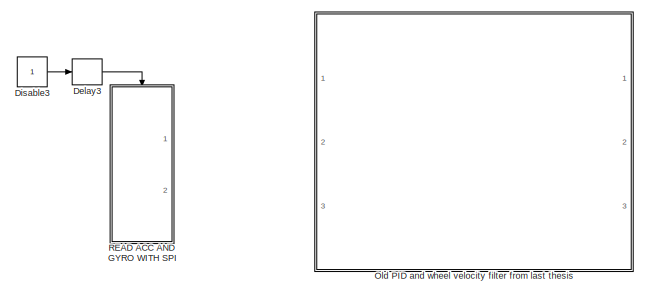
[diagram: root canvas - part 1/2, top right region]
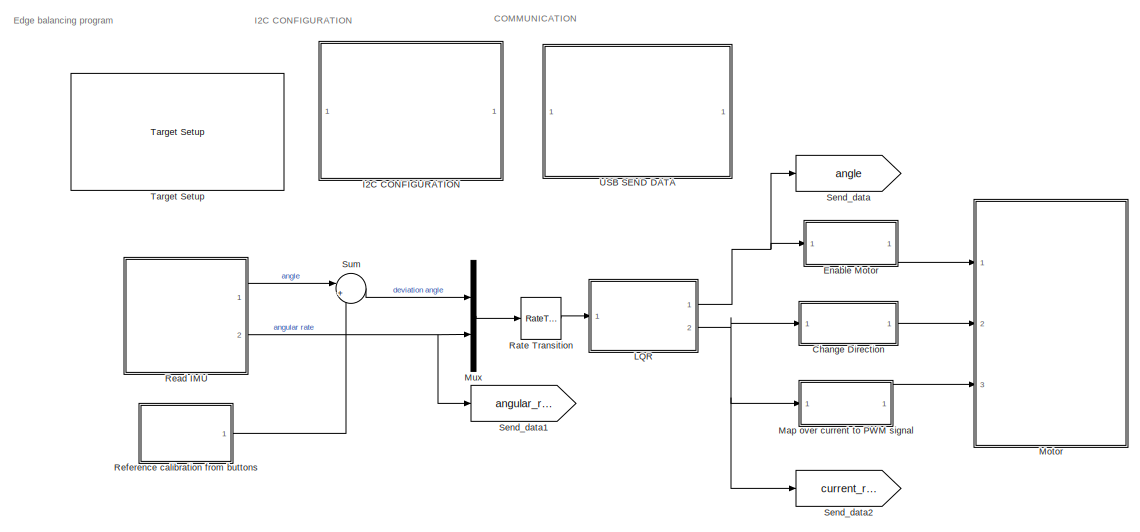
[diagram: root canvas - part 2/2, bottom center region]
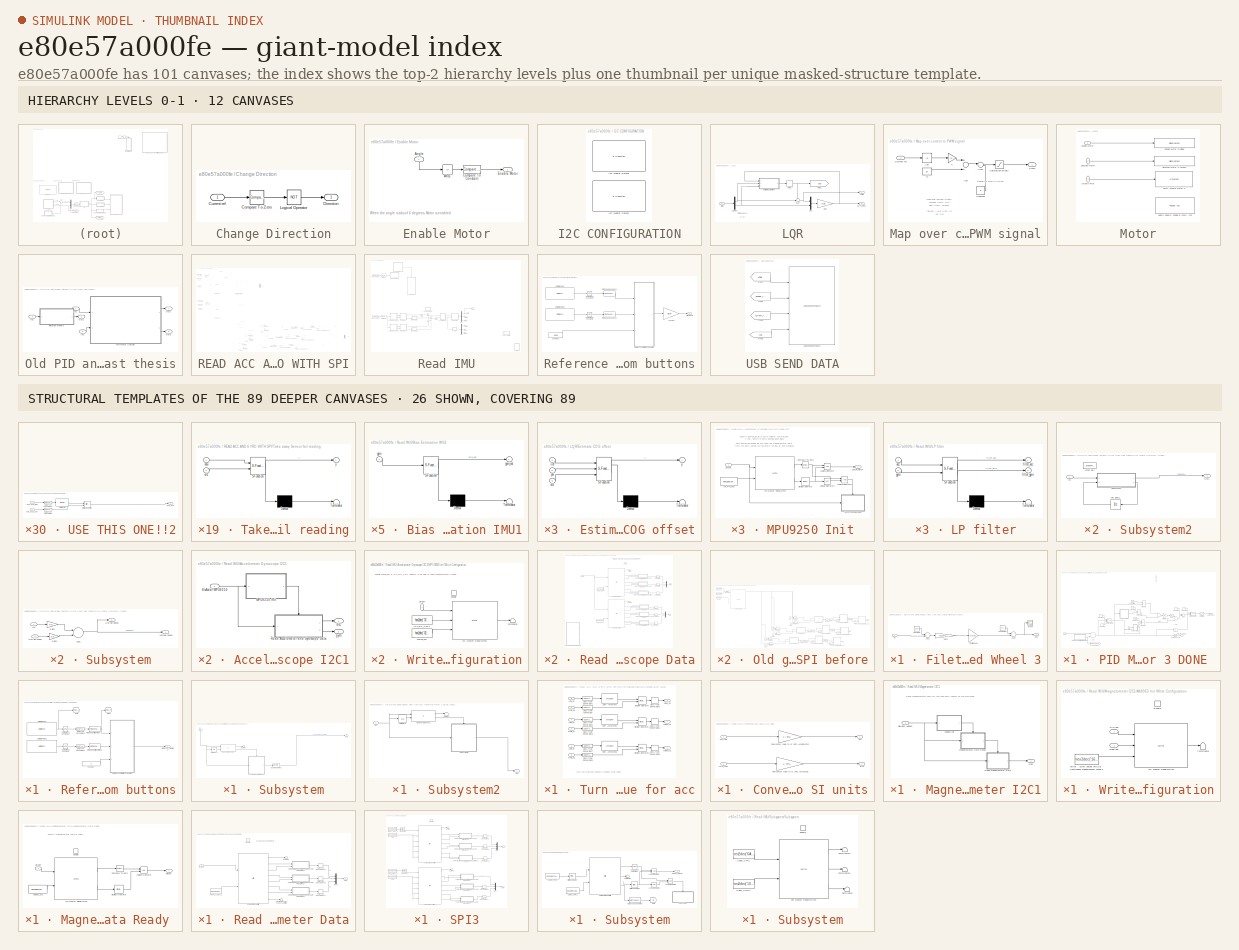
[diagram: thumbnail index - top-2 hierarchy levels (12 canvases) + 26 structural-template representatives of the remaining 89 canvases]
MODEL slx_e80e57a000fe
KIND model
CONFIG AbsTol = auto
CONFIG EnableMultiTasking = off
CONFIG FixedStep = Ts.base
CONFIG InitFcn = cubeparameters\nLQR_2d\n
CONFIG MaxStep = auto
CONFIG MinStep = auto
CONFIG PreLoadFcn = waijung.modelPreload; % Required for working with Waijung Blockset. Do not remove.\n\n
CONFIG RelTol = 1e-3
CONFIG SampleTimeConstraint = Unconstrained
CONFIG Solver = FixedStepDiscrete
CONFIG SolverName = FixedStepDiscrete
CONFIG StartTime = 0.0
CONFIG StopTime = inf
BLOCK [SubSystem] Change Direction
  Ports = [1, 1]
  RequestExecContextInheritance = off
  Variant = off
BLOCK [Reference] Change Direction/Compare To Zero  REF=simulink/Logic and Bit
Operations/Compare
To Zero
  Ports = [1, 1]
  SourceBlock = simulink/Logic and Bit\nOperations/Compare\nTo Zero
  SourceType = Compare To Zero
BLOCK [Inport] Change Direction/Current ref
  IconDisplay = Port number
BLOCK [Outport] Change Direction/Direction
  IconDisplay = Port number
BLOCK [Logic] Change Direction/Logical Operator
  AllPortsSameDT = off
  Operator = NOT
  OutDataTypeStr = boolean
  Ports = [1, 1]
BLOCK [Delay] Delay3
  Commented = on
  DelayLength = 1
  InitialCondition = 0
  InputPortMap = u0
  Ports = [1, 1]
BLOCK [Constant] Disable3
  Commented = on
BLOCK [SubSystem] Enable Motor
  Ports = [1, 1]
  RequestExecContextInheritance = off
  SystemSampleTime = Ts.controller
  Variant = off
BLOCK [Abs] Enable Motor/Abs1
  SaturateOnIntegerOverflow = off
BLOCK [Inport] Enable Motor/Angle
  IconDisplay = Port number
BLOCK [Reference] Enable Motor/Compare To Constant  REF=simulink/Logic and Bit
Operations/Compare
To Constant
  Ports = [1, 1]
  SourceBlock = simulink/Logic and Bit\nOperations/Compare\nTo Constant
  SourceType = Compare To Constant
BLOCK [Outport] Enable Motor/Enable Motor
  IconDisplay = Port number
BLOCK [SubSystem] I2C CONFIGURATION
  Ports = []
  RequestExecContextInheritance = off
  Variant = off
BLOCK [S-Function] I2C CONFIGURATION/I2C Master Setup1
  EnableBusSupport = off
  FunctionName = stm32f4_i2c
  Parameters = configuration,module,transfer,clkspeed,timeout,sdapin,sclpin,writecount,readcount,inputtypearray,outputtypearray,confstr,sampletime,sampletimestr,blockid
  Ports = []
  SFcnIsStateOwnerBlock = off
  SFunctionDeploymentMode = off
BLOCK [S-Function] I2C CONFIGURATION/I2C Master Setup2
  EnableBusSupport = off
  FunctionName = stm32f4_i2c
  Parameters = configuration,module,transfer,clkspeed,timeout,sdapin,sclpin,writecount,readcount,inputtypearray,outputtypearray,confstr,sampletime,sampletimestr,blockid
  Ports = []
  SFcnIsStateOwnerBlock = off
  SFunctionDeploymentMode = off
BLOCK [SubSystem] LQR
  MinAlgLoopOccurrences = on
  Ports = [1, 2]
  RequestExecContextInheritance = off
  SystemSampleTime = Ts.controller
  Variant = off
BLOCK [Outport] LQR/Angle
  IconDisplay = Port number
BLOCK [Outport] LQR/Current ref
  IconDisplay = Port number
  Port = 2
BLOCK [Delay] LQR/Delay
  DelayLength = 1
  InputPortMap = u0
  Ports = [1, 1]
BLOCK [Demux] LQR/Demux
  DisplayOption = bar
  Outputs = 2
  Ports = [1, 2]
BLOCK [SubSystem] LQR/Estimate COG offset
  ErrorFcn = Stateflow.Translate.translate
  PermitHierarchicalResolution = ExplicitOnly
  Ports = [3, 1]
  RequestExecContextInheritance = off
  SFBlockType = MATLAB Function
  TreatAsAtomicUnit = on
  Variant = off
BLOCK [Demux] LQR/Estimate COG offset/ Demux 
  Outputs = 1
  Ports = [1, 1]
BLOCK [S-Function] LQR/Estimate COG offset/ SFunction 
  EnableBusSupport = on
  FunctionName = sf_sfun
  Parameters = Ts
  PortCounts = [3 2]
  Ports = [3, 2]
  SFcnIsStateOwnerBlock = off
  SFunctionDeploymentMode = off
  Tag = Stateflow S-Function CubeX_LQR_2D 11
BLOCK [Terminator] LQR/Estimate COG offset/ Terminator 
BLOCK [Inport] LQR/Estimate COG offset/iref
  IconDisplay = Port number
BLOCK [Inport] LQR/Estimate COG offset/phi
  IconDisplay = Port number
  Port = 2
BLOCK [Inport] LQR/Estimate COG offset/wx
  IconDisplay = Port number
  Port = 3
BLOCK [Outport] LQR/Estimate COG offset/y
  IconDisplay = Port number
BLOCK [Gain] LQR/Gain
  Gain = -K_lqr
  Multiplication = Matrix(K*u) (u vector)
  OutDataTypeStr = Inherit: Inherit via internal rule
  ParamDataTypeStr = Inherit: Inherit via internal rule
  SaturateOnIntegerOverflow = off
BLOCK [Goto] LQR/Goto1
  GotoTag = cog
  TagVisibility = global
BLOCK [Mux] LQR/Mux
  DisplayOption = bar
  Inputs = 2
  Ports = [2, 1]
BLOCK [Inport] LQR/State
  IconDisplay = Port number
BLOCK [Sum] LQR/Sum
  IconShape = round
  InputSameDT = off
  Inputs = ++|
  OutDataTypeStr = Inherit: Inherit via internal rule
  Ports = [2, 1]
  SaturateOnIntegerOverflow = off
BLOCK [SubSystem] Map over current to PWM signal
  Ports = [1, 1]
  RequestExecContextInheritance = off
  Variant = off
BLOCK [Abs] Map over current to PWM signal/Abs
  SaturateOnIntegerOverflow = off
BLOCK [Sum] Map over current to PWM signal/Add
  InputSameDT = off
  OutDataTypeStr = Inherit: Inherit via internal rule
  Ports = [2, 1]
  SaturateOnIntegerOverflow = off
BLOCK [Constant] Map over current to PWM signal/Constant
  OutDataTypeStr = single
  SampleTime = Ts.controller
  Value = 0
BLOCK [Inport] Map over current to PWM signal/Current ref
  IconDisplay = Port number
BLOCK [Outport] Map over current to PWM signal/PWM
  IconDisplay = Port number
BLOCK [Saturate] Map over current to PWM signal/Saturation on duty
  InputPortMap = u0
  LowerLimit = 10
  OutDataTypeStr = single
  Ports = [1, 1]
  UpperLimit = 90
BLOCK [Sum] Map over current to PWM signal/Sum
  IconShape = round
  InputSameDT = off
  Inputs = |++
  OutDataTypeStr = Inherit: Inherit via internal rule
  Ports = [2, 1]
  SaturateOnIntegerOverflow = off
BLOCK [Gain] Map over current to PWM signal/k
  Gain = 20
  OutDataTypeStr = Inherit: Inherit via internal rule
  ParamDataTypeStr = Inherit: Inherit via internal rule
  SaturateOnIntegerOverflow = off
BLOCK [Constant] Map over current to PWM signal/m
  OutDataTypeStr = single
  SampleTime = Ts.controller
  Value = 10
BLOCK [SubSystem] Motor
  Ports = [3]
  RequestExecContextInheritance = off
  Variant = off
BLOCK [Inport] Motor/Ampere PWM
  IconDisplay = Port number
  Port = 3
BLOCK [Inport] Motor/Direction Motor 
  IconDisplay = Port number
  Port = 2
BLOCK [Reference] Motor/Direction Motor 3 (green)  REF=stm32f4_io_lib/Digital Output
  Ports = [1]
  SourceBlock = stm32f4_io_lib/Digital Output
  SourceType = stm32f4_digital_output
BLOCK [Inport] Motor/Enable Motor
  IconDisplay = Port number
BLOCK [Reference] Motor/Enable Motor 3(yellow)  REF=stm32f4_io_lib/Digital Output
  Ports = [1]
  SourceBlock = stm32f4_io_lib/Digital Output
  SourceType = stm32f4_digital_output
BLOCK [S-Function] Motor/PWM Ampere motor 3
  EnableBusSupport = off
  FunctionName = stm32f4_basicpwm_fixed
  Parameters = timer,pwmperiod,uc3m_pwmperiod,ch1pin,ch2pin,ch3pin,ch4pin,sampletime,sampletimestr,blockid,apb,portstr,pinstr,pinmat,timarr,timprescale,chmat,polaritystr
  Ports = [1]
  SFcnIsStateOwnerBlock = off
  SFunctionDeploymentMode = off
BLOCK [Reference] Motor/Velocty wheel 3, analog in (Grey), PC1  REF=stm32f4_adc_lib/Regular ADC
  Commented = on
  Ports = [0, 1]
  SourceBlock = stm32f4_adc_lib/Regular ADC
  SourceType = stm32f4_regular_adc
BLOCK [Mux] Mux
  DisplayOption = bar
  Inputs = 2
  Ports = [2, 1]
BLOCK [SubSystem] Old PID and wheel velocity filter from last thesis
  Commented = on
  Ports = [3, 3]
  RequestExecContextInheritance = off
  Variant = off
BLOCK [SubSystem] Old PID and wheel velocity filter from last thesis/Filetered Wheel 3
  Commented = on
  Ports = [1, 1]
  RequestExecContextInheritance = off
  Variant = off
BLOCK [Sum] Old PID and wheel velocity filter from last thesis/Filetered Wheel 3/Add3
  InputSameDT = off
  Inputs = -+
  OutDataTypeStr = Inherit: Inherit via internal rule
  Ports = [2, 1]
  SaturateOnIntegerOverflow = off
BLOCK [Sum] Old PID and wheel velocity filter from last thesis/Filetered Wheel 3/Add9
  InputSameDT = off
  Inputs = -+
  OutDataTypeStr = Inherit: Inherit via internal rule
  Ports = [2, 1]
  SaturateOnIntegerOverflow = off
BLOCK [Constant] Old PID and wheel velocity filter from last thesis/Filetered Wheel 3/Constant1
  SampleTime = -1
  Value = 2094
BLOCK [Constant] Old PID and wheel velocity filter from last thesis/Filetered Wheel 3/Constant15
  SampleTime = -1
  Value = 69
BLOCK [Gain] Old PID and wheel velocity filter from last thesis/Filetered Wheel 3/Gain2
  Gain = (6110*2)/4096
  OutDataTypeStr = Inherit: Inherit via internal rule
  ParamDataTypeStr = Inherit: Inherit via internal rule
  SaturateOnIntegerOverflow = off
BLOCK [Inport] Old PID and wheel velocity filter from last thesis/Filetered Wheel 3/In1
  IconDisplay = Port number
BLOCK [Outport] Old PID and wheel velocity filter from last thesis/Filetered Wheel 3/Out1
  IconDisplay = Port number
BLOCK [Gain] Old PID and wheel velocity filter from last thesis/Filetered Wheel 3/RPM to RAD3
  Gain = 1/9.55
  OutDataTypeStr = Inherit: Inherit via internal rule
  ParamDataTypeStr = Inherit: Inherit via internal rule
  SaturateOnIntegerOverflow = off
BLOCK [Scope] Old PID and wheel velocity filter from last thesis/Filetered Wheel 3/Scope
  NumInputPorts = 1
  Ports = [1]
  ScopeSpecificationString = Simulink.scopes.TimeScopeBlockCfg('CurrentConfiguration', extmgr.ConfigurationSet(extmgr.Configuration('Core','General UI',true),extmgr.Configuration('Core','Source UI',true),extmgr.Configuration('Sources','WiredSimulink',true,'DataLoggingVariableName','ScopeData5'),extmgr.Configuration('Visuals','Time Domain',true,'SerializedDisplays',{struct('MinYLimReal','-340.12219','MaxYLimReal','-190.56177',...<+1451ch>
BLOCK [Inport] Old PID and wheel velocity filter from last thesis/In1
  IconDisplay = Port number
BLOCK [Inport] Old PID and wheel velocity filter from last thesis/In2
  IconDisplay = Port number
  Port = 2
BLOCK [Inport] Old PID and wheel velocity filter from last thesis/In3
  IconDisplay = Port number
  Port = 3
BLOCK [Outport] Old PID and wheel velocity filter from last thesis/Out1
  IconDisplay = Port number
BLOCK [Outport] Old PID and wheel velocity filter from last thesis/Out2
  IconDisplay = Port number
  Port = 2
BLOCK [Outport] Old PID and wheel velocity filter from last thesis/Out3
  IconDisplay = Port number
  Port = 3
BLOCK [SubSystem] Old PID and wheel velocity filter from last thesis/PID Motor 3 DONE 
  Commented = on
  Ports = [2, 2]
  RequestExecContextInheritance = off
  Variant = off
BLOCK [Abs] Old PID and wheel velocity filter from last thesis/PID Motor 3 DONE /Abs1
  SaturateOnIntegerOverflow = off
BLOCK [Abs] Old PID and wheel velocity filter from last thesis/PID Motor 3 DONE /Abs2
  SaturateOnIntegerOverflow = off
BLOCK [Sum] Old PID and wheel velocity filter from last thesis/PID Motor 3 DONE /Add1
  InputSameDT = off
  OutDataTypeStr = Inherit: Inherit via internal rule
  Ports = [2, 1]
  SaturateOnIntegerOverflow = off
BLOCK [Sum] Old PID and wheel velocity filter from last thesis/PID Motor 3 DONE /Add2
  InputSameDT = off
  OutDataTypeStr = Inherit: Inherit via internal rule
  Ports = [2, 1]
  SaturateOnIntegerOverflow = off
BLOCK [Sum] Old PID and wheel velocity filter from last thesis/PID Motor 3 DONE /Add5
  InputSameDT = off
  OutDataTypeStr = Inherit: Inherit via internal rule
  Ports = [2, 1]
  SaturateOnIntegerOverflow = off
BLOCK [Sum] Old PID and wheel velocity filter from last thesis/PID Motor 3 DONE /Add6
  InputSameDT = off
  OutDataTypeStr = Inherit: Inherit via internal rule
  Ports = [2, 1]
  SaturateOnIntegerOverflow = off
BLOCK [Inport] Old PID and wheel velocity filter from last thesis/PID Motor 3 DONE /Angle
  IconDisplay = Port number
  Port = 2
BLOCK [Reference] Old PID and wheel velocity filter from last thesis/PID Motor 3 DONE /Compare To Zero  REF=simulink/Logic and Bit
Operations/Compare
To Zero
  Ports = [1, 1]
  SourceBlock = simulink/Logic and Bit\nOperations/Compare\nTo Zero
  SourceType = Compare To Zero
BLOCK [Constant] Old PID and wheel velocity filter from last thesis/PID Motor 3 DONE /Constant1
  OutDataTypeStr = single
  SampleTime = -1
  Value = 0
BLOCK [Constant] Old PID and wheel velocity filter from last thesis/PID Motor 3 DONE /Constant11
  OutDataTypeStr = single
  SampleTime = -1
  Value = 0.08
BLOCK [Constant] Old PID and wheel velocity filter from last thesis/PID Motor 3 DONE /Constant3
  OutDataTypeStr = single
  SampleTime = -1
  Value = -1
BLOCK [Constant] Old PID and wheel velocity filter from last thesis/PID Motor 3 DONE /Constant4
  OutDataTypeStr = single
  SampleTime = -1
BLOCK [Constant] Old PID and wheel velocity filter from last thesis/PID Motor 3 DONE /Constant7
  OutDataTypeStr = single
  SampleTime = -1
  Value = 5
BLOCK [Constant] Old PID and wheel velocity filter from last thesis/PID Motor 3 DONE /Constant8
  OutDataTypeStr = single
  SampleTime = -1
  Value = 60
BLOCK [Constant] Old PID and wheel velocity filter from last thesis/PID Motor 3 DONE /Constant9
  SampleTime = -1
  Value = 6
BLOCK [Switch] Old PID and wheel velocity filter from last thesis/PID Motor 3 DONE /Direction Motor 1
  Criteria = u2 > Threshold
  InputSameDT = off
  SaturateOnIntegerOverflow = off
  Threshold = 6
BLOCK [Switch] Old PID and wheel velocity filter from last thesis/PID Motor 3 DONE /Direction Motor 3
  Criteria = u2 > Threshold
  InputSameDT = off
  SaturateOnIntegerOverflow = off
BLOCK [Outport] Old PID and wheel velocity filter from last thesis/PID Motor 3 DONE /Direction_Motor_3 
  IconDisplay = Port number
  Port = 2
BLOCK [Goto] Old PID and wheel velocity filter from last thesis/PID Motor 3 DONE /Goto
  GotoTag = usb_send_ref_cal
  TagVisibility = global
BLOCK [Outport] Old PID and wheel velocity filter from last thesis/PID Motor 3 DONE /Motor_3_Out
  IconDisplay = Port number
BLOCK [Product] Old PID and wheel velocity filter from last thesis/PID Motor 3 DONE /Product2
  InputSameDT = off
  OutDataTypeStr = Inherit: Inherit via internal rule
  Ports = [2, 1]
  RndMeth = Floor
  SaturateOnIntegerOverflow = off
BLOCK [Product] Old PID and wheel velocity filter from last thesis/PID Motor 3 DONE /Product3
  InputSameDT = off
  OutDataTypeStr = Inherit: Inherit via internal rule
  Ports = [2, 1]
  RndMeth = Floor
  SaturateOnIntegerOverflow = off
BLOCK [Product] Old PID and wheel velocity filter from last thesis/PID Motor 3 DONE /Product4
  InputSameDT = off
  Inputs = 3
  OutDataTypeStr = Inherit: Inherit via internal rule
  Ports = [3, 1]
  RndMeth = Floor
  SaturateOnIntegerOverflow = off
BLOCK [Gain] Old PID and wheel velocity filter from last thesis/PID Motor 3 DONE /RPM to RAD4
  OutDataTypeStr = Inherit: Inherit via internal rule
  ParamDataTypeStr = Inherit: Inherit via internal rule
  SaturateOnIntegerOverflow = off
BLOCK [SubSystem] Old PID and wheel velocity filter from last thesis/PID Motor 3 DONE /Reference calibration from buttons
  Ports = [0, 1]
  RequestExecContextInheritance = off
  Variant = off
BLOCK [Reference] Old PID and wheel velocity filter from last thesis/PID Motor 3 DONE /Reference calibration from buttons/Calibration Minus  REF=stm32f4_io_lib/Digital Input
  Ports = [0, 1]
  SourceBlock = stm32f4_io_lib/Digital Input
  SourceType = stm32f4_digital_input
BLOCK [Reference] Old PID and wheel velocity filter from last thesis/PID Motor 3 DONE /Reference calibration from buttons/Calibration Plus  REF=stm32f4_io_lib/Digital Input
  Ports = [0, 1]
  SourceBlock = stm32f4_io_lib/Digital Input
  SourceType = stm32f4_digital_input
BLOCK [Reference] Old PID and wheel velocity filter from last thesis/PID Motor 3 DONE /Reference calibration from buttons/Compare To Constant10  REF=simulink/Logic and Bit
Operations/Compare
To Constant
  Ports = [1, 1]
  SourceBlock = simulink/Logic and Bit\nOperations/Compare\nTo Constant
  SourceType = Compare To Constant
BLOCK [Reference] Old PID and wheel velocity filter from last thesis/PID Motor 3 DONE /Reference calibration from buttons/Compare To Constant2  REF=simulink/Logic and Bit
Operations/Compare
To Constant
  Ports = [1, 1]
  SourceBlock = simulink/Logic and Bit\nOperations/Compare\nTo Constant
  SourceType = Compare To Constant
BLOCK [Constant] Old PID and wheel velocity filter from last thesis/PID Motor 3 DONE /Reference calibration from buttons/Constant
  Value = 2
BLOCK [DataTypeConversion] Old PID and wheel velocity filter from last thesis/PID Motor 3 DONE /Reference calibration from buttons/Data Type Conversion1
  OutDataTypeStr = single
  RndMeth = Floor
  SaturateOnIntegerOverflow = off
BLOCK [DataTypeConversion] Old PID and wheel velocity filter from last thesis/PID Motor 3 DONE /Reference calibration from buttons/Data Type Conversion5
  OutDataTypeStr = single
  RndMeth = Floor
  SaturateOnIntegerOverflow = off
BLOCK [Goto] Old PID and wheel velocity filter from last thesis/PID Motor 3 DONE /Reference calibration from buttons/Goto
  GotoTag = plus_1
  TagVisibility = global
BLOCK [Goto] Old PID and wheel velocity filter from last thesis/PID Motor 3 DONE /Reference calibration from buttons/Goto1
  GotoTag = plus_2
  TagVisibility = global
BLOCK [SubSystem] Old PID and wheel velocity filter from last thesis/PID Motor 3 DONE /Reference calibration from buttons/Reference calibration calculation
  ErrorFcn = Stateflow.Translate.translate
  PermitHierarchicalResolution = ExplicitOnly
  Ports = [3, 1]
  RequestExecContextInheritance = off
  SFBlockType = MATLAB Function
  TreatAsAtomicUnit = on
  Variant = off
BLOCK [Demux] Old PID and wheel velocity filter from last thesis/PID Motor 3 DONE /Reference calibration from buttons/Reference calibration calculation/ Demux 
  Outputs = 1
  Ports = [1, 1]
BLOCK [S-Function] Old PID and wheel velocity filter from last thesis/PID Motor 3 DONE /Reference calibration from buttons/Reference calibration calculation/ SFunction 
  EnableBusSupport = on
  FunctionName = sf_sfun
  PortCounts = [3 2]
  Ports = [3, 2]
  SFcnIsStateOwnerBlock = off
  SFunctionDeploymentMode = off
  Tag = Stateflow S-Function CubeX_LQR_2D 2
BLOCK [Terminator] Old PID and wheel velocity filter from last thesis/PID Motor 3 DONE /Reference calibration from buttons/Reference calibration calculation/ Terminator 
BLOCK [Outport] Old PID and wheel velocity filter from last thesis/PID Motor 3 DONE /Reference calibration from buttons/Reference calibration calculation/correction_out
  IconDisplay = Port number
BLOCK [Inport] Old PID and wheel velocity filter from last thesis/PID Motor 3 DONE /Reference calibration from buttons/Reference calibration calculation/initial_calibration
  IconDisplay = Port number
  Port = 3
BLOCK [Inport] Old PID and wheel velocity filter from last thesis/PID Motor 3 DONE /Reference calibration from buttons/Reference calibration calculation/ref_minus
  IconDisplay = Port number
  Port = 2
BLOCK [Inport] Old PID and wheel velocity filter from last thesis/PID Motor 3 DONE /Reference calibration from buttons/Reference calibration calculation/ref_plus
  IconDisplay = Port number
BLOCK [Reference] Old PID and wheel velocity filter from last thesis/PID Motor 3 DONE /Reference calibration from buttons/Rising edge trigger minus  REF=cube_lib/Rising edge trigger  (lib defined in slx_d4db5811431f)
  Ports = [1, 1]
  SourceBlock = cube_lib/Rising edge trigger
  SourceType = SubSystem
BLOCK [Reference] Old PID and wheel velocity filter from last thesis/PID Motor 3 DONE /Reference calibration from buttons/Rising edge trigger plus  REF=cube_lib/Rising edge trigger  (lib defined in slx_d4db5811431f)
  Ports = [1, 1]
  SourceBlock = cube_lib/Rising edge trigger
  SourceType = SubSystem
BLOCK [Outport] Old PID and wheel velocity filter from last thesis/PID Motor 3 DONE /Reference calibration from buttons/reference_calibration
  IconDisplay = Port number
BLOCK [Saturate] Old PID and wheel velocity filter from last thesis/PID Motor 3 DONE /Saturation1
  InputPortMap = u0
  LowerLimit = 10
  Ports = [1, 1]
  UpperLimit = 90
BLOCK [SubSystem] Old PID and wheel velocity filter from last thesis/PID Motor 3 DONE /Subsystem
  Ports = [1, 1]
  RequestExecContextInheritance = off
  Variant = off
BLOCK [Terminator] Old PID and wheel velocity filter from last thesis/PID Motor 3 DONE /Subsystem/DUMMY7
BLOCK [Reference] Old PID and wheel velocity filter from last thesis/PID Motor 3 DONE /Subsystem/Discrete Derivative  REF=simulink/Discrete/Discrete Derivative
  Ports = [1, 1]
  SourceBlock = simulink/Discrete/Discrete Derivative
  SourceType = Discrete Derivative
BLOCK [If] Old PID and wheel velocity filter from last thesis/PID Motor 3 DONE /Subsystem/Do average zero2
  IfExpression = u1 == u2
  NumInputs = 2
  Ports = [2, 2]
BLOCK [Inport] Old PID and wheel velocity filter from last thesis/PID Motor 3 DONE /Subsystem/In1
  IconDisplay = Port number
BLOCK [Outport] Old PID and wheel velocity filter from last thesis/PID Motor 3 DONE /Subsystem/Out1
  IconDisplay = Port number
BLOCK [SubSystem] Old PID and wheel velocity filter from last thesis/PID Motor 3 DONE /Subsystem/Subsystem2
  Ports = [1, 1, 0, 0, 0, 0, 0, 1]
  RequestExecContextInheritance = off
  Variant = off
BLOCK [ActionPort] Old PID and wheel velocity filter from last thesis/PID Motor 3 DONE /Subsystem/Subsystem2/Action Port
  ActionType = else
BLOCK [Inport] Old PID and wheel velocity filter from last thesis/PID Motor 3 DONE /Subsystem/Subsystem2/In1
  IconDisplay = Port number
BLOCK [Outport] Old PID and wheel velocity filter from last thesis/PID Motor 3 DONE /Subsystem/Subsystem2/Out1
  IconDisplay = Port number
BLOCK [SubSystem] Old PID and wheel velocity filter from last thesis/PID Motor 3 DONE /Subsystem/Subsystem2/Subsystem
  Ports = [2, 2]
  RequestExecContextInheritance = off
  Variant = off
BLOCK [Sum] Old PID and wheel velocity filter from last thesis/PID Motor 3 DONE /Subsystem/Subsystem2/Subsystem/Add2
  InputSameDT = off
  OutDataTypeStr = Inherit: Inherit via internal rule
  Ports = [2, 1]
  SaturateOnIntegerOverflow = off
BLOCK [Outport] Old PID and wheel velocity filter from last thesis/PID Motor 3 DONE /Subsystem/Subsystem2/Subsystem/Average Speed
  IconDisplay = Port number
BLOCK [Gain] Old PID and wheel velocity filter from last thesis/PID Motor 3 DONE /Subsystem/Subsystem2/Subsystem/Gain2
  Gain = 0.5
  OutDataTypeStr = Inherit: Inherit via internal rule
  ParamDataTypeStr = Inherit: Inherit via internal rule
  SaturateOnIntegerOverflow = off
BLOCK [Gain] Old PID and wheel velocity filter from last thesis/PID Motor 3 DONE /Subsystem/Subsystem2/Subsystem/Gain3
  Gain = 0.5
  OutDataTypeStr = Inherit: Inherit via internal rule
  ParamDataTypeStr = Inherit: Inherit via internal rule
  SaturateOnIntegerOverflow = off
BLOCK [Inport] Old PID and wheel velocity filter from last thesis/PID Motor 3 DONE /Subsystem/Subsystem2/Subsystem/In1
  IconDisplay = Port number
BLOCK [Outport] Old PID and wheel velocity filter from last thesis/PID Motor 3 DONE /Subsystem/Subsystem2/Subsystem/One old Speed
  IconDisplay = Port number
  Port = 2
BLOCK [Inport] Old PID and wheel velocity filter from last thesis/PID Motor 3 DONE /Subsystem/Subsystem2/Subsystem/One old speed
  IconDisplay = Port number
  Port = 2
BLOCK [UnitDelay] Old PID and wheel velocity filter from last thesis/PID Motor 3 DONE /Subsystem/Subsystem2/Unit Delay1
  InputProcessing = Elements as channels (sample based)
  SampleTime = -1
BLOCK [UnitDelay] Old PID and wheel velocity filter from last thesis/PID Motor 3 DONE /Subsystem/Unit Delay1
  InputProcessing = Elements as channels (sample based)
  SampleTime = -1
BLOCK [SubSystem] Old PID and wheel velocity filter from last thesis/PID Motor 3 DONE /Subsystem2
  Ports = [1, 1]
  RequestExecContextInheritance = off
  Variant = off
BLOCK [Terminator] Old PID and wheel velocity filter from last thesis/PID Motor 3 DONE /Subsystem2/DUMMY7
BLOCK [If] Old PID and wheel velocity filter from last thesis/PID Motor 3 DONE /Subsystem2/Do average zero1
  IfExpression = u1 == u2
  NumInputs = 2
  Ports = [2, 2]
BLOCK [Inport] Old PID and wheel velocity filter from last thesis/PID Motor 3 DONE /Subsystem2/In1
  IconDisplay = Port number
BLOCK [Outport] Old PID and wheel velocity filter from last thesis/PID Motor 3 DONE /Subsystem2/Out2
  IconDisplay = Port number
BLOCK [SubSystem] Old PID and wheel velocity filter from last thesis/PID Motor 3 DONE /Subsystem2/Subsystem1
  Ports = [1, 1, 0, 0, 0, 0, 0, 1]
  RequestExecContextInheritance = off
  Variant = off
BLOCK [ActionPort] Old PID and wheel velocity filter from last thesis/PID Motor 3 DONE /Subsystem2/Subsystem1/Action Port
  ActionType = else
BLOCK [Inport] Old PID and wheel velocity filter from last thesis/PID Motor 3 DONE /Subsystem2/Subsystem1/In1
  IconDisplay = Port number
BLOCK [Outport] Old PID and wheel velocity filter from last thesis/PID Motor 3 DONE /Subsystem2/Subsystem1/Out1
  IconDisplay = Port number
BLOCK [SubSystem] Old PID and wheel velocity filter from last thesis/PID Motor 3 DONE /Subsystem2/Subsystem1/Subsystem
  Ports = [2, 2]
  RequestExecContextInheritance = off
  Variant = off
BLOCK [Sum] Old PID and wheel velocity filter from last thesis/PID Motor 3 DONE /Subsystem2/Subsystem1/Subsystem/Add2
  InputSameDT = off
  OutDataTypeStr = Inherit: Inherit via internal rule
  Ports = [2, 1]
  SaturateOnIntegerOverflow = off
BLOCK [Outport] Old PID and wheel velocity filter from last thesis/PID Motor 3 DONE /Subsystem2/Subsystem1/Subsystem/Average Speed
  IconDisplay = Port number
BLOCK [Gain] Old PID and wheel velocity filter from last thesis/PID Motor 3 DONE /Subsystem2/Subsystem1/Subsystem/Gain2
  Gain = 0.3
  OutDataTypeStr = Inherit: Inherit via internal rule
  ParamDataTypeStr = Inherit: Inherit via internal rule
  SaturateOnIntegerOverflow = off
BLOCK [Gain] Old PID and wheel velocity filter from last thesis/PID Motor 3 DONE /Subsystem2/Subsystem1/Subsystem/Gain3
  Gain = 0.7
  OutDataTypeStr = Inherit: Inherit via internal rule
  ParamDataTypeStr = Inherit: Inherit via internal rule
  SaturateOnIntegerOverflow = off
BLOCK [Inport] Old PID and wheel velocity filter from last thesis/PID Motor 3 DONE /Subsystem2/Subsystem1/Subsystem/In1
  IconDisplay = Port number
BLOCK [Outport] Old PID and wheel velocity filter from last thesis/PID Motor 3 DONE /Subsystem2/Subsystem1/Subsystem/One old Speed
  IconDisplay = Port number
  Port = 2
BLOCK [Inport] Old PID and wheel velocity filter from last thesis/PID Motor 3 DONE /Subsystem2/Subsystem1/Subsystem/One old speed
  IconDisplay = Port number
  Port = 2
BLOCK [UnitDelay] Old PID and wheel velocity filter from last thesis/PID Motor 3 DONE /Subsystem2/Subsystem1/Unit Delay1
  InputProcessing = Elements as channels (sample based)
  SampleTime = -1
BLOCK [UnitDelay] Old PID and wheel velocity filter from last thesis/PID Motor 3 DONE /Subsystem2/Unit Delay3
  InputProcessing = Elements as channels (sample based)
  SampleTime = -1
BLOCK [Inport] Old PID and wheel velocity filter from last thesis/PID Motor 3 DONE /Welocity Wheel 
  IconDisplay = Port number
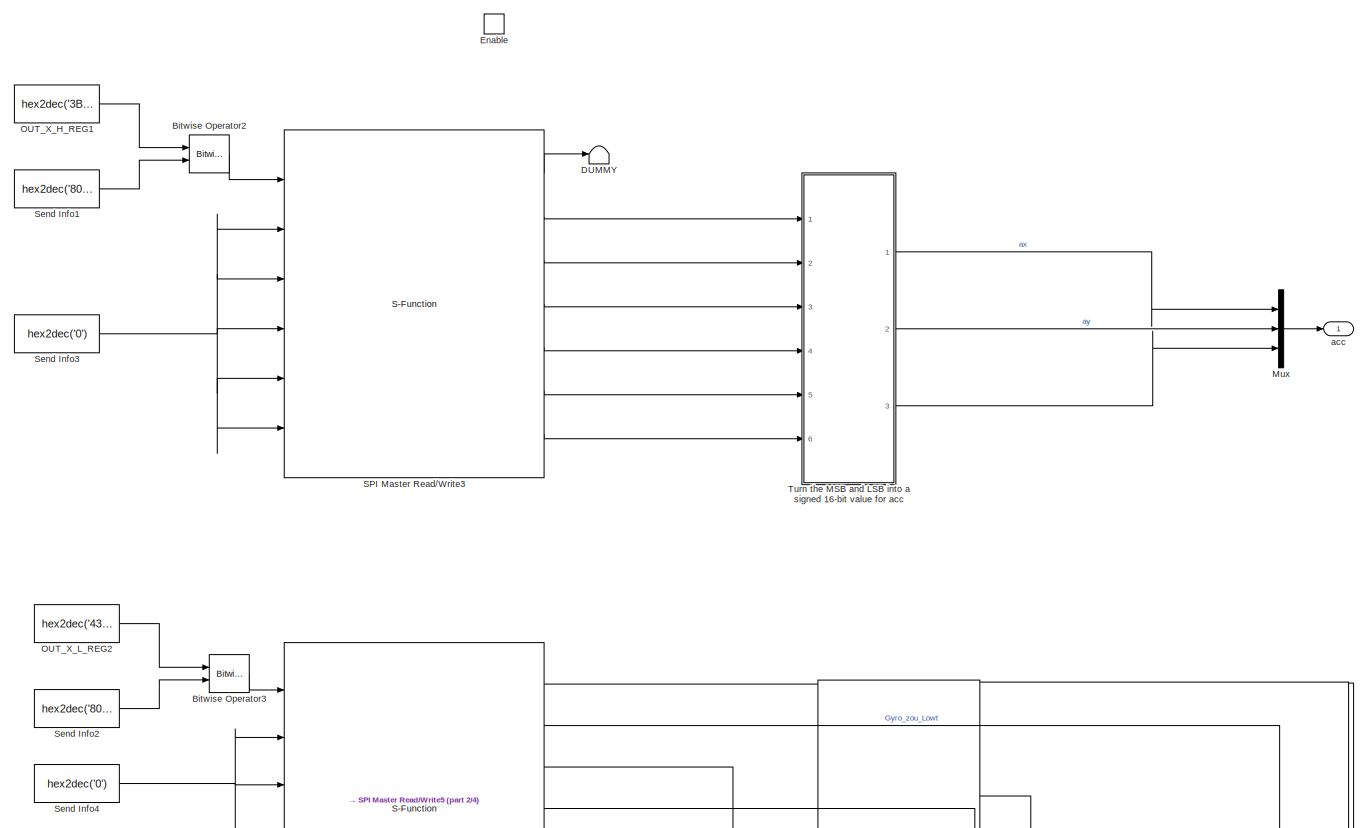
[diagram: READ ACC AND GYRO WITH SPI - part 1/4, top left region]
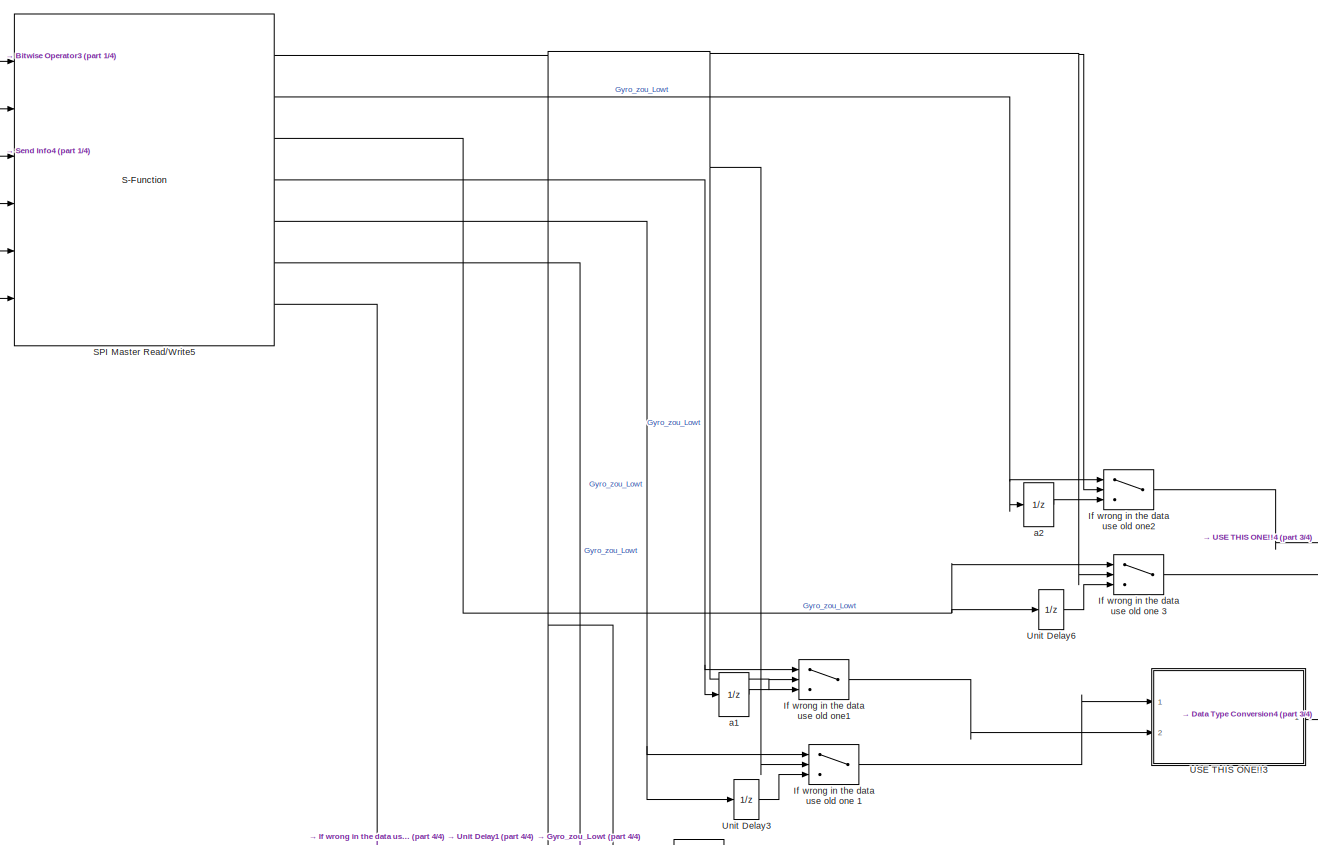
[diagram: READ ACC AND GYRO WITH SPI - part 2/4, middle left region]
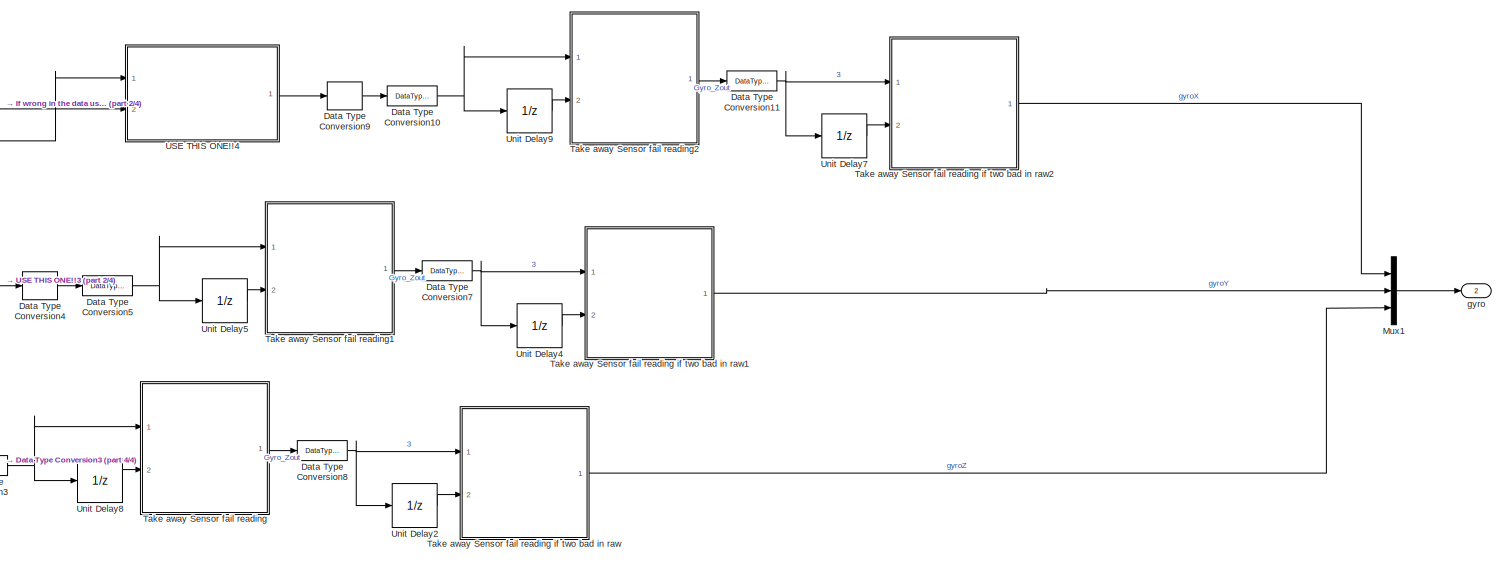
[diagram: READ ACC AND GYRO WITH SPI - part 3/4, bottom right region]
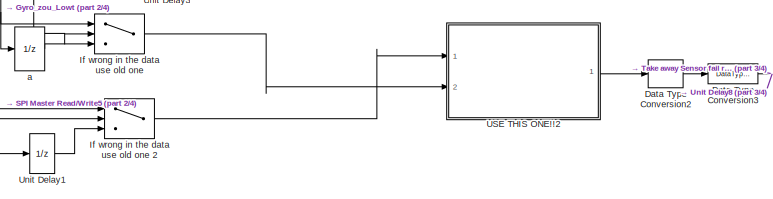
[diagram: READ ACC AND GYRO WITH SPI - part 4/4, bottom center region]
BLOCK [SubSystem] READ ACC AND GYRO WITH SPI
  Commented = on
  Ports = [0, 2, 1]
  RequestExecContextInheritance = off
  Variant = off
BLOCK [UnitDelay] READ ACC AND GYRO WITH SPI/ a
  InputProcessing = Elements as channels (sample based)
  SampleTime = -1
BLOCK [UnitDelay] READ ACC AND GYRO WITH SPI/ a1
  InputProcessing = Elements as channels (sample based)
  SampleTime = -1
BLOCK [UnitDelay] READ ACC AND GYRO WITH SPI/ a2
  InputProcessing = Elements as channels (sample based)
  SampleTime = -1
BLOCK [Reference] READ ACC AND GYRO WITH SPI/Bitwise Operator2  REF=simulink/Logic and Bit
Operations/Bitwise
Operator
  Ports = [2, 1]
  SourceBlock = simulink/Logic and Bit\nOperations/Bitwise\nOperator
  SourceType = Bitwise Operator
BLOCK [Reference] READ ACC AND GYRO WITH SPI/Bitwise Operator3  REF=simulink/Logic and Bit
Operations/Bitwise
Operator
  Ports = [2, 1]
  SourceBlock = simulink/Logic and Bit\nOperations/Bitwise\nOperator
  SourceType = Bitwise Operator
BLOCK [Terminator] READ ACC AND GYRO WITH SPI/DUMMY
BLOCK [DataTypeConversion] READ ACC AND GYRO WITH SPI/Data Type Conversion10
  RndMeth = Floor
  SaturateOnIntegerOverflow = off
BLOCK [DataTypeConversion] READ ACC AND GYRO WITH SPI/Data Type Conversion11
  RndMeth = Floor
  SaturateOnIntegerOverflow = off
BLOCK [DataTypeConversion] READ ACC AND GYRO WITH SPI/Data Type Conversion2
  OutDataTypeStr = int16
  RndMeth = Floor
  SaturateOnIntegerOverflow = off
BLOCK [DataTypeConversion] READ ACC AND GYRO WITH SPI/Data Type Conversion3
  RndMeth = Floor
  SaturateOnIntegerOverflow = off
BLOCK [DataTypeConversion] READ ACC AND GYRO WITH SPI/Data Type Conversion4
  OutDataTypeStr = int16
  RndMeth = Floor
  SaturateOnIntegerOverflow = off
BLOCK [DataTypeConversion] READ ACC AND GYRO WITH SPI/Data Type Conversion5
  RndMeth = Floor
  SaturateOnIntegerOverflow = off
BLOCK [DataTypeConversion] READ ACC AND GYRO WITH SPI/Data Type Conversion7
  RndMeth = Floor
  SaturateOnIntegerOverflow = off
BLOCK [DataTypeConversion] READ ACC AND GYRO WITH SPI/Data Type Conversion8
  RndMeth = Floor
  SaturateOnIntegerOverflow = off
BLOCK [DataTypeConversion] READ ACC AND GYRO WITH SPI/Data Type Conversion9
  OutDataTypeStr = int16
  RndMeth = Floor
  SaturateOnIntegerOverflow = off
BLOCK [EnablePort] READ ACC AND GYRO WITH SPI/Enable
  Ports = []
BLOCK [Switch] READ ACC AND GYRO WITH SPI/If wrong in the data use old one
  Criteria = u2 ~= 0
  InputSameDT = off
  SaturateOnIntegerOverflow = off
BLOCK [Switch] READ ACC AND GYRO WITH SPI/If wrong in the data use old one 1
  Criteria = u2 ~= 0
  InputSameDT = off
  SaturateOnIntegerOverflow = off
BLOCK [Switch] READ ACC AND GYRO WITH SPI/If wrong in the data use old one 2
  Criteria = u2 ~= 0
  InputSameDT = off
  SaturateOnIntegerOverflow = off
BLOCK [Switch] READ ACC AND GYRO WITH SPI/If wrong in the data use old one 3
  Criteria = u2 ~= 0
  InputSameDT = off
  SaturateOnIntegerOverflow = off
BLOCK [Switch] READ ACC AND GYRO WITH SPI/If wrong in the data use old one1
  Criteria = u2 ~= 0
  InputSameDT = off
  SaturateOnIntegerOverflow = off
BLOCK [Switch] READ ACC AND GYRO WITH SPI/If wrong in the data use old one2
  Criteria = u2 ~= 0
  InputSameDT = off
  SaturateOnIntegerOverflow = off
BLOCK [Mux] READ ACC AND GYRO WITH SPI/Mux
  DisplayOption = bar
  Inputs = 3
  Ports = [3, 1]
BLOCK [Mux] READ ACC AND GYRO WITH SPI/Mux1
  DisplayOption = bar
  Inputs = 3
  Ports = [3, 1]
BLOCK [Constant] READ ACC AND GYRO WITH SPI/OUT_X_H_REG1
  OutDataTypeStr = uint8
  Value = hex2dec('3B')
BLOCK [Constant] READ ACC AND GYRO WITH SPI/OUT_X_L_REG2
  OutDataTypeStr = uint8
  Value = hex2dec('43')
BLOCK [S-Function] READ ACC AND GYRO WITH SPI/SPI Master Read//Write3
  EnableBusSupport = off
  FunctionName = stm32f4_spimaster
  Parameters = mode,configuration,module,datacount,inputtypearray,outputtypearray,confstr,sampletime,sampletimestr,blockid
  Ports = [6, 7]
  SFcnIsStateOwnerBlock = off
  SFunctionDeploymentMode = off
BLOCK [S-Function] READ ACC AND GYRO WITH SPI/SPI Master Read//Write5
  EnableBusSupport = off
  FunctionName = stm32f4_spimaster
  Parameters = mode,configuration,module,datacount,inputtypearray,outputtypearray,confstr,sampletime,sampletimestr,blockid
  Ports = [6, 7]
  SFcnIsStateOwnerBlock = off
  SFunctionDeploymentMode = off
BLOCK [Constant] READ ACC AND GYRO WITH SPI/Send Info1
  OutDataTypeStr = uint8
  Value = hex2dec('80')
BLOCK [Constant] READ ACC AND GYRO WITH SPI/Send Info2
  OutDataTypeStr = uint8
  Value = hex2dec('80')
BLOCK [Constant] READ ACC AND GYRO WITH SPI/Send Info3
  OutDataTypeStr = uint8
  Value = hex2dec('0')
BLOCK [Constant] READ ACC AND GYRO WITH SPI/Send Info4
  OutDataTypeStr = uint8
  Value = hex2dec('0')
BLOCK [SubSystem] READ ACC AND GYRO WITH SPI/Take away Sensor fail reading
  ErrorFcn = Stateflow.Translate.translate
  PermitHierarchicalResolution = ExplicitOnly
  Ports = [2, 1]
  RequestExecContextInheritance = off
  SFBlockType = MATLAB Function
  TreatAsAtomicUnit = on
  Variant = off
BLOCK [SubSystem] READ ACC AND GYRO WITH SPI/Take away Sensor fail reading if two bad in raw
  ErrorFcn = Stateflow.Translate.translate
  PermitHierarchicalResolution = ExplicitOnly
  Ports = [2, 1]
  RequestExecContextInheritance = off
  SFBlockType = MATLAB Function
  TreatAsAtomicUnit = on
  Variant = off
BLOCK [Demux] READ ACC AND GYRO WITH SPI/Take away Sensor fail reading if two bad in raw/ Demux 
  Outputs = 1
  Ports = [1, 1]
BLOCK [S-Function] READ ACC AND GYRO WITH SPI/Take away Sensor fail reading if two bad in raw/ SFunction 
  EnableBusSupport = on
  FunctionName = sf_sfun
  PortCounts = [2 2]
  Ports = [2, 2]
  SFcnIsStateOwnerBlock = off
  SFunctionDeploymentMode = off
  Tag = Stateflow S-Function CubeX_LQR_2D 17
BLOCK [Terminator] READ ACC AND GYRO WITH SPI/Take away Sensor fail reading if two bad in raw/ Terminator 
BLOCK [Inport] READ ACC AND GYRO WITH SPI/Take away Sensor fail reading if two bad in raw/new
  IconDisplay = Port number
BLOCK [Inport] READ ACC AND GYRO WITH SPI/Take away Sensor fail reading if two bad in raw/old
  IconDisplay = Port number
  Port = 2
BLOCK [Outport] READ ACC AND GYRO WITH SPI/Take away Sensor fail reading if two bad in raw/y
  IconDisplay = Port number
BLOCK [SubSystem] READ ACC AND GYRO WITH SPI/Take away Sensor fail reading if two bad in raw1
  ErrorFcn = Stateflow.Translate.translate
  PermitHierarchicalResolution = ExplicitOnly
  Ports = [2, 1]
  RequestExecContextInheritance = off
  SFBlockType = MATLAB Function
  TreatAsAtomicUnit = on
  Variant = off
BLOCK [Demux] READ ACC AND GYRO WITH SPI/Take away Sensor fail reading if two bad in raw1/ Demux 
  Outputs = 1
  Ports = [1, 1]
BLOCK [S-Function] READ ACC AND GYRO WITH SPI/Take away Sensor fail reading if two bad in raw1/ SFunction 
  EnableBusSupport = on
  FunctionName = sf_sfun
  PortCounts = [2 2]
  Ports = [2, 2]
  SFcnIsStateOwnerBlock = off
  SFunctionDeploymentMode = off
  Tag = Stateflow S-Function CubeX_LQR_2D 22
BLOCK [Terminator] READ ACC AND GYRO WITH SPI/Take away Sensor fail reading if two bad in raw1/ Terminator 
BLOCK [Inport] READ ACC AND GYRO WITH SPI/Take away Sensor fail reading if two bad in raw1/new
  IconDisplay = Port number
BLOCK [Inport] READ ACC AND GYRO WITH SPI/Take away Sensor fail reading if two bad in raw1/old
  IconDisplay = Port number
  Port = 2
BLOCK [Outport] READ ACC AND GYRO WITH SPI/Take away Sensor fail reading if two bad in raw1/y
  IconDisplay = Port number
BLOCK [SubSystem] READ ACC AND GYRO WITH SPI/Take away Sensor fail reading if two bad in raw2
  ErrorFcn = Stateflow.Translate.translate
  PermitHierarchicalResolution = ExplicitOnly
  Ports = [2, 1]
  RequestExecContextInheritance = off
  SFBlockType = MATLAB Function
  TreatAsAtomicUnit = on
  Variant = off
BLOCK [Demux] READ ACC AND GYRO WITH SPI/Take away Sensor fail reading if two bad in raw2/ Demux 
  Outputs = 1
  Ports = [1, 1]
BLOCK [S-Function] READ ACC AND GYRO WITH SPI/Take away Sensor fail reading if two bad in raw2/ SFunction 
  EnableBusSupport = on
  FunctionName = sf_sfun
  PortCounts = [2 2]
  Ports = [2, 2]
  SFcnIsStateOwnerBlock = off
  SFunctionDeploymentMode = off
  Tag = Stateflow S-Function CubeX_LQR_2D 23
BLOCK [Terminator] READ ACC AND GYRO WITH SPI/Take away Sensor fail reading if two bad in raw2/ Terminator 
BLOCK [Inport] READ ACC AND GYRO WITH SPI/Take away Sensor fail reading if two bad in raw2/new
  IconDisplay = Port number
BLOCK [Inport] READ ACC AND GYRO WITH SPI/Take away Sensor fail reading if two bad in raw2/old
  IconDisplay = Port number
  Port = 2
BLOCK [Outport] READ ACC AND GYRO WITH SPI/Take away Sensor fail reading if two bad in raw2/y
  IconDisplay = Port number
BLOCK [Demux] READ ACC AND GYRO WITH SPI/Take away Sensor fail reading/ Demux 
  Outputs = 1
  Ports = [1, 1]
BLOCK [S-Function] READ ACC AND GYRO WITH SPI/Take away Sensor fail reading/ SFunction 
  EnableBusSupport = on
  FunctionName = sf_sfun
  PortCounts = [2 2]
  Ports = [2, 2]
  SFcnIsStateOwnerBlock = off
  SFunctionDeploymentMode = off
  Tag = Stateflow S-Function CubeX_LQR_2D 16
BLOCK [Terminator] READ ACC AND GYRO WITH SPI/Take away Sensor fail reading/ Terminator 
BLOCK [Inport] READ ACC AND GYRO WITH SPI/Take away Sensor fail reading/new
  IconDisplay = Port number
BLOCK [Inport] READ ACC AND GYRO WITH SPI/Take away Sensor fail reading/old
  IconDisplay = Port number
  Port = 2
BLOCK [Outport] READ ACC AND GYRO WITH SPI/Take away Sensor fail reading/y
  IconDisplay = Port number
BLOCK [SubSystem] READ ACC AND GYRO WITH SPI/Take away Sensor fail reading1
  ErrorFcn = Stateflow.Translate.translate
  PermitHierarchicalResolution = ExplicitOnly
  Ports = [2, 1]
  RequestExecContextInheritance = off
  SFBlockType = MATLAB Function
  TreatAsAtomicUnit = on
  Variant = off
BLOCK [Demux] READ ACC AND GYRO WITH SPI/Take away Sensor fail reading1/ Demux 
  Outputs = 1
  Ports = [1, 1]
BLOCK [S-Function] READ ACC AND GYRO WITH SPI/Take away Sensor fail reading1/ SFunction 
  EnableBusSupport = on
  FunctionName = sf_sfun
  PortCounts = [2 2]
  Ports = [2, 2]
  SFcnIsStateOwnerBlock = off
  SFunctionDeploymentMode = off
  Tag = Stateflow S-Function CubeX_LQR_2D 24
BLOCK [Terminator] READ ACC AND GYRO WITH SPI/Take away Sensor fail reading1/ Terminator 
BLOCK [Inport] READ ACC AND GYRO WITH SPI/Take away Sensor fail reading1/new
  IconDisplay = Port number
BLOCK [Inport] READ ACC AND GYRO WITH SPI/Take away Sensor fail reading1/old
  IconDisplay = Port number
  Port = 2
BLOCK [Outport] READ ACC AND GYRO WITH SPI/Take away Sensor fail reading1/y
  IconDisplay = Port number
BLOCK [SubSystem] READ ACC AND GYRO WITH SPI/Take away Sensor fail reading2
  ErrorFcn = Stateflow.Translate.translate
  PermitHierarchicalResolution = ExplicitOnly
  Ports = [2, 1]
  RequestExecContextInheritance = off
  SFBlockType = MATLAB Function
  TreatAsAtomicUnit = on
  Variant = off
BLOCK [Demux] READ ACC AND GYRO WITH SPI/Take away Sensor fail reading2/ Demux 
  Outputs = 1
  Ports = [1, 1]
BLOCK [S-Function] READ ACC AND GYRO WITH SPI/Take away Sensor fail reading2/ SFunction 
  EnableBusSupport = on
  FunctionName = sf_sfun
  PortCounts = [2 2]
  Ports = [2, 2]
  SFcnIsStateOwnerBlock = off
  SFunctionDeploymentMode = off
  Tag = Stateflow S-Function CubeX_LQR_2D 25
BLOCK [Terminator] READ ACC AND GYRO WITH SPI/Take away Sensor fail reading2/ Terminator 
BLOCK [Inport] READ ACC AND GYRO WITH SPI/Take away Sensor fail reading2/new
  IconDisplay = Port number
BLOCK [Inport] READ ACC AND GYRO WITH SPI/Take away Sensor fail reading2/old
  IconDisplay = Port number
  Port = 2
BLOCK [Outport] READ ACC AND GYRO WITH SPI/Take away Sensor fail reading2/y
  IconDisplay = Port number
BLOCK [SubSystem] READ ACC AND GYRO WITH SPI/Turn the MSB and LSB into a signed 16-bit value for acc
  Ports = [6, 3]
  RequestExecContextInheritance = off
  Variant = off
BLOCK [Reference] READ ACC AND GYRO WITH SPI/Turn the MSB and LSB into a signed 16-bit value for acc/Bitwise Operator  REF=simulink/Logic and Bit
Operations/Bitwise
Operator
  Ports = [2, 1]
  SourceBlock = simulink/Logic and Bit\nOperations/Bitwise\nOperator
  SourceType = Bitwise Operator
BLOCK [Reference] READ ACC AND GYRO WITH SPI/Turn the MSB and LSB into a signed 16-bit value for acc/Bitwise Operator1  REF=simulink/Logic and Bit
Operations/Bitwise
Operator
  Ports = [2, 1]
  SourceBlock = simulink/Logic and Bit\nOperations/Bitwise\nOperator
  SourceType = Bitwise Operator
BLOCK [Reference] READ ACC AND GYRO WITH SPI/Turn the MSB and LSB into a signed 16-bit value for acc/Bitwise Operator2  REF=simulink/Logic and Bit
Operations/Bitwise
Operator
  Ports = [2, 1]
  SourceBlock = simulink/Logic and Bit\nOperations/Bitwise\nOperator
  SourceType = Bitwise Operator
BLOCK [DataTypeConversion] READ ACC AND GYRO WITH SPI/Turn the MSB and LSB into a signed 16-bit value for acc/Data Type Conversion
  OutDataTypeStr = uint16
  RndMeth = Floor
  SaturateOnIntegerOverflow = off
BLOCK [DataTypeConversion] READ ACC AND GYRO WITH SPI/Turn the MSB and LSB into a signed 16-bit value for acc/Data Type Conversion1
  OutDataTypeStr = uint16
  RndMeth = Floor
  SaturateOnIntegerOverflow = off
BLOCK [DataTypeConversion] READ ACC AND GYRO WITH SPI/Turn the MSB and LSB into a signed 16-bit value for acc/Data Type Conversion2
  OutDataTypeStr = int16
  RndMeth = Floor
  SaturateOnIntegerOverflow = off
BLOCK [DataTypeConversion] READ ACC AND GYRO WITH SPI/Turn the MSB and LSB into a signed 16-bit value for acc/Data Type Conversion3
  OutDataTypeStr = uint16
  RndMeth = Floor
  SaturateOnIntegerOverflow = off
BLOCK [DataTypeConversion] READ ACC AND GYRO WITH SPI/Turn the MSB and LSB into a signed 16-bit value for acc/Data Type Conversion4
  OutDataTypeStr = uint16
  RndMeth = Floor
  SaturateOnIntegerOverflow = off
BLOCK [DataTypeConversion] READ ACC AND GYRO WITH SPI/Turn the MSB and LSB into a signed 16-bit value for acc/Data Type Conversion5
  OutDataTypeStr = int16
  RndMeth = Floor
  SaturateOnIntegerOverflow = off
BLOCK [DataTypeConversion] READ ACC AND GYRO WITH SPI/Turn the MSB and LSB into a signed 16-bit value for acc/Data Type Conversion6
  OutDataTypeStr = uint16
  RndMeth = Floor
  SaturateOnIntegerOverflow = off
BLOCK [DataTypeConversion] READ ACC AND GYRO WITH SPI/Turn the MSB and LSB into a signed 16-bit value for acc/Data Type Conversion7
  OutDataTypeStr = uint16
  RndMeth = Floor
  SaturateOnIntegerOverflow = off
BLOCK [DataTypeConversion] READ ACC AND GYRO WITH SPI/Turn the MSB and LSB into a signed 16-bit value for acc/Data Type Conversion8
  OutDataTypeStr = int16
  RndMeth = Floor
  SaturateOnIntegerOverflow = off
BLOCK [Inport] READ ACC AND GYRO WITH SPI/Turn the MSB and LSB into a signed 16-bit value for acc/LSB_ax 
  IconDisplay = Port number
  Port = 2
BLOCK [Inport] READ ACC AND GYRO WITH SPI/Turn the MSB and LSB into a signed 16-bit value for acc/LSB_ay
  IconDisplay = Port number
  Port = 4
BLOCK [Inport] READ ACC AND GYRO WITH SPI/Turn the MSB and LSB into a signed 16-bit value for acc/LSB_az
  IconDisplay = Port number
  Port = 6
BLOCK [Inport] READ ACC AND GYRO WITH SPI/Turn the MSB and LSB into a signed 16-bit value for acc/MSB_ax
  IconDisplay = Port number
BLOCK [Inport] READ ACC AND GYRO WITH SPI/Turn the MSB and LSB into a signed 16-bit value for acc/MSB_ay
  IconDisplay = Port number
  Port = 3
BLOCK [Inport] READ ACC AND GYRO WITH SPI/Turn the MSB and LSB into a signed 16-bit value for acc/MSB_az
  IconDisplay = Port number
  Port = 5
BLOCK [ArithShift] READ ACC AND GYRO WITH SPI/Turn the MSB and LSB into a signed 16-bit value for acc/Shift Arithmetic
  BitShiftNumber = -8
  InputPortMap = u0
  Ports = [1, 1]
BLOCK [ArithShift] READ ACC AND GYRO WITH SPI/Turn the MSB and LSB into a signed 16-bit value for acc/Shift Arithmetic1
  BitShiftNumber = -8
  InputPortMap = u0
  Ports = [1, 1]
BLOCK [ArithShift] READ ACC AND GYRO WITH SPI/Turn the MSB and LSB into a signed 16-bit value for acc/Shift Arithmetic2
  BitShiftNumber = -8
  InputPortMap = u0
  Ports = [1, 1]
BLOCK [Outport] READ ACC AND GYRO WITH SPI/Turn the MSB and LSB into a signed 16-bit value for acc/value1_ay
  IconDisplay = Port number
  Port = 2
BLOCK [Outport] READ ACC AND GYRO WITH SPI/Turn the MSB and LSB into a signed 16-bit value for acc/value2_az
  IconDisplay = Port number
  Port = 3
BLOCK [Outport] READ ACC AND GYRO WITH SPI/Turn the MSB and LSB into a signed 16-bit value for acc/value_ax
  IconDisplay = Port number
BLOCK [SubSystem] READ ACC AND GYRO WITH SPI/USE THIS ONE!!2
  Ports = [2, 1]
  RequestExecContextInheritance = off
  Variant = off
BLOCK [Reference] READ ACC AND GYRO WITH SPI/USE THIS ONE!!2/Bitwise Operator  REF=simulink/Logic and Bit
Operations/Bitwise
Operator
  Ports = [2, 1]
  SourceBlock = simulink/Logic and Bit\nOperations/Bitwise\nOperator
  SourceType = Bitwise Operator
BLOCK [DataTypeConversion] READ ACC AND GYRO WITH SPI/USE THIS ONE!!2/Data Type Conversion
  OutDataTypeStr = uint16
  RndMeth = Floor
  SaturateOnIntegerOverflow = off
BLOCK [DataTypeConversion] READ ACC AND GYRO WITH SPI/USE THIS ONE!!2/Data Type Conversion1
  OutDataTypeStr = uint16
  RndMeth = Floor
  SaturateOnIntegerOverflow = off
BLOCK [Outport] READ ACC AND GYRO WITH SPI/USE THIS ONE!!2/Gyro_Zout
  IconDisplay = Port number
BLOCK [Inport] READ ACC AND GYRO WITH SPI/USE THIS ONE!!2/Gyro_Zout_High 
  IconDisplay = Port number
BLOCK [Inport] READ ACC AND GYRO WITH SPI/USE THIS ONE!!2/Gyro_Zout_Low
  IconDisplay = Port number
  Port = 2
BLOCK [ArithShift] READ ACC AND GYRO WITH SPI/USE THIS ONE!!2/Shift Arithmetic
  BitShiftNumber = -8
  InputPortMap = u0
  Ports = [1, 1]
BLOCK [SubSystem] READ ACC AND GYRO WITH SPI/USE THIS ONE!!3
  Ports = [2, 1]
  RequestExecContextInheritance = off
  Variant = off
BLOCK [Reference] READ ACC AND GYRO WITH SPI/USE THIS ONE!!3/Bitwise Operator  REF=simulink/Logic and Bit
Operations/Bitwise
Operator
  Ports = [2, 1]
  SourceBlock = simulink/Logic and Bit\nOperations/Bitwise\nOperator
  SourceType = Bitwise Operator
BLOCK [DataTypeConversion] READ ACC AND GYRO WITH SPI/USE THIS ONE!!3/Data Type Conversion
  OutDataTypeStr = uint16
  RndMeth = Floor
  SaturateOnIntegerOverflow = off
BLOCK [DataTypeConversion] READ ACC AND GYRO WITH SPI/USE THIS ONE!!3/Data Type Conversion1
  OutDataTypeStr = uint16
  RndMeth = Floor
  SaturateOnIntegerOverflow = off
BLOCK [Outport] READ ACC AND GYRO WITH SPI/USE THIS ONE!!3/Gyro_Zout
  IconDisplay = Port number
BLOCK [Inport] READ ACC AND GYRO WITH SPI/USE THIS ONE!!3/Gyro_Zout_High 
  IconDisplay = Port number
BLOCK [Inport] READ ACC AND GYRO WITH SPI/USE THIS ONE!!3/Gyro_Zout_Low
  IconDisplay = Port number
  Port = 2
BLOCK [ArithShift] READ ACC AND GYRO WITH SPI/USE THIS ONE!!3/Shift Arithmetic
  BitShiftNumber = -8
  InputPortMap = u0
  Ports = [1, 1]
BLOCK [SubSystem] READ ACC AND GYRO WITH SPI/USE THIS ONE!!4
  Ports = [2, 1]
  RequestExecContextInheritance = off
  Variant = off
BLOCK [Reference] READ ACC AND GYRO WITH SPI/USE THIS ONE!!4/Bitwise Operator  REF=simulink/Logic and Bit
Operations/Bitwise
Operator
  Ports = [2, 1]
  SourceBlock = simulink/Logic and Bit\nOperations/Bitwise\nOperator
  SourceType = Bitwise Operator
BLOCK [DataTypeConversion] READ ACC AND GYRO WITH SPI/USE THIS ONE!!4/Data Type Conversion
  OutDataTypeStr = uint16
  RndMeth = Floor
  SaturateOnIntegerOverflow = off
BLOCK [DataTypeConversion] READ ACC AND GYRO WITH SPI/USE THIS ONE!!4/Data Type Conversion1
  OutDataTypeStr = uint16
  RndMeth = Floor
  SaturateOnIntegerOverflow = off
BLOCK [Outport] READ ACC AND GYRO WITH SPI/USE THIS ONE!!4/Gyro_Zout
  IconDisplay = Port number
BLOCK [Inport] READ ACC AND GYRO WITH SPI/USE THIS ONE!!4/Gyro_Zout_High 
  IconDisplay = Port number
BLOCK [Inport] READ ACC AND GYRO WITH SPI/USE THIS ONE!!4/Gyro_Zout_Low
  IconDisplay = Port number
  Port = 2
BLOCK [ArithShift] READ ACC AND GYRO WITH SPI/USE THIS ONE!!4/Shift Arithmetic
  BitShiftNumber = -8
  InputPortMap = u0
  Ports = [1, 1]
BLOCK [UnitDelay] READ ACC AND GYRO WITH SPI/Unit Delay1
  InputProcessing = Elements as channels (sample based)
  SampleTime = -1
BLOCK [UnitDelay] READ ACC AND GYRO WITH SPI/Unit Delay2
  InitialCondition = -40.45
  InputProcessing = Elements as channels (sample based)
  SampleTime = -1
BLOCK [UnitDelay] READ ACC AND GYRO WITH SPI/Unit Delay3
  InputProcessing = Elements as channels (sample based)
  SampleTime = -1
BLOCK [UnitDelay] READ ACC AND GYRO WITH SPI/Unit Delay4
  InitialCondition = -40.45
  InputProcessing = Elements as channels (sample based)
  SampleTime = -1
BLOCK [UnitDelay] READ ACC AND GYRO WITH SPI/Unit Delay5
  InitialCondition = -40.45
  InputProcessing = Elements as channels (sample based)
  SampleTime = -1
BLOCK [UnitDelay] READ ACC AND GYRO WITH SPI/Unit Delay6
  InputProcessing = Elements as channels (sample based)
  SampleTime = -1
BLOCK [UnitDelay] READ ACC AND GYRO WITH SPI/Unit Delay7
  InitialCondition = -40.45
  InputProcessing = Elements as channels (sample based)
  SampleTime = -1
BLOCK [UnitDelay] READ ACC AND GYRO WITH SPI/Unit Delay8
  InitialCondition = -40.45
  InputProcessing = Elements as channels (sample based)
  SampleTime = -1
BLOCK [UnitDelay] READ ACC AND GYRO WITH SPI/Unit Delay9
  InitialCondition = -40.45
  InputProcessing = Elements as channels (sample based)
  SampleTime = -1
BLOCK [Outport] READ ACC AND GYRO WITH SPI/acc
  IconDisplay = Port number
BLOCK [Outport] READ ACC AND GYRO WITH SPI/gyro
  IconDisplay = Port number
  Port = 2
BLOCK [RateTransition] Rate Transition
  OutPortSampleTime = Ts.controller
BLOCK [SubSystem] Read IMU
  Ports = [0, 2]
  RequestExecContextInheritance = off
  Variant = off
BLOCK [Constant] Read IMU/ AK8963_ADDRESS1
  Commented = on
  OutDataTypeStr = uint8
  SampleTime = 0.002
  Value = hex2dec('0C')
BLOCK [Constant] Read IMU/ MPU9250_ADDRESS
  OutDataTypeStr = uint8
  SampleTime = Ts.IMU
  Value = hex2dec('68')
BLOCK [SubSystem] Read IMU/Accelometer Gyroscope I2C1
  Ports = [1, 2]
  RequestExecContextInheritance = off
  Variant = off
BLOCK [SubSystem] Read IMU/Accelometer Gyroscope I2C1/MPU9250 Init
  Ports = [1, 1]
  RequestExecContextInheritance = off
  Variant = off
BLOCK [Reference] Read IMU/Accelometer Gyroscope I2C1/MPU9250 Init/Bitwise Operator  REF=simulink/Logic and Bit
Operations/Bitwise
Operator
  Ports = [1, 1]
  SourceBlock = simulink/Logic and Bit\nOperations/Bitwise\nOperator
  SourceType = Bitwise Operator
BLOCK [Reference] Read IMU/Accelometer Gyroscope I2C1/MPU9250 Init/Compare To Zero  REF=simulink/Logic and Bit
Operations/Compare
To Zero
  Ports = [1, 1]
  SourceBlock = simulink/Logic and Bit\nOperations/Compare\nTo Zero
  SourceType = Compare To Zero
BLOCK [Reference] Read IMU/Accelometer Gyroscope I2C1/MPU9250 Init/I2C Master Read//Write  REF=stm32f4_i2c_lib/I2C Master Read//Write
  Ports = [2, 2]
  SourceBlock = stm32f4_i2c_lib/I2C Master Read//Write
  SourceType = stm32f4_i2c
BLOCK [Constant] Read IMU/Accelometer Gyroscope I2C1/MPU9250 Init/INT_PIN_CFG
  OutDataTypeStr = uint8
  SampleTime = -1
  Value = hex2dec('37')
BLOCK [Logic] Read IMU/Accelometer Gyroscope I2C1/MPU9250 Init/Logical Operator
  AllPortsSameDT = off
  OutDataTypeStr = boolean
  Ports = [2, 1]
BLOCK [Logic] Read IMU/Accelometer Gyroscope I2C1/MPU9250 Init/Logical Operator1
  AllPortsSameDT = off
  Operator = NOT
  OutDataTypeStr = boolean
  Ports = [1, 1]
BLOCK [Logic] Read IMU/Accelometer Gyroscope I2C1/MPU9250 Init/Logical Operator2
  AllPortsSameDT = off
  OutDataTypeStr = boolean
  Ports = [2, 1]
BLOCK [Outport] Read IMU/Accelometer Gyroscope I2C1/MPU9250 Init/SETUP_READY
  IconDisplay = Port number
BLOCK [Inport] Read IMU/Accelometer Gyroscope I2C1/MPU9250 Init/SlvAddr
  IconDisplay = Port number
BLOCK [SubSystem] Read IMU/Accelometer Gyroscope I2C1/MPU9250 Init/Write Configuration
  Ports = [1, 0, 1]
  RequestExecContextInheritance = off
  Variant = off
BLOCK [Constant] Read IMU/Accelometer Gyroscope I2C1/MPU9250 Init/Write Configuration/BYPASS_EN
  OutDataTypeStr = uint8
  SampleTime = -1
  Value = hex2dec('02')
BLOCK [EnablePort] Read IMU/Accelometer Gyroscope I2C1/MPU9250 Init/Write Configuration/Enable
  Ports = []
BLOCK [Reference] Read IMU/Accelometer Gyroscope I2C1/MPU9250 Init/Write Configuration/I2C Master Read//Write1  REF=stm32f4_i2c_lib/I2C Master Read//Write
  Ports = [3, 1]
  SourceBlock = stm32f4_i2c_lib/I2C Master Read//Write
  SourceType = stm32f4_i2c
BLOCK [Constant] Read IMU/Accelometer Gyroscope I2C1/MPU9250 Init/Write Configuration/INT_PIN_CFG1
  OutDataTypeStr = uint8
  SampleTime = -1
  Value = hex2dec('37')
BLOCK [Inport] Read IMU/Accelometer Gyroscope I2C1/MPU9250 Init/Write Configuration/SlvAddr
  IconDisplay = Port number
BLOCK [Terminator] Read IMU/Accelometer Gyroscope I2C1/MPU9250 Init/Write Configuration/Terminator
BLOCK [SubSystem] Read IMU/Accelometer Gyroscope I2C1/Read Accelometer and Gyroscope Data
  Ports = [1, 2, 1]
  RequestExecContextInheritance = off
  Variant = off
BLOCK [Constant] Read IMU/Accelometer Gyroscope I2C1/Read Accelometer and Gyroscope Data/ACCEL_XOUT_H
  OutDataTypeStr = uint8
  SampleTime = -1
  Value = hex2dec('3B')
BLOCK [Terminator] Read IMU/Accelometer Gyroscope I2C1/Read Accelometer and Gyroscope Data/DUMMY
BLOCK [DataTypeConversion] Read IMU/Accelometer Gyroscope I2C1/Read Accelometer and Gyroscope Data/Data Type Conversion1
  OutDataTypeStr = int16
  RndMeth = Floor
  SaturateOnIntegerOverflow = off
BLOCK [DataTypeConversion] Read IMU/Accelometer Gyroscope I2C1/Read Accelometer and Gyroscope Data/Data Type Conversion12
  OutDataTypeStr = int16
  RndMeth = Floor
  SaturateOnIntegerOverflow = off
BLOCK [DataTypeConversion] Read IMU/Accelometer Gyroscope I2C1/Read Accelometer and Gyroscope Data/Data Type Conversion16
  OutDataTypeStr = int16
  RndMeth = Floor
  SaturateOnIntegerOverflow = off
BLOCK [DataTypeConversion] Read IMU/Accelometer Gyroscope I2C1/Read Accelometer and Gyroscope Data/Data Type Conversion17
  OutDataTypeStr = int16
  RndMeth = Floor
  SaturateOnIntegerOverflow = off
BLOCK [DataTypeConversion] Read IMU/Accelometer Gyroscope I2C1/Read Accelometer and Gyroscope Data/Data Type Conversion18
  OutDataTypeStr = int16
  RndMeth = Floor
  SaturateOnIntegerOverflow = off
BLOCK [DataTypeConversion] Read IMU/Accelometer Gyroscope I2C1/Read Accelometer and Gyroscope Data/Data Type Conversion6
  OutDataTypeStr = int16
  RndMeth = Floor
  SaturateOnIntegerOverflow = off
BLOCK [EnablePort] Read IMU/Accelometer Gyroscope I2C1/Read Accelometer and Gyroscope Data/Enable
  Ports = []
BLOCK [Constant] Read IMU/Accelometer Gyroscope I2C1/Read Accelometer and Gyroscope Data/GYRO_XOUT_H
  OutDataTypeStr = uint8
  SampleTime = -1
  Value = hex2dec('43')
BLOCK [Reference] Read IMU/Accelometer Gyroscope I2C1/Read Accelometer and Gyroscope Data/I2C Master Read//Write  REF=stm32f4_i2c_lib/I2C Master Read//Write
  Ports = [2, 7]
  SourceBlock = stm32f4_i2c_lib/I2C Master Read//Write
  SourceType = stm32f4_i2c
BLOCK [Reference] Read IMU/Accelometer Gyroscope I2C1/Read Accelometer and Gyroscope Data/I2C Master Read//Write2  REF=stm32f4_i2c_lib/I2C Master Read//Write
  Ports = [2, 7]
  SourceBlock = stm32f4_i2c_lib/I2C Master Read//Write
  SourceType = stm32f4_i2c
BLOCK [Mux] Read IMU/Accelometer Gyroscope I2C1/Read Accelometer and Gyroscope Data/Mux
  DisplayOption = bar
  Inputs = 3
  Ports = [3, 1]
BLOCK [Mux] Read IMU/Accelometer Gyroscope I2C1/Read Accelometer and Gyroscope Data/Mux1
  DisplayOption = bar
  Inputs = 3
  Ports = [3, 1]
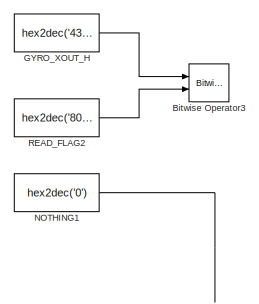
[diagram: Read IMU/Accelometer Gyroscope I2C1/Read Accelometer and Gyroscope Data/Old gyro get data Used during SPI before - part 1/4, top left region]
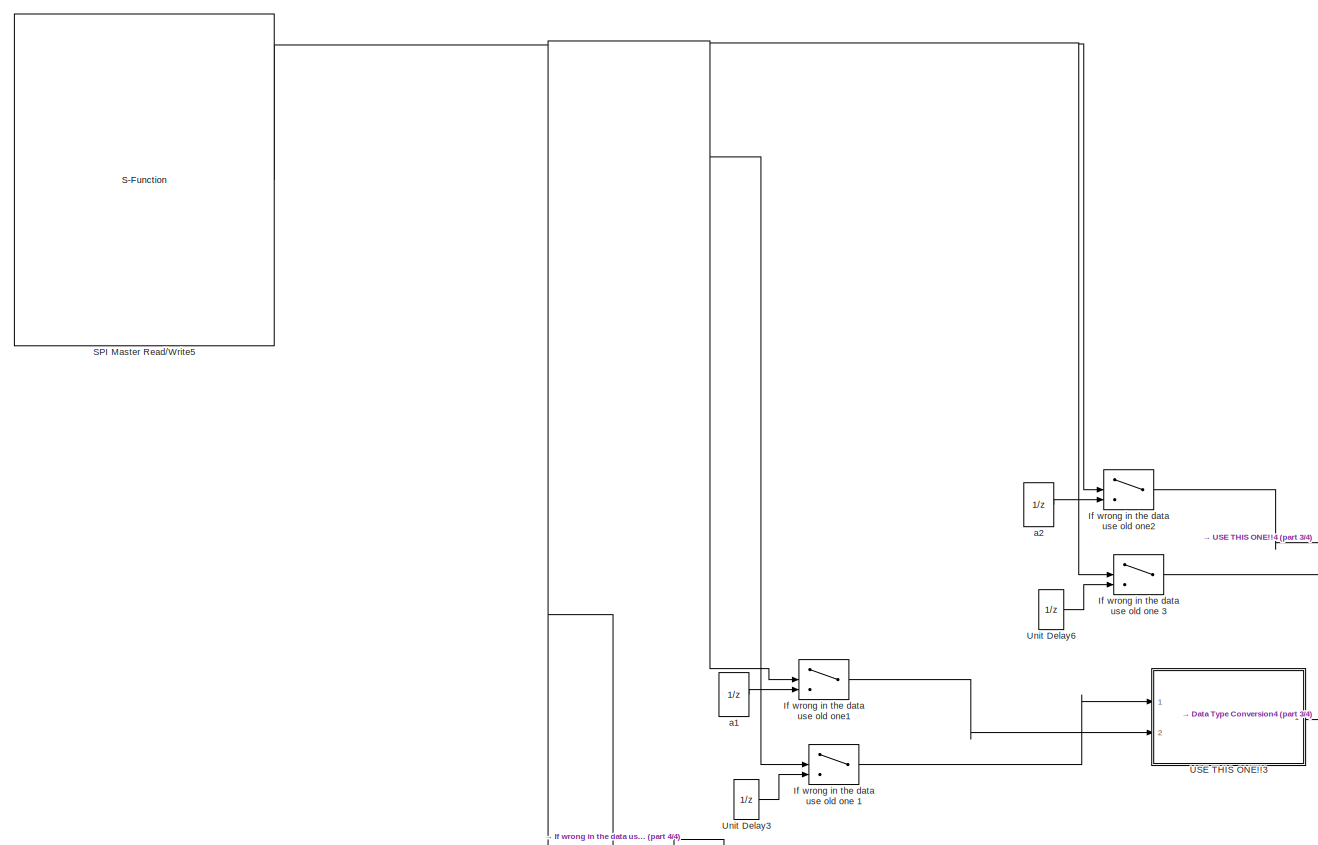
[diagram: Read IMU/Accelometer Gyroscope I2C1/Read Accelometer and Gyroscope Data/Old gyro get data Used during SPI before - part 2/4, center side, full height]
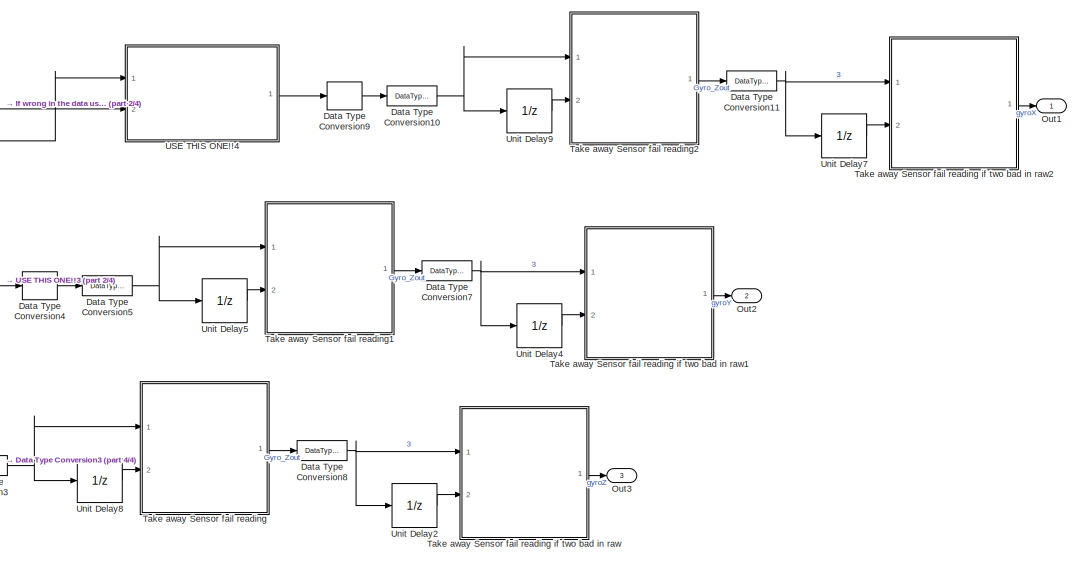
[diagram: Read IMU/Accelometer Gyroscope I2C1/Read Accelometer and Gyroscope Data/Old gyro get data Used during SPI before - part 3/4, bottom right region]
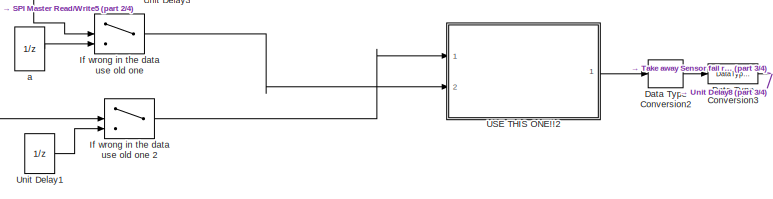
[diagram: Read IMU/Accelometer Gyroscope I2C1/Read Accelometer and Gyroscope Data/Old gyro get data Used during SPI before - part 4/4, bottom center region]
BLOCK [SubSystem] Read IMU/Accelometer Gyroscope I2C1/Read Accelometer and Gyroscope Data/Old gyro get data Used during SPI before
  Commented = on
  Ports = [0, 3]
  RequestExecContextInheritance = off
  Variant = off
BLOCK [UnitDelay] Read IMU/Accelometer Gyroscope I2C1/Read Accelometer and Gyroscope Data/Old gyro get data Used during SPI before/ a
  Commented = on
  InputProcessing = Elements as channels (sample based)
  SampleTime = -1
BLOCK [UnitDelay] Read IMU/Accelometer Gyroscope I2C1/Read Accelometer and Gyroscope Data/Old gyro get data Used during SPI before/ a1
  Commented = on
  InputProcessing = Elements as channels (sample based)
  SampleTime = -1
BLOCK [UnitDelay] Read IMU/Accelometer Gyroscope I2C1/Read Accelometer and Gyroscope Data/Old gyro get data Used during SPI before/ a2
  Commented = on
  InputProcessing = Elements as channels (sample based)
  SampleTime = -1
BLOCK [Reference] Read IMU/Accelometer Gyroscope I2C1/Read Accelometer and Gyroscope Data/Old gyro get data Used during SPI before/Bitwise Operator3  REF=simulink/Logic and Bit
Operations/Bitwise
Operator
  Commented = on
  Ports = [2, 1]
  SourceBlock = simulink/Logic and Bit\nOperations/Bitwise\nOperator
  SourceType = Bitwise Operator
BLOCK [DataTypeConversion] Read IMU/Accelometer Gyroscope I2C1/Read Accelometer and Gyroscope Data/Old gyro get data Used during SPI before/Data Type Conversion10
  Commented = on
  RndMeth = Floor
  SaturateOnIntegerOverflow = off
BLOCK [DataTypeConversion] Read IMU/Accelometer Gyroscope I2C1/Read Accelometer and Gyroscope Data/Old gyro get data Used during SPI before/Data Type Conversion11
  Commented = on
  RndMeth = Floor
  SaturateOnIntegerOverflow = off
BLOCK [DataTypeConversion] Read IMU/Accelometer Gyroscope I2C1/Read Accelometer and Gyroscope Data/Old gyro get data Used during SPI before/Data Type Conversion2
  Commented = on
  OutDataTypeStr = int16
  RndMeth = Floor
  SaturateOnIntegerOverflow = off
BLOCK [DataTypeConversion] Read IMU/Accelometer Gyroscope I2C1/Read Accelometer and Gyroscope Data/Old gyro get data Used during SPI before/Data Type Conversion3
  Commented = on
  RndMeth = Floor
  SaturateOnIntegerOverflow = off
BLOCK [DataTypeConversion] Read IMU/Accelometer Gyroscope I2C1/Read Accelometer and Gyroscope Data/Old gyro get data Used during SPI before/Data Type Conversion4
  Commented = on
  OutDataTypeStr = int16
  RndMeth = Floor
  SaturateOnIntegerOverflow = off
BLOCK [DataTypeConversion] Read IMU/Accelometer Gyroscope I2C1/Read Accelometer and Gyroscope Data/Old gyro get data Used during SPI before/Data Type Conversion5
  Commented = on
  RndMeth = Floor
  SaturateOnIntegerOverflow = off
BLOCK [DataTypeConversion] Read IMU/Accelometer Gyroscope I2C1/Read Accelometer and Gyroscope Data/Old gyro get data Used during SPI before/Data Type Conversion7
  Commented = on
  RndMeth = Floor
  SaturateOnIntegerOverflow = off
BLOCK [DataTypeConversion] Read IMU/Accelometer Gyroscope I2C1/Read Accelometer and Gyroscope Data/Old gyro get data Used during SPI before/Data Type Conversion8
  Commented = on
  RndMeth = Floor
  SaturateOnIntegerOverflow = off
BLOCK [DataTypeConversion] Read IMU/Accelometer Gyroscope I2C1/Read Accelometer and Gyroscope Data/Old gyro get data Used during SPI before/Data Type Conversion9
  Commented = on
  OutDataTypeStr = int16
  RndMeth = Floor
  SaturateOnIntegerOverflow = off
BLOCK [Constant] Read IMU/Accelometer Gyroscope I2C1/Read Accelometer and Gyroscope Data/Old gyro get data Used during SPI before/GYRO_XOUT_H
  Commented = on
  OutDataTypeStr = uint8
  Value = hex2dec('43')
BLOCK [Switch] Read IMU/Accelometer Gyroscope I2C1/Read Accelometer and Gyroscope Data/Old gyro get data Used during SPI before/If wrong in the data use old one
  Commented = on
  Criteria = u2 ~= 0
  InputSameDT = off
  SaturateOnIntegerOverflow = off
BLOCK [Switch] Read IMU/Accelometer Gyroscope I2C1/Read Accelometer and Gyroscope Data/Old gyro get data Used during SPI before/If wrong in the data use old one 1
  Commented = on
  Criteria = u2 ~= 0
  InputSameDT = off
  SaturateOnIntegerOverflow = off
BLOCK [Switch] Read IMU/Accelometer Gyroscope I2C1/Read Accelometer and Gyroscope Data/Old gyro get data Used during SPI before/If wrong in the data use old one 2
  Commented = on
  Criteria = u2 ~= 0
  InputSameDT = off
  SaturateOnIntegerOverflow = off
BLOCK [Switch] Read IMU/Accelometer Gyroscope I2C1/Read Accelometer and Gyroscope Data/Old gyro get data Used during SPI before/If wrong in the data use old one 3
  Commented = on
  Criteria = u2 ~= 0
  InputSameDT = off
  SaturateOnIntegerOverflow = off
BLOCK [Switch] Read IMU/Accelometer Gyroscope I2C1/Read Accelometer and Gyroscope Data/Old gyro get data Used during SPI before/If wrong in the data use old one1
  Commented = on
  Criteria = u2 ~= 0
  InputSameDT = off
  SaturateOnIntegerOverflow = off
BLOCK [Switch] Read IMU/Accelometer Gyroscope I2C1/Read Accelometer and Gyroscope Data/Old gyro get data Used during SPI before/If wrong in the data use old one2
  Commented = on
  Criteria = u2 ~= 0
  InputSameDT = off
  SaturateOnIntegerOverflow = off
BLOCK [Constant] Read IMU/Accelometer Gyroscope I2C1/Read Accelometer and Gyroscope Data/Old gyro get data Used during SPI before/NOTHING1
  Commented = on
  OutDataTypeStr = uint8
  Value = hex2dec('0')
BLOCK [Outport] Read IMU/Accelometer Gyroscope I2C1/Read Accelometer and Gyroscope Data/Old gyro get data Used during SPI before/Out1
  IconDisplay = Port number
BLOCK [Outport] Read IMU/Accelometer Gyroscope I2C1/Read Accelometer and Gyroscope Data/Old gyro get data Used during SPI before/Out2
  IconDisplay = Port number
  Port = 2
BLOCK [Outport] Read IMU/Accelometer Gyroscope I2C1/Read Accelometer and Gyroscope Data/Old gyro get data Used during SPI before/Out3
  IconDisplay = Port number
  Port = 3
BLOCK [Constant] Read IMU/Accelometer Gyroscope I2C1/Read Accelometer and Gyroscope Data/Old gyro get data Used during SPI before/READ_FLAG2
  Commented = on
  OutDataTypeStr = uint8
  Value = hex2dec('80')
BLOCK [S-Function] Read IMU/Accelometer Gyroscope I2C1/Read Accelometer and Gyroscope Data/Old gyro get data Used during SPI before/SPI Master Read//Write5
  Commented = on
  EnableBusSupport = off
  FunctionName = stm32f4_spimaster
  Parameters = mode,configuration,module,datacount,inputtypearray,outputtypearray,confstr,sampletime,sampletimestr,blockid
  Ports = [0, 1]
  SFcnIsStateOwnerBlock = off
  SFunctionDeploymentMode = off
BLOCK [SubSystem] Read IMU/Accelometer Gyroscope I2C1/Read Accelometer and Gyroscope Data/Old gyro get data Used during SPI before/Take away Sensor fail reading
  Commented = on
  ErrorFcn = Stateflow.Translate.translate
  PermitHierarchicalResolution = ExplicitOnly
  Ports = [2, 1]
  RequestExecContextInheritance = off
  SFBlockType = MATLAB Function
  TreatAsAtomicUnit = on
  Variant = off
BLOCK [SubSystem] Read IMU/Accelometer Gyroscope I2C1/Read Accelometer and Gyroscope Data/Old gyro get data Used during SPI before/Take away Sensor fail reading if two bad in raw
  Commented = on
  ErrorFcn = Stateflow.Translate.translate
  PermitHierarchicalResolution = ExplicitOnly
  Ports = [2, 1]
  RequestExecContextInheritance = off
  SFBlockType = MATLAB Function
  TreatAsAtomicUnit = on
  Variant = off
BLOCK [Demux] Read IMU/Accelometer Gyroscope I2C1/Read Accelometer and Gyroscope Data/Old gyro get data Used during SPI before/Take away Sensor fail reading if two bad in raw/ Demux 
  Outputs = 1
  Ports = [1, 1]
BLOCK [S-Function] Read IMU/Accelometer Gyroscope I2C1/Read Accelometer and Gyroscope Data/Old gyro get data Used during SPI before/Take away Sensor fail reading if two bad in raw/ SFunction 
  EnableBusSupport = on
  FunctionName = sf_sfun
  PortCounts = [2 2]
  Ports = [2, 2]
  SFcnIsStateOwnerBlock = off
  SFunctionDeploymentMode = off
  Tag = Stateflow S-Function CubeX_LQR_2D 29
BLOCK [Terminator] Read IMU/Accelometer Gyroscope I2C1/Read Accelometer and Gyroscope Data/Old gyro get data Used during SPI before/Take away Sensor fail reading if two bad in raw/ Terminator 
BLOCK [Inport] Read IMU/Accelometer Gyroscope I2C1/Read Accelometer and Gyroscope Data/Old gyro get data Used during SPI before/Take away Sensor fail reading if two bad in raw/new
  IconDisplay = Port number
BLOCK [Inport] Read IMU/Accelometer Gyroscope I2C1/Read Accelometer and Gyroscope Data/Old gyro get data Used during SPI before/Take away Sensor fail reading if two bad in raw/old
  IconDisplay = Port number
  Port = 2
BLOCK [Outport] Read IMU/Accelometer Gyroscope I2C1/Read Accelometer and Gyroscope Data/Old gyro get data Used during SPI before/Take away Sensor fail reading if two bad in raw/y
  IconDisplay = Port number
BLOCK [SubSystem] Read IMU/Accelometer Gyroscope I2C1/Read Accelometer and Gyroscope Data/Old gyro get data Used during SPI before/Take away Sensor fail reading if two bad in raw1
  Commented = on
  ErrorFcn = Stateflow.Translate.translate
  PermitHierarchicalResolution = ExplicitOnly
  Ports = [2, 1]
  RequestExecContextInheritance = off
  SFBlockType = MATLAB Function
  TreatAsAtomicUnit = on
  Variant = off
BLOCK [Demux] Read IMU/Accelometer Gyroscope I2C1/Read Accelometer and Gyroscope Data/Old gyro get data Used during SPI before/Take away Sensor fail reading if two bad in raw1/ Demux 
  Outputs = 1
  Ports = [1, 1]
BLOCK [S-Function] Read IMU/Accelometer Gyroscope I2C1/Read Accelometer and Gyroscope Data/Old gyro get data Used during SPI before/Take away Sensor fail reading if two bad in raw1/ SFunction 
  EnableBusSupport = on
  FunctionName = sf_sfun
  PortCounts = [2 2]
  Ports = [2, 2]
  SFcnIsStateOwnerBlock = off
  SFunctionDeploymentMode = off
  Tag = Stateflow S-Function CubeX_LQR_2D 30
BLOCK [Terminator] Read IMU/Accelometer Gyroscope I2C1/Read Accelometer and Gyroscope Data/Old gyro get data Used during SPI before/Take away Sensor fail reading if two bad in raw1/ Terminator 
BLOCK [Inport] Read IMU/Accelometer Gyroscope I2C1/Read Accelometer and Gyroscope Data/Old gyro get data Used during SPI before/Take away Sensor fail reading if two bad in raw1/new
  IconDisplay = Port number
BLOCK [Inport] Read IMU/Accelometer Gyroscope I2C1/Read Accelometer and Gyroscope Data/Old gyro get data Used during SPI before/Take away Sensor fail reading if two bad in raw1/old
  IconDisplay = Port number
  Port = 2
BLOCK [Outport] Read IMU/Accelometer Gyroscope I2C1/Read Accelometer and Gyroscope Data/Old gyro get data Used during SPI before/Take away Sensor fail reading if two bad in raw1/y
  IconDisplay = Port number
BLOCK [SubSystem] Read IMU/Accelometer Gyroscope I2C1/Read Accelometer and Gyroscope Data/Old gyro get data Used during SPI before/Take away Sensor fail reading if two bad in raw2
  Commented = on
  ErrorFcn = Stateflow.Translate.translate
  PermitHierarchicalResolution = ExplicitOnly
  Ports = [2, 1]
  RequestExecContextInheritance = off
  SFBlockType = MATLAB Function
  TreatAsAtomicUnit = on
  Variant = off
BLOCK [Demux] Read IMU/Accelometer Gyroscope I2C1/Read Accelometer and Gyroscope Data/Old gyro get data Used during SPI before/Take away Sensor fail reading if two bad in raw2/ Demux 
  Outputs = 1
  Ports = [1, 1]
BLOCK [S-Function] Read IMU/Accelometer Gyroscope I2C1/Read Accelometer and Gyroscope Data/Old gyro get data Used during SPI before/Take away Sensor fail reading if two bad in raw2/ SFunction 
  EnableBusSupport = on
  FunctionName = sf_sfun
  PortCounts = [2 2]
  Ports = [2, 2]
  SFcnIsStateOwnerBlock = off
  SFunctionDeploymentMode = off
  Tag = Stateflow S-Function CubeX_LQR_2D 32
BLOCK [Terminator] Read IMU/Accelometer Gyroscope I2C1/Read Accelometer and Gyroscope Data/Old gyro get data Used during SPI before/Take away Sensor fail reading if two bad in raw2/ Terminator 
BLOCK [Inport] Read IMU/Accelometer Gyroscope I2C1/Read Accelometer and Gyroscope Data/Old gyro get data Used during SPI before/Take away Sensor fail reading if two bad in raw2/new
  IconDisplay = Port number
BLOCK [Inport] Read IMU/Accelometer Gyroscope I2C1/Read Accelometer and Gyroscope Data/Old gyro get data Used during SPI before/Take away Sensor fail reading if two bad in raw2/old
  IconDisplay = Port number
  Port = 2
BLOCK [Outport] Read IMU/Accelometer Gyroscope I2C1/Read Accelometer and Gyroscope Data/Old gyro get data Used during SPI before/Take away Sensor fail reading if two bad in raw2/y
  IconDisplay = Port number
BLOCK [Demux] Read IMU/Accelometer Gyroscope I2C1/Read Accelometer and Gyroscope Data/Old gyro get data Used during SPI before/Take away Sensor fail reading/ Demux 
  Outputs = 1
  Ports = [1, 1]
BLOCK [S-Function] Read IMU/Accelometer Gyroscope I2C1/Read Accelometer and Gyroscope Data/Old gyro get data Used during SPI before/Take away Sensor fail reading/ SFunction 
  EnableBusSupport = on
  FunctionName = sf_sfun
  PortCounts = [2 2]
  Ports = [2, 2]
  SFcnIsStateOwnerBlock = off
  SFunctionDeploymentMode = off
  Tag = Stateflow S-Function CubeX_LQR_2D 28
BLOCK [Terminator] Read IMU/Accelometer Gyroscope I2C1/Read Accelometer and Gyroscope Data/Old gyro get data Used during SPI before/Take away Sensor fail reading/ Terminator 
BLOCK [Inport] Read IMU/Accelometer Gyroscope I2C1/Read Accelometer and Gyroscope Data/Old gyro get data Used during SPI before/Take away Sensor fail reading/new
  IconDisplay = Port number
BLOCK [Inport] Read IMU/Accelometer Gyroscope I2C1/Read Accelometer and Gyroscope Data/Old gyro get data Used during SPI before/Take away Sensor fail reading/old
  IconDisplay = Port number
  Port = 2
BLOCK [Outport] Read IMU/Accelometer Gyroscope I2C1/Read Accelometer and Gyroscope Data/Old gyro get data Used during SPI before/Take away Sensor fail reading/y
  IconDisplay = Port number
BLOCK [SubSystem] Read IMU/Accelometer Gyroscope I2C1/Read Accelometer and Gyroscope Data/Old gyro get data Used during SPI before/Take away Sensor fail reading1
  Commented = on
  ErrorFcn = Stateflow.Translate.translate
  PermitHierarchicalResolution = ExplicitOnly
  Ports = [2, 1]
  RequestExecContextInheritance = off
  SFBlockType = MATLAB Function
  TreatAsAtomicUnit = on
  Variant = off
BLOCK [Demux] Read IMU/Accelometer Gyroscope I2C1/Read Accelometer and Gyroscope Data/Old gyro get data Used during SPI before/Take away Sensor fail reading1/ Demux 
  Outputs = 1
  Ports = [1, 1]
BLOCK [S-Function] Read IMU/Accelometer Gyroscope I2C1/Read Accelometer and Gyroscope Data/Old gyro get data Used during SPI before/Take away Sensor fail reading1/ SFunction 
  EnableBusSupport = on
  FunctionName = sf_sfun
  PortCounts = [2 2]
  Ports = [2, 2]
  SFcnIsStateOwnerBlock = off
  SFunctionDeploymentMode = off
  Tag = Stateflow S-Function CubeX_LQR_2D 31
BLOCK [Terminator] Read IMU/Accelometer Gyroscope I2C1/Read Accelometer and Gyroscope Data/Old gyro get data Used during SPI before/Take away Sensor fail reading1/ Terminator 
BLOCK [Inport] Read IMU/Accelometer Gyroscope I2C1/Read Accelometer and Gyroscope Data/Old gyro get data Used during SPI before/Take away Sensor fail reading1/new
  IconDisplay = Port number
BLOCK [Inport] Read IMU/Accelometer Gyroscope I2C1/Read Accelometer and Gyroscope Data/Old gyro get data Used during SPI before/Take away Sensor fail reading1/old
  IconDisplay = Port number
  Port = 2
BLOCK [Outport] Read IMU/Accelometer Gyroscope I2C1/Read Accelometer and Gyroscope Data/Old gyro get data Used during SPI before/Take away Sensor fail reading1/y
  IconDisplay = Port number
BLOCK [SubSystem] Read IMU/Accelometer Gyroscope I2C1/Read Accelometer and Gyroscope Data/Old gyro get data Used during SPI before/Take away Sensor fail reading2
  Commented = on
  ErrorFcn = Stateflow.Translate.translate
  PermitHierarchicalResolution = ExplicitOnly
  Ports = [2, 1]
  RequestExecContextInheritance = off
  SFBlockType = MATLAB Function
  TreatAsAtomicUnit = on
  Variant = off
BLOCK [Demux] Read IMU/Accelometer Gyroscope I2C1/Read Accelometer and Gyroscope Data/Old gyro get data Used during SPI before/Take away Sensor fail reading2/ Demux 
  Outputs = 1
  Ports = [1, 1]
BLOCK [S-Function] Read IMU/Accelometer Gyroscope I2C1/Read Accelometer and Gyroscope Data/Old gyro get data Used during SPI before/Take away Sensor fail reading2/ SFunction 
  EnableBusSupport = on
  FunctionName = sf_sfun
  PortCounts = [2 2]
  Ports = [2, 2]
  SFcnIsStateOwnerBlock = off
  SFunctionDeploymentMode = off
  Tag = Stateflow S-Function CubeX_LQR_2D 33
BLOCK [Terminator] Read IMU/Accelometer Gyroscope I2C1/Read Accelometer and Gyroscope Data/Old gyro get data Used during SPI before/Take away Sensor fail reading2/ Terminator 
BLOCK [Inport] Read IMU/Accelometer Gyroscope I2C1/Read Accelometer and Gyroscope Data/Old gyro get data Used during SPI before/Take away Sensor fail reading2/new
  IconDisplay = Port number
BLOCK [Inport] Read IMU/Accelometer Gyroscope I2C1/Read Accelometer and Gyroscope Data/Old gyro get data Used during SPI before/Take away Sensor fail reading2/old
  IconDisplay = Port number
  Port = 2
BLOCK [Outport] Read IMU/Accelometer Gyroscope I2C1/Read Accelometer and Gyroscope Data/Old gyro get data Used during SPI before/Take away Sensor fail reading2/y
  IconDisplay = Port number
BLOCK [SubSystem] Read IMU/Accelometer Gyroscope I2C1/Read Accelometer and Gyroscope Data/Old gyro get data Used during SPI before/USE THIS ONE!!2
  Commented = on
  Ports = [2, 1]
  RequestExecContextInheritance = off
  Variant = off
BLOCK [Reference] Read IMU/Accelometer Gyroscope I2C1/Read Accelometer and Gyroscope Data/Old gyro get data Used during SPI before/USE THIS ONE!!2/Bitwise Operator  REF=simulink/Logic and Bit
Operations/Bitwise
Operator
  Ports = [2, 1]
  SourceBlock = simulink/Logic and Bit\nOperations/Bitwise\nOperator
  SourceType = Bitwise Operator
BLOCK [DataTypeConversion] Read IMU/Accelometer Gyroscope I2C1/Read Accelometer and Gyroscope Data/Old gyro get data Used during SPI before/USE THIS ONE!!2/Data Type Conversion
  OutDataTypeStr = uint16
  RndMeth = Floor
  SaturateOnIntegerOverflow = off
BLOCK [DataTypeConversion] Read IMU/Accelometer Gyroscope I2C1/Read Accelometer and Gyroscope Data/Old gyro get data Used during SPI before/USE THIS ONE!!2/Data Type Conversion1
  OutDataTypeStr = uint16
  RndMeth = Floor
  SaturateOnIntegerOverflow = off
BLOCK [Outport] Read IMU/Accelometer Gyroscope I2C1/Read Accelometer and Gyroscope Data/Old gyro get data Used during SPI before/USE THIS ONE!!2/Gyro_Zout
  IconDisplay = Port number
BLOCK [Inport] Read IMU/Accelometer Gyroscope I2C1/Read Accelometer and Gyroscope Data/Old gyro get data Used during SPI before/USE THIS ONE!!2/Gyro_Zout_High 
  IconDisplay = Port number
BLOCK [Inport] Read IMU/Accelometer Gyroscope I2C1/Read Accelometer and Gyroscope Data/Old gyro get data Used during SPI before/USE THIS ONE!!2/Gyro_Zout_Low
  IconDisplay = Port number
  Port = 2
BLOCK [ArithShift] Read IMU/Accelometer Gyroscope I2C1/Read Accelometer and Gyroscope Data/Old gyro get data Used during SPI before/USE THIS ONE!!2/Shift Arithmetic
  BitShiftNumber = -8
  InputPortMap = u0
  Ports = [1, 1]
BLOCK [SubSystem] Read IMU/Accelometer Gyroscope I2C1/Read Accelometer and Gyroscope Data/Old gyro get data Used during SPI before/USE THIS ONE!!3
  Commented = on
  Ports = [2, 1]
  RequestExecContextInheritance = off
  Variant = off
BLOCK [Reference] Read IMU/Accelometer Gyroscope I2C1/Read Accelometer and Gyroscope Data/Old gyro get data Used during SPI before/USE THIS ONE!!3/Bitwise Operator  REF=simulink/Logic and Bit
Operations/Bitwise
Operator
  Ports = [2, 1]
  SourceBlock = simulink/Logic and Bit\nOperations/Bitwise\nOperator
  SourceType = Bitwise Operator
BLOCK [DataTypeConversion] Read IMU/Accelometer Gyroscope I2C1/Read Accelometer and Gyroscope Data/Old gyro get data Used during SPI before/USE THIS ONE!!3/Data Type Conversion
  OutDataTypeStr = uint16
  RndMeth = Floor
  SaturateOnIntegerOverflow = off
BLOCK [DataTypeConversion] Read IMU/Accelometer Gyroscope I2C1/Read Accelometer and Gyroscope Data/Old gyro get data Used during SPI before/USE THIS ONE!!3/Data Type Conversion1
  OutDataTypeStr = uint16
  RndMeth = Floor
  SaturateOnIntegerOverflow = off
BLOCK [Outport] Read IMU/Accelometer Gyroscope I2C1/Read Accelometer and Gyroscope Data/Old gyro get data Used during SPI before/USE THIS ONE!!3/Gyro_Zout
  IconDisplay = Port number
BLOCK [Inport] Read IMU/Accelometer Gyroscope I2C1/Read Accelometer and Gyroscope Data/Old gyro get data Used during SPI before/USE THIS ONE!!3/Gyro_Zout_High 
  IconDisplay = Port number
BLOCK [Inport] Read IMU/Accelometer Gyroscope I2C1/Read Accelometer and Gyroscope Data/Old gyro get data Used during SPI before/USE THIS ONE!!3/Gyro_Zout_Low
  IconDisplay = Port number
  Port = 2
BLOCK [ArithShift] Read IMU/Accelometer Gyroscope I2C1/Read Accelometer and Gyroscope Data/Old gyro get data Used during SPI before/USE THIS ONE!!3/Shift Arithmetic
  BitShiftNumber = -8
  InputPortMap = u0
  Ports = [1, 1]
BLOCK [SubSystem] Read IMU/Accelometer Gyroscope I2C1/Read Accelometer and Gyroscope Data/Old gyro get data Used during SPI before/USE THIS ONE!!4
  Commented = on
  Ports = [2, 1]
  RequestExecContextInheritance = off
  Variant = off
BLOCK [Reference] Read IMU/Accelometer Gyroscope I2C1/Read Accelometer and Gyroscope Data/Old gyro get data Used during SPI before/USE THIS ONE!!4/Bitwise Operator  REF=simulink/Logic and Bit
Operations/Bitwise
Operator
  Ports = [2, 1]
  SourceBlock = simulink/Logic and Bit\nOperations/Bitwise\nOperator
  SourceType = Bitwise Operator
BLOCK [DataTypeConversion] Read IMU/Accelometer Gyroscope I2C1/Read Accelometer and Gyroscope Data/Old gyro get data Used during SPI before/USE THIS ONE!!4/Data Type Conversion
  OutDataTypeStr = uint16
  RndMeth = Floor
  SaturateOnIntegerOverflow = off
BLOCK [DataTypeConversion] Read IMU/Accelometer Gyroscope I2C1/Read Accelometer and Gyroscope Data/Old gyro get data Used during SPI before/USE THIS ONE!!4/Data Type Conversion1
  OutDataTypeStr = uint16
  RndMeth = Floor
  SaturateOnIntegerOverflow = off
BLOCK [Outport] Read IMU/Accelometer Gyroscope I2C1/Read Accelometer and Gyroscope Data/Old gyro get data Used during SPI before/USE THIS ONE!!4/Gyro_Zout
  IconDisplay = Port number
BLOCK [Inport] Read IMU/Accelometer Gyroscope I2C1/Read Accelometer and Gyroscope Data/Old gyro get data Used during SPI before/USE THIS ONE!!4/Gyro_Zout_High 
  IconDisplay = Port number
BLOCK [Inport] Read IMU/Accelometer Gyroscope I2C1/Read Accelometer and Gyroscope Data/Old gyro get data Used during SPI before/USE THIS ONE!!4/Gyro_Zout_Low
  IconDisplay = Port number
  Port = 2
BLOCK [ArithShift] Read IMU/Accelometer Gyroscope I2C1/Read Accelometer and Gyroscope Data/Old gyro get data Used during SPI before/USE THIS ONE!!4/Shift Arithmetic
  BitShiftNumber = -8
  InputPortMap = u0
  Ports = [1, 1]
BLOCK [UnitDelay] Read IMU/Accelometer Gyroscope I2C1/Read Accelometer and Gyroscope Data/Old gyro get data Used during SPI before/Unit Delay1
  Commented = on
  InputProcessing = Elements as channels (sample based)
  SampleTime = -1
BLOCK [UnitDelay] Read IMU/Accelometer Gyroscope I2C1/Read Accelometer and Gyroscope Data/Old gyro get data Used during SPI before/Unit Delay2
  Commented = on
  InitialCondition = -40.45
  InputProcessing = Elements as channels (sample based)
  SampleTime = -1
BLOCK [UnitDelay] Read IMU/Accelometer Gyroscope I2C1/Read Accelometer and Gyroscope Data/Old gyro get data Used during SPI before/Unit Delay3
  Commented = on
  InputProcessing = Elements as channels (sample based)
  SampleTime = -1
BLOCK [UnitDelay] Read IMU/Accelometer Gyroscope I2C1/Read Accelometer and Gyroscope Data/Old gyro get data Used during SPI before/Unit Delay4
  Commented = on
  InitialCondition = -40.45
  InputProcessing = Elements as channels (sample based)
  SampleTime = -1
BLOCK [UnitDelay] Read IMU/Accelometer Gyroscope I2C1/Read Accelometer and Gyroscope Data/Old gyro get data Used during SPI before/Unit Delay5
  Commented = on
  InitialCondition = -40.45
  InputProcessing = Elements as channels (sample based)
  SampleTime = -1
BLOCK [UnitDelay] Read IMU/Accelometer Gyroscope I2C1/Read Accelometer and Gyroscope Data/Old gyro get data Used during SPI before/Unit Delay6
  Commented = on
  InputProcessing = Elements as channels (sample based)
  SampleTime = -1
BLOCK [UnitDelay] Read IMU/Accelometer Gyroscope I2C1/Read Accelometer and Gyroscope Data/Old gyro get data Used during SPI before/Unit Delay7
  Commented = on
  InitialCondition = -40.45
  InputProcessing = Elements as channels (sample based)
  SampleTime = -1
BLOCK [UnitDelay] Read IMU/Accelometer Gyroscope I2C1/Read Accelometer and Gyroscope Data/Old gyro get data Used during SPI before/Unit Delay8
  Commented = on
  InitialCondition = -40.45
  InputProcessing = Elements as channels (sample based)
  SampleTime = -1
BLOCK [UnitDelay] Read IMU/Accelometer Gyroscope I2C1/Read Accelometer and Gyroscope Data/Old gyro get data Used during SPI before/Unit Delay9
  Commented = on
  InitialCondition = -40.45
  InputProcessing = Elements as channels (sample based)
  SampleTime = -1
BLOCK [Inport] Read IMU/Accelometer Gyroscope I2C1/Read Accelometer and Gyroscope Data/SlvAddr
  IconDisplay = Port number
BLOCK [Terminator] Read IMU/Accelometer Gyroscope I2C1/Read Accelometer and Gyroscope Data/Terminator
BLOCK [SubSystem] Read IMU/Accelometer Gyroscope I2C1/Read Accelometer and Gyroscope Data/Turn the MSB and LSB into a signed 16-bit integer AccX
  Ports = [2, 1]
  RequestExecContextInheritance = off
  Variant = off
BLOCK [Reference] Read IMU/Accelometer Gyroscope I2C1/Read Accelometer and Gyroscope Data/Turn the MSB and LSB into a signed 16-bit integer AccX/Bitwise Operator2  REF=simulink/Logic and Bit
Operations/Bitwise
Operator
  Ports = [2, 1]
  SourceBlock = simulink/Logic and Bit\nOperations/Bitwise\nOperator
  SourceType = Bitwise Operator
BLOCK [DataTypeConversion] Read IMU/Accelometer Gyroscope I2C1/Read Accelometer and Gyroscope Data/Turn the MSB and LSB into a signed 16-bit integer AccX/Data Type Conversion6
  OutDataTypeStr = uint16
  RndMeth = Floor
  SaturateOnIntegerOverflow = off
BLOCK [DataTypeConversion] Read IMU/Accelometer Gyroscope I2C1/Read Accelometer and Gyroscope Data/Turn the MSB and LSB into a signed 16-bit integer AccX/Data Type Conversion7
  OutDataTypeStr = uint16
  RndMeth = Floor
  SaturateOnIntegerOverflow = off
BLOCK [Inport] Read IMU/Accelometer Gyroscope I2C1/Read Accelometer and Gyroscope Data/Turn the MSB and LSB into a signed 16-bit integer AccX/LSB
  IconDisplay = Port number
  Port = 2
BLOCK [Inport] Read IMU/Accelometer Gyroscope I2C1/Read Accelometer and Gyroscope Data/Turn the MSB and LSB into a signed 16-bit integer AccX/MSB
  IconDisplay = Port number
BLOCK [ArithShift] Read IMU/Accelometer Gyroscope I2C1/Read Accelometer and Gyroscope Data/Turn the MSB and LSB into a signed 16-bit integer AccX/Shift Arithmetic2
  BitShiftNumber = -8
  InputPortMap = u0
  Ports = [1, 1]
BLOCK [Outport] Read IMU/Accelometer Gyroscope I2C1/Read Accelometer and Gyroscope Data/Turn the MSB and LSB into a signed 16-bit integer AccX/out16b
  IconDisplay = Port number
BLOCK [SubSystem] Read IMU/Accelometer Gyroscope I2C1/Read Accelometer and Gyroscope Data/Turn the MSB and LSB into a signed 16-bit integer AccY
  Ports = [2, 1]
  RequestExecContextInheritance = off
  Variant = off
BLOCK [Reference] Read IMU/Accelometer Gyroscope I2C1/Read Accelometer and Gyroscope Data/Turn the MSB and LSB into a signed 16-bit integer AccY/Bitwise Operator2  REF=simulink/Logic and Bit
Operations/Bitwise
Operator
  Ports = [2, 1]
  SourceBlock = simulink/Logic and Bit\nOperations/Bitwise\nOperator
  SourceType = Bitwise Operator
BLOCK [DataTypeConversion] Read IMU/Accelometer Gyroscope I2C1/Read Accelometer and Gyroscope Data/Turn the MSB and LSB into a signed 16-bit integer AccY/Data Type Conversion6
  OutDataTypeStr = uint16
  RndMeth = Floor
  SaturateOnIntegerOverflow = off
BLOCK [DataTypeConversion] Read IMU/Accelometer Gyroscope I2C1/Read Accelometer and Gyroscope Data/Turn the MSB and LSB into a signed 16-bit integer AccY/Data Type Conversion7
  OutDataTypeStr = uint16
  RndMeth = Floor
  SaturateOnIntegerOverflow = off
BLOCK [Inport] Read IMU/Accelometer Gyroscope I2C1/Read Accelometer and Gyroscope Data/Turn the MSB and LSB into a signed 16-bit integer AccY/LSB
  IconDisplay = Port number
  Port = 2
BLOCK [Inport] Read IMU/Accelometer Gyroscope I2C1/Read Accelometer and Gyroscope Data/Turn the MSB and LSB into a signed 16-bit integer AccY/MSB
  IconDisplay = Port number
BLOCK [ArithShift] Read IMU/Accelometer Gyroscope I2C1/Read Accelometer and Gyroscope Data/Turn the MSB and LSB into a signed 16-bit integer AccY/Shift Arithmetic2
  BitShiftNumber = -8
  InputPortMap = u0
  Ports = [1, 1]
BLOCK [Outport] Read IMU/Accelometer Gyroscope I2C1/Read Accelometer and Gyroscope Data/Turn the MSB and LSB into a signed 16-bit integer AccY/out16b
  IconDisplay = Port number
BLOCK [SubSystem] Read IMU/Accelometer Gyroscope I2C1/Read Accelometer and Gyroscope Data/Turn the MSB and LSB into a signed 16-bit integer AccZ
  Ports = [2, 1]
  RequestExecContextInheritance = off
  Variant = off
BLOCK [Reference] Read IMU/Accelometer Gyroscope I2C1/Read Accelometer and Gyroscope Data/Turn the MSB and LSB into a signed 16-bit integer AccZ/Bitwise Operator2  REF=simulink/Logic and Bit
Operations/Bitwise
Operator
  Ports = [2, 1]
  SourceBlock = simulink/Logic and Bit\nOperations/Bitwise\nOperator
  SourceType = Bitwise Operator
BLOCK [DataTypeConversion] Read IMU/Accelometer Gyroscope I2C1/Read Accelometer and Gyroscope Data/Turn the MSB and LSB into a signed 16-bit integer AccZ/Data Type Conversion6
  OutDataTypeStr = uint16
  RndMeth = Floor
  SaturateOnIntegerOverflow = off
BLOCK [DataTypeConversion] Read IMU/Accelometer Gyroscope I2C1/Read Accelometer and Gyroscope Data/Turn the MSB and LSB into a signed 16-bit integer AccZ/Data Type Conversion7
  OutDataTypeStr = uint16
  RndMeth = Floor
  SaturateOnIntegerOverflow = off
BLOCK [Inport] Read IMU/Accelometer Gyroscope I2C1/Read Accelometer and Gyroscope Data/Turn the MSB and LSB into a signed 16-bit integer AccZ/LSB
  IconDisplay = Port number
  Port = 2
BLOCK [Inport] Read IMU/Accelometer Gyroscope I2C1/Read Accelometer and Gyroscope Data/Turn the MSB and LSB into a signed 16-bit integer AccZ/MSB
  IconDisplay = Port number
BLOCK [ArithShift] Read IMU/Accelometer Gyroscope I2C1/Read Accelometer and Gyroscope Data/Turn the MSB and LSB into a signed 16-bit integer AccZ/Shift Arithmetic2
  BitShiftNumber = -8
  InputPortMap = u0
  Ports = [1, 1]
BLOCK [Outport] Read IMU/Accelometer Gyroscope I2C1/Read Accelometer and Gyroscope Data/Turn the MSB and LSB into a signed 16-bit integer AccZ/out16b
  IconDisplay = Port number
BLOCK [SubSystem] Read IMU/Accelometer Gyroscope I2C1/Read Accelometer and Gyroscope Data/Turn the MSB and LSB into a signed 16-bit integer GyroX
  Ports = [2, 1]
  RequestExecContextInheritance = off
  Variant = off
BLOCK [Reference] Read IMU/Accelometer Gyroscope I2C1/Read Accelometer and Gyroscope Data/Turn the MSB and LSB into a signed 16-bit integer GyroX/Bitwise Operator2  REF=simulink/Logic and Bit
Operations/Bitwise
Operator
  Ports = [2, 1]
  SourceBlock = simulink/Logic and Bit\nOperations/Bitwise\nOperator
  SourceType = Bitwise Operator
BLOCK [DataTypeConversion] Read IMU/Accelometer Gyroscope I2C1/Read Accelometer and Gyroscope Data/Turn the MSB and LSB into a signed 16-bit integer GyroX/Data Type Conversion6
  OutDataTypeStr = uint16
  RndMeth = Floor
  SaturateOnIntegerOverflow = off
BLOCK [DataTypeConversion] Read IMU/Accelometer Gyroscope I2C1/Read Accelometer and Gyroscope Data/Turn the MSB and LSB into a signed 16-bit integer GyroX/Data Type Conversion7
  OutDataTypeStr = uint16
  RndMeth = Floor
  SaturateOnIntegerOverflow = off
BLOCK [Inport] Read IMU/Accelometer Gyroscope I2C1/Read Accelometer and Gyroscope Data/Turn the MSB and LSB into a signed 16-bit integer GyroX/LSB
  IconDisplay = Port number
  Port = 2
BLOCK [Inport] Read IMU/Accelometer Gyroscope I2C1/Read Accelometer and Gyroscope Data/Turn the MSB and LSB into a signed 16-bit integer GyroX/MSB
  IconDisplay = Port number
BLOCK [ArithShift] Read IMU/Accelometer Gyroscope I2C1/Read Accelometer and Gyroscope Data/Turn the MSB and LSB into a signed 16-bit integer GyroX/Shift Arithmetic2
  BitShiftNumber = -8
  InputPortMap = u0
  Ports = [1, 1]
BLOCK [Outport] Read IMU/Accelometer Gyroscope I2C1/Read Accelometer and Gyroscope Data/Turn the MSB and LSB into a signed 16-bit integer GyroX/out16b
  IconDisplay = Port number
BLOCK [SubSystem] Read IMU/Accelometer Gyroscope I2C1/Read Accelometer and Gyroscope Data/Turn the MSB and LSB into a signed 16-bit integer GyroY
  Ports = [2, 1]
  RequestExecContextInheritance = off
  Variant = off
BLOCK [Reference] Read IMU/Accelometer Gyroscope I2C1/Read Accelometer and Gyroscope Data/Turn the MSB and LSB into a signed 16-bit integer GyroY/Bitwise Operator2  REF=simulink/Logic and Bit
Operations/Bitwise
Operator
  Ports = [2, 1]
  SourceBlock = simulink/Logic and Bit\nOperations/Bitwise\nOperator
  SourceType = Bitwise Operator
BLOCK [DataTypeConversion] Read IMU/Accelometer Gyroscope I2C1/Read Accelometer and Gyroscope Data/Turn the MSB and LSB into a signed 16-bit integer GyroY/Data Type Conversion6
  OutDataTypeStr = uint16
  RndMeth = Floor
  SaturateOnIntegerOverflow = off
BLOCK [DataTypeConversion] Read IMU/Accelometer Gyroscope I2C1/Read Accelometer and Gyroscope Data/Turn the MSB and LSB into a signed 16-bit integer GyroY/Data Type Conversion7
  OutDataTypeStr = uint16
  RndMeth = Floor
  SaturateOnIntegerOverflow = off
BLOCK [Inport] Read IMU/Accelometer Gyroscope I2C1/Read Accelometer and Gyroscope Data/Turn the MSB and LSB into a signed 16-bit integer GyroY/LSB
  IconDisplay = Port number
  Port = 2
BLOCK [Inport] Read IMU/Accelometer Gyroscope I2C1/Read Accelometer and Gyroscope Data/Turn the MSB and LSB into a signed 16-bit integer GyroY/MSB
  IconDisplay = Port number
BLOCK [ArithShift] Read IMU/Accelometer Gyroscope I2C1/Read Accelometer and Gyroscope Data/Turn the MSB and LSB into a signed 16-bit integer GyroY/Shift Arithmetic2
  BitShiftNumber = -8
  InputPortMap = u0
  Ports = [1, 1]
BLOCK [Outport] Read IMU/Accelometer Gyroscope I2C1/Read Accelometer and Gyroscope Data/Turn the MSB and LSB into a signed 16-bit integer GyroY/out16b
  IconDisplay = Port number
BLOCK [SubSystem] Read IMU/Accelometer Gyroscope I2C1/Read Accelometer and Gyroscope Data/Turn the MSB and LSB into a signed 16-bit integer GyroZ
  Ports = [2, 1]
  RequestExecContextInheritance = off
  Variant = off
BLOCK [Reference] Read IMU/Accelometer Gyroscope I2C1/Read Accelometer and Gyroscope Data/Turn the MSB and LSB into a signed 16-bit integer GyroZ/Bitwise Operator2  REF=simulink/Logic and Bit
Operations/Bitwise
Operator
  Ports = [2, 1]
  SourceBlock = simulink/Logic and Bit\nOperations/Bitwise\nOperator
  SourceType = Bitwise Operator
BLOCK [DataTypeConversion] Read IMU/Accelometer Gyroscope I2C1/Read Accelometer and Gyroscope Data/Turn the MSB and LSB into a signed 16-bit integer GyroZ/Data Type Conversion6
  OutDataTypeStr = uint16
  RndMeth = Floor
  SaturateOnIntegerOverflow = off
BLOCK [DataTypeConversion] Read IMU/Accelometer Gyroscope I2C1/Read Accelometer and Gyroscope Data/Turn the MSB and LSB into a signed 16-bit integer GyroZ/Data Type Conversion7
  OutDataTypeStr = uint16
  RndMeth = Floor
  SaturateOnIntegerOverflow = off
BLOCK [Inport] Read IMU/Accelometer Gyroscope I2C1/Read Accelometer and Gyroscope Data/Turn the MSB and LSB into a signed 16-bit integer GyroZ/LSB
  IconDisplay = Port number
  Port = 2
BLOCK [Inport] Read IMU/Accelometer Gyroscope I2C1/Read Accelometer and Gyroscope Data/Turn the MSB and LSB into a signed 16-bit integer GyroZ/MSB
  IconDisplay = Port number
BLOCK [ArithShift] Read IMU/Accelometer Gyroscope I2C1/Read Accelometer and Gyroscope Data/Turn the MSB and LSB into a signed 16-bit integer GyroZ/Shift Arithmetic2
  BitShiftNumber = -8
  InputPortMap = u0
  Ports = [1, 1]
BLOCK [Outport] Read IMU/Accelometer Gyroscope I2C1/Read Accelometer and Gyroscope Data/Turn the MSB and LSB into a signed 16-bit integer GyroZ/out16b
  IconDisplay = Port number
BLOCK [Outport] Read IMU/Accelometer Gyroscope I2C1/Read Accelometer and Gyroscope Data/acc
  IconDisplay = Port number
BLOCK [Outport] Read IMU/Accelometer Gyroscope I2C1/Read Accelometer and Gyroscope Data/gyro
  IconDisplay = Port number
  Port = 2
BLOCK [Inport] Read IMU/Accelometer Gyroscope I2C1/SlvAddr MPU9250
  IconDisplay = Port number
BLOCK [Outport] Read IMU/Accelometer Gyroscope I2C1/acc
  IconDisplay = Port number
BLOCK [Outport] Read IMU/Accelometer Gyroscope I2C1/gyro
  IconDisplay = Port number
  Port = 2
BLOCK [SubSystem] Read IMU/Accelometer Gyroscope I2C3
  Ports = [1, 2]
  RequestExecContextInheritance = off
  Variant = off
BLOCK [SubSystem] Read IMU/Accelometer Gyroscope I2C3/MPU9250 Init
  Ports = [1, 1]
  RequestExecContextInheritance = off
  Variant = off
BLOCK [Reference] Read IMU/Accelometer Gyroscope I2C3/MPU9250 Init/Bitwise Operator  REF=simulink/Logic and Bit
Operations/Bitwise
Operator
  Ports = [1, 1]
  SourceBlock = simulink/Logic and Bit\nOperations/Bitwise\nOperator
  SourceType = Bitwise Operator
BLOCK [Reference] Read IMU/Accelometer Gyroscope I2C3/MPU9250 Init/Compare To Zero  REF=simulink/Logic and Bit
Operations/Compare
To Zero
  Ports = [1, 1]
  SourceBlock = simulink/Logic and Bit\nOperations/Compare\nTo Zero
  SourceType = Compare To Zero
BLOCK [Reference] Read IMU/Accelometer Gyroscope I2C3/MPU9250 Init/I2C Master Read//Write  REF=stm32f4_i2c_lib/I2C Master Read//Write
  Ports = [2, 2]
  SourceBlock = stm32f4_i2c_lib/I2C Master Read//Write
  SourceType = stm32f4_i2c
BLOCK [Constant] Read IMU/Accelometer Gyroscope I2C3/MPU9250 Init/INT_PIN_CFG
  OutDataTypeStr = uint8
  SampleTime = -1
  Value = hex2dec('37')
BLOCK [Logic] Read IMU/Accelometer Gyroscope I2C3/MPU9250 Init/Logical Operator
  AllPortsSameDT = off
  OutDataTypeStr = boolean
  Ports = [2, 1]
BLOCK [Logic] Read IMU/Accelometer Gyroscope I2C3/MPU9250 Init/Logical Operator1
  AllPortsSameDT = off
  Operator = NOT
  OutDataTypeStr = boolean
  Ports = [1, 1]
BLOCK [Logic] Read IMU/Accelometer Gyroscope I2C3/MPU9250 Init/Logical Operator2
  AllPortsSameDT = off
  OutDataTypeStr = boolean
  Ports = [2, 1]
BLOCK [Outport] Read IMU/Accelometer Gyroscope I2C3/MPU9250 Init/SETUP_READY
  IconDisplay = Port number
BLOCK [Inport] Read IMU/Accelometer Gyroscope I2C3/MPU9250 Init/SlvAddr
  IconDisplay = Port number
BLOCK [SubSystem] Read IMU/Accelometer Gyroscope I2C3/MPU9250 Init/Write Configuration
  Ports = [1, 0, 1]
  RequestExecContextInheritance = off
  Variant = off
BLOCK [Constant] Read IMU/Accelometer Gyroscope I2C3/MPU9250 Init/Write Configuration/BYPASS_EN
  OutDataTypeStr = uint8
  SampleTime = -1
  Value = hex2dec('02')
BLOCK [EnablePort] Read IMU/Accelometer Gyroscope I2C3/MPU9250 Init/Write Configuration/Enable
  Ports = []
BLOCK [Reference] Read IMU/Accelometer Gyroscope I2C3/MPU9250 Init/Write Configuration/I2C Master Read//Write1  REF=stm32f4_i2c_lib/I2C Master Read//Write
  Ports = [3, 1]
  SourceBlock = stm32f4_i2c_lib/I2C Master Read//Write
  SourceType = stm32f4_i2c
BLOCK [Constant] Read IMU/Accelometer Gyroscope I2C3/MPU9250 Init/Write Configuration/INT_PIN_CFG1
  OutDataTypeStr = uint8
  SampleTime = -1
  Value = hex2dec('37')
BLOCK [Inport] Read IMU/Accelometer Gyroscope I2C3/MPU9250 Init/Write Configuration/SlvAddr
  IconDisplay = Port number
BLOCK [Terminator] Read IMU/Accelometer Gyroscope I2C3/MPU9250 Init/Write Configuration/Terminator
BLOCK [SubSystem] Read IMU/Accelometer Gyroscope I2C3/Read Accelometer and Gyroscope Data
  Ports = [1, 2, 1]
  RequestExecContextInheritance = off
  Variant = off
BLOCK [Constant] Read IMU/Accelometer Gyroscope I2C3/Read Accelometer and Gyroscope Data/ACCEL_XOUT_H
  OutDataTypeStr = uint8
  SampleTime = -1
  Value = hex2dec('3B')
BLOCK [Terminator] Read IMU/Accelometer Gyroscope I2C3/Read Accelometer and Gyroscope Data/DUMMY
BLOCK [Terminator] Read IMU/Accelometer Gyroscope I2C3/Read Accelometer and Gyroscope Data/DUMMY2
BLOCK [DataTypeConversion] Read IMU/Accelometer Gyroscope I2C3/Read Accelometer and Gyroscope Data/Data Type Conversion1
  OutDataTypeStr = int16
  RndMeth = Floor
  SaturateOnIntegerOverflow = off
BLOCK [DataTypeConversion] Read IMU/Accelometer Gyroscope I2C3/Read Accelometer and Gyroscope Data/Data Type Conversion12
  OutDataTypeStr = int16
  RndMeth = Floor
  SaturateOnIntegerOverflow = off
BLOCK [DataTypeConversion] Read IMU/Accelometer Gyroscope I2C3/Read Accelometer and Gyroscope Data/Data Type Conversion16
  OutDataTypeStr = int16
  RndMeth = Floor
  SaturateOnIntegerOverflow = off
BLOCK [DataTypeConversion] Read IMU/Accelometer Gyroscope I2C3/Read Accelometer and Gyroscope Data/Data Type Conversion17
  OutDataTypeStr = int16
  RndMeth = Floor
  SaturateOnIntegerOverflow = off
BLOCK [DataTypeConversion] Read IMU/Accelometer Gyroscope I2C3/Read Accelometer and Gyroscope Data/Data Type Conversion18
  OutDataTypeStr = int16
  RndMeth = Floor
  SaturateOnIntegerOverflow = off
BLOCK [DataTypeConversion] Read IMU/Accelometer Gyroscope I2C3/Read Accelometer and Gyroscope Data/Data Type Conversion6
  OutDataTypeStr = int16
  RndMeth = Floor
  SaturateOnIntegerOverflow = off
BLOCK [EnablePort] Read IMU/Accelometer Gyroscope I2C3/Read Accelometer and Gyroscope Data/Enable
  Ports = []
BLOCK [Constant] Read IMU/Accelometer Gyroscope I2C3/Read Accelometer and Gyroscope Data/GYRO_XOUT_H
  OutDataTypeStr = uint8
  SampleTime = -1
  Value = hex2dec('43')
BLOCK [Reference] Read IMU/Accelometer Gyroscope I2C3/Read Accelometer and Gyroscope Data/I2C Master Read//Write1  REF=stm32f4_i2c_lib/I2C Master Read//Write
  Ports = [2, 7]
  SourceBlock = stm32f4_i2c_lib/I2C Master Read//Write
  SourceType = stm32f4_i2c
BLOCK [Reference] Read IMU/Accelometer Gyroscope I2C3/Read Accelometer and Gyroscope Data/I2C Master Read//Write2  REF=stm32f4_i2c_lib/I2C Master Read//Write
  Ports = [2, 7]
  SourceBlock = stm32f4_i2c_lib/I2C Master Read//Write
  SourceType = stm32f4_i2c
BLOCK [Mux] Read IMU/Accelometer Gyroscope I2C3/Read Accelometer and Gyroscope Data/Mux
  DisplayOption = bar
  Inputs = 3
  Ports = [3, 1]
BLOCK [Mux] Read IMU/Accelometer Gyroscope I2C3/Read Accelometer and Gyroscope Data/Mux1
  DisplayOption = bar
  Inputs = 3
  Ports = [3, 1]
BLOCK [SubSystem] Read IMU/Accelometer Gyroscope I2C3/Read Accelometer and Gyroscope Data/Old gyro get data Used during SPI before
  Commented = on
  Ports = [0, 3]
  RequestExecContextInheritance = off
  Variant = off
BLOCK [UnitDelay] Read IMU/Accelometer Gyroscope I2C3/Read Accelometer and Gyroscope Data/Old gyro get data Used during SPI before/ a
  Commented = on
  InputProcessing = Elements as channels (sample based)
  SampleTime = -1
BLOCK [UnitDelay] Read IMU/Accelometer Gyroscope I2C3/Read Accelometer and Gyroscope Data/Old gyro get data Used during SPI before/ a1
  Commented = on
  InputProcessing = Elements as channels (sample based)
  SampleTime = -1
BLOCK [UnitDelay] Read IMU/Accelometer Gyroscope I2C3/Read Accelometer and Gyroscope Data/Old gyro get data Used during SPI before/ a2
  Commented = on
  InputProcessing = Elements as channels (sample based)
  SampleTime = -1
BLOCK [Reference] Read IMU/Accelometer Gyroscope I2C3/Read Accelometer and Gyroscope Data/Old gyro get data Used during SPI before/Bitwise Operator3  REF=simulink/Logic and Bit
Operations/Bitwise
Operator
  Commented = on
  Ports = [2, 1]
  SourceBlock = simulink/Logic and Bit\nOperations/Bitwise\nOperator
  SourceType = Bitwise Operator
BLOCK [DataTypeConversion] Read IMU/Accelometer Gyroscope I2C3/Read Accelometer and Gyroscope Data/Old gyro get data Used during SPI before/Data Type Conversion10
  Commented = on
  RndMeth = Floor
  SaturateOnIntegerOverflow = off
BLOCK [DataTypeConversion] Read IMU/Accelometer Gyroscope I2C3/Read Accelometer and Gyroscope Data/Old gyro get data Used during SPI before/Data Type Conversion11
  Commented = on
  RndMeth = Floor
  SaturateOnIntegerOverflow = off
BLOCK [DataTypeConversion] Read IMU/Accelometer Gyroscope I2C3/Read Accelometer and Gyroscope Data/Old gyro get data Used during SPI before/Data Type Conversion2
  Commented = on
  OutDataTypeStr = int16
  RndMeth = Floor
  SaturateOnIntegerOverflow = off
BLOCK [DataTypeConversion] Read IMU/Accelometer Gyroscope I2C3/Read Accelometer and Gyroscope Data/Old gyro get data Used during SPI before/Data Type Conversion3
  Commented = on
  RndMeth = Floor
  SaturateOnIntegerOverflow = off
BLOCK [DataTypeConversion] Read IMU/Accelometer Gyroscope I2C3/Read Accelometer and Gyroscope Data/Old gyro get data Used during SPI before/Data Type Conversion4
  Commented = on
  OutDataTypeStr = int16
  RndMeth = Floor
  SaturateOnIntegerOverflow = off
BLOCK [DataTypeConversion] Read IMU/Accelometer Gyroscope I2C3/Read Accelometer and Gyroscope Data/Old gyro get data Used during SPI before/Data Type Conversion5
  Commented = on
  RndMeth = Floor
  SaturateOnIntegerOverflow = off
BLOCK [DataTypeConversion] Read IMU/Accelometer Gyroscope I2C3/Read Accelometer and Gyroscope Data/Old gyro get data Used during SPI before/Data Type Conversion7
  Commented = on
  RndMeth = Floor
  SaturateOnIntegerOverflow = off
BLOCK [DataTypeConversion] Read IMU/Accelometer Gyroscope I2C3/Read Accelometer and Gyroscope Data/Old gyro get data Used during SPI before/Data Type Conversion8
  Commented = on
  RndMeth = Floor
  SaturateOnIntegerOverflow = off
BLOCK [DataTypeConversion] Read IMU/Accelometer Gyroscope I2C3/Read Accelometer and Gyroscope Data/Old gyro get data Used during SPI before/Data Type Conversion9
  Commented = on
  OutDataTypeStr = int16
  RndMeth = Floor
  SaturateOnIntegerOverflow = off
BLOCK [Constant] Read IMU/Accelometer Gyroscope I2C3/Read Accelometer and Gyroscope Data/Old gyro get data Used during SPI before/GYRO_XOUT_H
  Commented = on
  OutDataTypeStr = uint8
  Value = hex2dec('43')
BLOCK [Switch] Read IMU/Accelometer Gyroscope I2C3/Read Accelometer and Gyroscope Data/Old gyro get data Used during SPI before/If wrong in the data use old one
  Commented = on
  Criteria = u2 ~= 0
  InputSameDT = off
  SaturateOnIntegerOverflow = off
BLOCK [Switch] Read IMU/Accelometer Gyroscope I2C3/Read Accelometer and Gyroscope Data/Old gyro get data Used during SPI before/If wrong in the data use old one 1
  Commented = on
  Criteria = u2 ~= 0
  InputSameDT = off
  SaturateOnIntegerOverflow = off
BLOCK [Switch] Read IMU/Accelometer Gyroscope I2C3/Read Accelometer and Gyroscope Data/Old gyro get data Used during SPI before/If wrong in the data use old one 2
  Commented = on
  Criteria = u2 ~= 0
  InputSameDT = off
  SaturateOnIntegerOverflow = off
BLOCK [Switch] Read IMU/Accelometer Gyroscope I2C3/Read Accelometer and Gyroscope Data/Old gyro get data Used during SPI before/If wrong in the data use old one 3
  Commented = on
  Criteria = u2 ~= 0
  InputSameDT = off
  SaturateOnIntegerOverflow = off
BLOCK [Switch] Read IMU/Accelometer Gyroscope I2C3/Read Accelometer and Gyroscope Data/Old gyro get data Used during SPI before/If wrong in the data use old one1
  Commented = on
  Criteria = u2 ~= 0
  InputSameDT = off
  SaturateOnIntegerOverflow = off
BLOCK [Switch] Read IMU/Accelometer Gyroscope I2C3/Read Accelometer and Gyroscope Data/Old gyro get data Used during SPI before/If wrong in the data use old one2
  Commented = on
  Criteria = u2 ~= 0
  InputSameDT = off
  SaturateOnIntegerOverflow = off
BLOCK [Constant] Read IMU/Accelometer Gyroscope I2C3/Read Accelometer and Gyroscope Data/Old gyro get data Used during SPI before/NOTHING1
  Commented = on
  OutDataTypeStr = uint8
  Value = hex2dec('0')
BLOCK [Outport] Read IMU/Accelometer Gyroscope I2C3/Read Accelometer and Gyroscope Data/Old gyro get data Used during SPI before/Out1
  IconDisplay = Port number
BLOCK [Outport] Read IMU/Accelometer Gyroscope I2C3/Read Accelometer and Gyroscope Data/Old gyro get data Used during SPI before/Out2
  IconDisplay = Port number
  Port = 2
BLOCK [Outport] Read IMU/Accelometer Gyroscope I2C3/Read Accelometer and Gyroscope Data/Old gyro get data Used during SPI before/Out3
  IconDisplay = Port number
  Port = 3
BLOCK [Constant] Read IMU/Accelometer Gyroscope I2C3/Read Accelometer and Gyroscope Data/Old gyro get data Used during SPI before/READ_FLAG2
  Commented = on
  OutDataTypeStr = uint8
  Value = hex2dec('80')
BLOCK [S-Function] Read IMU/Accelometer Gyroscope I2C3/Read Accelometer and Gyroscope Data/Old gyro get data Used during SPI before/SPI Master Read//Write5
  Commented = on
  EnableBusSupport = off
  FunctionName = stm32f4_spimaster
  Parameters = mode,configuration,module,datacount,inputtypearray,outputtypearray,confstr,sampletime,sampletimestr,blockid
  Ports = [0, 1]
  SFcnIsStateOwnerBlock = off
  SFunctionDeploymentMode = off
BLOCK [SubSystem] Read IMU/Accelometer Gyroscope I2C3/Read Accelometer and Gyroscope Data/Old gyro get data Used during SPI before/Take away Sensor fail reading
  Commented = on
  ErrorFcn = Stateflow.Translate.translate
  PermitHierarchicalResolution = ExplicitOnly
  Ports = [2, 1]
  RequestExecContextInheritance = off
  SFBlockType = MATLAB Function
  TreatAsAtomicUnit = on
  Variant = off
BLOCK [SubSystem] Read IMU/Accelometer Gyroscope I2C3/Read Accelometer and Gyroscope Data/Old gyro get data Used during SPI before/Take away Sensor fail reading if two bad in raw
  Commented = on
  ErrorFcn = Stateflow.Translate.translate
  PermitHierarchicalResolution = ExplicitOnly
  Ports = [2, 1]
  RequestExecContextInheritance = off
  SFBlockType = MATLAB Function
  TreatAsAtomicUnit = on
  Variant = off
BLOCK [Demux] Read IMU/Accelometer Gyroscope I2C3/Read Accelometer and Gyroscope Data/Old gyro get data Used during SPI before/Take away Sensor fail reading if two bad in raw/ Demux 
  Outputs = 1
  Ports = [1, 1]
BLOCK [S-Function] Read IMU/Accelometer Gyroscope I2C3/Read Accelometer and Gyroscope Data/Old gyro get data Used during SPI before/Take away Sensor fail reading if two bad in raw/ SFunction 
  EnableBusSupport = on
  FunctionName = sf_sfun
  PortCounts = [2 2]
  Ports = [2, 2]
  SFcnIsStateOwnerBlock = off
  SFunctionDeploymentMode = off
  Tag = Stateflow S-Function CubeX_LQR_2D 13
BLOCK [Terminator] Read IMU/Accelometer Gyroscope I2C3/Read Accelometer and Gyroscope Data/Old gyro get data Used during SPI before/Take away Sensor fail reading if two bad in raw/ Terminator 
BLOCK [Inport] Read IMU/Accelometer Gyroscope I2C3/Read Accelometer and Gyroscope Data/Old gyro get data Used during SPI before/Take away Sensor fail reading if two bad in raw/new
  IconDisplay = Port number
BLOCK [Inport] Read IMU/Accelometer Gyroscope I2C3/Read Accelometer and Gyroscope Data/Old gyro get data Used during SPI before/Take away Sensor fail reading if two bad in raw/old
  IconDisplay = Port number
  Port = 2
BLOCK [Outport] Read IMU/Accelometer Gyroscope I2C3/Read Accelometer and Gyroscope Data/Old gyro get data Used during SPI before/Take away Sensor fail reading if two bad in raw/y
  IconDisplay = Port number
BLOCK [SubSystem] Read IMU/Accelometer Gyroscope I2C3/Read Accelometer and Gyroscope Data/Old gyro get data Used during SPI before/Take away Sensor fail reading if two bad in raw1
  Commented = on
  ErrorFcn = Stateflow.Translate.translate
  PermitHierarchicalResolution = ExplicitOnly
  Ports = [2, 1]
  RequestExecContextInheritance = off
  SFBlockType = MATLAB Function
  TreatAsAtomicUnit = on
  Variant = off
BLOCK [Demux] Read IMU/Accelometer Gyroscope I2C3/Read Accelometer and Gyroscope Data/Old gyro get data Used during SPI before/Take away Sensor fail reading if two bad in raw1/ Demux 
  Outputs = 1
  Ports = [1, 1]
BLOCK [S-Function] Read IMU/Accelometer Gyroscope I2C3/Read Accelometer and Gyroscope Data/Old gyro get data Used during SPI before/Take away Sensor fail reading if two bad in raw1/ SFunction 
  EnableBusSupport = on
  FunctionName = sf_sfun
  PortCounts = [2 2]
  Ports = [2, 2]
  SFcnIsStateOwnerBlock = off
  SFunctionDeploymentMode = off
  Tag = Stateflow S-Function CubeX_LQR_2D 14
BLOCK [Terminator] Read IMU/Accelometer Gyroscope I2C3/Read Accelometer and Gyroscope Data/Old gyro get data Used during SPI before/Take away Sensor fail reading if two bad in raw1/ Terminator 
BLOCK [Inport] Read IMU/Accelometer Gyroscope I2C3/Read Accelometer and Gyroscope Data/Old gyro get data Used during SPI before/Take away Sensor fail reading if two bad in raw1/new
  IconDisplay = Port number
BLOCK [Inport] Read IMU/Accelometer Gyroscope I2C3/Read Accelometer and Gyroscope Data/Old gyro get data Used during SPI before/Take away Sensor fail reading if two bad in raw1/old
  IconDisplay = Port number
  Port = 2
BLOCK [Outport] Read IMU/Accelometer Gyroscope I2C3/Read Accelometer and Gyroscope Data/Old gyro get data Used during SPI before/Take away Sensor fail reading if two bad in raw1/y
  IconDisplay = Port number
BLOCK [SubSystem] Read IMU/Accelometer Gyroscope I2C3/Read Accelometer and Gyroscope Data/Old gyro get data Used during SPI before/Take away Sensor fail reading if two bad in raw2
  Commented = on
  ErrorFcn = Stateflow.Translate.translate
  PermitHierarchicalResolution = ExplicitOnly
  Ports = [2, 1]
  RequestExecContextInheritance = off
  SFBlockType = MATLAB Function
  TreatAsAtomicUnit = on
  Variant = off
BLOCK [Demux] Read IMU/Accelometer Gyroscope I2C3/Read Accelometer and Gyroscope Data/Old gyro get data Used during SPI before/Take away Sensor fail reading if two bad in raw2/ Demux 
  Outputs = 1
  Ports = [1, 1]
BLOCK [S-Function] Read IMU/Accelometer Gyroscope I2C3/Read Accelometer and Gyroscope Data/Old gyro get data Used during SPI before/Take away Sensor fail reading if two bad in raw2/ SFunction 
  EnableBusSupport = on
  FunctionName = sf_sfun
  PortCounts = [2 2]
  Ports = [2, 2]
  SFcnIsStateOwnerBlock = off
  SFunctionDeploymentMode = off
  Tag = Stateflow S-Function CubeX_LQR_2D 15
BLOCK [Terminator] Read IMU/Accelometer Gyroscope I2C3/Read Accelometer and Gyroscope Data/Old gyro get data Used during SPI before/Take away Sensor fail reading if two bad in raw2/ Terminator 
BLOCK [Inport] Read IMU/Accelometer Gyroscope I2C3/Read Accelometer and Gyroscope Data/Old gyro get data Used during SPI before/Take away Sensor fail reading if two bad in raw2/new
  IconDisplay = Port number
BLOCK [Inport] Read IMU/Accelometer Gyroscope I2C3/Read Accelometer and Gyroscope Data/Old gyro get data Used during SPI before/Take away Sensor fail reading if two bad in raw2/old
  IconDisplay = Port number
  Port = 2
BLOCK [Outport] Read IMU/Accelometer Gyroscope I2C3/Read Accelometer and Gyroscope Data/Old gyro get data Used during SPI before/Take away Sensor fail reading if two bad in raw2/y
  IconDisplay = Port number
BLOCK [Demux] Read IMU/Accelometer Gyroscope I2C3/Read Accelometer and Gyroscope Data/Old gyro get data Used during SPI before/Take away Sensor fail reading/ Demux 
  Outputs = 1
  Ports = [1, 1]
BLOCK [S-Function] Read IMU/Accelometer Gyroscope I2C3/Read Accelometer and Gyroscope Data/Old gyro get data Used during SPI before/Take away Sensor fail reading/ SFunction 
  EnableBusSupport = on
  FunctionName = sf_sfun
  PortCounts = [2 2]
  Ports = [2, 2]
  SFcnIsStateOwnerBlock = off
  SFunctionDeploymentMode = off
  Tag = Stateflow S-Function CubeX_LQR_2D 12
BLOCK [Terminator] Read IMU/Accelometer Gyroscope I2C3/Read Accelometer and Gyroscope Data/Old gyro get data Used during SPI before/Take away Sensor fail reading/ Terminator 
BLOCK [Inport] Read IMU/Accelometer Gyroscope I2C3/Read Accelometer and Gyroscope Data/Old gyro get data Used during SPI before/Take away Sensor fail reading/new
  IconDisplay = Port number
BLOCK [Inport] Read IMU/Accelometer Gyroscope I2C3/Read Accelometer and Gyroscope Data/Old gyro get data Used during SPI before/Take away Sensor fail reading/old
  IconDisplay = Port number
  Port = 2
BLOCK [Outport] Read IMU/Accelometer Gyroscope I2C3/Read Accelometer and Gyroscope Data/Old gyro get data Used during SPI before/Take away Sensor fail reading/y
  IconDisplay = Port number
BLOCK [SubSystem] Read IMU/Accelometer Gyroscope I2C3/Read Accelometer and Gyroscope Data/Old gyro get data Used during SPI before/Take away Sensor fail reading1
  Commented = on
  ErrorFcn = Stateflow.Translate.translate
  PermitHierarchicalResolution = ExplicitOnly
  Ports = [2, 1]
  RequestExecContextInheritance = off
  SFBlockType = MATLAB Function
  TreatAsAtomicUnit = on
  Variant = off
BLOCK [Demux] Read IMU/Accelometer Gyroscope I2C3/Read Accelometer and Gyroscope Data/Old gyro get data Used during SPI before/Take away Sensor fail reading1/ Demux 
  Outputs = 1
  Ports = [1, 1]
BLOCK [S-Function] Read IMU/Accelometer Gyroscope I2C3/Read Accelometer and Gyroscope Data/Old gyro get data Used during SPI before/Take away Sensor fail reading1/ SFunction 
  EnableBusSupport = on
  FunctionName = sf_sfun
  PortCounts = [2 2]
  Ports = [2, 2]
  SFcnIsStateOwnerBlock = off
  SFunctionDeploymentMode = off
  Tag = Stateflow S-Function CubeX_LQR_2D 18
BLOCK [Terminator] Read IMU/Accelometer Gyroscope I2C3/Read Accelometer and Gyroscope Data/Old gyro get data Used during SPI before/Take away Sensor fail reading1/ Terminator 
BLOCK [Inport] Read IMU/Accelometer Gyroscope I2C3/Read Accelometer and Gyroscope Data/Old gyro get data Used during SPI before/Take away Sensor fail reading1/new
  IconDisplay = Port number
BLOCK [Inport] Read IMU/Accelometer Gyroscope I2C3/Read Accelometer and Gyroscope Data/Old gyro get data Used during SPI before/Take away Sensor fail reading1/old
  IconDisplay = Port number
  Port = 2
BLOCK [Outport] Read IMU/Accelometer Gyroscope I2C3/Read Accelometer and Gyroscope Data/Old gyro get data Used during SPI before/Take away Sensor fail reading1/y
  IconDisplay = Port number
BLOCK [SubSystem] Read IMU/Accelometer Gyroscope I2C3/Read Accelometer and Gyroscope Data/Old gyro get data Used during SPI before/Take away Sensor fail reading2
  Commented = on
  ErrorFcn = Stateflow.Translate.translate
  PermitHierarchicalResolution = ExplicitOnly
  Ports = [2, 1]
  RequestExecContextInheritance = off
  SFBlockType = MATLAB Function
  TreatAsAtomicUnit = on
  Variant = off
BLOCK [Demux] Read IMU/Accelometer Gyroscope I2C3/Read Accelometer and Gyroscope Data/Old gyro get data Used during SPI before/Take away Sensor fail reading2/ Demux 
  Outputs = 1
  Ports = [1, 1]
BLOCK [S-Function] Read IMU/Accelometer Gyroscope I2C3/Read Accelometer and Gyroscope Data/Old gyro get data Used during SPI before/Take away Sensor fail reading2/ SFunction 
  EnableBusSupport = on
  FunctionName = sf_sfun
  PortCounts = [2 2]
  Ports = [2, 2]
  SFcnIsStateOwnerBlock = off
  SFunctionDeploymentMode = off
  Tag = Stateflow S-Function CubeX_LQR_2D 19
BLOCK [Terminator] Read IMU/Accelometer Gyroscope I2C3/Read Accelometer and Gyroscope Data/Old gyro get data Used during SPI before/Take away Sensor fail reading2/ Terminator 
BLOCK [Inport] Read IMU/Accelometer Gyroscope I2C3/Read Accelometer and Gyroscope Data/Old gyro get data Used during SPI before/Take away Sensor fail reading2/new
  IconDisplay = Port number
BLOCK [Inport] Read IMU/Accelometer Gyroscope I2C3/Read Accelometer and Gyroscope Data/Old gyro get data Used during SPI before/Take away Sensor fail reading2/old
  IconDisplay = Port number
  Port = 2
BLOCK [Outport] Read IMU/Accelometer Gyroscope I2C3/Read Accelometer and Gyroscope Data/Old gyro get data Used during SPI before/Take away Sensor fail reading2/y
  IconDisplay = Port number
BLOCK [SubSystem] Read IMU/Accelometer Gyroscope I2C3/Read Accelometer and Gyroscope Data/Old gyro get data Used during SPI before/USE THIS ONE!!2
  Commented = on
  Ports = [2, 1]
  RequestExecContextInheritance = off
  Variant = off
BLOCK [Reference] Read IMU/Accelometer Gyroscope I2C3/Read Accelometer and Gyroscope Data/Old gyro get data Used during SPI before/USE THIS ONE!!2/Bitwise Operator  REF=simulink/Logic and Bit
Operations/Bitwise
Operator
  Ports = [2, 1]
  SourceBlock = simulink/Logic and Bit\nOperations/Bitwise\nOperator
  SourceType = Bitwise Operator
BLOCK [DataTypeConversion] Read IMU/Accelometer Gyroscope I2C3/Read Accelometer and Gyroscope Data/Old gyro get data Used during SPI before/USE THIS ONE!!2/Data Type Conversion
  OutDataTypeStr = uint16
  RndMeth = Floor
  SaturateOnIntegerOverflow = off
BLOCK [DataTypeConversion] Read IMU/Accelometer Gyroscope I2C3/Read Accelometer and Gyroscope Data/Old gyro get data Used during SPI before/USE THIS ONE!!2/Data Type Conversion1
  OutDataTypeStr = uint16
  RndMeth = Floor
  SaturateOnIntegerOverflow = off
BLOCK [Outport] Read IMU/Accelometer Gyroscope I2C3/Read Accelometer and Gyroscope Data/Old gyro get data Used during SPI before/USE THIS ONE!!2/Gyro_Zout
  IconDisplay = Port number
BLOCK [Inport] Read IMU/Accelometer Gyroscope I2C3/Read Accelometer and Gyroscope Data/Old gyro get data Used during SPI before/USE THIS ONE!!2/Gyro_Zout_High 
  IconDisplay = Port number
BLOCK [Inport] Read IMU/Accelometer Gyroscope I2C3/Read Accelometer and Gyroscope Data/Old gyro get data Used during SPI before/USE THIS ONE!!2/Gyro_Zout_Low
  IconDisplay = Port number
  Port = 2
BLOCK [ArithShift] Read IMU/Accelometer Gyroscope I2C3/Read Accelometer and Gyroscope Data/Old gyro get data Used during SPI before/USE THIS ONE!!2/Shift Arithmetic
  BitShiftNumber = -8
  InputPortMap = u0
  Ports = [1, 1]
BLOCK [SubSystem] Read IMU/Accelometer Gyroscope I2C3/Read Accelometer and Gyroscope Data/Old gyro get data Used during SPI before/USE THIS ONE!!3
  Commented = on
  Ports = [2, 1]
  RequestExecContextInheritance = off
  Variant = off
BLOCK [Reference] Read IMU/Accelometer Gyroscope I2C3/Read Accelometer and Gyroscope Data/Old gyro get data Used during SPI before/USE THIS ONE!!3/Bitwise Operator  REF=simulink/Logic and Bit
Operations/Bitwise
Operator
  Ports = [2, 1]
  SourceBlock = simulink/Logic and Bit\nOperations/Bitwise\nOperator
  SourceType = Bitwise Operator
BLOCK [DataTypeConversion] Read IMU/Accelometer Gyroscope I2C3/Read Accelometer and Gyroscope Data/Old gyro get data Used during SPI before/USE THIS ONE!!3/Data Type Conversion
  OutDataTypeStr = uint16
  RndMeth = Floor
  SaturateOnIntegerOverflow = off
BLOCK [DataTypeConversion] Read IMU/Accelometer Gyroscope I2C3/Read Accelometer and Gyroscope Data/Old gyro get data Used during SPI before/USE THIS ONE!!3/Data Type Conversion1
  OutDataTypeStr = uint16
  RndMeth = Floor
  SaturateOnIntegerOverflow = off
BLOCK [Outport] Read IMU/Accelometer Gyroscope I2C3/Read Accelometer and Gyroscope Data/Old gyro get data Used during SPI before/USE THIS ONE!!3/Gyro_Zout
  IconDisplay = Port number
BLOCK [Inport] Read IMU/Accelometer Gyroscope I2C3/Read Accelometer and Gyroscope Data/Old gyro get data Used during SPI before/USE THIS ONE!!3/Gyro_Zout_High 
  IconDisplay = Port number
BLOCK [Inport] Read IMU/Accelometer Gyroscope I2C3/Read Accelometer and Gyroscope Data/Old gyro get data Used during SPI before/USE THIS ONE!!3/Gyro_Zout_Low
  IconDisplay = Port number
  Port = 2
BLOCK [ArithShift] Read IMU/Accelometer Gyroscope I2C3/Read Accelometer and Gyroscope Data/Old gyro get data Used during SPI before/USE THIS ONE!!3/Shift Arithmetic
  BitShiftNumber = -8
  InputPortMap = u0
  Ports = [1, 1]
BLOCK [SubSystem] Read IMU/Accelometer Gyroscope I2C3/Read Accelometer and Gyroscope Data/Old gyro get data Used during SPI before/USE THIS ONE!!4
  Commented = on
  Ports = [2, 1]
  RequestExecContextInheritance = off
  Variant = off
BLOCK [Reference] Read IMU/Accelometer Gyroscope I2C3/Read Accelometer and Gyroscope Data/Old gyro get data Used during SPI before/USE THIS ONE!!4/Bitwise Operator  REF=simulink/Logic and Bit
Operations/Bitwise
Operator
  Ports = [2, 1]
  SourceBlock = simulink/Logic and Bit\nOperations/Bitwise\nOperator
  SourceType = Bitwise Operator
BLOCK [DataTypeConversion] Read IMU/Accelometer Gyroscope I2C3/Read Accelometer and Gyroscope Data/Old gyro get data Used during SPI before/USE THIS ONE!!4/Data Type Conversion
  OutDataTypeStr = uint16
  RndMeth = Floor
  SaturateOnIntegerOverflow = off
BLOCK [DataTypeConversion] Read IMU/Accelometer Gyroscope I2C3/Read Accelometer and Gyroscope Data/Old gyro get data Used during SPI before/USE THIS ONE!!4/Data Type Conversion1
  OutDataTypeStr = uint16
  RndMeth = Floor
  SaturateOnIntegerOverflow = off
BLOCK [Outport] Read IMU/Accelometer Gyroscope I2C3/Read Accelometer and Gyroscope Data/Old gyro get data Used during SPI before/USE THIS ONE!!4/Gyro_Zout
  IconDisplay = Port number
BLOCK [Inport] Read IMU/Accelometer Gyroscope I2C3/Read Accelometer and Gyroscope Data/Old gyro get data Used during SPI before/USE THIS ONE!!4/Gyro_Zout_High 
  IconDisplay = Port number
BLOCK [Inport] Read IMU/Accelometer Gyroscope I2C3/Read Accelometer and Gyroscope Data/Old gyro get data Used during SPI before/USE THIS ONE!!4/Gyro_Zout_Low
  IconDisplay = Port number
  Port = 2
BLOCK [ArithShift] Read IMU/Accelometer Gyroscope I2C3/Read Accelometer and Gyroscope Data/Old gyro get data Used during SPI before/USE THIS ONE!!4/Shift Arithmetic
  BitShiftNumber = -8
  InputPortMap = u0
  Ports = [1, 1]
BLOCK [UnitDelay] Read IMU/Accelometer Gyroscope I2C3/Read Accelometer and Gyroscope Data/Old gyro get data Used during SPI before/Unit Delay1
  Commented = on
  InputProcessing = Elements as channels (sample based)
  SampleTime = -1
BLOCK [UnitDelay] Read IMU/Accelometer Gyroscope I2C3/Read Accelometer and Gyroscope Data/Old gyro get data Used during SPI before/Unit Delay2
  Commented = on
  InitialCondition = -40.45
  InputProcessing = Elements as channels (sample based)
  SampleTime = -1
BLOCK [UnitDelay] Read IMU/Accelometer Gyroscope I2C3/Read Accelometer and Gyroscope Data/Old gyro get data Used during SPI before/Unit Delay3
  Commented = on
  InputProcessing = Elements as channels (sample based)
  SampleTime = -1
BLOCK [UnitDelay] Read IMU/Accelometer Gyroscope I2C3/Read Accelometer and Gyroscope Data/Old gyro get data Used during SPI before/Unit Delay4
  Commented = on
  InitialCondition = -40.45
  InputProcessing = Elements as channels (sample based)
  SampleTime = -1
BLOCK [UnitDelay] Read IMU/Accelometer Gyroscope I2C3/Read Accelometer and Gyroscope Data/Old gyro get data Used during SPI before/Unit Delay5
  Commented = on
  InitialCondition = -40.45
  InputProcessing = Elements as channels (sample based)
  SampleTime = -1
BLOCK [UnitDelay] Read IMU/Accelometer Gyroscope I2C3/Read Accelometer and Gyroscope Data/Old gyro get data Used during SPI before/Unit Delay6
  Commented = on
  InputProcessing = Elements as channels (sample based)
  SampleTime = -1
BLOCK [UnitDelay] Read IMU/Accelometer Gyroscope I2C3/Read Accelometer and Gyroscope Data/Old gyro get data Used during SPI before/Unit Delay7
  Commented = on
  InitialCondition = -40.45
  InputProcessing = Elements as channels (sample based)
  SampleTime = -1
BLOCK [UnitDelay] Read IMU/Accelometer Gyroscope I2C3/Read Accelometer and Gyroscope Data/Old gyro get data Used during SPI before/Unit Delay8
  Commented = on
  InitialCondition = -40.45
  InputProcessing = Elements as channels (sample based)
  SampleTime = -1
BLOCK [UnitDelay] Read IMU/Accelometer Gyroscope I2C3/Read Accelometer and Gyroscope Data/Old gyro get data Used during SPI before/Unit Delay9
  Commented = on
  InitialCondition = -40.45
  InputProcessing = Elements as channels (sample based)
  SampleTime = -1
BLOCK [Inport] Read IMU/Accelometer Gyroscope I2C3/Read Accelometer and Gyroscope Data/SlvAddr
  IconDisplay = Port number
BLOCK [SubSystem] Read IMU/Accelometer Gyroscope I2C3/Read Accelometer and Gyroscope Data/Turn the MSB and LSB into a signed 16-bit integer AccX
  Ports = [2, 1]
  RequestExecContextInheritance = off
  Variant = off
BLOCK [Reference] Read IMU/Accelometer Gyroscope I2C3/Read Accelometer and Gyroscope Data/Turn the MSB and LSB into a signed 16-bit integer AccX/Bitwise Operator2  REF=simulink/Logic and Bit
Operations/Bitwise
Operator
  Ports = [2, 1]
  SourceBlock = simulink/Logic and Bit\nOperations/Bitwise\nOperator
  SourceType = Bitwise Operator
BLOCK [DataTypeConversion] Read IMU/Accelometer Gyroscope I2C3/Read Accelometer and Gyroscope Data/Turn the MSB and LSB into a signed 16-bit integer AccX/Data Type Conversion6
  OutDataTypeStr = uint16
  RndMeth = Floor
  SaturateOnIntegerOverflow = off
BLOCK [DataTypeConversion] Read IMU/Accelometer Gyroscope I2C3/Read Accelometer and Gyroscope Data/Turn the MSB and LSB into a signed 16-bit integer AccX/Data Type Conversion7
  OutDataTypeStr = uint16
  RndMeth = Floor
  SaturateOnIntegerOverflow = off
BLOCK [Inport] Read IMU/Accelometer Gyroscope I2C3/Read Accelometer and Gyroscope Data/Turn the MSB and LSB into a signed 16-bit integer AccX/LSB
  IconDisplay = Port number
  Port = 2
BLOCK [Inport] Read IMU/Accelometer Gyroscope I2C3/Read Accelometer and Gyroscope Data/Turn the MSB and LSB into a signed 16-bit integer AccX/MSB
  IconDisplay = Port number
BLOCK [ArithShift] Read IMU/Accelometer Gyroscope I2C3/Read Accelometer and Gyroscope Data/Turn the MSB and LSB into a signed 16-bit integer AccX/Shift Arithmetic2
  BitShiftNumber = -8
  InputPortMap = u0
  Ports = [1, 1]
BLOCK [Outport] Read IMU/Accelometer Gyroscope I2C3/Read Accelometer and Gyroscope Data/Turn the MSB and LSB into a signed 16-bit integer AccX/out16b
  IconDisplay = Port number
BLOCK [SubSystem] Read IMU/Accelometer Gyroscope I2C3/Read Accelometer and Gyroscope Data/Turn the MSB and LSB into a signed 16-bit integer AccY
  Ports = [2, 1]
  RequestExecContextInheritance = off
  Variant = off
BLOCK [Reference] Read IMU/Accelometer Gyroscope I2C3/Read Accelometer and Gyroscope Data/Turn the MSB and LSB into a signed 16-bit integer AccY/Bitwise Operator2  REF=simulink/Logic and Bit
Operations/Bitwise
Operator
  Ports = [2, 1]
  SourceBlock = simulink/Logic and Bit\nOperations/Bitwise\nOperator
  SourceType = Bitwise Operator
BLOCK [DataTypeConversion] Read IMU/Accelometer Gyroscope I2C3/Read Accelometer and Gyroscope Data/Turn the MSB and LSB into a signed 16-bit integer AccY/Data Type Conversion6
  OutDataTypeStr = uint16
  RndMeth = Floor
  SaturateOnIntegerOverflow = off
BLOCK [DataTypeConversion] Read IMU/Accelometer Gyroscope I2C3/Read Accelometer and Gyroscope Data/Turn the MSB and LSB into a signed 16-bit integer AccY/Data Type Conversion7
  OutDataTypeStr = uint16
  RndMeth = Floor
  SaturateOnIntegerOverflow = off
BLOCK [Inport] Read IMU/Accelometer Gyroscope I2C3/Read Accelometer and Gyroscope Data/Turn the MSB and LSB into a signed 16-bit integer AccY/LSB
  IconDisplay = Port number
  Port = 2
BLOCK [Inport] Read IMU/Accelometer Gyroscope I2C3/Read Accelometer and Gyroscope Data/Turn the MSB and LSB into a signed 16-bit integer AccY/MSB
  IconDisplay = Port number
BLOCK [ArithShift] Read IMU/Accelometer Gyroscope I2C3/Read Accelometer and Gyroscope Data/Turn the MSB and LSB into a signed 16-bit integer AccY/Shift Arithmetic2
  BitShiftNumber = -8
  InputPortMap = u0
  Ports = [1, 1]
BLOCK [Outport] Read IMU/Accelometer Gyroscope I2C3/Read Accelometer and Gyroscope Data/Turn the MSB and LSB into a signed 16-bit integer AccY/out16b
  IconDisplay = Port number
BLOCK [SubSystem] Read IMU/Accelometer Gyroscope I2C3/Read Accelometer and Gyroscope Data/Turn the MSB and LSB into a signed 16-bit integer AccZ
  Ports = [2, 1]
  RequestExecContextInheritance = off
  Variant = off
BLOCK [Reference] Read IMU/Accelometer Gyroscope I2C3/Read Accelometer and Gyroscope Data/Turn the MSB and LSB into a signed 16-bit integer AccZ/Bitwise Operator2  REF=simulink/Logic and Bit
Operations/Bitwise
Operator
  Ports = [2, 1]
  SourceBlock = simulink/Logic and Bit\nOperations/Bitwise\nOperator
  SourceType = Bitwise Operator
BLOCK [DataTypeConversion] Read IMU/Accelometer Gyroscope I2C3/Read Accelometer and Gyroscope Data/Turn the MSB and LSB into a signed 16-bit integer AccZ/Data Type Conversion6
  OutDataTypeStr = uint16
  RndMeth = Floor
  SaturateOnIntegerOverflow = off
BLOCK [DataTypeConversion] Read IMU/Accelometer Gyroscope I2C3/Read Accelometer and Gyroscope Data/Turn the MSB and LSB into a signed 16-bit integer AccZ/Data Type Conversion7
  OutDataTypeStr = uint16
  RndMeth = Floor
  SaturateOnIntegerOverflow = off
BLOCK [Inport] Read IMU/Accelometer Gyroscope I2C3/Read Accelometer and Gyroscope Data/Turn the MSB and LSB into a signed 16-bit integer AccZ/LSB
  IconDisplay = Port number
  Port = 2
BLOCK [Inport] Read IMU/Accelometer Gyroscope I2C3/Read Accelometer and Gyroscope Data/Turn the MSB and LSB into a signed 16-bit integer AccZ/MSB
  IconDisplay = Port number
BLOCK [ArithShift] Read IMU/Accelometer Gyroscope I2C3/Read Accelometer and Gyroscope Data/Turn the MSB and LSB into a signed 16-bit integer AccZ/Shift Arithmetic2
  BitShiftNumber = -8
  InputPortMap = u0
  Ports = [1, 1]
BLOCK [Outport] Read IMU/Accelometer Gyroscope I2C3/Read Accelometer and Gyroscope Data/Turn the MSB and LSB into a signed 16-bit integer AccZ/out16b
  IconDisplay = Port number
BLOCK [SubSystem] Read IMU/Accelometer Gyroscope I2C3/Read Accelometer and Gyroscope Data/Turn the MSB and LSB into a signed 16-bit integer GyroX
  Ports = [2, 1]
  RequestExecContextInheritance = off
  Variant = off
BLOCK [Reference] Read IMU/Accelometer Gyroscope I2C3/Read Accelometer and Gyroscope Data/Turn the MSB and LSB into a signed 16-bit integer GyroX/Bitwise Operator2  REF=simulink/Logic and Bit
Operations/Bitwise
Operator
  Ports = [2, 1]
  SourceBlock = simulink/Logic and Bit\nOperations/Bitwise\nOperator
  SourceType = Bitwise Operator
BLOCK [DataTypeConversion] Read IMU/Accelometer Gyroscope I2C3/Read Accelometer and Gyroscope Data/Turn the MSB and LSB into a signed 16-bit integer GyroX/Data Type Conversion6
  OutDataTypeStr = uint16
  RndMeth = Floor
  SaturateOnIntegerOverflow = off
BLOCK [DataTypeConversion] Read IMU/Accelometer Gyroscope I2C3/Read Accelometer and Gyroscope Data/Turn the MSB and LSB into a signed 16-bit integer GyroX/Data Type Conversion7
  OutDataTypeStr = uint16
  RndMeth = Floor
  SaturateOnIntegerOverflow = off
BLOCK [Inport] Read IMU/Accelometer Gyroscope I2C3/Read Accelometer and Gyroscope Data/Turn the MSB and LSB into a signed 16-bit integer GyroX/LSB
  IconDisplay = Port number
  Port = 2
BLOCK [Inport] Read IMU/Accelometer Gyroscope I2C3/Read Accelometer and Gyroscope Data/Turn the MSB and LSB into a signed 16-bit integer GyroX/MSB
  IconDisplay = Port number
BLOCK [ArithShift] Read IMU/Accelometer Gyroscope I2C3/Read Accelometer and Gyroscope Data/Turn the MSB and LSB into a signed 16-bit integer GyroX/Shift Arithmetic2
  BitShiftNumber = -8
  InputPortMap = u0
  Ports = [1, 1]
BLOCK [Outport] Read IMU/Accelometer Gyroscope I2C3/Read Accelometer and Gyroscope Data/Turn the MSB and LSB into a signed 16-bit integer GyroX/out16b
  IconDisplay = Port number
BLOCK [SubSystem] Read IMU/Accelometer Gyroscope I2C3/Read Accelometer and Gyroscope Data/Turn the MSB and LSB into a signed 16-bit integer GyroY
  Ports = [2, 1]
  RequestExecContextInheritance = off
  Variant = off
BLOCK [Reference] Read IMU/Accelometer Gyroscope I2C3/Read Accelometer and Gyroscope Data/Turn the MSB and LSB into a signed 16-bit integer GyroY/Bitwise Operator2  REF=simulink/Logic and Bit
Operations/Bitwise
Operator
  Ports = [2, 1]
  SourceBlock = simulink/Logic and Bit\nOperations/Bitwise\nOperator
  SourceType = Bitwise Operator
BLOCK [DataTypeConversion] Read IMU/Accelometer Gyroscope I2C3/Read Accelometer and Gyroscope Data/Turn the MSB and LSB into a signed 16-bit integer GyroY/Data Type Conversion6
  OutDataTypeStr = uint16
  RndMeth = Floor
  SaturateOnIntegerOverflow = off
BLOCK [DataTypeConversion] Read IMU/Accelometer Gyroscope I2C3/Read Accelometer and Gyroscope Data/Turn the MSB and LSB into a signed 16-bit integer GyroY/Data Type Conversion7
  OutDataTypeStr = uint16
  RndMeth = Floor
  SaturateOnIntegerOverflow = off
BLOCK [Inport] Read IMU/Accelometer Gyroscope I2C3/Read Accelometer and Gyroscope Data/Turn the MSB and LSB into a signed 16-bit integer GyroY/LSB
  IconDisplay = Port number
  Port = 2
BLOCK [Inport] Read IMU/Accelometer Gyroscope I2C3/Read Accelometer and Gyroscope Data/Turn the MSB and LSB into a signed 16-bit integer GyroY/MSB
  IconDisplay = Port number
BLOCK [ArithShift] Read IMU/Accelometer Gyroscope I2C3/Read Accelometer and Gyroscope Data/Turn the MSB and LSB into a signed 16-bit integer GyroY/Shift Arithmetic2
  BitShiftNumber = -8
  InputPortMap = u0
  Ports = [1, 1]
BLOCK [Outport] Read IMU/Accelometer Gyroscope I2C3/Read Accelometer and Gyroscope Data/Turn the MSB and LSB into a signed 16-bit integer GyroY/out16b
  IconDisplay = Port number
BLOCK [SubSystem] Read IMU/Accelometer Gyroscope I2C3/Read Accelometer and Gyroscope Data/Turn the MSB and LSB into a signed 16-bit integer GyroZ
  Ports = [2, 1]
  RequestExecContextInheritance = off
  Variant = off
BLOCK [Reference] Read IMU/Accelometer Gyroscope I2C3/Read Accelometer and Gyroscope Data/Turn the MSB and LSB into a signed 16-bit integer GyroZ/Bitwise Operator2  REF=simulink/Logic and Bit
Operations/Bitwise
Operator
  Ports = [2, 1]
  SourceBlock = simulink/Logic and Bit\nOperations/Bitwise\nOperator
  SourceType = Bitwise Operator
BLOCK [DataTypeConversion] Read IMU/Accelometer Gyroscope I2C3/Read Accelometer and Gyroscope Data/Turn the MSB and LSB into a signed 16-bit integer GyroZ/Data Type Conversion6
  OutDataTypeStr = uint16
  RndMeth = Floor
  SaturateOnIntegerOverflow = off
BLOCK [DataTypeConversion] Read IMU/Accelometer Gyroscope I2C3/Read Accelometer and Gyroscope Data/Turn the MSB and LSB into a signed 16-bit integer GyroZ/Data Type Conversion7
  OutDataTypeStr = uint16
  RndMeth = Floor
  SaturateOnIntegerOverflow = off
BLOCK [Inport] Read IMU/Accelometer Gyroscope I2C3/Read Accelometer and Gyroscope Data/Turn the MSB and LSB into a signed 16-bit integer GyroZ/LSB
  IconDisplay = Port number
  Port = 2
BLOCK [Inport] Read IMU/Accelometer Gyroscope I2C3/Read Accelometer and Gyroscope Data/Turn the MSB and LSB into a signed 16-bit integer GyroZ/MSB
  IconDisplay = Port number
BLOCK [ArithShift] Read IMU/Accelometer Gyroscope I2C3/Read Accelometer and Gyroscope Data/Turn the MSB and LSB into a signed 16-bit integer GyroZ/Shift Arithmetic2
  BitShiftNumber = -8
  InputPortMap = u0
  Ports = [1, 1]
BLOCK [Outport] Read IMU/Accelometer Gyroscope I2C3/Read Accelometer and Gyroscope Data/Turn the MSB and LSB into a signed 16-bit integer GyroZ/out16b
  IconDisplay = Port number
BLOCK [Outport] Read IMU/Accelometer Gyroscope I2C3/Read Accelometer and Gyroscope Data/acc
  IconDisplay = Port number
BLOCK [Outport] Read IMU/Accelometer Gyroscope I2C3/Read Accelometer and Gyroscope Data/gyro
  IconDisplay = Port number
  Port = 2
BLOCK [Inport] Read IMU/Accelometer Gyroscope I2C3/SlvAddr MPU9250
  IconDisplay = Port number
BLOCK [Outport] Read IMU/Accelometer Gyroscope I2C3/acc
  IconDisplay = Port number
BLOCK [Outport] Read IMU/Accelometer Gyroscope I2C3/gyro
  IconDisplay = Port number
  Port = 2
BLOCK [Outport] Read IMU/Angle
  IconDisplay = Port number
BLOCK [Outport] Read IMU/Angular rate
  IconDisplay = Port number
  Port = 2
BLOCK [SubSystem] Read IMU/Bias Estimation IMU1
  ErrorFcn = Stateflow.Translate.translate
  PermitHierarchicalResolution = ExplicitOnly
  Ports = [1, 1]
  RequestExecContextInheritance = off
  SFBlockType = MATLAB Function
  TreatAsAtomicUnit = on
  Variant = off
BLOCK [Demux] Read IMU/Bias Estimation IMU1/ Demux 
  Outputs = 1
  Ports = [1, 1]
BLOCK [S-Function] Read IMU/Bias Estimation IMU1/ SFunction 
  EnableBusSupport = on
  FunctionName = sf_sfun
  PortCounts = [1 2]
  Ports = [1, 2]
  SFcnIsStateOwnerBlock = off
  SFunctionDeploymentMode = off
  Tag = Stateflow S-Function CubeX_LQR_2D 26
BLOCK [Terminator] Read IMU/Bias Estimation IMU1/ Terminator 
BLOCK [Inport] Read IMU/Bias Estimation IMU1/gyro
  IconDisplay = Port number
BLOCK [Outport] Read IMU/Bias Estimation IMU1/gyro_out
  IconDisplay = Port number
BLOCK [SubSystem] Read IMU/Bias Estimation IMU3
  ErrorFcn = Stateflow.Translate.translate
  PermitHierarchicalResolution = ExplicitOnly
  Ports = [1, 1]
  RequestExecContextInheritance = off
  SFBlockType = MATLAB Function
  TreatAsAtomicUnit = on
  Variant = off
BLOCK [Demux] Read IMU/Bias Estimation IMU3/ Demux 
  Outputs = 1
  Ports = [1, 1]
BLOCK [S-Function] Read IMU/Bias Estimation IMU3/ SFunction 
  EnableBusSupport = on
  FunctionName = sf_sfun
  PortCounts = [1 2]
  Ports = [1, 2]
  SFcnIsStateOwnerBlock = off
  SFunctionDeploymentMode = off
  Tag = Stateflow S-Function CubeX_LQR_2D 21
BLOCK [Terminator] Read IMU/Bias Estimation IMU3/ Terminator 
BLOCK [Inport] Read IMU/Bias Estimation IMU3/gyro
  IconDisplay = Port number
BLOCK [Outport] Read IMU/Bias Estimation IMU3/gyro_out
  IconDisplay = Port number
BLOCK [SubSystem] Read IMU/Converting raw data to SI units
  Ports = [2, 2]
  RequestExecContextInheritance = off
  Variant = off
BLOCK [Gain] Read IMU/Converting raw data to SI units/Raw sensor value to SI units Accelometer
  Gain = 1 / imu.a_scaling * g
  OutDataTypeStr = Inherit: Inherit via internal rule
  ParamDataTypeStr = Inherit: Inherit via internal rule
  SaturateOnIntegerOverflow = off
BLOCK [Gain] Read IMU/Converting raw data to SI units/Raw sensor value to SI units Gyroscope
  Gain = 1 / imu.w_scaling * deg_
  OutDataTypeStr = Inherit: Inherit via internal rule
  ParamDataTypeStr = Inherit: Inherit via internal rule
  SaturateOnIntegerOverflow = off
BLOCK [Outport] Read IMU/Converting raw data to SI units/acc
  IconDisplay = Port number
BLOCK [Inport] Read IMU/Converting raw data to SI units/acc_raw
  IconDisplay = Port number
BLOCK [Outport] Read IMU/Converting raw data to SI units/gyro
  IconDisplay = Port number
  Port = 2
BLOCK [Inport] Read IMU/Converting raw data to SI units/gyro_raw
  IconDisplay = Port number
  Port = 2
BLOCK [Demux] Read IMU/Demux2
  DisplayOption = bar
  Outputs = 3
  Ports = [1, 3]
BLOCK [Demux] Read IMU/Demux3
  DisplayOption = bar
  Outputs = 3
  Ports = [1, 3]
BLOCK [Gain] Read IMU/Gain
  Gain = 0.9
  OutDataTypeStr = Inherit: Inherit via internal rule
  ParamDataTypeStr = Inherit: Inherit via internal rule
  SaturateOnIntegerOverflow = off
BLOCK [Gain] Read IMU/Gain1
  Gain = 0.5
  OutDataTypeStr = Inherit: Inherit via internal rule
  ParamDataTypeStr = Inherit: Inherit via internal rule
  SaturateOnIntegerOverflow = off
BLOCK [Gain] Read IMU/Gain2
  Gain = 0.1
  OutDataTypeStr = Inherit: Inherit via internal rule
  ParamDataTypeStr = Inherit: Inherit via internal rule
  SaturateOnIntegerOverflow = off
BLOCK [Goto] Read IMU/Goto
  GotoTag = phi
  TagVisibility = global
BLOCK [SubSystem] Read IMU/LP filter
  Commented = on
  ErrorFcn = Stateflow.Translate.translate
  PermitHierarchicalResolution = ExplicitOnly
  Ports = [2, 2]
  RequestExecContextInheritance = off
  SFBlockType = MATLAB Function
  TreatAsAtomicUnit = on
  Variant = off
BLOCK [Demux] Read IMU/LP filter/ Demux 
  Outputs = 1
  Ports = [1, 1]
BLOCK [S-Function] Read IMU/LP filter/ SFunction 
  EnableBusSupport = on
  FunctionName = sf_sfun
  PortCounts = [2 3]
  Ports = [2, 3]
  SFcnIsStateOwnerBlock = off
  SFunctionDeploymentMode = off
  Tag = Stateflow S-Function CubeX_LQR_2D 8
BLOCK [Terminator] Read IMU/LP filter/ Terminator 
BLOCK [Inport] Read IMU/LP filter/acc
  IconDisplay = Port number
BLOCK [Outport] Read IMU/LP filter/filter_acc
  IconDisplay = Port number
BLOCK [Outport] Read IMU/LP filter/filter_gyro
  IconDisplay = Port number
  Port = 2
BLOCK [Inport] Read IMU/LP filter/gyro
  IconDisplay = Port number
  Port = 2
BLOCK [SubSystem] Read IMU/Lp Filter
  ErrorFcn = Stateflow.Translate.translate
  PermitHierarchicalResolution = ExplicitOnly
  Ports = [1, 1]
  RequestExecContextInheritance = off
  SFBlockType = MATLAB Function
  TreatAsAtomicUnit = on
  Variant = off
BLOCK [Demux] Read IMU/Lp Filter/ Demux 
  Outputs = 1
  Ports = [1, 1]
BLOCK [S-Function] Read IMU/Lp Filter/ SFunction 
  EnableBusSupport = on
  FunctionName = sf_sfun
  Parameters = Ts
  PortCounts = [1 2]
  Ports = [1, 2]
  SFcnIsStateOwnerBlock = off
  SFunctionDeploymentMode = off
  Tag = Stateflow S-Function CubeX_LQR_2D 10
BLOCK [Terminator] Read IMU/Lp Filter/ Terminator 
BLOCK [Outport] Read IMU/Lp Filter/filter_gyro
  IconDisplay = Port number
BLOCK [Inport] Read IMU/Lp Filter/gyro
  IconDisplay = Port number
BLOCK [SubSystem] Read IMU/Magdwick Filter
  ErrorFcn = Stateflow.Translate.translate
  PermitHierarchicalResolution = ExplicitOnly
  Ports = [2, 1]
  RequestExecContextInheritance = off
  SFBlockType = MATLAB Function
  TreatAsAtomicUnit = on
  Variant = off
BLOCK [Demux] Read IMU/Magdwick Filter/ Demux 
  Outputs = 1
  Ports = [1, 1]
BLOCK [S-Function] Read IMU/Magdwick Filter/ SFunction 
  EnableBusSupport = on
  FunctionName = sf_sfun
  Parameters = Ts
  PortCounts = [2 2]
  Ports = [2, 2]
  SFcnIsStateOwnerBlock = off
  SFunctionDeploymentMode = off
  Tag = Stateflow S-Function CubeX_LQR_2D 4
BLOCK [Terminator] Read IMU/Magdwick Filter/ Terminator 
BLOCK [Inport] Read IMU/Magdwick Filter/acc
  IconDisplay = Port number
BLOCK [Outport] Read IMU/Magdwick Filter/euler
  IconDisplay = Port number
BLOCK [Inport] Read IMU/Magdwick Filter/gyro
  IconDisplay = Port number
  Port = 2
BLOCK [SubSystem] Read IMU/Magnetometer I2C1
  Commented = on
  Ports = [1, 1]
  RequestExecContextInheritance = off
  Variant = off
BLOCK [SubSystem] Read IMU/Magnetometer I2C1/AK8963 Init 
  Ports = [1, 1]
  RequestExecContextInheritance = off
  Variant = off
BLOCK [Constant] Read IMU/Magnetometer I2C1/AK8963 Init /AK8963_CNTL
  OutDataTypeStr = uint8
  SampleTime = -1
  Value = hex2dec('0A')
BLOCK [Reference] Read IMU/Magnetometer I2C1/AK8963 Init /Bitwise Operator  REF=simulink/Logic and Bit
Operations/Bitwise
Operator
  Ports = [1, 1]
  SourceBlock = simulink/Logic and Bit\nOperations/Bitwise\nOperator
  SourceType = Bitwise Operator
BLOCK [Reference] Read IMU/Magnetometer I2C1/AK8963 Init /Compare To Zero  REF=simulink/Logic and Bit
Operations/Compare
To Zero
  Ports = [1, 1]
  SourceBlock = simulink/Logic and Bit\nOperations/Compare\nTo Zero
  SourceType = Compare To Zero
BLOCK [Reference] Read IMU/Magnetometer I2C1/AK8963 Init /I2C Master Read//Write  REF=stm32f4_i2c_lib/I2C Master Read//Write
  Ports = [2, 2]
  SourceBlock = stm32f4_i2c_lib/I2C Master Read//Write
  SourceType = stm32f4_i2c
BLOCK [Logic] Read IMU/Magnetometer I2C1/AK8963 Init /Logical Operator
  AllPortsSameDT = off
  OutDataTypeStr = boolean
  Ports = [2, 1]
BLOCK [Logic] Read IMU/Magnetometer I2C1/AK8963 Init /Logical Operator1
  AllPortsSameDT = off
  OutDataTypeStr = boolean
  Ports = [2, 1]
BLOCK [Logic] Read IMU/Magnetometer I2C1/AK8963 Init /Logical Operator2
  AllPortsSameDT = off
  Operator = NOT
  OutDataTypeStr = boolean
  Ports = [1, 1]
BLOCK [Outport] Read IMU/Magnetometer I2C1/AK8963 Init /READY
  IconDisplay = Port number
BLOCK [Inport] Read IMU/Magnetometer I2C1/AK8963 Init /SlvAddr
  IconDisplay = Port number
BLOCK [SubSystem] Read IMU/Magnetometer I2C1/AK8963 Init /Write Configuration
  Ports = [2, 0, 1]
  RequestExecContextInheritance = off
  Variant = off
BLOCK [EnablePort] Read IMU/Magnetometer I2C1/AK8963 Init /Write Configuration/Enable
  Ports = []
BLOCK [Reference] Read IMU/Magnetometer I2C1/AK8963 Init /Write Configuration/I2C Master Read//Write1  REF=stm32f4_i2c_lib/I2C Master Read//Write
  Ports = [3, 1]
  SourceBlock = stm32f4_i2c_lib/I2C Master Read//Write
  SourceType = stm32f4_i2c
BLOCK [Inport] Read IMU/Magnetometer I2C1/AK8963 Init /Write Configuration/RegAddr
  IconDisplay = Port number
  Port = 2
BLOCK [Inport] Read IMU/Magnetometer I2C1/AK8963 Init /Write Configuration/SlvAddr
  IconDisplay = Port number
BLOCK [Terminator] Read IMU/Magnetometer I2C1/AK8963 Init /Write Configuration/Terminator
BLOCK [Constant] Read IMU/Magnetometer I2C1/AK8963 Init /Write Configuration/bit[5] : 16-bit output bit[3:0] - Continuous measurement mode 2
  OutDataTypeStr = uint8
  SampleTime = -1
  Value = hex2dec('16')
BLOCK [SubSystem] Read IMU/Magnetometer I2C1/Magnetometer Data Ready 
  Ports = [1, 1, 1]
  RequestExecContextInheritance = off
  Variant = off
BLOCK [Constant] Read IMU/Magnetometer I2C1/Magnetometer Data Ready /AK8963_ST1
  OutDataTypeStr = uint8
  SampleTime = -1
  Value = hex2dec('02')
BLOCK [Reference] Read IMU/Magnetometer I2C1/Magnetometer Data Ready /Bitwise Operator  REF=simulink/Logic and Bit
Operations/Bitwise
Operator
  Ports = [1, 1]
  SourceBlock = simulink/Logic and Bit\nOperations/Bitwise\nOperator
  SourceType = Bitwise Operator
BLOCK [Reference] Read IMU/Magnetometer I2C1/Magnetometer Data Ready /Compare To Zero  REF=simulink/Logic and Bit
Operations/Compare
To Zero
  Ports = [1, 1]
  SourceBlock = simulink/Logic and Bit\nOperations/Compare\nTo Zero
  SourceType = Compare To Zero
BLOCK [EnablePort] Read IMU/Magnetometer I2C1/Magnetometer Data Ready /Enable
  Ports = []
BLOCK [Reference] Read IMU/Magnetometer I2C1/Magnetometer Data Ready /I2C Master Read//Write  REF=stm32f4_i2c_lib/I2C Master Read//Write
  Ports = [2, 2]
  SourceBlock = stm32f4_i2c_lib/I2C Master Read//Write
  SourceType = stm32f4_i2c
BLOCK [Logic] Read IMU/Magnetometer I2C1/Magnetometer Data Ready /Logical Operator
  AllPortsSameDT = off
  OutDataTypeStr = boolean
  Ports = [2, 1]
BLOCK [Outport] Read IMU/Magnetometer I2C1/Magnetometer Data Ready /READY
  IconDisplay = Port number
BLOCK [Inport] Read IMU/Magnetometer I2C1/Magnetometer Data Ready /SlvAddr
  IconDisplay = Port number
BLOCK [SubSystem] Read IMU/Magnetometer I2C1/Read Magnetometer Data
  Ports = [1, 1, 1]
  RequestExecContextInheritance = off
  Variant = off
BLOCK [Constant] Read IMU/Magnetometer I2C1/Read Magnetometer Data/AK8963_XOUT_L
  OutDataTypeStr = uint8
  SampleTime = -1
  Value = hex2dec('03')
BLOCK [Terminator] Read IMU/Magnetometer I2C1/Read Magnetometer Data/DUMMY1
BLOCK [DataTypeConversion] Read IMU/Magnetometer I2C1/Read Magnetometer Data/Data Type Conversion13
  OutDataTypeStr = int16
  RndMeth = Floor
  SaturateOnIntegerOverflow = off
BLOCK [DataTypeConversion] Read IMU/Magnetometer I2C1/Read Magnetometer Data/Data Type Conversion14
  OutDataTypeStr = int16
  RndMeth = Floor
  SaturateOnIntegerOverflow = off
BLOCK [DataTypeConversion] Read IMU/Magnetometer I2C1/Read Magnetometer Data/Data Type Conversion15
  OutDataTypeStr = int16
  RndMeth = Floor
  SaturateOnIntegerOverflow = off
BLOCK [EnablePort] Read IMU/Magnetometer I2C1/Read Magnetometer Data/Enable
  Ports = []
BLOCK [Reference] Read IMU/Magnetometer I2C1/Read Magnetometer Data/I2C Master Read//Write  REF=stm32f4_i2c_lib/I2C Master Read//Write
  Ports = [2, 8]
  SourceBlock = stm32f4_i2c_lib/I2C Master Read//Write
  SourceType = stm32f4_i2c
BLOCK [Terminator] Read IMU/Magnetometer I2C1/Read Magnetometer Data/Must read ST2 at end of data acquisition  
BLOCK [Mux] Read IMU/Magnetometer I2C1/Read Magnetometer Data/Mux2
  DisplayOption = bar
  Inputs = 3
  Ports = [3, 1]
BLOCK [Inport] Read IMU/Magnetometer I2C1/Read Magnetometer Data/SlvAddr 
  IconDisplay = Port number
BLOCK [SubSystem] Read IMU/Magnetometer I2C1/Read Magnetometer Data/Turn the MSB and LSB into a signed 16-bit integer MagX
  Ports = [2, 1]
  RequestExecContextInheritance = off
  Variant = off
BLOCK [Reference] Read IMU/Magnetometer I2C1/Read Magnetometer Data/Turn the MSB and LSB into a signed 16-bit integer MagX/Bitwise Operator2  REF=simulink/Logic and Bit
Operations/Bitwise
Operator
  Ports = [2, 1]
  SourceBlock = simulink/Logic and Bit\nOperations/Bitwise\nOperator
  SourceType = Bitwise Operator
BLOCK [DataTypeConversion] Read IMU/Magnetometer I2C1/Read Magnetometer Data/Turn the MSB and LSB into a signed 16-bit integer MagX/Data Type Conversion6
  OutDataTypeStr = uint16
  RndMeth = Floor
  SaturateOnIntegerOverflow = off
BLOCK [DataTypeConversion] Read IMU/Magnetometer I2C1/Read Magnetometer Data/Turn the MSB and LSB into a signed 16-bit integer MagX/Data Type Conversion7
  OutDataTypeStr = uint16
  RndMeth = Floor
  SaturateOnIntegerOverflow = off
BLOCK [ArithShift] Read IMU/Magnetometer I2C1/Read Magnetometer Data/Turn the MSB and LSB into a signed 16-bit integer MagX/Shift Arithmetic2
  BitShiftNumber = -8
  InputPortMap = u0
  Ports = [1, 1]
BLOCK [Inport] Read IMU/Magnetometer I2C1/Read Magnetometer Data/Turn the MSB and LSB into a signed 16-bit integer MagX/high
  IconDisplay = Port number
  Port = 2
BLOCK [Inport] Read IMU/Magnetometer I2C1/Read Magnetometer Data/Turn the MSB and LSB into a signed 16-bit integer MagX/low
  IconDisplay = Port number
BLOCK [Outport] Read IMU/Magnetometer I2C1/Read Magnetometer Data/Turn the MSB and LSB into a signed 16-bit integer MagX/out16b
  IconDisplay = Port number
BLOCK [SubSystem] Read IMU/Magnetometer I2C1/Read Magnetometer Data/Turn the MSB and LSB into a signed 16-bit integer MagY
  Ports = [2, 1]
  RequestExecContextInheritance = off
  Variant = off
BLOCK [Reference] Read IMU/Magnetometer I2C1/Read Magnetometer Data/Turn the MSB and LSB into a signed 16-bit integer MagY/Bitwise Operator2  REF=simulink/Logic and Bit
Operations/Bitwise
Operator
  Ports = [2, 1]
  SourceBlock = simulink/Logic and Bit\nOperations/Bitwise\nOperator
  SourceType = Bitwise Operator
BLOCK [DataTypeConversion] Read IMU/Magnetometer I2C1/Read Magnetometer Data/Turn the MSB and LSB into a signed 16-bit integer MagY/Data Type Conversion6
  OutDataTypeStr = uint16
  RndMeth = Floor
  SaturateOnIntegerOverflow = off
BLOCK [DataTypeConversion] Read IMU/Magnetometer I2C1/Read Magnetometer Data/Turn the MSB and LSB into a signed 16-bit integer MagY/Data Type Conversion7
  OutDataTypeStr = uint16
  RndMeth = Floor
  SaturateOnIntegerOverflow = off
BLOCK [ArithShift] Read IMU/Magnetometer I2C1/Read Magnetometer Data/Turn the MSB and LSB into a signed 16-bit integer MagY/Shift Arithmetic2
  BitShiftNumber = -8
  InputPortMap = u0
  Ports = [1, 1]
BLOCK [Inport] Read IMU/Magnetometer I2C1/Read Magnetometer Data/Turn the MSB and LSB into a signed 16-bit integer MagY/high
  IconDisplay = Port number
  Port = 2
BLOCK [Inport] Read IMU/Magnetometer I2C1/Read Magnetometer Data/Turn the MSB and LSB into a signed 16-bit integer MagY/low
  IconDisplay = Port number
BLOCK [Outport] Read IMU/Magnetometer I2C1/Read Magnetometer Data/Turn the MSB and LSB into a signed 16-bit integer MagY/out16b
  IconDisplay = Port number
BLOCK [SubSystem] Read IMU/Magnetometer I2C1/Read Magnetometer Data/Turn the MSB and LSB into a signed 16-bit integer MagZ
  Ports = [2, 1]
  RequestExecContextInheritance = off
  Variant = off
BLOCK [Reference] Read IMU/Magnetometer I2C1/Read Magnetometer Data/Turn the MSB and LSB into a signed 16-bit integer MagZ/Bitwise Operator2  REF=simulink/Logic and Bit
Operations/Bitwise
Operator
  Ports = [2, 1]
  SourceBlock = simulink/Logic and Bit\nOperations/Bitwise\nOperator
  SourceType = Bitwise Operator
BLOCK [DataTypeConversion] Read IMU/Magnetometer I2C1/Read Magnetometer Data/Turn the MSB and LSB into a signed 16-bit integer MagZ/Data Type Conversion6
  OutDataTypeStr = uint16
  RndMeth = Floor
  SaturateOnIntegerOverflow = off
BLOCK [DataTypeConversion] Read IMU/Magnetometer I2C1/Read Magnetometer Data/Turn the MSB and LSB into a signed 16-bit integer MagZ/Data Type Conversion7
  OutDataTypeStr = uint16
  RndMeth = Floor
  SaturateOnIntegerOverflow = off
BLOCK [ArithShift] Read IMU/Magnetometer I2C1/Read Magnetometer Data/Turn the MSB and LSB into a signed 16-bit integer MagZ/Shift Arithmetic2
  BitShiftNumber = -8
  InputPortMap = u0
  Ports = [1, 1]
BLOCK [Inport] Read IMU/Magnetometer I2C1/Read Magnetometer Data/Turn the MSB and LSB into a signed 16-bit integer MagZ/high
  IconDisplay = Port number
  Port = 2
BLOCK [Inport] Read IMU/Magnetometer I2C1/Read Magnetometer Data/Turn the MSB and LSB into a signed 16-bit integer MagZ/low
  IconDisplay = Port number
BLOCK [Outport] Read IMU/Magnetometer I2C1/Read Magnetometer Data/Turn the MSB and LSB into a signed 16-bit integer MagZ/out16b
  IconDisplay = Port number
BLOCK [Outport] Read IMU/Magnetometer I2C1/Read Magnetometer Data/mag
  IconDisplay = Port number
BLOCK [Inport] Read IMU/Magnetometer I2C1/SlavAddr AK8963
  IconDisplay = Port number
BLOCK [Outport] Read IMU/Magnetometer I2C1/mag
  IconDisplay = Port number
BLOCK [SubSystem] Read IMU/Moving Average filter MAF
  Commented = through
  ErrorFcn = Stateflow.Translate.translate
  PermitHierarchicalResolution = ExplicitOnly
  Ports = [1, 1]
  RequestExecContextInheritance = off
  SFBlockType = MATLAB Function
  TreatAsAtomicUnit = on
  Variant = off
BLOCK [Demux] Read IMU/Moving Average filter MAF/ Demux 
  Outputs = 1
  Ports = [1, 1]
BLOCK [S-Function] Read IMU/Moving Average filter MAF/ SFunction 
  EnableBusSupport = on
  FunctionName = sf_sfun
  PortCounts = [1 2]
  Ports = [1, 2]
  SFcnIsStateOwnerBlock = off
  SFunctionDeploymentMode = off
  Tag = Stateflow S-Function CubeX_LQR_2D 9
BLOCK [Terminator] Read IMU/Moving Average filter MAF/ Terminator 
BLOCK [Outport] Read IMU/Moving Average filter MAF/MAF_phi
  IconDisplay = Port number
BLOCK [Inport] Read IMU/Moving Average filter MAF/angle
  IconDisplay = Port number
BLOCK [SubSystem] Read IMU/Rotation of IMU1
  ErrorFcn = Stateflow.Translate.translate
  PermitHierarchicalResolution = ExplicitOnly
  Ports = [2, 2]
  RequestExecContextInheritance = off
  SFBlockType = MATLAB Function
  TreatAsAtomicUnit = on
  Variant = off
BLOCK [Demux] Read IMU/Rotation of IMU1/ Demux 
  Outputs = 1
  Ports = [1, 1]
BLOCK [S-Function] Read IMU/Rotation of IMU1/ SFunction 
  EnableBusSupport = on
  FunctionName = sf_sfun
  Parameters = imu
  PortCounts = [2 3]
  Ports = [2, 3]
  SFcnIsStateOwnerBlock = off
  SFunctionDeploymentMode = off
  Tag = Stateflow S-Function CubeX_LQR_2D 3
BLOCK [Terminator] Read IMU/Rotation of IMU1/ Terminator 
BLOCK [Inport] Read IMU/Rotation of IMU1/acc
  IconDisplay = Port number
BLOCK [Outport] Read IMU/Rotation of IMU1/acc_out
  IconDisplay = Port number
BLOCK [Inport] Read IMU/Rotation of IMU1/gyro
  IconDisplay = Port number
  Port = 2
BLOCK [Outport] Read IMU/Rotation of IMU1/gyro_out
  IconDisplay = Port number
  Port = 2
BLOCK [SubSystem] Read IMU/Rotation of IMU3
  ErrorFcn = Stateflow.Translate.translate
  PermitHierarchicalResolution = ExplicitOnly
  Ports = [2, 2]
  RequestExecContextInheritance = off
  SFBlockType = MATLAB Function
  TreatAsAtomicUnit = on
  Variant = off
BLOCK [Demux] Read IMU/Rotation of IMU3/ Demux 
  Outputs = 1
  Ports = [1, 1]
BLOCK [S-Function] Read IMU/Rotation of IMU3/ SFunction 
  EnableBusSupport = on
  FunctionName = sf_sfun
  Parameters = imu
  PortCounts = [2 3]
  Ports = [2, 3]
  SFcnIsStateOwnerBlock = off
  SFunctionDeploymentMode = off
  Tag = Stateflow S-Function CubeX_LQR_2D 20
BLOCK [Terminator] Read IMU/Rotation of IMU3/ Terminator 
BLOCK [Inport] Read IMU/Rotation of IMU3/acc
  IconDisplay = Port number
BLOCK [Outport] Read IMU/Rotation of IMU3/acc_out
  IconDisplay = Port number
BLOCK [Inport] Read IMU/Rotation of IMU3/gyro
  IconDisplay = Port number
  Port = 2
BLOCK [Outport] Read IMU/Rotation of IMU3/gyro_out
  IconDisplay = Port number
  Port = 2
BLOCK [SubSystem] Read IMU/SPI3
  Commented = on
  Ports = [0, 2, 1]
  RequestExecContextInheritance = off
  Variant = off
BLOCK [Constant] Read IMU/SPI3/ACCEL_XOUT_H
  OutDataTypeStr = uint8
  SampleTime = -1
  Value = hex2dec('3B')
BLOCK [Terminator] Read IMU/SPI3/DUMMY
BLOCK [Terminator] Read IMU/SPI3/DUMMY2
BLOCK [DataTypeConversion] Read IMU/SPI3/Data Type Conversion1
  OutDataTypeStr = single
  RndMeth = Floor
  SaturateOnIntegerOverflow = off
BLOCK [DataTypeConversion] Read IMU/SPI3/Data Type Conversion12
  OutDataTypeStr = single
  RndMeth = Floor
  SaturateOnIntegerOverflow = off
BLOCK [DataTypeConversion] Read IMU/SPI3/Data Type Conversion17
  OutDataTypeStr = int16
  RndMeth = Floor
  SaturateOnIntegerOverflow = off
BLOCK [DataTypeConversion] Read IMU/SPI3/Data Type Conversion18
  OutDataTypeStr = int16
  RndMeth = Floor
  SaturateOnIntegerOverflow = off
BLOCK [DataTypeConversion] Read IMU/SPI3/Data Type Conversion6
  OutDataTypeStr = single
  RndMeth = Floor
  SaturateOnIntegerOverflow = off
BLOCK [EnablePort] Read IMU/SPI3/Enable
  Ports = []
BLOCK [Constant] Read IMU/SPI3/GYRO_XOUT_H
  OutDataTypeStr = uint8
  SampleTime = -1
  Value = hex2dec('43')
BLOCK [Mux] Read IMU/SPI3/Mux
  DisplayOption = bar
  Inputs = 3
  Ports = [3, 1]
BLOCK [Mux] Read IMU/SPI3/Mux1
  DisplayOption = bar
  Inputs = 3
  Ports = [3, 1]
BLOCK [Reference] Read IMU/SPI3/Read Flag  REF=simulink/Logic and Bit
Operations/Bitwise
Operator
  Ports = [1, 1]
  SourceBlock = simulink/Logic and Bit\nOperations/Bitwise\nOperator
  SourceType = Bitwise Operator
BLOCK [Reference] Read IMU/SPI3/Read Flag1  REF=simulink/Logic and Bit
Operations/Bitwise
Operator
  Ports = [1, 1]
  SourceBlock = simulink/Logic and Bit\nOperations/Bitwise\nOperator
  SourceType = Bitwise Operator
BLOCK [Reference] Read IMU/SPI3/SPI Master Read//Write  REF=stm32f4_spi_lib/SPI Master Read//Write
  Ports = [6, 7]
  SourceBlock = stm32f4_spi_lib/SPI Master Read//Write
  SourceType = stm32f4_spimaster
BLOCK [Reference] Read IMU/SPI3/SPI Master Read//Write1  REF=stm32f4_spi_lib/SPI Master Read//Write
  Ports = [6, 7]
  SourceBlock = stm32f4_spi_lib/SPI Master Read//Write
  SourceType = stm32f4_spimaster
BLOCK [SubSystem] Read IMU/SPI3/Turn the MSB and LSB into a signed 16-bit integer AccX
  Ports = [2, 1]
  RequestExecContextInheritance = off
  Variant = off
BLOCK [Reference] Read IMU/SPI3/Turn the MSB and LSB into a signed 16-bit integer AccX/Bitwise Operator2  REF=simulink/Logic and Bit
Operations/Bitwise
Operator
  Ports = [2, 1]
  SourceBlock = simulink/Logic and Bit\nOperations/Bitwise\nOperator
  SourceType = Bitwise Operator
BLOCK [DataTypeConversion] Read IMU/SPI3/Turn the MSB and LSB into a signed 16-bit integer AccX/Data Type Conversion6
  OutDataTypeStr = uint16
  RndMeth = Floor
  SaturateOnIntegerOverflow = off
BLOCK [DataTypeConversion] Read IMU/SPI3/Turn the MSB and LSB into a signed 16-bit integer AccX/Data Type Conversion7
  OutDataTypeStr = uint16
  RndMeth = Floor
  SaturateOnIntegerOverflow = off
BLOCK [Inport] Read IMU/SPI3/Turn the MSB and LSB into a signed 16-bit integer AccX/LSB
  IconDisplay = Port number
  Port = 2
BLOCK [Inport] Read IMU/SPI3/Turn the MSB and LSB into a signed 16-bit integer AccX/MSB
  IconDisplay = Port number
BLOCK [ArithShift] Read IMU/SPI3/Turn the MSB and LSB into a signed 16-bit integer AccX/Shift Arithmetic2
  BitShiftNumber = -8
  InputPortMap = u0
  Ports = [1, 1]
BLOCK [Outport] Read IMU/SPI3/Turn the MSB and LSB into a signed 16-bit integer AccX/out16b
  IconDisplay = Port number
BLOCK [SubSystem] Read IMU/SPI3/Turn the MSB and LSB into a signed 16-bit integer AccY
  Ports = [2, 1]
  RequestExecContextInheritance = off
  Variant = off
BLOCK [Reference] Read IMU/SPI3/Turn the MSB and LSB into a signed 16-bit integer AccY/Bitwise Operator2  REF=simulink/Logic and Bit
Operations/Bitwise
Operator
  Ports = [2, 1]
  SourceBlock = simulink/Logic and Bit\nOperations/Bitwise\nOperator
  SourceType = Bitwise Operator
BLOCK [DataTypeConversion] Read IMU/SPI3/Turn the MSB and LSB into a signed 16-bit integer AccY/Data Type Conversion6
  OutDataTypeStr = int16
  RndMeth = Floor
  SaturateOnIntegerOverflow = off
BLOCK [DataTypeConversion] Read IMU/SPI3/Turn the MSB and LSB into a signed 16-bit integer AccY/Data Type Conversion7
  OutDataTypeStr = int16
  RndMeth = Floor
  SaturateOnIntegerOverflow = off
BLOCK [Inport] Read IMU/SPI3/Turn the MSB and LSB into a signed 16-bit integer AccY/LSB
  IconDisplay = Port number
  Port = 2
BLOCK [Inport] Read IMU/SPI3/Turn the MSB and LSB into a signed 16-bit integer AccY/MSB
  IconDisplay = Port number
BLOCK [ArithShift] Read IMU/SPI3/Turn the MSB and LSB into a signed 16-bit integer AccY/Shift Arithmetic2
  BitShiftNumber = -8
  InputPortMap = u0
  Ports = [1, 1]
BLOCK [Outport] Read IMU/SPI3/Turn the MSB and LSB into a signed 16-bit integer AccY/out16b
  IconDisplay = Port number
BLOCK [SubSystem] Read IMU/SPI3/Turn the MSB and LSB into a signed 16-bit integer AccZ
  Ports = [2, 1]
  RequestExecContextInheritance = off
  Variant = off
BLOCK [Reference] Read IMU/SPI3/Turn the MSB and LSB into a signed 16-bit integer AccZ/Bitwise Operator2  REF=simulink/Logic and Bit
Operations/Bitwise
Operator
  Ports = [2, 1]
  SourceBlock = simulink/Logic and Bit\nOperations/Bitwise\nOperator
  SourceType = Bitwise Operator
BLOCK [DataTypeConversion] Read IMU/SPI3/Turn the MSB and LSB into a signed 16-bit integer AccZ/Data Type Conversion6
  OutDataTypeStr = int16
  RndMeth = Floor
  SaturateOnIntegerOverflow = off
BLOCK [DataTypeConversion] Read IMU/SPI3/Turn the MSB and LSB into a signed 16-bit integer AccZ/Data Type Conversion7
  OutDataTypeStr = int16
  RndMeth = Floor
  SaturateOnIntegerOverflow = off
BLOCK [Inport] Read IMU/SPI3/Turn the MSB and LSB into a signed 16-bit integer AccZ/LSB
  IconDisplay = Port number
  Port = 2
BLOCK [Inport] Read IMU/SPI3/Turn the MSB and LSB into a signed 16-bit integer AccZ/MSB
  IconDisplay = Port number
BLOCK [ArithShift] Read IMU/SPI3/Turn the MSB and LSB into a signed 16-bit integer AccZ/Shift Arithmetic2
  BitShiftNumber = -8
  InputPortMap = u0
  Ports = [1, 1]
BLOCK [Outport] Read IMU/SPI3/Turn the MSB and LSB into a signed 16-bit integer AccZ/out16b
  IconDisplay = Port number
BLOCK [SubSystem] Read IMU/SPI3/Turn the MSB and LSB into a signed 16-bit integer GyroX
  Ports = [2, 1]
  RequestExecContextInheritance = off
  Variant = off
BLOCK [Reference] Read IMU/SPI3/Turn the MSB and LSB into a signed 16-bit integer GyroX/Bitwise Operator2  REF=simulink/Logic and Bit
Operations/Bitwise
Operator
  Ports = [2, 1]
  SourceBlock = simulink/Logic and Bit\nOperations/Bitwise\nOperator
  SourceType = Bitwise Operator
BLOCK [DataTypeConversion] Read IMU/SPI3/Turn the MSB and LSB into a signed 16-bit integer GyroX/Data Type Conversion1
  OutDataTypeStr = int16
  RndMeth = Floor
  SaturateOnIntegerOverflow = off
BLOCK [DataTypeConversion] Read IMU/SPI3/Turn the MSB and LSB into a signed 16-bit integer GyroX/Data Type Conversion7
  OutDataTypeStr = int16
  RndMeth = Floor
  SaturateOnIntegerOverflow = off
BLOCK [Inport] Read IMU/SPI3/Turn the MSB and LSB into a signed 16-bit integer GyroX/LSB
  IconDisplay = Port number
  Port = 2
BLOCK [Inport] Read IMU/SPI3/Turn the MSB and LSB into a signed 16-bit integer GyroX/MSB
  IconDisplay = Port number
BLOCK [ArithShift] Read IMU/SPI3/Turn the MSB and LSB into a signed 16-bit integer GyroX/Shift Arithmetic2
  BitShiftNumber = -8
  InputPortMap = u0
  Ports = [1, 1]
BLOCK [Outport] Read IMU/SPI3/Turn the MSB and LSB into a signed 16-bit integer GyroX/out16b
  IconDisplay = Port number
BLOCK [SubSystem] Read IMU/SPI3/Turn the MSB and LSB into a signed 16-bit integer GyroY
  Ports = [2, 1]
  RequestExecContextInheritance = off
  Variant = off
BLOCK [Reference] Read IMU/SPI3/Turn the MSB and LSB into a signed 16-bit integer GyroY/Bitwise Operator2  REF=simulink/Logic and Bit
Operations/Bitwise
Operator
  Ports = [2, 1]
  SourceBlock = simulink/Logic and Bit\nOperations/Bitwise\nOperator
  SourceType = Bitwise Operator
BLOCK [DataTypeConversion] Read IMU/SPI3/Turn the MSB and LSB into a signed 16-bit integer GyroY/Data Type Conversion6
  OutDataTypeStr = uint16
  RndMeth = Floor
  SaturateOnIntegerOverflow = off
BLOCK [DataTypeConversion] Read IMU/SPI3/Turn the MSB and LSB into a signed 16-bit integer GyroY/Data Type Conversion7
  OutDataTypeStr = uint16
  RndMeth = Floor
  SaturateOnIntegerOverflow = off
BLOCK [Inport] Read IMU/SPI3/Turn the MSB and LSB into a signed 16-bit integer GyroY/LSB
  IconDisplay = Port number
  Port = 2
BLOCK [Inport] Read IMU/SPI3/Turn the MSB and LSB into a signed 16-bit integer GyroY/MSB
  IconDisplay = Port number
BLOCK [ArithShift] Read IMU/SPI3/Turn the MSB and LSB into a signed 16-bit integer GyroY/Shift Arithmetic2
  BitShiftNumber = -8
  InputPortMap = u0
  Ports = [1, 1]
BLOCK [Outport] Read IMU/SPI3/Turn the MSB and LSB into a signed 16-bit integer GyroY/out16b
  IconDisplay = Port number
BLOCK [SubSystem] Read IMU/SPI3/Turn the MSB and LSB into a signed 16-bit integer GyroZ
  Ports = [2, 1]
  RequestExecContextInheritance = off
  Variant = off
BLOCK [Reference] Read IMU/SPI3/Turn the MSB and LSB into a signed 16-bit integer GyroZ/Bitwise Operator2  REF=simulink/Logic and Bit
Operations/Bitwise
Operator
  Ports = [2, 1]
  SourceBlock = simulink/Logic and Bit\nOperations/Bitwise\nOperator
  SourceType = Bitwise Operator
BLOCK [DataTypeConversion] Read IMU/SPI3/Turn the MSB and LSB into a signed 16-bit integer GyroZ/Data Type Conversion6
  OutDataTypeStr = uint16
  RndMeth = Floor
  SaturateOnIntegerOverflow = off
BLOCK [DataTypeConversion] Read IMU/SPI3/Turn the MSB and LSB into a signed 16-bit integer GyroZ/Data Type Conversion7
  OutDataTypeStr = uint16
  RndMeth = Floor
  SaturateOnIntegerOverflow = off
BLOCK [Inport] Read IMU/SPI3/Turn the MSB and LSB into a signed 16-bit integer GyroZ/LSB
  IconDisplay = Port number
  Port = 2
BLOCK [Inport] Read IMU/SPI3/Turn the MSB and LSB into a signed 16-bit integer GyroZ/MSB
  IconDisplay = Port number
BLOCK [ArithShift] Read IMU/SPI3/Turn the MSB and LSB into a signed 16-bit integer GyroZ/Shift Arithmetic2
  BitShiftNumber = -8
  InputPortMap = u0
  Ports = [1, 1]
BLOCK [Outport] Read IMU/SPI3/Turn the MSB and LSB into a signed 16-bit integer GyroZ/out16b
  IconDisplay = Port number
BLOCK [Outport] Read IMU/SPI3/acc
  IconDisplay = Port number
BLOCK [Outport] Read IMU/SPI3/gyro
  IconDisplay = Port number
  Port = 2
BLOCK [Constant] Read IMU/SPI3/zero
  OutDataTypeStr = uint8
  SampleTime = -1
  Value = hex2dec('00')
BLOCK [Constant] Read IMU/SPI3/zero1
  OutDataTypeStr = uint8
  SampleTime = -1
  Value = hex2dec('00')
BLOCK [ArithShift] Read IMU/Shift Arithmetic2
  BitShiftNumber = -1
  InputPortMap = u0
  Ports = [1, 1]
BLOCK [ArithShift] Read IMU/Shift Arithmetic3
  BitShiftNumber = -1
  Commented = on
  InputPortMap = u0
  Ports = [1, 1]
BLOCK [SubSystem] Read IMU/Steady State Kalman Filter
  Commented = on
  ErrorFcn = Stateflow.Translate.translate
  PermitHierarchicalResolution = ExplicitOnly
  Ports = [1, 1]
  RequestExecContextInheritance = off
  SFBlockType = MATLAB Function
  TreatAsAtomicUnit = on
  Variant = off
BLOCK [Demux] Read IMU/Steady State Kalman Filter/ Demux 
  Outputs = 1
  Ports = [1, 1]
BLOCK [S-Function] Read IMU/Steady State Kalman Filter/ SFunction 
  EnableBusSupport = on
  FunctionName = sf_sfun
  PortCounts = [1 2]
  Ports = [1, 2]
  SFcnIsStateOwnerBlock = off
  SFunctionDeploymentMode = off
  Tag = Stateflow S-Function CubeX_LQR_2D 7
BLOCK [Terminator] Read IMU/Steady State Kalman Filter/ Terminator 
BLOCK [Inport] Read IMU/Steady State Kalman Filter/gyro
  IconDisplay = Port number
BLOCK [Outport] Read IMU/Steady State Kalman Filter/kf_gyro
  IconDisplay = Port number
BLOCK [SubSystem] Read IMU/Subsystem
  Commented = on
  Ports = [0, 1]
  RequestExecContextInheritance = off
  Variant = off
BLOCK [Reference] Read IMU/Subsystem/Bitwise Operator  REF=simulink/Logic and Bit
Operations/Bitwise
Operator
  Ports = [1, 1]
  SourceBlock = simulink/Logic and Bit\nOperations/Bitwise\nOperator
  SourceType = Bitwise Operator
BLOCK [Reference] Read IMU/Subsystem/Bitwise Operator1  REF=simulink/Logic and Bit
Operations/Bitwise
Operator
  Ports = [1, 1]
  SourceBlock = simulink/Logic and Bit\nOperations/Bitwise\nOperator
  SourceType = Bitwise Operator
BLOCK [Reference] Read IMU/Subsystem/Compare To Constant  REF=simulink/Logic and Bit
Operations/Compare
To Constant
  Ports = [1, 1]
  SourceBlock = simulink/Logic and Bit\nOperations/Compare\nTo Constant
  SourceType = Compare To Constant
BLOCK [DataTypeConversion] Read IMU/Subsystem/Data Type Conversion
  OutDataTypeStr = single
  RndMeth = Floor
  SaturateOnIntegerOverflow = off
BLOCK [Goto] Read IMU/Subsystem/Goto
  GotoTag = ctrl
  TagVisibility = global
BLOCK [Logic] Read IMU/Subsystem/Logical Operator
  AllPortsSameDT = off
  OutDataTypeStr = boolean
  Ports = [2, 1]
BLOCK [Logic] Read IMU/Subsystem/Logical Operator1
  AllPortsSameDT = off
  Operator = NOT
  OutDataTypeStr = boolean
  Ports = [1, 1]
BLOCK [Logic] Read IMU/Subsystem/Logical Operator2
  AllPortsSameDT = off
  OutDataTypeStr = boolean
  Ports = [2, 1]
BLOCK [Outport] Read IMU/Subsystem/SETUP_READY
  IconDisplay = Port number
BLOCK [Reference] Read IMU/Subsystem/SPI Master Read//Write  REF=stm32f4_spi_lib/SPI Master Read//Write
  Ports = [2, 3]
  SourceBlock = stm32f4_spi_lib/SPI Master Read//Write
  SourceType = stm32f4_spimaster
BLOCK [SubSystem] Read IMU/Subsystem/Subsystem
  Ports = [0, 0, 1]
  RequestExecContextInheritance = off
  Variant = off
BLOCK [EnablePort] Read IMU/Subsystem/Subsystem/Enable
  Ports = []
BLOCK [Reference] Read IMU/Subsystem/Subsystem/SPI Master Read//Write1  REF=stm32f4_spi_lib/SPI Master Read//Write
  Ports = [2, 3]
  SourceBlock = stm32f4_spi_lib/SPI Master Read//Write
  SourceType = stm32f4_spimaster
BLOCK [Terminator] Read IMU/Subsystem/Subsystem/Terminator
BLOCK [Terminator] Read IMU/Subsystem/Subsystem/Terminator1
BLOCK [Terminator] Read IMU/Subsystem/Subsystem/Terminator2
BLOCK [Constant] Read IMU/Subsystem/Subsystem/USER_CTRL
  OutDataTypeStr = uint8
  SampleTime = -1
  Value = hex2dec('6A')
BLOCK [Constant] Read IMU/Subsystem/Subsystem/USER_CTRL1
  OutDataTypeStr = uint8
  SampleTime = -1
  Value = hex2dec('10')
BLOCK [Terminator] Read IMU/Subsystem/Terminator
BLOCK [Constant] Read IMU/Subsystem/USER_CTRL
  OutDataTypeStr = uint8
  SampleTime = -1
  Value = hex2dec('6A')
BLOCK [Constant] Read IMU/Subsystem/USER_CTRL1
  OutDataTypeStr = uint8
  SampleTime = -1
  Value = hex2dec('00')
BLOCK [Sum] Read IMU/Sum
  IconShape = round
  InputSameDT = off
  Inputs = |++
  OutDataTypeStr = Inherit: Inherit via internal rule
  Ports = [2, 1]
  SaturateOnIntegerOverflow = off
BLOCK [Sum] Read IMU/Sum1
  IconShape = round
  InputSameDT = off
  Inputs = |++
  OutDataTypeStr = Inherit: Inherit via internal rule
  Ports = [2, 1]
  SaturateOnIntegerOverflow = off
BLOCK [Terminator] Read IMU/Terminator
BLOCK [Terminator] Read IMU/Terminator1
BLOCK [Terminator] Read IMU/Terminator8
BLOCK [Terminator] Read IMU/Terminator9
BLOCK [SubSystem] Reference calibration from buttons
  Ports = [0, 1]
  RequestExecContextInheritance = off
  Variant = off
BLOCK [Reference] Reference calibration from buttons/Calibration Minus  REF=stm32f4_io_lib/Digital Input
  Ports = [0, 1]
  SourceBlock = stm32f4_io_lib/Digital Input
  SourceType = stm32f4_digital_input
BLOCK [Reference] Reference calibration from buttons/Calibration Plus  REF=stm32f4_io_lib/Digital Input
  Ports = [0, 1]
  SourceBlock = stm32f4_io_lib/Digital Input
  SourceType = stm32f4_digital_input
BLOCK [Reference] Reference calibration from buttons/Compare To Constant10  REF=simulink/Logic and Bit
Operations/Compare
To Constant
  Ports = [1, 1]
  SourceBlock = simulink/Logic and Bit\nOperations/Compare\nTo Constant
  SourceType = Compare To Constant
BLOCK [Reference] Reference calibration from buttons/Compare To Constant2  REF=simulink/Logic and Bit
Operations/Compare
To Constant
  Ports = [1, 1]
  SourceBlock = simulink/Logic and Bit\nOperations/Compare\nTo Constant
  SourceType = Compare To Constant
BLOCK [Constant] Reference calibration from buttons/Constant
  OutDataTypeStr = single
  SampleTime = Ts.IMU
  Value = 48.08
BLOCK [Outport] Reference calibration from buttons/Offset angle
  IconDisplay = Port number
BLOCK [SubSystem] Reference calibration from buttons/Reference calibration calculation
  ErrorFcn = Stateflow.Translate.translate
  PermitHierarchicalResolution = ExplicitOnly
  Ports = [3, 1]
  RequestExecContextInheritance = off
  SFBlockType = MATLAB Function
  TreatAsAtomicUnit = on
  Variant = off
BLOCK [Demux] Reference calibration from buttons/Reference calibration calculation/ Demux 
  Outputs = 1
  Ports = [1, 1]
BLOCK [S-Function] Reference calibration from buttons/Reference calibration calculation/ SFunction 
  EnableBusSupport = on
  FunctionName = sf_sfun
  PortCounts = [3 2]
  Ports = [3, 2]
  SFcnIsStateOwnerBlock = off
  SFunctionDeploymentMode = off
  Tag = Stateflow S-Function CubeX_LQR_2D 5
BLOCK [Terminator] Reference calibration from buttons/Reference calibration calculation/ Terminator 
BLOCK [Outport] Reference calibration from buttons/Reference calibration calculation/correction_out
  IconDisplay = Port number
BLOCK [Inport] Reference calibration from buttons/Reference calibration calculation/inital_offset
  IconDisplay = Port number
  Port = 3
BLOCK [Inport] Reference calibration from buttons/Reference calibration calculation/ref_minus
  IconDisplay = Port number
  Port = 2
BLOCK [Inport] Reference calibration from buttons/Reference calibration calculation/ref_plus
  IconDisplay = Port number
BLOCK [Reference] Reference calibration from buttons/Rising edge boolean1  REF=cube_lib/Rising edge boolean  (lib defined in slx_d4db5811431f)
  Ports = [1, 1]
  SourceBlock = cube_lib/Rising edge boolean
  SourceType = SubSystem
BLOCK [Reference] Reference calibration from buttons/Rising edge boolean2  REF=cube_lib/Rising edge boolean  (lib defined in slx_d4db5811431f)
  Ports = [1, 1]
  SourceBlock = cube_lib/Rising edge boolean
  SourceType = SubSystem
BLOCK [Gain] Reference calibration from buttons/deg2rad
  Gain = pi/180
  OutDataTypeStr = Inherit: Inherit via internal rule
  ParamDataTypeStr = single
  SaturateOnIntegerOverflow = off
BLOCK [Goto] Send_data
  GotoTag = angle
  TagVisibility = global
BLOCK [Goto] Send_data1
  GotoTag = angular_rate
  TagVisibility = global
BLOCK [Goto] Send_data2
  GotoTag = current_ref
  TagVisibility = global
BLOCK [Sum] Sum
  IconShape = round
  InputSameDT = off
  Inputs = |+-
  OutDataTypeStr = Inherit: Inherit via internal rule
  Ports = [2, 1]
  SaturateOnIntegerOverflow = off
BLOCK [Reference] Target Setup  REF=stm32f4_device_config_lib/Target Setup
  Ports = []
  Priority = 100
  SourceBlock = stm32f4_device_config_lib/Target Setup
  SourceType = stm32f4_target_setup
BLOCK [SubSystem] USB SEND DATA
  Ports = []
  RequestExecContextInheritance = off
  Variant = off
BLOCK [From] USB SEND DATA/From
  GotoTag = angle
  TagVisibility = global
BLOCK [From] USB SEND DATA/From1
  GotoTag = angular_rate
  TagVisibility = global
BLOCK [From] USB SEND DATA/From2
  GotoTag = current_ref
  TagVisibility = global
BLOCK [From] USB SEND DATA/From3
  GotoTag = cog
  TagVisibility = global
BLOCK [Reference] USB SEND DATA/USB VCP Send STM32F1  REF=BC_USB/USB VCP Send STM32F4
  Ports = [4]
  SourceBlock = BC_USB/USB VCP Send STM32F4
  SourceType = USB_VCP_SEND_STM32F4 High Speed Large Data Packet Size
ANNOTATION (root): Edge balancing program
ANNOTATION (root): COMMUNICATION
ANNOTATION (root): I2C CONFIGURATION
ANNOTATION Enable Motor: When the angle is abs of 6 degrees, Motor is enabled
ANNOTATION LQR: State feedback u = -Kx
ANNOTATION Map over current to PWM signal: Debug for static friction
ANNOTATION Map over current to PWM signal: Map over current to duty current limit: 0-4A duty limit: 10-90% (90-10) / (4-0) = 20 -> k 10 -> m
ANNOTATION Old PID and wheel velocity filter from last thesis/PID Motor 3 DONE : 58 4.5 -0.15 /// 50 4.5 -0.15 sat:10 --- Better 58 3 -0.12 sat:13
ANNOTATION READ ACC AND GYRO WITH SPI/Turn the MSB and LSB into a signed 16-bit value for acc: Turn the MSB and LSB into a signed 16-bit value
ANNOTATION Read IMU/Accelometer Gyroscope I2C1/MPU9250 Init: Check if BYPASS_EN bit is set in register INT_PIN_CFG If not, write it in Wirte Configuration block With BYPASS_EN enable we can read the magnetometer data from 3rd party sensor on the intern I2C bus of the MPU9250
ANNOTATION Read IMU/Accelometer Gyroscope I2C1/MPU9250 Init/Write Configuration: Enable BYPSS_EN in INT_PIN_CFG register to be able to read magnetometer trough I2C
ANNOTATION Read IMU/Accelometer Gyroscope I2C1/Read Accelometer and Gyroscope Data: Read the accelometer and gyroscope data using I2C communication Write to both ACCEL_XOUT_H and GYRO_XOUT_H to read data
ANNOTATION Read IMU/Accelometer Gyroscope I2C1/Read Accelometer and Gyroscope Data/Turn the MSB and LSB into a signed 16-bit integer AccX: Bitshift up the MSB bits and bitwise OR the LSB into a int16
ANNOTATION Read IMU/Accelometer Gyroscope I2C1/Read Accelometer and Gyroscope Data/Turn the MSB and LSB into a signed 16-bit integer AccY: Bitshift up the MSB bits and bitwise OR the LSB into a int16
ANNOTATION Read IMU/Accelometer Gyroscope I2C1/Read Accelometer and Gyroscope Data/Turn the MSB and LSB into a signed 16-bit integer AccZ: Bitshift up the MSB bits and bitwise OR the LSB into a int16
ANNOTATION Read IMU/Accelometer Gyroscope I2C1/Read Accelometer and Gyroscope Data/Turn the MSB and LSB into a signed 16-bit integer GyroX: Bitshift up the MSB bits and bitwise OR the LSB into a int16
ANNOTATION Read IMU/Accelometer Gyroscope I2C1/Read Accelometer and Gyroscope Data/Turn the MSB and LSB into a signed 16-bit integer GyroY: Bitshift up the MSB bits and bitwise OR the LSB into a int16
ANNOTATION Read IMU/Accelometer Gyroscope I2C1/Read Accelometer and Gyroscope Data/Turn the MSB and LSB into a signed 16-bit integer GyroZ: Bitshift up the MSB bits and bitwise OR the LSB into a int16
ANNOTATION Read IMU/Accelometer Gyroscope I2C3/MPU9250 Init: Check if BYPASS_EN bit is set in register INT_PIN_CFG If not, write it in Wirte Configuration block With BYPASS_EN enable we can read the magnetometer data from 3rd party sensor on the intern I2C bus of the MPU9250
ANNOTATION Read IMU/Accelometer Gyroscope I2C3/MPU9250 Init/Write Configuration: Enable BYPSS_EN in INT_PIN_CFG register to be able to read magnetometer trough I2C
ANNOTATION Read IMU/Accelometer Gyroscope I2C3/Read Accelometer and Gyroscope Data: Read the accelometer and gyroscope data using I2C communication Write to both ACCEL_XOUT_H and GYRO_XOUT_H to read data
ANNOTATION Read IMU/Accelometer Gyroscope I2C3/Read Accelometer and Gyroscope Data/Turn the MSB and LSB into a signed 16-bit integer AccX: Bitshift up the MSB bits and bitwise OR the LSB into a int16
ANNOTATION Read IMU/Accelometer Gyroscope I2C3/Read Accelometer and Gyroscope Data/Turn the MSB and LSB into a signed 16-bit integer AccY: Bitshift up the MSB bits and bitwise OR the LSB into a int16
ANNOTATION Read IMU/Accelometer Gyroscope I2C3/Read Accelometer and Gyroscope Data/Turn the MSB and LSB into a signed 16-bit integer AccZ: Bitshift up the MSB bits and bitwise OR the LSB into a int16
ANNOTATION Read IMU/Accelometer Gyroscope I2C3/Read Accelometer and Gyroscope Data/Turn the MSB and LSB into a signed 16-bit integer GyroX: Bitshift up the MSB bits and bitwise OR the LSB into a int16
ANNOTATION Read IMU/Accelometer Gyroscope I2C3/Read Accelometer and Gyroscope Data/Turn the MSB and LSB into a signed 16-bit integer GyroY: Bitshift up the MSB bits and bitwise OR the LSB into a int16
ANNOTATION Read IMU/Accelometer Gyroscope I2C3/Read Accelometer and Gyroscope Data/Turn the MSB and LSB into a signed 16-bit integer GyroZ: Bitshift up the MSB bits and bitwise OR the LSB into a int16
ANNOTATION Read IMU/Magnetometer I2C1: Read magnetometer data for the third party sensor on the MPU9250
ANNOTATION Read IMU/Magnetometer I2C1/AK8963 Init : See if the magnetometer is on, if not set the mode to Continuous measurement mode 2 and the output to 16 bits in Write Configuration
ANNOTATION Read IMU/Magnetometer I2C1/Magnetometer Data Ready : Check if magnetometer data is ready
ANNOTATION Read IMU/Magnetometer I2C1/Read Magnetometer Data: Read the magnetometer data
LINE Change Direction/Compare To Zero:1 -> Change Direction/Logical Operator:1
LINE Change Direction/Current ref:1 -> Change Direction/Compare To Zero:1
LINE Change Direction/Logical Operator:1 -> Change Direction/Direction:1
LINE Change Direction:1 -> Motor:2
LINE Delay3:1 -> READ ACC AND GYRO WITH SPI:enable
LINE Disable3:1 -> Delay3:1
LINE Enable Motor/Abs1:1 -> Enable Motor/Compare To Constant:1
LINE Enable Motor/Angle:1 -> Enable Motor/Abs1:1
LINE Enable Motor/Compare To Constant:1 -> Enable Motor/Enable Motor:1
LINE Enable Motor:1 -> Motor:1
NET LQR/Delay:1 -> LQR/Goto1:1, LQR/Sum:1
NET LQR/Demux:1 -> LQR/Estimate COG offset:2, LQR/Sum:2
NET LQR/Demux:2 -> LQR/Estimate COG offset:3, LQR/Mux:2
LINE LQR/Estimate COG offset:1 -> LQR/Delay:1
NET LQR/Gain:1 -> LQR/Current ref:1, LQR/Estimate COG offset:1
LINE LQR/Mux:1 -> LQR/Gain:1
LINE LQR/State:1 -> LQR/Demux:1
NET LQR/Sum:1 -> LQR/Angle:1, LQR/Mux:1
NET LQR:1 -> Enable Motor:1, Send_data:1
NET LQR:2 -> Change Direction:1, Map over current to PWM signal:1, Send_data2:1
LINE Map over current to PWM signal/Abs:1 -> Map over current to PWM signal/k:1
LINE Map over current to PWM signal/Add:1 -> Map over current to PWM signal/Sum:1
LINE Map over current to PWM signal/Constant:1 -> Map over current to PWM signal/Sum:2
LINE Map over current to PWM signal/Current ref:1 -> Map over current to PWM signal/Abs:1
LINE Map over current to PWM signal/Saturation on duty:1 -> Map over current to PWM signal/PWM:1
LINE Map over current to PWM signal/Sum:1 -> Map over current to PWM signal/Saturation on duty:1
LINE Map over current to PWM signal/k:1 -> Map over current to PWM signal/Add:1
LINE Map over current to PWM signal/m:1 -> Map over current to PWM signal/Add:2
LINE Map over current to PWM signal:1 -> Motor:3
LINE Motor/Ampere PWM:1 -> Motor/PWM Ampere motor 3:1
LINE Motor/Direction Motor :1 -> Motor/Direction Motor 3 (green):1
LINE Motor/Enable Motor:1 -> Motor/Enable Motor 3(yellow):1
LINE Mux:1 -> Rate Transition:1
LINE Old PID and wheel velocity filter from last thesis/Filetered Wheel 3/Add3:1 -> Old PID and wheel velocity filter from last thesis/Filetered Wheel 3/Gain2:1
NET Old PID and wheel velocity filter from last thesis/Filetered Wheel 3/Add9:1 -> Old PID and wheel velocity filter from last thesis/Filetered Wheel 3/Out1:1, Old PID and wheel velocity filter from last thesis/Filetered Wheel 3/Scope:1
LINE Old PID and wheel velocity filter from last thesis/Filetered Wheel 3/Constant15:1 -> Old PID and wheel velocity filter from last thesis/Filetered Wheel 3/Add9:1
LINE Old PID and wheel velocity filter from last thesis/Filetered Wheel 3/Constant1:1 -> Old PID and wheel velocity filter from last thesis/Filetered Wheel 3/Add3:1
LINE Old PID and wheel velocity filter from last thesis/Filetered Wheel 3/Gain2:1 -> Old PID and wheel velocity filter from last thesis/Filetered Wheel 3/RPM to RAD3:1
LINE Old PID and wheel velocity filter from last thesis/Filetered Wheel 3/In1:1 -> Old PID and wheel velocity filter from last thesis/Filetered Wheel 3/Add3:2
LINE Old PID and wheel velocity filter from last thesis/Filetered Wheel 3/RPM to RAD3:1 -> Old PID and wheel velocity filter from last thesis/Filetered Wheel 3/Add9:2
LINE Old PID and wheel velocity filter from last thesis/Filetered Wheel 3:1 -> Old PID and wheel velocity filter from last thesis/Out2:1
LINE Old PID and wheel velocity filter from last thesis/In1:1 -> Old PID and wheel velocity filter from last thesis/PID Motor 3 DONE :1
LINE Old PID and wheel velocity filter from last thesis/In2:1 -> Old PID and wheel velocity filter from last thesis/Filetered Wheel 3:1
LINE Old PID and wheel velocity filter from last thesis/In3:1 -> Old PID and wheel velocity filter from last thesis/PID Motor 3 DONE :2
LINE Old PID and wheel velocity filter from last thesis/PID Motor 3 DONE /Abs1:1 -> Old PID and wheel velocity filter from last thesis/PID Motor 3 DONE /Direction Motor 1:2
LINE Old PID and wheel velocity filter from last thesis/PID Motor 3 DONE /Abs2:1 -> Old PID and wheel velocity filter from last thesis/PID Motor 3 DONE /Add1:1
LINE Old PID and wheel velocity filter from last thesis/PID Motor 3 DONE /Add1:1 -> Old PID and wheel velocity filter from last thesis/PID Motor 3 DONE /Add6:2
NET Old PID and wheel velocity filter from last thesis/PID Motor 3 DONE /Add2:1 -> Old PID and wheel velocity filter from last thesis/PID Motor 3 DONE /Abs1:1, Old PID and wheel velocity filter from last thesis/PID Motor 3 DONE /Compare To Zero:1, Old PID and wheel velocity filter from last thesis/PID Motor 3 DONE /Direction Motor 3:2, Old PID and wheel velocity filter from last thesis/PID Motor 3 DONE /Product2:2, Old PID and wheel velocity filter from last thesis/PID Motor 3 DONE /Subsystem:1
LINE Old PID and wheel velocity filter from last thesis/PID Motor 3 DONE /Add5:1 -> Old PID and wheel velocity filter from last thesis/PID Motor 3 DONE /RPM to RAD4:1
LINE Old PID and wheel velocity filter from last thesis/PID Motor 3 DONE /Add6:1 -> Old PID and wheel velocity filter from last thesis/PID Motor 3 DONE /Direction Motor 1:3
LINE Old PID and wheel velocity filter from last thesis/PID Motor 3 DONE /Angle:1 -> Old PID and wheel velocity filter from last thesis/PID Motor 3 DONE /Add2:1
LINE Old PID and wheel velocity filter from last thesis/PID Motor 3 DONE /Compare To Zero:1 -> Old PID and wheel velocity filter from last thesis/PID Motor 3 DONE /Direction_Motor_3 :1
LINE Old PID and wheel velocity filter from last thesis/PID Motor 3 DONE /Constant11:1 -> Old PID and wheel velocity filter from last thesis/PID Motor 3 DONE /Product4:1
LINE Old PID and wheel velocity filter from last thesis/PID Motor 3 DONE /Constant1:1 -> Old PID and wheel velocity filter from last thesis/PID Motor 3 DONE /Direction Motor 1:1
LINE Old PID and wheel velocity filter from last thesis/PID Motor 3 DONE /Constant3:1 -> Old PID and wheel velocity filter from last thesis/PID Motor 3 DONE /Direction Motor 3:1
LINE Old PID and wheel velocity filter from last thesis/PID Motor 3 DONE /Constant4:1 -> Old PID and wheel velocity filter from last thesis/PID Motor 3 DONE /Direction Motor 3:3
LINE Old PID and wheel velocity filter from last thesis/PID Motor 3 DONE /Constant7:1 -> Old PID and wheel velocity filter from last thesis/PID Motor 3 DONE /Product3:1
LINE Old PID and wheel velocity filter from last thesis/PID Motor 3 DONE /Constant8:1 -> Old PID and wheel velocity filter from last thesis/PID Motor 3 DONE /Product2:1
LINE Old PID and wheel velocity filter from last thesis/PID Motor 3 DONE /Constant9:1 -> Old PID and wheel velocity filter from last thesis/PID Motor 3 DONE /Add6:1
LINE Old PID and wheel velocity filter from last thesis/PID Motor 3 DONE /Direction Motor 1:1 -> Old PID and wheel velocity filter from last thesis/PID Motor 3 DONE /Saturation1:1
LINE Old PID and wheel velocity filter from last thesis/PID Motor 3 DONE /Direction Motor 3:1 -> Old PID and wheel velocity filter from last thesis/PID Motor 3 DONE /Product4:3
LINE Old PID and wheel velocity filter from last thesis/PID Motor 3 DONE /Product2:1 -> Old PID and wheel velocity filter from last thesis/PID Motor 3 DONE /Add5:1
LINE Old PID and wheel velocity filter from last thesis/PID Motor 3 DONE /Product3:1 -> Old PID and wheel velocity filter from last thesis/PID Motor 3 DONE /Add5:2
LINE Old PID and wheel velocity filter from last thesis/PID Motor 3 DONE /Product4:1 -> Old PID and wheel velocity filter from last thesis/PID Motor 3 DONE /Add1:2
LINE Old PID and wheel velocity filter from last thesis/PID Motor 3 DONE /RPM to RAD4:1 -> Old PID and wheel velocity filter from last thesis/PID Motor 3 DONE /Abs2:1
LINE Old PID and wheel velocity filter from last thesis/PID Motor 3 DONE /Reference calibration from buttons/Calibration Minus:1 -> Old PID and wheel velocity filter from last thesis/PID Motor 3 DONE /Reference calibration from buttons/Compare To Constant2:1
NET Old PID and wheel velocity filter from last thesis/PID Motor 3 DONE /Reference calibration from buttons/Calibration Plus:1 -> Old PID and wheel velocity filter from last thesis/PID Motor 3 DONE /Reference calibration from buttons/Compare To Constant10:1, Old PID and wheel velocity filter from last thesis/PID Motor 3 DONE /Reference calibration from buttons/Goto:1
LINE Old PID and wheel velocity filter from last thesis/PID Motor 3 DONE /Reference calibration from buttons/Compare To Constant10:1 -> Old PID and wheel velocity filter from last thesis/PID Motor 3 DONE /Reference calibration from buttons/Data Type Conversion5:1
LINE Old PID and wheel velocity filter from last thesis/PID Motor 3 DONE /Reference calibration from buttons/Compare To Constant2:1 -> Old PID and wheel velocity filter from last thesis/PID Motor 3 DONE /Reference calibration from buttons/Data Type Conversion1:1
LINE Old PID and wheel velocity filter from last thesis/PID Motor 3 DONE /Reference calibration from buttons/Constant:1 -> Old PID and wheel velocity filter from last thesis/PID Motor 3 DONE /Reference calibration from buttons/Reference calibration calculation:3
LINE Old PID and wheel velocity filter from last thesis/PID Motor 3 DONE /Reference calibration from buttons/Data Type Conversion1:1 -> Old PID and wheel velocity filter from last thesis/PID Motor 3 DONE /Reference calibration from buttons/Rising edge trigger minus:1
LINE Old PID and wheel velocity filter from last thesis/PID Motor 3 DONE /Reference calibration from buttons/Data Type Conversion5:1 -> Old PID and wheel velocity filter from last thesis/PID Motor 3 DONE /Reference calibration from buttons/Rising edge trigger plus:1
LINE Old PID and wheel velocity filter from last thesis/PID Motor 3 DONE /Reference calibration from buttons/Reference calibration calculation:1 -> Old PID and wheel velocity filter from last thesis/PID Motor 3 DONE /Reference calibration from buttons/reference_calibration:1
LINE Old PID and wheel velocity filter from last thesis/PID Motor 3 DONE /Reference calibration from buttons/Rising edge trigger minus:1 -> Old PID and wheel velocity filter from last thesis/PID Motor 3 DONE /Reference calibration from buttons/Reference calibration calculation:2
NET Old PID and wheel velocity filter from last thesis/PID Motor 3 DONE /Reference calibration from buttons/Rising edge trigger plus:1 -> Old PID and wheel velocity filter from last thesis/PID Motor 3 DONE /Reference calibration from buttons/Goto1:1, Old PID and wheel velocity filter from last thesis/PID Motor 3 DONE /Reference calibration from buttons/Reference calibration calculation:1
NET Old PID and wheel velocity filter from last thesis/PID Motor 3 DONE /Reference calibration from buttons:1 -> Old PID and wheel velocity filter from last thesis/PID Motor 3 DONE /Add2:2, Old PID and wheel velocity filter from last thesis/PID Motor 3 DONE /Goto:1
LINE Old PID and wheel velocity filter from last thesis/PID Motor 3 DONE /Saturation1:1 -> Old PID and wheel velocity filter from last thesis/PID Motor 3 DONE /Motor_3_Out:1
LINE Old PID and wheel velocity filter from last thesis/PID Motor 3 DONE /Subsystem/Discrete Derivative:1 -> Old PID and wheel velocity filter from last thesis/PID Motor 3 DONE /Subsystem/Out1:1
LINE Old PID and wheel velocity filter from last thesis/PID Motor 3 DONE /Subsystem/Do average zero2:1 -> Old PID and wheel velocity filter from last thesis/PID Motor 3 DONE /Subsystem/DUMMY7:1
LINE Old PID and wheel velocity filter from last thesis/PID Motor 3 DONE /Subsystem/Do average zero2:2 -> Old PID and wheel velocity filter from last thesis/PID Motor 3 DONE /Subsystem/Subsystem2:ifaction
NET Old PID and wheel velocity filter from last thesis/PID Motor 3 DONE /Subsystem/In1:1 -> Old PID and wheel velocity filter from last thesis/PID Motor 3 DONE /Subsystem/Do average zero2:1, Old PID and wheel velocity filter from last thesis/PID Motor 3 DONE /Subsystem/Subsystem2:1, Old PID and wheel velocity filter from last thesis/PID Motor 3 DONE /Subsystem/Unit Delay1:1
LINE Old PID and wheel velocity filter from last thesis/PID Motor 3 DONE /Subsystem/Subsystem2/In1:1 -> Old PID and wheel velocity filter from last thesis/PID Motor 3 DONE /Subsystem/Subsystem2/Subsystem:1
NET Old PID and wheel velocity filter from last thesis/PID Motor 3 DONE /Subsystem/Subsystem2/Subsystem/Add2:1 -> Old PID and wheel velocity filter from last thesis/PID Motor 3 DONE /Subsystem/Subsystem2/Subsystem/Average Speed:1, Old PID and wheel velocity filter from last thesis/PID Motor 3 DONE /Subsystem/Subsystem2/Subsystem/One old Speed:1
LINE Old PID and wheel velocity filter from last thesis/PID Motor 3 DONE /Subsystem/Subsystem2/Subsystem/Gain2:1 -> Old PID and wheel velocity filter from last thesis/PID Motor 3 DONE /Subsystem/Subsystem2/Subsystem/Add2:2
LINE Old PID and wheel velocity filter from last thesis/PID Motor 3 DONE /Subsystem/Subsystem2/Subsystem/Gain3:1 -> Old PID and wheel velocity filter from last thesis/PID Motor 3 DONE /Subsystem/Subsystem2/Subsystem/Add2:1
LINE Old PID and wheel velocity filter from last thesis/PID Motor 3 DONE /Subsystem/Subsystem2/Subsystem/In1:1 -> Old PID and wheel velocity filter from last thesis/PID Motor 3 DONE /Subsystem/Subsystem2/Subsystem/Gain3:1
LINE Old PID and wheel velocity filter from last thesis/PID Motor 3 DONE /Subsystem/Subsystem2/Subsystem/One old speed:1 -> Old PID and wheel velocity filter from last thesis/PID Motor 3 DONE /Subsystem/Subsystem2/Subsystem/Gain2:1
LINE Old PID and wheel velocity filter from last thesis/PID Motor 3 DONE /Subsystem/Subsystem2/Subsystem:1 -> Old PID and wheel velocity filter from last thesis/PID Motor 3 DONE /Subsystem/Subsystem2/Out1:1
LINE Old PID and wheel velocity filter from last thesis/PID Motor 3 DONE /Subsystem/Subsystem2/Subsystem:2 -> Old PID and wheel velocity filter from last thesis/PID Motor 3 DONE /Subsystem/Subsystem2/Unit Delay1:1
LINE Old PID and wheel velocity filter from last thesis/PID Motor 3 DONE /Subsystem/Subsystem2/Unit Delay1:1 -> Old PID and wheel velocity filter from last thesis/PID Motor 3 DONE /Subsystem/Subsystem2/Subsystem:2
LINE Old PID and wheel velocity filter from last thesis/PID Motor 3 DONE /Subsystem/Subsystem2:1 -> Old PID and wheel velocity filter from last thesis/PID Motor 3 DONE /Subsystem/Discrete Derivative:1
LINE Old PID and wheel velocity filter from last thesis/PID Motor 3 DONE /Subsystem/Unit Delay1:1 -> Old PID and wheel velocity filter from last thesis/PID Motor 3 DONE /Subsystem/Do average zero2:2
LINE Old PID and wheel velocity filter from last thesis/PID Motor 3 DONE /Subsystem2/Do average zero1:1 -> Old PID and wheel velocity filter from last thesis/PID Motor 3 DONE /Subsystem2/DUMMY7:1
LINE Old PID and wheel velocity filter from last thesis/PID Motor 3 DONE /Subsystem2/Do average zero1:2 -> Old PID and wheel velocity filter from last thesis/PID Motor 3 DONE /Subsystem2/Subsystem1:ifaction
NET Old PID and wheel velocity filter from last thesis/PID Motor 3 DONE /Subsystem2/In1:1 -> Old PID and wheel velocity filter from last thesis/PID Motor 3 DONE /Subsystem2/Do average zero1:1, Old PID and wheel velocity filter from last thesis/PID Motor 3 DONE /Subsystem2/Subsystem1:1, Old PID and wheel velocity filter from last thesis/PID Motor 3 DONE /Subsystem2/Unit Delay3:1
LINE Old PID and wheel velocity filter from last thesis/PID Motor 3 DONE /Subsystem2/Subsystem1/In1:1 -> Old PID and wheel velocity filter from last thesis/PID Motor 3 DONE /Subsystem2/Subsystem1/Subsystem:1
NET Old PID and wheel velocity filter from last thesis/PID Motor 3 DONE /Subsystem2/Subsystem1/Subsystem/Add2:1 -> Old PID and wheel velocity filter from last thesis/PID Motor 3 DONE /Subsystem2/Subsystem1/Subsystem/Average Speed:1, Old PID and wheel velocity filter from last thesis/PID Motor 3 DONE /Subsystem2/Subsystem1/Subsystem/One old Speed:1
LINE Old PID and wheel velocity filter from last thesis/PID Motor 3 DONE /Subsystem2/Subsystem1/Subsystem/Gain2:1 -> Old PID and wheel velocity filter from last thesis/PID Motor 3 DONE /Subsystem2/Subsystem1/Subsystem/Add2:2
LINE Old PID and wheel velocity filter from last thesis/PID Motor 3 DONE /Subsystem2/Subsystem1/Subsystem/Gain3:1 -> Old PID and wheel velocity filter from last thesis/PID Motor 3 DONE /Subsystem2/Subsystem1/Subsystem/Add2:1
LINE Old PID and wheel velocity filter from last thesis/PID Motor 3 DONE /Subsystem2/Subsystem1/Subsystem/In1:1 -> Old PID and wheel velocity filter from last thesis/PID Motor 3 DONE /Subsystem2/Subsystem1/Subsystem/Gain3:1
LINE Old PID and wheel velocity filter from last thesis/PID Motor 3 DONE /Subsystem2/Subsystem1/Subsystem/One old speed:1 -> Old PID and wheel velocity filter from last thesis/PID Motor 3 DONE /Subsystem2/Subsystem1/Subsystem/Gain2:1
LINE Old PID and wheel velocity filter from last thesis/PID Motor 3 DONE /Subsystem2/Subsystem1/Subsystem:1 -> Old PID and wheel velocity filter from last thesis/PID Motor 3 DONE /Subsystem2/Subsystem1/Out1:1
LINE Old PID and wheel velocity filter from last thesis/PID Motor 3 DONE /Subsystem2/Subsystem1/Subsystem:2 -> Old PID and wheel velocity filter from last thesis/PID Motor 3 DONE /Subsystem2/Subsystem1/Unit Delay1:1
LINE Old PID and wheel velocity filter from last thesis/PID Motor 3 DONE /Subsystem2/Subsystem1/Unit Delay1:1 -> Old PID and wheel velocity filter from last thesis/PID Motor 3 DONE /Subsystem2/Subsystem1/Subsystem:2
LINE Old PID and wheel velocity filter from last thesis/PID Motor 3 DONE /Subsystem2/Subsystem1:1 -> Old PID and wheel velocity filter from last thesis/PID Motor 3 DONE /Subsystem2/Out2:1
LINE Old PID and wheel velocity filter from last thesis/PID Motor 3 DONE /Subsystem2/Unit Delay3:1 -> Old PID and wheel velocity filter from last thesis/PID Motor 3 DONE /Subsystem2/Do average zero1:2
LINE Old PID and wheel velocity filter from last thesis/PID Motor 3 DONE /Subsystem2:1 -> Old PID and wheel velocity filter from last thesis/PID Motor 3 DONE /Product4:2
LINE Old PID and wheel velocity filter from last thesis/PID Motor 3 DONE /Subsystem:1 -> Old PID and wheel velocity filter from last thesis/PID Motor 3 DONE /Product3:2
LINE Old PID and wheel velocity filter from last thesis/PID Motor 3 DONE /Welocity Wheel :1 -> Old PID and wheel velocity filter from last thesis/PID Motor 3 DONE /Subsystem2:1
LINE Old PID and wheel velocity filter from last thesis/PID Motor 3 DONE :1 -> Old PID and wheel velocity filter from last thesis/Out1:1
LINE Old PID and wheel velocity filter from last thesis/PID Motor 3 DONE :2 -> Old PID and wheel velocity filter from last thesis/Out3:1
LINE READ ACC AND GYRO WITH SPI/ a1:1 -> READ ACC AND GYRO WITH SPI/If wrong in the data use old one1:3
LINE READ ACC AND GYRO WITH SPI/ a2:1 -> READ ACC AND GYRO WITH SPI/If wrong in the data use old one2:3
LINE READ ACC AND GYRO WITH SPI/ a:1 -> READ ACC AND GYRO WITH SPI/If wrong in the data use old one:3
LINE READ ACC AND GYRO WITH SPI/Bitwise Operator2:1 -> READ ACC AND GYRO WITH SPI/SPI Master Read//Write3:1
LINE READ ACC AND GYRO WITH SPI/Bitwise Operator3:1 -> READ ACC AND GYRO WITH SPI/SPI Master Read//Write5:1
NET READ ACC AND GYRO WITH SPI/Data Type Conversion10:1 -> READ ACC AND GYRO WITH SPI/Take away Sensor fail reading2:1, READ ACC AND GYRO WITH SPI/Unit Delay9:1
NET READ ACC AND GYRO WITH SPI/Data Type Conversion11:1 -> READ ACC AND GYRO WITH SPI/Take away Sensor fail reading if two bad in raw2:1, READ ACC AND GYRO WITH SPI/Unit Delay7:1
LINE READ ACC AND GYRO WITH SPI/Data Type Conversion2:1 -> READ ACC AND GYRO WITH SPI/Data Type Conversion3:1
NET READ ACC AND GYRO WITH SPI/Data Type Conversion3:1 -> READ ACC AND GYRO WITH SPI/Take away Sensor fail reading:1, READ ACC AND GYRO WITH SPI/Unit Delay8:1
LINE READ ACC AND GYRO WITH SPI/Data Type Conversion4:1 -> READ ACC AND GYRO WITH SPI/Data Type Conversion5:1
NET READ ACC AND GYRO WITH SPI/Data Type Conversion5:1 -> READ ACC AND GYRO WITH SPI/Take away Sensor fail reading1:1, READ ACC AND GYRO WITH SPI/Unit Delay5:1
NET READ ACC AND GYRO WITH SPI/Data Type Conversion7:1 -> READ ACC AND GYRO WITH SPI/Take away Sensor fail reading if two bad in raw1:1, READ ACC AND GYRO WITH SPI/Unit Delay4:1
NET READ ACC AND GYRO WITH SPI/Data Type Conversion8:1 -> READ ACC AND GYRO WITH SPI/Take away Sensor fail reading if two bad in raw:1, READ ACC AND GYRO WITH SPI/Unit Delay2:1
LINE READ ACC AND GYRO WITH SPI/Data Type Conversion9:1 -> READ ACC AND GYRO WITH SPI/Data Type Conversion10:1
LINE READ ACC AND GYRO WITH SPI/If wrong in the data use old one 1:1 -> READ ACC AND GYRO WITH SPI/USE THIS ONE!!3:1
LINE READ ACC AND GYRO WITH SPI/If wrong in the data use old one 2:1 -> READ ACC AND GYRO WITH SPI/USE THIS ONE!!2:1
LINE READ ACC AND GYRO WITH SPI/If wrong in the data use old one 3:1 -> READ ACC AND GYRO WITH SPI/USE THIS ONE!!4:1
LINE READ ACC AND GYRO WITH SPI/If wrong in the data use old one1:1 -> READ ACC AND GYRO WITH SPI/USE THIS ONE!!3:2
LINE READ ACC AND GYRO WITH SPI/If wrong in the data use old one2:1 -> READ ACC AND GYRO WITH SPI/USE THIS ONE!!4:2
LINE READ ACC AND GYRO WITH SPI/If wrong in the data use old one:1 -> READ ACC AND GYRO WITH SPI/USE THIS ONE!!2:2
LINE READ ACC AND GYRO WITH SPI/Mux1:1 -> READ ACC AND GYRO WITH SPI/gyro:1
LINE READ ACC AND GYRO WITH SPI/Mux:1 -> READ ACC AND GYRO WITH SPI/acc:1
LINE READ ACC AND GYRO WITH SPI/OUT_X_H_REG1:1 -> READ ACC AND GYRO WITH SPI/Bitwise Operator2:1
LINE READ ACC AND GYRO WITH SPI/OUT_X_L_REG2:1 -> READ ACC AND GYRO WITH SPI/Bitwise Operator3:1
LINE READ ACC AND GYRO WITH SPI/SPI Master Read//Write3:1 -> READ ACC AND GYRO WITH SPI/DUMMY:1
LINE READ ACC AND GYRO WITH SPI/SPI Master Read//Write3:2 -> READ ACC AND GYRO WITH SPI/Turn the MSB and LSB into a signed 16-bit value for acc:1
LINE READ ACC AND GYRO WITH SPI/SPI Master Read//Write3:3 -> READ ACC AND GYRO WITH SPI/Turn the MSB and LSB into a signed 16-bit value for acc:2
LINE READ ACC AND GYRO WITH SPI/SPI Master Read//Write3:4 -> READ ACC AND GYRO WITH SPI/Turn the MSB and LSB into a signed 16-bit value for acc:3
LINE READ ACC AND GYRO WITH SPI/SPI Master Read//Write3:5 -> READ ACC AND GYRO WITH SPI/Turn the MSB and LSB into a signed 16-bit value for acc:4
LINE READ ACC AND GYRO WITH SPI/SPI Master Read//Write3:6 -> READ ACC AND GYRO WITH SPI/Turn the MSB and LSB into a signed 16-bit value for acc:5
LINE READ ACC AND GYRO WITH SPI/SPI Master Read//Write3:7 -> READ ACC AND GYRO WITH SPI/Turn the MSB and LSB into a signed 16-bit value for acc:6
NET READ ACC AND GYRO WITH SPI/SPI Master Read//Write5:1 -> READ ACC AND GYRO WITH SPI/If wrong in the data use old one 1:2, READ ACC AND GYRO WITH SPI/If wrong in the data use old one 2:2, READ ACC AND GYRO WITH SPI/If wrong in the data use old one 3:2, READ ACC AND GYRO WITH SPI/If wrong in the data use old one1:2, READ ACC AND GYRO WITH SPI/If wrong in the data use old one2:2, READ ACC AND GYRO WITH SPI/If wrong in the data use old one:2
NET READ ACC AND GYRO WITH SPI/SPI Master Read//Write5:2 -> READ ACC AND GYRO WITH SPI/ a2:1, READ ACC AND GYRO WITH SPI/If wrong in the data use old one2:1
NET READ ACC AND GYRO WITH SPI/SPI Master Read//Write5:3 -> READ ACC AND GYRO WITH SPI/If wrong in the data use old one 3:1, READ ACC AND GYRO WITH SPI/Unit Delay6:1
NET READ ACC AND GYRO WITH SPI/SPI Master Read//Write5:4 -> READ ACC AND GYRO WITH SPI/ a1:1, READ ACC AND GYRO WITH SPI/If wrong in the data use old one1:1
NET READ ACC AND GYRO WITH SPI/SPI Master Read//Write5:5 -> READ ACC AND GYRO WITH SPI/If wrong in the data use old one 1:1, READ ACC AND GYRO WITH SPI/Unit Delay3:1
NET READ ACC AND GYRO WITH SPI/SPI Master Read//Write5:6 -> READ ACC AND GYRO WITH SPI/ a:1, READ ACC AND GYRO WITH SPI/If wrong in the data use old one:1
NET READ ACC AND GYRO WITH SPI/SPI Master Read//Write5:7 -> READ ACC AND GYRO WITH SPI/If wrong in the data use old one 2:1, READ ACC AND GYRO WITH SPI/Unit Delay1:1
LINE READ ACC AND GYRO WITH SPI/Send Info1:1 -> READ ACC AND GYRO WITH SPI/Bitwise Operator2:2
LINE READ ACC AND GYRO WITH SPI/Send Info2:1 -> READ ACC AND GYRO WITH SPI/Bitwise Operator3:2
NET READ ACC AND GYRO WITH SPI/Send Info3:1 -> READ ACC AND GYRO WITH SPI/SPI Master Read//Write3:2, READ ACC AND GYRO WITH SPI/SPI Master Read//Write3:3, READ ACC AND GYRO WITH SPI/SPI Master Read//Write3:4, READ ACC AND GYRO WITH SPI/SPI Master Read//Write3:5, READ ACC AND GYRO WITH SPI/SPI Master Read//Write3:6
NET READ ACC AND GYRO WITH SPI/Send Info4:1 -> READ ACC AND GYRO WITH SPI/SPI Master Read//Write5:2, READ ACC AND GYRO WITH SPI/SPI Master Read//Write5:3, READ ACC AND GYRO WITH SPI/SPI Master Read//Write5:4, READ ACC AND GYRO WITH SPI/SPI Master Read//Write5:5, READ ACC AND GYRO WITH SPI/SPI Master Read//Write5:6
LINE READ ACC AND GYRO WITH SPI/Take away Sensor fail reading if two bad in raw1:1 -> READ ACC AND GYRO WITH SPI/Mux1:2
LINE READ ACC AND GYRO WITH SPI/Take away Sensor fail reading if two bad in raw2:1 -> READ ACC AND GYRO WITH SPI/Mux1:1
LINE READ ACC AND GYRO WITH SPI/Take away Sensor fail reading if two bad in raw:1 -> READ ACC AND GYRO WITH SPI/Mux1:3
LINE READ ACC AND GYRO WITH SPI/Take away Sensor fail reading1:1 -> READ ACC AND GYRO WITH SPI/Data Type Conversion7:1
LINE READ ACC AND GYRO WITH SPI/Take away Sensor fail reading2:1 -> READ ACC AND GYRO WITH SPI/Data Type Conversion11:1
LINE READ ACC AND GYRO WITH SPI/Take away Sensor fail reading:1 -> READ ACC AND GYRO WITH SPI/Data Type Conversion8:1
LINE READ ACC AND GYRO WITH SPI/Turn the MSB and LSB into a signed 16-bit value for acc/Bitwise Operator1:1 -> READ ACC AND GYRO WITH SPI/Turn the MSB and LSB into a signed 16-bit value for acc/Data Type Conversion5:1
LINE READ ACC AND GYRO WITH SPI/Turn the MSB and LSB into a signed 16-bit value for acc/Bitwise Operator2:1 -> READ ACC AND GYRO WITH SPI/Turn the MSB and LSB into a signed 16-bit value for acc/Data Type Conversion8:1
LINE READ ACC AND GYRO WITH SPI/Turn the MSB and LSB into a signed 16-bit value for acc/Bitwise Operator:1 -> READ ACC AND GYRO WITH SPI/Turn the MSB and LSB into a signed 16-bit value for acc/Data Type Conversion2:1
LINE READ ACC AND GYRO WITH SPI/Turn the MSB and LSB into a signed 16-bit value for acc/Data Type Conversion1:1 -> READ ACC AND GYRO WITH SPI/Turn the MSB and LSB into a signed 16-bit value for acc/Shift Arithmetic:1
LINE READ ACC AND GYRO WITH SPI/Turn the MSB and LSB into a signed 16-bit value for acc/Data Type Conversion2:1 -> READ ACC AND GYRO WITH SPI/Turn the MSB and LSB into a signed 16-bit value for acc/value_ax:1
LINE READ ACC AND GYRO WITH SPI/Turn the MSB and LSB into a signed 16-bit value for acc/Data Type Conversion3:1 -> READ ACC AND GYRO WITH SPI/Turn the MSB and LSB into a signed 16-bit value for acc/Bitwise Operator1:2
LINE READ ACC AND GYRO WITH SPI/Turn the MSB and LSB into a signed 16-bit value for acc/Data Type Conversion4:1 -> READ ACC AND GYRO WITH SPI/Turn the MSB and LSB into a signed 16-bit value for acc/Shift Arithmetic1:1
LINE READ ACC AND GYRO WITH SPI/Turn the MSB and LSB into a signed 16-bit value for acc/Data Type Conversion5:1 -> READ ACC AND GYRO WITH SPI/Turn the MSB and LSB into a signed 16-bit value for acc/value1_ay:1
LINE READ ACC AND GYRO WITH SPI/Turn the MSB and LSB into a signed 16-bit value for acc/Data Type Conversion6:1 -> READ ACC AND GYRO WITH SPI/Turn the MSB and LSB into a signed 16-bit value for acc/Bitwise Operator2:2
LINE READ ACC AND GYRO WITH SPI/Turn the MSB and LSB into a signed 16-bit value for acc/Data Type Conversion7:1 -> READ ACC AND GYRO WITH SPI/Turn the MSB and LSB into a signed 16-bit value for acc/Shift Arithmetic2:1
LINE READ ACC AND GYRO WITH SPI/Turn the MSB and LSB into a signed 16-bit value for acc/Data Type Conversion8:1 -> READ ACC AND GYRO WITH SPI/Turn the MSB and LSB into a signed 16-bit value for acc/value2_az:1
LINE READ ACC AND GYRO WITH SPI/Turn the MSB and LSB into a signed 16-bit value for acc/Data Type Conversion:1 -> READ ACC AND GYRO WITH SPI/Turn the MSB and LSB into a signed 16-bit value for acc/Bitwise Operator:2
LINE READ ACC AND GYRO WITH SPI/Turn the MSB and LSB into a signed 16-bit value for acc/LSB_ax :1 -> READ ACC AND GYRO WITH SPI/Turn the MSB and LSB into a signed 16-bit value for acc/Data Type Conversion1:1
LINE READ ACC AND GYRO WITH SPI/Turn the MSB and LSB into a signed 16-bit value for acc/LSB_ay:1 -> READ ACC AND GYRO WITH SPI/Turn the MSB and LSB into a signed 16-bit value for acc/Data Type Conversion4:1
LINE READ ACC AND GYRO WITH SPI/Turn the MSB and LSB into a signed 16-bit value for acc/LSB_az:1 -> READ ACC AND GYRO WITH SPI/Turn the MSB and LSB into a signed 16-bit value for acc/Data Type Conversion7:1
LINE READ ACC AND GYRO WITH SPI/Turn the MSB and LSB into a signed 16-bit value for acc/MSB_ax:1 -> READ ACC AND GYRO WITH SPI/Turn the MSB and LSB into a signed 16-bit value for acc/Data Type Conversion:1
LINE READ ACC AND GYRO WITH SPI/Turn the MSB and LSB into a signed 16-bit value for acc/MSB_ay:1 -> READ ACC AND GYRO WITH SPI/Turn the MSB and LSB into a signed 16-bit value for acc/Data Type Conversion3:1
LINE READ ACC AND GYRO WITH SPI/Turn the MSB and LSB into a signed 16-bit value for acc/MSB_az:1 -> READ ACC AND GYRO WITH SPI/Turn the MSB and LSB into a signed 16-bit value for acc/Data Type Conversion6:1
LINE READ ACC AND GYRO WITH SPI/Turn the MSB and LSB into a signed 16-bit value for acc/Shift Arithmetic1:1 -> READ ACC AND GYRO WITH SPI/Turn the MSB and LSB into a signed 16-bit value for acc/Bitwise Operator1:1
LINE READ ACC AND GYRO WITH SPI/Turn the MSB and LSB into a signed 16-bit value for acc/Shift Arithmetic2:1 -> READ ACC AND GYRO WITH SPI/Turn the MSB and LSB into a signed 16-bit value for acc/Bitwise Operator2:1
LINE READ ACC AND GYRO WITH SPI/Turn the MSB and LSB into a signed 16-bit value for acc/Shift Arithmetic:1 -> READ ACC AND GYRO WITH SPI/Turn the MSB and LSB into a signed 16-bit value for acc/Bitwise Operator:1
LINE READ ACC AND GYRO WITH SPI/Turn the MSB and LSB into a signed 16-bit value for acc:1 -> READ ACC AND GYRO WITH SPI/Mux:1
LINE READ ACC AND GYRO WITH SPI/Turn the MSB and LSB into a signed 16-bit value for acc:2 -> READ ACC AND GYRO WITH SPI/Mux:2
LINE READ ACC AND GYRO WITH SPI/Turn the MSB and LSB into a signed 16-bit value for acc:3 -> READ ACC AND GYRO WITH SPI/Mux:3
LINE READ ACC AND GYRO WITH SPI/USE THIS ONE!!2/Bitwise Operator:1 -> READ ACC AND GYRO WITH SPI/USE THIS ONE!!2/Gyro_Zout:1
LINE READ ACC AND GYRO WITH SPI/USE THIS ONE!!2/Data Type Conversion1:1 -> READ ACC AND GYRO WITH SPI/USE THIS ONE!!2/Shift Arithmetic:1
LINE READ ACC AND GYRO WITH SPI/USE THIS ONE!!2/Data Type Conversion:1 -> READ ACC AND GYRO WITH SPI/USE THIS ONE!!2/Bitwise Operator:2
LINE READ ACC AND GYRO WITH SPI/USE THIS ONE!!2/Gyro_Zout_High :1 -> READ ACC AND GYRO WITH SPI/USE THIS ONE!!2/Data Type Conversion1:1
LINE READ ACC AND GYRO WITH SPI/USE THIS ONE!!2/Gyro_Zout_Low:1 -> READ ACC AND GYRO WITH SPI/USE THIS ONE!!2/Data Type Conversion:1
LINE READ ACC AND GYRO WITH SPI/USE THIS ONE!!2/Shift Arithmetic:1 -> READ ACC AND GYRO WITH SPI/USE THIS ONE!!2/Bitwise Operator:1
LINE READ ACC AND GYRO WITH SPI/USE THIS ONE!!2:1 -> READ ACC AND GYRO WITH SPI/Data Type Conversion2:1
LINE READ ACC AND GYRO WITH SPI/USE THIS ONE!!3/Bitwise Operator:1 -> READ ACC AND GYRO WITH SPI/USE THIS ONE!!3/Gyro_Zout:1
LINE READ ACC AND GYRO WITH SPI/USE THIS ONE!!3/Data Type Conversion1:1 -> READ ACC AND GYRO WITH SPI/USE THIS ONE!!3/Shift Arithmetic:1
LINE READ ACC AND GYRO WITH SPI/USE THIS ONE!!3/Data Type Conversion:1 -> READ ACC AND GYRO WITH SPI/USE THIS ONE!!3/Bitwise Operator:2
LINE READ ACC AND GYRO WITH SPI/USE THIS ONE!!3/Gyro_Zout_High :1 -> READ ACC AND GYRO WITH SPI/USE THIS ONE!!3/Data Type Conversion1:1
LINE READ ACC AND GYRO WITH SPI/USE THIS ONE!!3/Gyro_Zout_Low:1 -> READ ACC AND GYRO WITH SPI/USE THIS ONE!!3/Data Type Conversion:1
LINE READ ACC AND GYRO WITH SPI/USE THIS ONE!!3/Shift Arithmetic:1 -> READ ACC AND GYRO WITH SPI/USE THIS ONE!!3/Bitwise Operator:1
LINE READ ACC AND GYRO WITH SPI/USE THIS ONE!!3:1 -> READ ACC AND GYRO WITH SPI/Data Type Conversion4:1
LINE READ ACC AND GYRO WITH SPI/USE THIS ONE!!4/Bitwise Operator:1 -> READ ACC AND GYRO WITH SPI/USE THIS ONE!!4/Gyro_Zout:1
LINE READ ACC AND GYRO WITH SPI/USE THIS ONE!!4/Data Type Conversion1:1 -> READ ACC AND GYRO WITH SPI/USE THIS ONE!!4/Shift Arithmetic:1
LINE READ ACC AND GYRO WITH SPI/USE THIS ONE!!4/Data Type Conversion:1 -> READ ACC AND GYRO WITH SPI/USE THIS ONE!!4/Bitwise Operator:2
LINE READ ACC AND GYRO WITH SPI/USE THIS ONE!!4/Gyro_Zout_High :1 -> READ ACC AND GYRO WITH SPI/USE THIS ONE!!4/Data Type Conversion1:1
LINE READ ACC AND GYRO WITH SPI/USE THIS ONE!!4/Gyro_Zout_Low:1 -> READ ACC AND GYRO WITH SPI/USE THIS ONE!!4/Data Type Conversion:1
LINE READ ACC AND GYRO WITH SPI/USE THIS ONE!!4/Shift Arithmetic:1 -> READ ACC AND GYRO WITH SPI/USE THIS ONE!!4/Bitwise Operator:1
LINE READ ACC AND GYRO WITH SPI/USE THIS ONE!!4:1 -> READ ACC AND GYRO WITH SPI/Data Type Conversion9:1
LINE READ ACC AND GYRO WITH SPI/Unit Delay1:1 -> READ ACC AND GYRO WITH SPI/If wrong in the data use old one 2:3
LINE READ ACC AND GYRO WITH SPI/Unit Delay2:1 -> READ ACC AND GYRO WITH SPI/Take away Sensor fail reading if two bad in raw:2
LINE READ ACC AND GYRO WITH SPI/Unit Delay3:1 -> READ ACC AND GYRO WITH SPI/If wrong in the data use old one 1:3
LINE READ ACC AND GYRO WITH SPI/Unit Delay4:1 -> READ ACC AND GYRO WITH SPI/Take away Sensor fail reading if two bad in raw1:2
LINE READ ACC AND GYRO WITH SPI/Unit Delay5:1 -> READ ACC AND GYRO WITH SPI/Take away Sensor fail reading1:2
LINE READ ACC AND GYRO WITH SPI/Unit Delay6:1 -> READ ACC AND GYRO WITH SPI/If wrong in the data use old one 3:3
LINE READ ACC AND GYRO WITH SPI/Unit Delay7:1 -> READ ACC AND GYRO WITH SPI/Take away Sensor fail reading if two bad in raw2:2
LINE READ ACC AND GYRO WITH SPI/Unit Delay8:1 -> READ ACC AND GYRO WITH SPI/Take away Sensor fail reading:2
LINE READ ACC AND GYRO WITH SPI/Unit Delay9:1 -> READ ACC AND GYRO WITH SPI/Take away Sensor fail reading2:2
LINE Rate Transition:1 -> LQR:1
LINE Read IMU/ AK8963_ADDRESS1:1 -> Read IMU/Shift Arithmetic3:1
LINE Read IMU/ MPU9250_ADDRESS:1 -> Read IMU/Shift Arithmetic2:1
NET Read IMU/Accelometer Gyroscope I2C1/MPU9250 Init/Bitwise Operator:1 -> Read IMU/Accelometer Gyroscope I2C1/MPU9250 Init/Logical Operator1:1, Read IMU/Accelometer Gyroscope I2C1/MPU9250 Init/Logical Operator:2
NET Read IMU/Accelometer Gyroscope I2C1/MPU9250 Init/Compare To Zero:1 -> Read IMU/Accelometer Gyroscope I2C1/MPU9250 Init/Logical Operator2:1, Read IMU/Accelometer Gyroscope I2C1/MPU9250 Init/Logical Operator:1
LINE Read IMU/Accelometer Gyroscope I2C1/MPU9250 Init/I2C Master Read//Write:1 -> Read IMU/Accelometer Gyroscope I2C1/MPU9250 Init/Compare To Zero:1
LINE Read IMU/Accelometer Gyroscope I2C1/MPU9250 Init/I2C Master Read//Write:2 -> Read IMU/Accelometer Gyroscope I2C1/MPU9250 Init/Bitwise Operator:1
LINE Read IMU/Accelometer Gyroscope I2C1/MPU9250 Init/INT_PIN_CFG:1 -> Read IMU/Accelometer Gyroscope I2C1/MPU9250 Init/I2C Master Read//Write:2
LINE Read IMU/Accelometer Gyroscope I2C1/MPU9250 Init/Logical Operator1:1 -> Read IMU/Accelometer Gyroscope I2C1/MPU9250 Init/Logical Operator2:2
LINE Read IMU/Accelometer Gyroscope I2C1/MPU9250 Init/Logical Operator2:1 -> Read IMU/Accelometer Gyroscope I2C1/MPU9250 Init/Write Configuration:enable
LINE Read IMU/Accelometer Gyroscope I2C1/MPU9250 Init/Logical Operator:1 -> Read IMU/Accelometer Gyroscope I2C1/MPU9250 Init/SETUP_READY:1
NET Read IMU/Accelometer Gyroscope I2C1/MPU9250 Init/SlvAddr:1 -> Read IMU/Accelometer Gyroscope I2C1/MPU9250 Init/I2C Master Read//Write:1, Read IMU/Accelometer Gyroscope I2C1/MPU9250 Init/Write Configuration:1
LINE Read IMU/Accelometer Gyroscope I2C1/MPU9250 Init/Write Configuration/BYPASS_EN:1 -> Read IMU/Accelometer Gyroscope I2C1/MPU9250 Init/Write Configuration/I2C Master Read//Write1:3
LINE Read IMU/Accelometer Gyroscope I2C1/MPU9250 Init/Write Configuration/I2C Master Read//Write1:1 -> Read IMU/Accelometer Gyroscope I2C1/MPU9250 Init/Write Configuration/Terminator:1
LINE Read IMU/Accelometer Gyroscope I2C1/MPU9250 Init/Write Configuration/INT_PIN_CFG1:1 -> Read IMU/Accelometer Gyroscope I2C1/MPU9250 Init/Write Configuration/I2C Master Read//Write1:2
LINE Read IMU/Accelometer Gyroscope I2C1/MPU9250 Init/Write Configuration/SlvAddr:1 -> Read IMU/Accelometer Gyroscope I2C1/MPU9250 Init/Write Configuration/I2C Master Read//Write1:1
LINE Read IMU/Accelometer Gyroscope I2C1/MPU9250 Init:1 -> Read IMU/Accelometer Gyroscope I2C1/Read Accelometer and Gyroscope Data:enable
LINE Read IMU/Accelometer Gyroscope I2C1/Read Accelometer and Gyroscope Data/ACCEL_XOUT_H:1 -> Read IMU/Accelometer Gyroscope I2C1/Read Accelometer and Gyroscope Data/I2C Master Read//Write2:2
LINE Read IMU/Accelometer Gyroscope I2C1/Read Accelometer and Gyroscope Data/Data Type Conversion12:1 -> Read IMU/Accelometer Gyroscope I2C1/Read Accelometer and Gyroscope Data/Mux:3
LINE Read IMU/Accelometer Gyroscope I2C1/Read Accelometer and Gyroscope Data/Data Type Conversion16:1 -> Read IMU/Accelometer Gyroscope I2C1/Read Accelometer and Gyroscope Data/Mux1:1
LINE Read IMU/Accelometer Gyroscope I2C1/Read Accelometer and Gyroscope Data/Data Type Conversion17:1 -> Read IMU/Accelometer Gyroscope I2C1/Read Accelometer and Gyroscope Data/Mux1:3
LINE Read IMU/Accelometer Gyroscope I2C1/Read Accelometer and Gyroscope Data/Data Type Conversion18:1 -> Read IMU/Accelometer Gyroscope I2C1/Read Accelometer and Gyroscope Data/Mux1:2
LINE Read IMU/Accelometer Gyroscope I2C1/Read Accelometer and Gyroscope Data/Data Type Conversion1:1 -> Read IMU/Accelometer Gyroscope I2C1/Read Accelometer and Gyroscope Data/Mux:1
LINE Read IMU/Accelometer Gyroscope I2C1/Read Accelometer and Gyroscope Data/Data Type Conversion6:1 -> Read IMU/Accelometer Gyroscope I2C1/Read Accelometer and Gyroscope Data/Mux:2
LINE Read IMU/Accelometer Gyroscope I2C1/Read Accelometer and Gyroscope Data/GYRO_XOUT_H:1 -> Read IMU/Accelometer Gyroscope I2C1/Read Accelometer and Gyroscope Data/I2C Master Read//Write:2
LINE Read IMU/Accelometer Gyroscope I2C1/Read Accelometer and Gyroscope Data/I2C Master Read//Write2:1 -> Read IMU/Accelometer Gyroscope I2C1/Read Accelometer and Gyroscope Data/DUMMY:1
LINE Read IMU/Accelometer Gyroscope I2C1/Read Accelometer and Gyroscope Data/I2C Master Read//Write2:2 -> Read IMU/Accelometer Gyroscope I2C1/Read Accelometer and Gyroscope Data/Turn the MSB and LSB into a signed 16-bit integer AccX:1
LINE Read IMU/Accelometer Gyroscope I2C1/Read Accelometer and Gyroscope Data/I2C Master Read//Write2:3 -> Read IMU/Accelometer Gyroscope I2C1/Read Accelometer and Gyroscope Data/Turn the MSB and LSB into a signed 16-bit integer AccX:2
LINE Read IMU/Accelometer Gyroscope I2C1/Read Accelometer and Gyroscope Data/I2C Master Read//Write2:4 -> Read IMU/Accelometer Gyroscope I2C1/Read Accelometer and Gyroscope Data/Turn the MSB and LSB into a signed 16-bit integer AccY:1
LINE Read IMU/Accelometer Gyroscope I2C1/Read Accelometer and Gyroscope Data/I2C Master Read//Write2:5 -> Read IMU/Accelometer Gyroscope I2C1/Read Accelometer and Gyroscope Data/Turn the MSB and LSB into a signed 16-bit integer AccY:2
LINE Read IMU/Accelometer Gyroscope I2C1/Read Accelometer and Gyroscope Data/I2C Master Read//Write2:6 -> Read IMU/Accelometer Gyroscope I2C1/Read Accelometer and Gyroscope Data/Turn the MSB and LSB into a signed 16-bit integer AccZ:1
LINE Read IMU/Accelometer Gyroscope I2C1/Read Accelometer and Gyroscope Data/I2C Master Read//Write2:7 -> Read IMU/Accelometer Gyroscope I2C1/Read Accelometer and Gyroscope Data/Turn the MSB and LSB into a signed 16-bit integer AccZ:2
LINE Read IMU/Accelometer Gyroscope I2C1/Read Accelometer and Gyroscope Data/I2C Master Read//Write:1 -> Read IMU/Accelometer Gyroscope I2C1/Read Accelometer and Gyroscope Data/Terminator:1
LINE Read IMU/Accelometer Gyroscope I2C1/Read Accelometer and Gyroscope Data/I2C Master Read//Write:2 -> Read IMU/Accelometer Gyroscope I2C1/Read Accelometer and Gyroscope Data/Turn the MSB and LSB into a signed 16-bit integer GyroX:1
LINE Read IMU/Accelometer Gyroscope I2C1/Read Accelometer and Gyroscope Data/I2C Master Read//Write:3 -> Read IMU/Accelometer Gyroscope I2C1/Read Accelometer and Gyroscope Data/Turn the MSB and LSB into a signed 16-bit integer GyroX:2
LINE Read IMU/Accelometer Gyroscope I2C1/Read Accelometer and Gyroscope Data/I2C Master Read//Write:4 -> Read IMU/Accelometer Gyroscope I2C1/Read Accelometer and Gyroscope Data/Turn the MSB and LSB into a signed 16-bit integer GyroY:1
LINE Read IMU/Accelometer Gyroscope I2C1/Read Accelometer and Gyroscope Data/I2C Master Read//Write:5 -> Read IMU/Accelometer Gyroscope I2C1/Read Accelometer and Gyroscope Data/Turn the MSB and LSB into a signed 16-bit integer GyroY:2
LINE Read IMU/Accelometer Gyroscope I2C1/Read Accelometer and Gyroscope Data/I2C Master Read//Write:6 -> Read IMU/Accelometer Gyroscope I2C1/Read Accelometer and Gyroscope Data/Turn the MSB and LSB into a signed 16-bit integer GyroZ:1
LINE Read IMU/Accelometer Gyroscope I2C1/Read Accelometer and Gyroscope Data/I2C Master Read//Write:7 -> Read IMU/Accelometer Gyroscope I2C1/Read Accelometer and Gyroscope Data/Turn the MSB and LSB into a signed 16-bit integer GyroZ:2
LINE Read IMU/Accelometer Gyroscope I2C1/Read Accelometer and Gyroscope Data/Mux1:1 -> Read IMU/Accelometer Gyroscope I2C1/Read Accelometer and Gyroscope Data/gyro:1
LINE Read IMU/Accelometer Gyroscope I2C1/Read Accelometer and Gyroscope Data/Mux:1 -> Read IMU/Accelometer Gyroscope I2C1/Read Accelometer and Gyroscope Data/acc:1
LINE Read IMU/Accelometer Gyroscope I2C1/Read Accelometer and Gyroscope Data/Old gyro get data Used during SPI before/ a1:1 -> Read IMU/Accelometer Gyroscope I2C1/Read Accelometer and Gyroscope Data/Old gyro get data Used during SPI before/If wrong in the data use old one1:3
LINE Read IMU/Accelometer Gyroscope I2C1/Read Accelometer and Gyroscope Data/Old gyro get data Used during SPI before/ a2:1 -> Read IMU/Accelometer Gyroscope I2C1/Read Accelometer and Gyroscope Data/Old gyro get data Used during SPI before/If wrong in the data use old one2:3
LINE Read IMU/Accelometer Gyroscope I2C1/Read Accelometer and Gyroscope Data/Old gyro get data Used during SPI before/ a:1 -> Read IMU/Accelometer Gyroscope I2C1/Read Accelometer and Gyroscope Data/Old gyro get data Used during SPI before/If wrong in the data use old one:3
NET Read IMU/Accelometer Gyroscope I2C1/Read Accelometer and Gyroscope Data/Old gyro get data Used during SPI before/Data Type Conversion10:1 -> Read IMU/Accelometer Gyroscope I2C1/Read Accelometer and Gyroscope Data/Old gyro get data Used during SPI before/Take away Sensor fail reading2:1, Read IMU/Accelometer Gyroscope I2C1/Read Accelometer and Gyroscope Data/Old gyro get data Used during SPI before/Unit Delay9:1
NET Read IMU/Accelometer Gyroscope I2C1/Read Accelometer and Gyroscope Data/Old gyro get data Used during SPI before/Data Type Conversion11:1 -> Read IMU/Accelometer Gyroscope I2C1/Read Accelometer and Gyroscope Data/Old gyro get data Used during SPI before/Take away Sensor fail reading if two bad in raw2:1, Read IMU/Accelometer Gyroscope I2C1/Read Accelometer and Gyroscope Data/Old gyro get data Used during SPI before/Unit Delay7:1
LINE Read IMU/Accelometer Gyroscope I2C1/Read Accelometer and Gyroscope Data/Old gyro get data Used during SPI before/Data Type Conversion2:1 -> Read IMU/Accelometer Gyroscope I2C1/Read Accelometer and Gyroscope Data/Old gyro get data Used during SPI before/Data Type Conversion3:1
NET Read IMU/Accelometer Gyroscope I2C1/Read Accelometer and Gyroscope Data/Old gyro get data Used during SPI before/Data Type Conversion3:1 -> Read IMU/Accelometer Gyroscope I2C1/Read Accelometer and Gyroscope Data/Old gyro get data Used during SPI before/Take away Sensor fail reading:1, Read IMU/Accelometer Gyroscope I2C1/Read Accelometer and Gyroscope Data/Old gyro get data Used during SPI before/Unit Delay8:1
LINE Read IMU/Accelometer Gyroscope I2C1/Read Accelometer and Gyroscope Data/Old gyro get data Used during SPI before/Data Type Conversion4:1 -> Read IMU/Accelometer Gyroscope I2C1/Read Accelometer and Gyroscope Data/Old gyro get data Used during SPI before/Data Type Conversion5:1
NET Read IMU/Accelometer Gyroscope I2C1/Read Accelometer and Gyroscope Data/Old gyro get data Used during SPI before/Data Type Conversion5:1 -> Read IMU/Accelometer Gyroscope I2C1/Read Accelometer and Gyroscope Data/Old gyro get data Used during SPI before/Take away Sensor fail reading1:1, Read IMU/Accelometer Gyroscope I2C1/Read Accelometer and Gyroscope Data/Old gyro get data Used during SPI before/Unit Delay5:1
NET Read IMU/Accelometer Gyroscope I2C1/Read Accelometer and Gyroscope Data/Old gyro get data Used during SPI before/Data Type Conversion7:1 -> Read IMU/Accelometer Gyroscope I2C1/Read Accelometer and Gyroscope Data/Old gyro get data Used during SPI before/Take away Sensor fail reading if two bad in raw1:1, Read IMU/Accelometer Gyroscope I2C1/Read Accelometer and Gyroscope Data/Old gyro get data Used during SPI before/Unit Delay4:1
NET Read IMU/Accelometer Gyroscope I2C1/Read Accelometer and Gyroscope Data/Old gyro get data Used during SPI before/Data Type Conversion8:1 -> Read IMU/Accelometer Gyroscope I2C1/Read Accelometer and Gyroscope Data/Old gyro get data Used during SPI before/Take away Sensor fail reading if two bad in raw:1, Read IMU/Accelometer Gyroscope I2C1/Read Accelometer and Gyroscope Data/Old gyro get data Used during SPI before/Unit Delay2:1
LINE Read IMU/Accelometer Gyroscope I2C1/Read Accelometer and Gyroscope Data/Old gyro get data Used during SPI before/Data Type Conversion9:1 -> Read IMU/Accelometer Gyroscope I2C1/Read Accelometer and Gyroscope Data/Old gyro get data Used during SPI before/Data Type Conversion10:1
LINE Read IMU/Accelometer Gyroscope I2C1/Read Accelometer and Gyroscope Data/Old gyro get data Used during SPI before/GYRO_XOUT_H:1 -> Read IMU/Accelometer Gyroscope I2C1/Read Accelometer and Gyroscope Data/Old gyro get data Used during SPI before/Bitwise Operator3:1
LINE Read IMU/Accelometer Gyroscope I2C1/Read Accelometer and Gyroscope Data/Old gyro get data Used during SPI before/If wrong in the data use old one 1:1 -> Read IMU/Accelometer Gyroscope I2C1/Read Accelometer and Gyroscope Data/Old gyro get data Used during SPI before/USE THIS ONE!!3:1
LINE Read IMU/Accelometer Gyroscope I2C1/Read Accelometer and Gyroscope Data/Old gyro get data Used during SPI before/If wrong in the data use old one 2:1 -> Read IMU/Accelometer Gyroscope I2C1/Read Accelometer and Gyroscope Data/Old gyro get data Used during SPI before/USE THIS ONE!!2:1
LINE Read IMU/Accelometer Gyroscope I2C1/Read Accelometer and Gyroscope Data/Old gyro get data Used during SPI before/If wrong in the data use old one 3:1 -> Read IMU/Accelometer Gyroscope I2C1/Read Accelometer and Gyroscope Data/Old gyro get data Used during SPI before/USE THIS ONE!!4:1
LINE Read IMU/Accelometer Gyroscope I2C1/Read Accelometer and Gyroscope Data/Old gyro get data Used during SPI before/If wrong in the data use old one1:1 -> Read IMU/Accelometer Gyroscope I2C1/Read Accelometer and Gyroscope Data/Old gyro get data Used during SPI before/USE THIS ONE!!3:2
LINE Read IMU/Accelometer Gyroscope I2C1/Read Accelometer and Gyroscope Data/Old gyro get data Used during SPI before/If wrong in the data use old one2:1 -> Read IMU/Accelometer Gyroscope I2C1/Read Accelometer and Gyroscope Data/Old gyro get data Used during SPI before/USE THIS ONE!!4:2
LINE Read IMU/Accelometer Gyroscope I2C1/Read Accelometer and Gyroscope Data/Old gyro get data Used during SPI before/If wrong in the data use old one:1 -> Read IMU/Accelometer Gyroscope I2C1/Read Accelometer and Gyroscope Data/Old gyro get data Used during SPI before/USE THIS ONE!!2:2
LINE Read IMU/Accelometer Gyroscope I2C1/Read Accelometer and Gyroscope Data/Old gyro get data Used during SPI before/READ_FLAG2:1 -> Read IMU/Accelometer Gyroscope I2C1/Read Accelometer and Gyroscope Data/Old gyro get data Used during SPI before/Bitwise Operator3:2
NET Read IMU/Accelometer Gyroscope I2C1/Read Accelometer and Gyroscope Data/Old gyro get data Used during SPI before/SPI Master Read//Write5:1 -> Read IMU/Accelometer Gyroscope I2C1/Read Accelometer and Gyroscope Data/Old gyro get data Used during SPI before/If wrong in the data use old one 1:2, Read IMU/Accelometer Gyroscope I2C1/Read Accelometer and Gyroscope Data/Old gyro get data Used during SPI before/If wrong in the data use old one 2:2, Read IMU/Accelometer Gyroscope I2C1/Read Accelometer and Gyroscope Data/Old gyro get data Used during SPI before/If wrong in the data use old one 3:2, Read IMU/Accelometer Gyroscope I2C1/Read Accelometer and Gyroscope Data/Old gyro get data Used during SPI before/If wrong in the data use old one1:2, Read IMU/Accelometer Gyroscope I2C1/Read Accelometer and Gyroscope Data/Old gyro get data Used during SPI before/If wrong in the data use old one2:2, Read IMU/Accelometer Gyroscope I2C1/Read Accelometer and Gyroscope Data/Old gyro get data Used during SPI before/If wrong in the data use old one:2
LINE Read IMU/Accelometer Gyroscope I2C1/Read Accelometer and Gyroscope Data/Old gyro get data Used during SPI before/Take away Sensor fail reading if two bad in raw1:1 -> Read IMU/Accelometer Gyroscope I2C1/Read Accelometer and Gyroscope Data/Old gyro get data Used during SPI before/Out2:1
LINE Read IMU/Accelometer Gyroscope I2C1/Read Accelometer and Gyroscope Data/Old gyro get data Used during SPI before/Take away Sensor fail reading if two bad in raw2:1 -> Read IMU/Accelometer Gyroscope I2C1/Read Accelometer and Gyroscope Data/Old gyro get data Used during SPI before/Out1:1
LINE Read IMU/Accelometer Gyroscope I2C1/Read Accelometer and Gyroscope Data/Old gyro get data Used during SPI before/Take away Sensor fail reading if two bad in raw:1 -> Read IMU/Accelometer Gyroscope I2C1/Read Accelometer and Gyroscope Data/Old gyro get data Used during SPI before/Out3:1
LINE Read IMU/Accelometer Gyroscope I2C1/Read Accelometer and Gyroscope Data/Old gyro get data Used during SPI before/Take away Sensor fail reading1:1 -> Read IMU/Accelometer Gyroscope I2C1/Read Accelometer and Gyroscope Data/Old gyro get data Used during SPI before/Data Type Conversion7:1
LINE Read IMU/Accelometer Gyroscope I2C1/Read Accelometer and Gyroscope Data/Old gyro get data Used during SPI before/Take away Sensor fail reading2:1 -> Read IMU/Accelometer Gyroscope I2C1/Read Accelometer and Gyroscope Data/Old gyro get data Used during SPI before/Data Type Conversion11:1
LINE Read IMU/Accelometer Gyroscope I2C1/Read Accelometer and Gyroscope Data/Old gyro get data Used during SPI before/Take away Sensor fail reading:1 -> Read IMU/Accelometer Gyroscope I2C1/Read Accelometer and Gyroscope Data/Old gyro get data Used during SPI before/Data Type Conversion8:1
LINE Read IMU/Accelometer Gyroscope I2C1/Read Accelometer and Gyroscope Data/Old gyro get data Used during SPI before/USE THIS ONE!!2/Bitwise Operator:1 -> Read IMU/Accelometer Gyroscope I2C1/Read Accelometer and Gyroscope Data/Old gyro get data Used during SPI before/USE THIS ONE!!2/Gyro_Zout:1
LINE Read IMU/Accelometer Gyroscope I2C1/Read Accelometer and Gyroscope Data/Old gyro get data Used during SPI before/USE THIS ONE!!2/Data Type Conversion1:1 -> Read IMU/Accelometer Gyroscope I2C1/Read Accelometer and Gyroscope Data/Old gyro get data Used during SPI before/USE THIS ONE!!2/Shift Arithmetic:1
LINE Read IMU/Accelometer Gyroscope I2C1/Read Accelometer and Gyroscope Data/Old gyro get data Used during SPI before/USE THIS ONE!!2/Data Type Conversion:1 -> Read IMU/Accelometer Gyroscope I2C1/Read Accelometer and Gyroscope Data/Old gyro get data Used during SPI before/USE THIS ONE!!2/Bitwise Operator:2
LINE Read IMU/Accelometer Gyroscope I2C1/Read Accelometer and Gyroscope Data/Old gyro get data Used during SPI before/USE THIS ONE!!2/Gyro_Zout_High :1 -> Read IMU/Accelometer Gyroscope I2C1/Read Accelometer and Gyroscope Data/Old gyro get data Used during SPI before/USE THIS ONE!!2/Data Type Conversion1:1
LINE Read IMU/Accelometer Gyroscope I2C1/Read Accelometer and Gyroscope Data/Old gyro get data Used during SPI before/USE THIS ONE!!2/Gyro_Zout_Low:1 -> Read IMU/Accelometer Gyroscope I2C1/Read Accelometer and Gyroscope Data/Old gyro get data Used during SPI before/USE THIS ONE!!2/Data Type Conversion:1
LINE Read IMU/Accelometer Gyroscope I2C1/Read Accelometer and Gyroscope Data/Old gyro get data Used during SPI before/USE THIS ONE!!2/Shift Arithmetic:1 -> Read IMU/Accelometer Gyroscope I2C1/Read Accelometer and Gyroscope Data/Old gyro get data Used during SPI before/USE THIS ONE!!2/Bitwise Operator:1
LINE Read IMU/Accelometer Gyroscope I2C1/Read Accelometer and Gyroscope Data/Old gyro get data Used during SPI before/USE THIS ONE!!2:1 -> Read IMU/Accelometer Gyroscope I2C1/Read Accelometer and Gyroscope Data/Old gyro get data Used during SPI before/Data Type Conversion2:1
LINE Read IMU/Accelometer Gyroscope I2C1/Read Accelometer and Gyroscope Data/Old gyro get data Used during SPI before/USE THIS ONE!!3/Bitwise Operator:1 -> Read IMU/Accelometer Gyroscope I2C1/Read Accelometer and Gyroscope Data/Old gyro get data Used during SPI before/USE THIS ONE!!3/Gyro_Zout:1
LINE Read IMU/Accelometer Gyroscope I2C1/Read Accelometer and Gyroscope Data/Old gyro get data Used during SPI before/USE THIS ONE!!3/Data Type Conversion1:1 -> Read IMU/Accelometer Gyroscope I2C1/Read Accelometer and Gyroscope Data/Old gyro get data Used during SPI before/USE THIS ONE!!3/Shift Arithmetic:1
LINE Read IMU/Accelometer Gyroscope I2C1/Read Accelometer and Gyroscope Data/Old gyro get data Used during SPI before/USE THIS ONE!!3/Data Type Conversion:1 -> Read IMU/Accelometer Gyroscope I2C1/Read Accelometer and Gyroscope Data/Old gyro get data Used during SPI before/USE THIS ONE!!3/Bitwise Operator:2
LINE Read IMU/Accelometer Gyroscope I2C1/Read Accelometer and Gyroscope Data/Old gyro get data Used during SPI before/USE THIS ONE!!3/Gyro_Zout_High :1 -> Read IMU/Accelometer Gyroscope I2C1/Read Accelometer and Gyroscope Data/Old gyro get data Used during SPI before/USE THIS ONE!!3/Data Type Conversion1:1
LINE Read IMU/Accelometer Gyroscope I2C1/Read Accelometer and Gyroscope Data/Old gyro get data Used during SPI before/USE THIS ONE!!3/Gyro_Zout_Low:1 -> Read IMU/Accelometer Gyroscope I2C1/Read Accelometer and Gyroscope Data/Old gyro get data Used during SPI before/USE THIS ONE!!3/Data Type Conversion:1
LINE Read IMU/Accelometer Gyroscope I2C1/Read Accelometer and Gyroscope Data/Old gyro get data Used during SPI before/USE THIS ONE!!3/Shift Arithmetic:1 -> Read IMU/Accelometer Gyroscope I2C1/Read Accelometer and Gyroscope Data/Old gyro get data Used during SPI before/USE THIS ONE!!3/Bitwise Operator:1
LINE Read IMU/Accelometer Gyroscope I2C1/Read Accelometer and Gyroscope Data/Old gyro get data Used during SPI before/USE THIS ONE!!3:1 -> Read IMU/Accelometer Gyroscope I2C1/Read Accelometer and Gyroscope Data/Old gyro get data Used during SPI before/Data Type Conversion4:1
LINE Read IMU/Accelometer Gyroscope I2C1/Read Accelometer and Gyroscope Data/Old gyro get data Used during SPI before/USE THIS ONE!!4/Bitwise Operator:1 -> Read IMU/Accelometer Gyroscope I2C1/Read Accelometer and Gyroscope Data/Old gyro get data Used during SPI before/USE THIS ONE!!4/Gyro_Zout:1
LINE Read IMU/Accelometer Gyroscope I2C1/Read Accelometer and Gyroscope Data/Old gyro get data Used during SPI before/USE THIS ONE!!4/Data Type Conversion1:1 -> Read IMU/Accelometer Gyroscope I2C1/Read Accelometer and Gyroscope Data/Old gyro get data Used during SPI before/USE THIS ONE!!4/Shift Arithmetic:1
LINE Read IMU/Accelometer Gyroscope I2C1/Read Accelometer and Gyroscope Data/Old gyro get data Used during SPI before/USE THIS ONE!!4/Data Type Conversion:1 -> Read IMU/Accelometer Gyroscope I2C1/Read Accelometer and Gyroscope Data/Old gyro get data Used during SPI before/USE THIS ONE!!4/Bitwise Operator:2
LINE Read IMU/Accelometer Gyroscope I2C1/Read Accelometer and Gyroscope Data/Old gyro get data Used during SPI before/USE THIS ONE!!4/Gyro_Zout_High :1 -> Read IMU/Accelometer Gyroscope I2C1/Read Accelometer and Gyroscope Data/Old gyro get data Used during SPI before/USE THIS ONE!!4/Data Type Conversion1:1
LINE Read IMU/Accelometer Gyroscope I2C1/Read Accelometer and Gyroscope Data/Old gyro get data Used during SPI before/USE THIS ONE!!4/Gyro_Zout_Low:1 -> Read IMU/Accelometer Gyroscope I2C1/Read Accelometer and Gyroscope Data/Old gyro get data Used during SPI before/USE THIS ONE!!4/Data Type Conversion:1
LINE Read IMU/Accelometer Gyroscope I2C1/Read Accelometer and Gyroscope Data/Old gyro get data Used during SPI before/USE THIS ONE!!4/Shift Arithmetic:1 -> Read IMU/Accelometer Gyroscope I2C1/Read Accelometer and Gyroscope Data/Old gyro get data Used during SPI before/USE THIS ONE!!4/Bitwise Operator:1
LINE Read IMU/Accelometer Gyroscope I2C1/Read Accelometer and Gyroscope Data/Old gyro get data Used during SPI before/USE THIS ONE!!4:1 -> Read IMU/Accelometer Gyroscope I2C1/Read Accelometer and Gyroscope Data/Old gyro get data Used during SPI before/Data Type Conversion9:1
LINE Read IMU/Accelometer Gyroscope I2C1/Read Accelometer and Gyroscope Data/Old gyro get data Used during SPI before/Unit Delay1:1 -> Read IMU/Accelometer Gyroscope I2C1/Read Accelometer and Gyroscope Data/Old gyro get data Used during SPI before/If wrong in the data use old one 2:3
LINE Read IMU/Accelometer Gyroscope I2C1/Read Accelometer and Gyroscope Data/Old gyro get data Used during SPI before/Unit Delay2:1 -> Read IMU/Accelometer Gyroscope I2C1/Read Accelometer and Gyroscope Data/Old gyro get data Used during SPI before/Take away Sensor fail reading if two bad in raw:2
LINE Read IMU/Accelometer Gyroscope I2C1/Read Accelometer and Gyroscope Data/Old gyro get data Used during SPI before/Unit Delay3:1 -> Read IMU/Accelometer Gyroscope I2C1/Read Accelometer and Gyroscope Data/Old gyro get data Used during SPI before/If wrong in the data use old one 1:3
LINE Read IMU/Accelometer Gyroscope I2C1/Read Accelometer and Gyroscope Data/Old gyro get data Used during SPI before/Unit Delay4:1 -> Read IMU/Accelometer Gyroscope I2C1/Read Accelometer and Gyroscope Data/Old gyro get data Used during SPI before/Take away Sensor fail reading if two bad in raw1:2
LINE Read IMU/Accelometer Gyroscope I2C1/Read Accelometer and Gyroscope Data/Old gyro get data Used during SPI before/Unit Delay5:1 -> Read IMU/Accelometer Gyroscope I2C1/Read Accelometer and Gyroscope Data/Old gyro get data Used during SPI before/Take away Sensor fail reading1:2
LINE Read IMU/Accelometer Gyroscope I2C1/Read Accelometer and Gyroscope Data/Old gyro get data Used during SPI before/Unit Delay6:1 -> Read IMU/Accelometer Gyroscope I2C1/Read Accelometer and Gyroscope Data/Old gyro get data Used during SPI before/If wrong in the data use old one 3:3
LINE Read IMU/Accelometer Gyroscope I2C1/Read Accelometer and Gyroscope Data/Old gyro get data Used during SPI before/Unit Delay7:1 -> Read IMU/Accelometer Gyroscope I2C1/Read Accelometer and Gyroscope Data/Old gyro get data Used during SPI before/Take away Sensor fail reading if two bad in raw2:2
LINE Read IMU/Accelometer Gyroscope I2C1/Read Accelometer and Gyroscope Data/Old gyro get data Used during SPI before/Unit Delay8:1 -> Read IMU/Accelometer Gyroscope I2C1/Read Accelometer and Gyroscope Data/Old gyro get data Used during SPI before/Take away Sensor fail reading:2
LINE Read IMU/Accelometer Gyroscope I2C1/Read Accelometer and Gyroscope Data/Old gyro get data Used during SPI before/Unit Delay9:1 -> Read IMU/Accelometer Gyroscope I2C1/Read Accelometer and Gyroscope Data/Old gyro get data Used during SPI before/Take away Sensor fail reading2:2
NET Read IMU/Accelometer Gyroscope I2C1/Read Accelometer and Gyroscope Data/SlvAddr:1 -> Read IMU/Accelometer Gyroscope I2C1/Read Accelometer and Gyroscope Data/I2C Master Read//Write2:1, Read IMU/Accelometer Gyroscope I2C1/Read Accelometer and Gyroscope Data/I2C Master Read//Write:1
LINE Read IMU/Accelometer Gyroscope I2C1/Read Accelometer and Gyroscope Data/Turn the MSB and LSB into a signed 16-bit integer AccX/Bitwise Operator2:1 -> Read IMU/Accelometer Gyroscope I2C1/Read Accelometer and Gyroscope Data/Turn the MSB and LSB into a signed 16-bit integer AccX/out16b:1
LINE Read IMU/Accelometer Gyroscope I2C1/Read Accelometer and Gyroscope Data/Turn the MSB and LSB into a signed 16-bit integer AccX/Data Type Conversion6:1 -> Read IMU/Accelometer Gyroscope I2C1/Read Accelometer and Gyroscope Data/Turn the MSB and LSB into a signed 16-bit integer AccX/Bitwise Operator2:2
LINE Read IMU/Accelometer Gyroscope I2C1/Read Accelometer and Gyroscope Data/Turn the MSB and LSB into a signed 16-bit integer AccX/Data Type Conversion7:1 -> Read IMU/Accelometer Gyroscope I2C1/Read Accelometer and Gyroscope Data/Turn the MSB and LSB into a signed 16-bit integer AccX/Shift Arithmetic2:1
LINE Read IMU/Accelometer Gyroscope I2C1/Read Accelometer and Gyroscope Data/Turn the MSB and LSB into a signed 16-bit integer AccX/LSB:1 -> Read IMU/Accelometer Gyroscope I2C1/Read Accelometer and Gyroscope Data/Turn the MSB and LSB into a signed 16-bit integer AccX/Data Type Conversion6:1
LINE Read IMU/Accelometer Gyroscope I2C1/Read Accelometer and Gyroscope Data/Turn the MSB and LSB into a signed 16-bit integer AccX/MSB:1 -> Read IMU/Accelometer Gyroscope I2C1/Read Accelometer and Gyroscope Data/Turn the MSB and LSB into a signed 16-bit integer AccX/Data Type Conversion7:1
LINE Read IMU/Accelometer Gyroscope I2C1/Read Accelometer and Gyroscope Data/Turn the MSB and LSB into a signed 16-bit integer AccX/Shift Arithmetic2:1 -> Read IMU/Accelometer Gyroscope I2C1/Read Accelometer and Gyroscope Data/Turn the MSB and LSB into a signed 16-bit integer AccX/Bitwise Operator2:1
LINE Read IMU/Accelometer Gyroscope I2C1/Read Accelometer and Gyroscope Data/Turn the MSB and LSB into a signed 16-bit integer AccX:1 -> Read IMU/Accelometer Gyroscope I2C1/Read Accelometer and Gyroscope Data/Data Type Conversion1:1
LINE Read IMU/Accelometer Gyroscope I2C1/Read Accelometer and Gyroscope Data/Turn the MSB and LSB into a signed 16-bit integer AccY/Bitwise Operator2:1 -> Read IMU/Accelometer Gyroscope I2C1/Read Accelometer and Gyroscope Data/Turn the MSB and LSB into a signed 16-bit integer AccY/out16b:1
LINE Read IMU/Accelometer Gyroscope I2C1/Read Accelometer and Gyroscope Data/Turn the MSB and LSB into a signed 16-bit integer AccY/Data Type Conversion6:1 -> Read IMU/Accelometer Gyroscope I2C1/Read Accelometer and Gyroscope Data/Turn the MSB and LSB into a signed 16-bit integer AccY/Bitwise Operator2:2
LINE Read IMU/Accelometer Gyroscope I2C1/Read Accelometer and Gyroscope Data/Turn the MSB and LSB into a signed 16-bit integer AccY/Data Type Conversion7:1 -> Read IMU/Accelometer Gyroscope I2C1/Read Accelometer and Gyroscope Data/Turn the MSB and LSB into a signed 16-bit integer AccY/Shift Arithmetic2:1
LINE Read IMU/Accelometer Gyroscope I2C1/Read Accelometer and Gyroscope Data/Turn the MSB and LSB into a signed 16-bit integer AccY/LSB:1 -> Read IMU/Accelometer Gyroscope I2C1/Read Accelometer and Gyroscope Data/Turn the MSB and LSB into a signed 16-bit integer AccY/Data Type Conversion6:1
LINE Read IMU/Accelometer Gyroscope I2C1/Read Accelometer and Gyroscope Data/Turn the MSB and LSB into a signed 16-bit integer AccY/MSB:1 -> Read IMU/Accelometer Gyroscope I2C1/Read Accelometer and Gyroscope Data/Turn the MSB and LSB into a signed 16-bit integer AccY/Data Type Conversion7:1
LINE Read IMU/Accelometer Gyroscope I2C1/Read Accelometer and Gyroscope Data/Turn the MSB and LSB into a signed 16-bit integer AccY/Shift Arithmetic2:1 -> Read IMU/Accelometer Gyroscope I2C1/Read Accelometer and Gyroscope Data/Turn the MSB and LSB into a signed 16-bit integer AccY/Bitwise Operator2:1
LINE Read IMU/Accelometer Gyroscope I2C1/Read Accelometer and Gyroscope Data/Turn the MSB and LSB into a signed 16-bit integer AccY:1 -> Read IMU/Accelometer Gyroscope I2C1/Read Accelometer and Gyroscope Data/Data Type Conversion6:1
LINE Read IMU/Accelometer Gyroscope I2C1/Read Accelometer and Gyroscope Data/Turn the MSB and LSB into a signed 16-bit integer AccZ/Bitwise Operator2:1 -> Read IMU/Accelometer Gyroscope I2C1/Read Accelometer and Gyroscope Data/Turn the MSB and LSB into a signed 16-bit integer AccZ/out16b:1
LINE Read IMU/Accelometer Gyroscope I2C1/Read Accelometer and Gyroscope Data/Turn the MSB and LSB into a signed 16-bit integer AccZ/Data Type Conversion6:1 -> Read IMU/Accelometer Gyroscope I2C1/Read Accelometer and Gyroscope Data/Turn the MSB and LSB into a signed 16-bit integer AccZ/Bitwise Operator2:2
LINE Read IMU/Accelometer Gyroscope I2C1/Read Accelometer and Gyroscope Data/Turn the MSB and LSB into a signed 16-bit integer AccZ/Data Type Conversion7:1 -> Read IMU/Accelometer Gyroscope I2C1/Read Accelometer and Gyroscope Data/Turn the MSB and LSB into a signed 16-bit integer AccZ/Shift Arithmetic2:1
LINE Read IMU/Accelometer Gyroscope I2C1/Read Accelometer and Gyroscope Data/Turn the MSB and LSB into a signed 16-bit integer AccZ/LSB:1 -> Read IMU/Accelometer Gyroscope I2C1/Read Accelometer and Gyroscope Data/Turn the MSB and LSB into a signed 16-bit integer AccZ/Data Type Conversion6:1
LINE Read IMU/Accelometer Gyroscope I2C1/Read Accelometer and Gyroscope Data/Turn the MSB and LSB into a signed 16-bit integer AccZ/MSB:1 -> Read IMU/Accelometer Gyroscope I2C1/Read Accelometer and Gyroscope Data/Turn the MSB and LSB into a signed 16-bit integer AccZ/Data Type Conversion7:1
LINE Read IMU/Accelometer Gyroscope I2C1/Read Accelometer and Gyroscope Data/Turn the MSB and LSB into a signed 16-bit integer AccZ/Shift Arithmetic2:1 -> Read IMU/Accelometer Gyroscope I2C1/Read Accelometer and Gyroscope Data/Turn the MSB and LSB into a signed 16-bit integer AccZ/Bitwise Operator2:1
LINE Read IMU/Accelometer Gyroscope I2C1/Read Accelometer and Gyroscope Data/Turn the MSB and LSB into a signed 16-bit integer AccZ:1 -> Read IMU/Accelometer Gyroscope I2C1/Read Accelometer and Gyroscope Data/Data Type Conversion12:1
LINE Read IMU/Accelometer Gyroscope I2C1/Read Accelometer and Gyroscope Data/Turn the MSB and LSB into a signed 16-bit integer GyroX/Bitwise Operator2:1 -> Read IMU/Accelometer Gyroscope I2C1/Read Accelometer and Gyroscope Data/Turn the MSB and LSB into a signed 16-bit integer GyroX/out16b:1
LINE Read IMU/Accelometer Gyroscope I2C1/Read Accelometer and Gyroscope Data/Turn the MSB and LSB into a signed 16-bit integer GyroX/Data Type Conversion6:1 -> Read IMU/Accelometer Gyroscope I2C1/Read Accelometer and Gyroscope Data/Turn the MSB and LSB into a signed 16-bit integer GyroX/Bitwise Operator2:2
LINE Read IMU/Accelometer Gyroscope I2C1/Read Accelometer and Gyroscope Data/Turn the MSB and LSB into a signed 16-bit integer GyroX/Data Type Conversion7:1 -> Read IMU/Accelometer Gyroscope I2C1/Read Accelometer and Gyroscope Data/Turn the MSB and LSB into a signed 16-bit integer GyroX/Shift Arithmetic2:1
LINE Read IMU/Accelometer Gyroscope I2C1/Read Accelometer and Gyroscope Data/Turn the MSB and LSB into a signed 16-bit integer GyroX/LSB:1 -> Read IMU/Accelometer Gyroscope I2C1/Read Accelometer and Gyroscope Data/Turn the MSB and LSB into a signed 16-bit integer GyroX/Data Type Conversion6:1
LINE Read IMU/Accelometer Gyroscope I2C1/Read Accelometer and Gyroscope Data/Turn the MSB and LSB into a signed 16-bit integer GyroX/MSB:1 -> Read IMU/Accelometer Gyroscope I2C1/Read Accelometer and Gyroscope Data/Turn the MSB and LSB into a signed 16-bit integer GyroX/Data Type Conversion7:1
LINE Read IMU/Accelometer Gyroscope I2C1/Read Accelometer and Gyroscope Data/Turn the MSB and LSB into a signed 16-bit integer GyroX/Shift Arithmetic2:1 -> Read IMU/Accelometer Gyroscope I2C1/Read Accelometer and Gyroscope Data/Turn the MSB and LSB into a signed 16-bit integer GyroX/Bitwise Operator2:1
LINE Read IMU/Accelometer Gyroscope I2C1/Read Accelometer and Gyroscope Data/Turn the MSB and LSB into a signed 16-bit integer GyroX:1 -> Read IMU/Accelometer Gyroscope I2C1/Read Accelometer and Gyroscope Data/Data Type Conversion16:1
LINE Read IMU/Accelometer Gyroscope I2C1/Read Accelometer and Gyroscope Data/Turn the MSB and LSB into a signed 16-bit integer GyroY/Bitwise Operator2:1 -> Read IMU/Accelometer Gyroscope I2C1/Read Accelometer and Gyroscope Data/Turn the MSB and LSB into a signed 16-bit integer GyroY/out16b:1
LINE Read IMU/Accelometer Gyroscope I2C1/Read Accelometer and Gyroscope Data/Turn the MSB and LSB into a signed 16-bit integer GyroY/Data Type Conversion6:1 -> Read IMU/Accelometer Gyroscope I2C1/Read Accelometer and Gyroscope Data/Turn the MSB and LSB into a signed 16-bit integer GyroY/Bitwise Operator2:2
LINE Read IMU/Accelometer Gyroscope I2C1/Read Accelometer and Gyroscope Data/Turn the MSB and LSB into a signed 16-bit integer GyroY/Data Type Conversion7:1 -> Read IMU/Accelometer Gyroscope I2C1/Read Accelometer and Gyroscope Data/Turn the MSB and LSB into a signed 16-bit integer GyroY/Shift Arithmetic2:1
LINE Read IMU/Accelometer Gyroscope I2C1/Read Accelometer and Gyroscope Data/Turn the MSB and LSB into a signed 16-bit integer GyroY/LSB:1 -> Read IMU/Accelometer Gyroscope I2C1/Read Accelometer and Gyroscope Data/Turn the MSB and LSB into a signed 16-bit integer GyroY/Data Type Conversion6:1
LINE Read IMU/Accelometer Gyroscope I2C1/Read Accelometer and Gyroscope Data/Turn the MSB and LSB into a signed 16-bit integer GyroY/MSB:1 -> Read IMU/Accelometer Gyroscope I2C1/Read Accelometer and Gyroscope Data/Turn the MSB and LSB into a signed 16-bit integer GyroY/Data Type Conversion7:1
LINE Read IMU/Accelometer Gyroscope I2C1/Read Accelometer and Gyroscope Data/Turn the MSB and LSB into a signed 16-bit integer GyroY/Shift Arithmetic2:1 -> Read IMU/Accelometer Gyroscope I2C1/Read Accelometer and Gyroscope Data/Turn the MSB and LSB into a signed 16-bit integer GyroY/Bitwise Operator2:1
LINE Read IMU/Accelometer Gyroscope I2C1/Read Accelometer and Gyroscope Data/Turn the MSB and LSB into a signed 16-bit integer GyroY:1 -> Read IMU/Accelometer Gyroscope I2C1/Read Accelometer and Gyroscope Data/Data Type Conversion18:1
LINE Read IMU/Accelometer Gyroscope I2C1/Read Accelometer and Gyroscope Data/Turn the MSB and LSB into a signed 16-bit integer GyroZ/Bitwise Operator2:1 -> Read IMU/Accelometer Gyroscope I2C1/Read Accelometer and Gyroscope Data/Turn the MSB and LSB into a signed 16-bit integer GyroZ/out16b:1
LINE Read IMU/Accelometer Gyroscope I2C1/Read Accelometer and Gyroscope Data/Turn the MSB and LSB into a signed 16-bit integer GyroZ/Data Type Conversion6:1 -> Read IMU/Accelometer Gyroscope I2C1/Read Accelometer and Gyroscope Data/Turn the MSB and LSB into a signed 16-bit integer GyroZ/Bitwise Operator2:2
LINE Read IMU/Accelometer Gyroscope I2C1/Read Accelometer and Gyroscope Data/Turn the MSB and LSB into a signed 16-bit integer GyroZ/Data Type Conversion7:1 -> Read IMU/Accelometer Gyroscope I2C1/Read Accelometer and Gyroscope Data/Turn the MSB and LSB into a signed 16-bit integer GyroZ/Shift Arithmetic2:1
LINE Read IMU/Accelometer Gyroscope I2C1/Read Accelometer and Gyroscope Data/Turn the MSB and LSB into a signed 16-bit integer GyroZ/LSB:1 -> Read IMU/Accelometer Gyroscope I2C1/Read Accelometer and Gyroscope Data/Turn the MSB and LSB into a signed 16-bit integer GyroZ/Data Type Conversion6:1
LINE Read IMU/Accelometer Gyroscope I2C1/Read Accelometer and Gyroscope Data/Turn the MSB and LSB into a signed 16-bit integer GyroZ/MSB:1 -> Read IMU/Accelometer Gyroscope I2C1/Read Accelometer and Gyroscope Data/Turn the MSB and LSB into a signed 16-bit integer GyroZ/Data Type Conversion7:1
LINE Read IMU/Accelometer Gyroscope I2C1/Read Accelometer and Gyroscope Data/Turn the MSB and LSB into a signed 16-bit integer GyroZ/Shift Arithmetic2:1 -> Read IMU/Accelometer Gyroscope I2C1/Read Accelometer and Gyroscope Data/Turn the MSB and LSB into a signed 16-bit integer GyroZ/Bitwise Operator2:1
LINE Read IMU/Accelometer Gyroscope I2C1/Read Accelometer and Gyroscope Data/Turn the MSB and LSB into a signed 16-bit integer GyroZ:1 -> Read IMU/Accelometer Gyroscope I2C1/Read Accelometer and Gyroscope Data/Data Type Conversion17:1
LINE Read IMU/Accelometer Gyroscope I2C1/Read Accelometer and Gyroscope Data:1 -> Read IMU/Accelometer Gyroscope I2C1/acc:1
LINE Read IMU/Accelometer Gyroscope I2C1/Read Accelometer and Gyroscope Data:2 -> Read IMU/Accelometer Gyroscope I2C1/gyro:1
NET Read IMU/Accelometer Gyroscope I2C1/SlvAddr MPU9250:1 -> Read IMU/Accelometer Gyroscope I2C1/MPU9250 Init:1, Read IMU/Accelometer Gyroscope I2C1/Read Accelometer and Gyroscope Data:1
LINE Read IMU/Accelometer Gyroscope I2C1:1 -> Read IMU/Rotation of IMU1:1
LINE Read IMU/Accelometer Gyroscope I2C1:2 -> Read IMU/Rotation of IMU1:2
NET Read IMU/Accelometer Gyroscope I2C3/MPU9250 Init/Bitwise Operator:1 -> Read IMU/Accelometer Gyroscope I2C3/MPU9250 Init/Logical Operator1:1, Read IMU/Accelometer Gyroscope I2C3/MPU9250 Init/Logical Operator:2
NET Read IMU/Accelometer Gyroscope I2C3/MPU9250 Init/Compare To Zero:1 -> Read IMU/Accelometer Gyroscope I2C3/MPU9250 Init/Logical Operator2:1, Read IMU/Accelometer Gyroscope I2C3/MPU9250 Init/Logical Operator:1
LINE Read IMU/Accelometer Gyroscope I2C3/MPU9250 Init/I2C Master Read//Write:1 -> Read IMU/Accelometer Gyroscope I2C3/MPU9250 Init/Compare To Zero:1
LINE Read IMU/Accelometer Gyroscope I2C3/MPU9250 Init/I2C Master Read//Write:2 -> Read IMU/Accelometer Gyroscope I2C3/MPU9250 Init/Bitwise Operator:1
LINE Read IMU/Accelometer Gyroscope I2C3/MPU9250 Init/INT_PIN_CFG:1 -> Read IMU/Accelometer Gyroscope I2C3/MPU9250 Init/I2C Master Read//Write:2
LINE Read IMU/Accelometer Gyroscope I2C3/MPU9250 Init/Logical Operator1:1 -> Read IMU/Accelometer Gyroscope I2C3/MPU9250 Init/Logical Operator2:2
LINE Read IMU/Accelometer Gyroscope I2C3/MPU9250 Init/Logical Operator2:1 -> Read IMU/Accelometer Gyroscope I2C3/MPU9250 Init/Write Configuration:enable
LINE Read IMU/Accelometer Gyroscope I2C3/MPU9250 Init/Logical Operator:1 -> Read IMU/Accelometer Gyroscope I2C3/MPU9250 Init/SETUP_READY:1
NET Read IMU/Accelometer Gyroscope I2C3/MPU9250 Init/SlvAddr:1 -> Read IMU/Accelometer Gyroscope I2C3/MPU9250 Init/I2C Master Read//Write:1, Read IMU/Accelometer Gyroscope I2C3/MPU9250 Init/Write Configuration:1
LINE Read IMU/Accelometer Gyroscope I2C3/MPU9250 Init/Write Configuration/BYPASS_EN:1 -> Read IMU/Accelometer Gyroscope I2C3/MPU9250 Init/Write Configuration/I2C Master Read//Write1:3
LINE Read IMU/Accelometer Gyroscope I2C3/MPU9250 Init/Write Configuration/I2C Master Read//Write1:1 -> Read IMU/Accelometer Gyroscope I2C3/MPU9250 Init/Write Configuration/Terminator:1
LINE Read IMU/Accelometer Gyroscope I2C3/MPU9250 Init/Write Configuration/INT_PIN_CFG1:1 -> Read IMU/Accelometer Gyroscope I2C3/MPU9250 Init/Write Configuration/I2C Master Read//Write1:2
LINE Read IMU/Accelometer Gyroscope I2C3/MPU9250 Init/Write Configuration/SlvAddr:1 -> Read IMU/Accelometer Gyroscope I2C3/MPU9250 Init/Write Configuration/I2C Master Read//Write1:1
LINE Read IMU/Accelometer Gyroscope I2C3/MPU9250 Init:1 -> Read IMU/Accelometer Gyroscope I2C3/Read Accelometer and Gyroscope Data:enable
LINE Read IMU/Accelometer Gyroscope I2C3/Read Accelometer and Gyroscope Data/ACCEL_XOUT_H:1 -> Read IMU/Accelometer Gyroscope I2C3/Read Accelometer and Gyroscope Data/I2C Master Read//Write2:2
LINE Read IMU/Accelometer Gyroscope I2C3/Read Accelometer and Gyroscope Data/Data Type Conversion12:1 -> Read IMU/Accelometer Gyroscope I2C3/Read Accelometer and Gyroscope Data/Mux:3
LINE Read IMU/Accelometer Gyroscope I2C3/Read Accelometer and Gyroscope Data/Data Type Conversion16:1 -> Read IMU/Accelometer Gyroscope I2C3/Read Accelometer and Gyroscope Data/Mux1:1
LINE Read IMU/Accelometer Gyroscope I2C3/Read Accelometer and Gyroscope Data/Data Type Conversion17:1 -> Read IMU/Accelometer Gyroscope I2C3/Read Accelometer and Gyroscope Data/Mux1:3
LINE Read IMU/Accelometer Gyroscope I2C3/Read Accelometer and Gyroscope Data/Data Type Conversion18:1 -> Read IMU/Accelometer Gyroscope I2C3/Read Accelometer and Gyroscope Data/Mux1:2
LINE Read IMU/Accelometer Gyroscope I2C3/Read Accelometer and Gyroscope Data/Data Type Conversion1:1 -> Read IMU/Accelometer Gyroscope I2C3/Read Accelometer and Gyroscope Data/Mux:1
LINE Read IMU/Accelometer Gyroscope I2C3/Read Accelometer and Gyroscope Data/Data Type Conversion6:1 -> Read IMU/Accelometer Gyroscope I2C3/Read Accelometer and Gyroscope Data/Mux:2
LINE Read IMU/Accelometer Gyroscope I2C3/Read Accelometer and Gyroscope Data/GYRO_XOUT_H:1 -> Read IMU/Accelometer Gyroscope I2C3/Read Accelometer and Gyroscope Data/I2C Master Read//Write1:2
LINE Read IMU/Accelometer Gyroscope I2C3/Read Accelometer and Gyroscope Data/I2C Master Read//Write1:1 -> Read IMU/Accelometer Gyroscope I2C3/Read Accelometer and Gyroscope Data/DUMMY2:1
LINE Read IMU/Accelometer Gyroscope I2C3/Read Accelometer and Gyroscope Data/I2C Master Read//Write1:2 -> Read IMU/Accelometer Gyroscope I2C3/Read Accelometer and Gyroscope Data/Turn the MSB and LSB into a signed 16-bit integer GyroX:1
LINE Read IMU/Accelometer Gyroscope I2C3/Read Accelometer and Gyroscope Data/I2C Master Read//Write1:3 -> Read IMU/Accelometer Gyroscope I2C3/Read Accelometer and Gyroscope Data/Turn the MSB and LSB into a signed 16-bit integer GyroX:2
LINE Read IMU/Accelometer Gyroscope I2C3/Read Accelometer and Gyroscope Data/I2C Master Read//Write1:4 -> Read IMU/Accelometer Gyroscope I2C3/Read Accelometer and Gyroscope Data/Turn the MSB and LSB into a signed 16-bit integer GyroY:1
LINE Read IMU/Accelometer Gyroscope I2C3/Read Accelometer and Gyroscope Data/I2C Master Read//Write1:5 -> Read IMU/Accelometer Gyroscope I2C3/Read Accelometer and Gyroscope Data/Turn the MSB and LSB into a signed 16-bit integer GyroY:2
LINE Read IMU/Accelometer Gyroscope I2C3/Read Accelometer and Gyroscope Data/I2C Master Read//Write1:6 -> Read IMU/Accelometer Gyroscope I2C3/Read Accelometer and Gyroscope Data/Turn the MSB and LSB into a signed 16-bit integer GyroZ:1
LINE Read IMU/Accelometer Gyroscope I2C3/Read Accelometer and Gyroscope Data/I2C Master Read//Write1:7 -> Read IMU/Accelometer Gyroscope I2C3/Read Accelometer and Gyroscope Data/Turn the MSB and LSB into a signed 16-bit integer GyroZ:2
LINE Read IMU/Accelometer Gyroscope I2C3/Read Accelometer and Gyroscope Data/I2C Master Read//Write2:1 -> Read IMU/Accelometer Gyroscope I2C3/Read Accelometer and Gyroscope Data/DUMMY:1
LINE Read IMU/Accelometer Gyroscope I2C3/Read Accelometer and Gyroscope Data/I2C Master Read//Write2:2 -> Read IMU/Accelometer Gyroscope I2C3/Read Accelometer and Gyroscope Data/Turn the MSB and LSB into a signed 16-bit integer AccX:1
LINE Read IMU/Accelometer Gyroscope I2C3/Read Accelometer and Gyroscope Data/I2C Master Read//Write2:3 -> Read IMU/Accelometer Gyroscope I2C3/Read Accelometer and Gyroscope Data/Turn the MSB and LSB into a signed 16-bit integer AccX:2
LINE Read IMU/Accelometer Gyroscope I2C3/Read Accelometer and Gyroscope Data/I2C Master Read//Write2:4 -> Read IMU/Accelometer Gyroscope I2C3/Read Accelometer and Gyroscope Data/Turn the MSB and LSB into a signed 16-bit integer AccY:1
LINE Read IMU/Accelometer Gyroscope I2C3/Read Accelometer and Gyroscope Data/I2C Master Read//Write2:5 -> Read IMU/Accelometer Gyroscope I2C3/Read Accelometer and Gyroscope Data/Turn the MSB and LSB into a signed 16-bit integer AccY:2
LINE Read IMU/Accelometer Gyroscope I2C3/Read Accelometer and Gyroscope Data/I2C Master Read//Write2:6 -> Read IMU/Accelometer Gyroscope I2C3/Read Accelometer and Gyroscope Data/Turn the MSB and LSB into a signed 16-bit integer AccZ:1
LINE Read IMU/Accelometer Gyroscope I2C3/Read Accelometer and Gyroscope Data/I2C Master Read//Write2:7 -> Read IMU/Accelometer Gyroscope I2C3/Read Accelometer and Gyroscope Data/Turn the MSB and LSB into a signed 16-bit integer AccZ:2
LINE Read IMU/Accelometer Gyroscope I2C3/Read Accelometer and Gyroscope Data/Mux1:1 -> Read IMU/Accelometer Gyroscope I2C3/Read Accelometer and Gyroscope Data/gyro:1
LINE Read IMU/Accelometer Gyroscope I2C3/Read Accelometer and Gyroscope Data/Mux:1 -> Read IMU/Accelometer Gyroscope I2C3/Read Accelometer and Gyroscope Data/acc:1
LINE Read IMU/Accelometer Gyroscope I2C3/Read Accelometer and Gyroscope Data/Old gyro get data Used during SPI before/ a1:1 -> Read IMU/Accelometer Gyroscope I2C3/Read Accelometer and Gyroscope Data/Old gyro get data Used during SPI before/If wrong in the data use old one1:3
LINE Read IMU/Accelometer Gyroscope I2C3/Read Accelometer and Gyroscope Data/Old gyro get data Used during SPI before/ a2:1 -> Read IMU/Accelometer Gyroscope I2C3/Read Accelometer and Gyroscope Data/Old gyro get data Used during SPI before/If wrong in the data use old one2:3
LINE Read IMU/Accelometer Gyroscope I2C3/Read Accelometer and Gyroscope Data/Old gyro get data Used during SPI before/ a:1 -> Read IMU/Accelometer Gyroscope I2C3/Read Accelometer and Gyroscope Data/Old gyro get data Used during SPI before/If wrong in the data use old one:3
NET Read IMU/Accelometer Gyroscope I2C3/Read Accelometer and Gyroscope Data/Old gyro get data Used during SPI before/Data Type Conversion10:1 -> Read IMU/Accelometer Gyroscope I2C3/Read Accelometer and Gyroscope Data/Old gyro get data Used during SPI before/Take away Sensor fail reading2:1, Read IMU/Accelometer Gyroscope I2C3/Read Accelometer and Gyroscope Data/Old gyro get data Used during SPI before/Unit Delay9:1
NET Read IMU/Accelometer Gyroscope I2C3/Read Accelometer and Gyroscope Data/Old gyro get data Used during SPI before/Data Type Conversion11:1 -> Read IMU/Accelometer Gyroscope I2C3/Read Accelometer and Gyroscope Data/Old gyro get data Used during SPI before/Take away Sensor fail reading if two bad in raw2:1, Read IMU/Accelometer Gyroscope I2C3/Read Accelometer and Gyroscope Data/Old gyro get data Used during SPI before/Unit Delay7:1
LINE Read IMU/Accelometer Gyroscope I2C3/Read Accelometer and Gyroscope Data/Old gyro get data Used during SPI before/Data Type Conversion2:1 -> Read IMU/Accelometer Gyroscope I2C3/Read Accelometer and Gyroscope Data/Old gyro get data Used during SPI before/Data Type Conversion3:1
NET Read IMU/Accelometer Gyroscope I2C3/Read Accelometer and Gyroscope Data/Old gyro get data Used during SPI before/Data Type Conversion3:1 -> Read IMU/Accelometer Gyroscope I2C3/Read Accelometer and Gyroscope Data/Old gyro get data Used during SPI before/Take away Sensor fail reading:1, Read IMU/Accelometer Gyroscope I2C3/Read Accelometer and Gyroscope Data/Old gyro get data Used during SPI before/Unit Delay8:1
LINE Read IMU/Accelometer Gyroscope I2C3/Read Accelometer and Gyroscope Data/Old gyro get data Used during SPI before/Data Type Conversion4:1 -> Read IMU/Accelometer Gyroscope I2C3/Read Accelometer and Gyroscope Data/Old gyro get data Used during SPI before/Data Type Conversion5:1
NET Read IMU/Accelometer Gyroscope I2C3/Read Accelometer and Gyroscope Data/Old gyro get data Used during SPI before/Data Type Conversion5:1 -> Read IMU/Accelometer Gyroscope I2C3/Read Accelometer and Gyroscope Data/Old gyro get data Used during SPI before/Take away Sensor fail reading1:1, Read IMU/Accelometer Gyroscope I2C3/Read Accelometer and Gyroscope Data/Old gyro get data Used during SPI before/Unit Delay5:1
NET Read IMU/Accelometer Gyroscope I2C3/Read Accelometer and Gyroscope Data/Old gyro get data Used during SPI before/Data Type Conversion7:1 -> Read IMU/Accelometer Gyroscope I2C3/Read Accelometer and Gyroscope Data/Old gyro get data Used during SPI before/Take away Sensor fail reading if two bad in raw1:1, Read IMU/Accelometer Gyroscope I2C3/Read Accelometer and Gyroscope Data/Old gyro get data Used during SPI before/Unit Delay4:1
NET Read IMU/Accelometer Gyroscope I2C3/Read Accelometer and Gyroscope Data/Old gyro get data Used during SPI before/Data Type Conversion8:1 -> Read IMU/Accelometer Gyroscope I2C3/Read Accelometer and Gyroscope Data/Old gyro get data Used during SPI before/Take away Sensor fail reading if two bad in raw:1, Read IMU/Accelometer Gyroscope I2C3/Read Accelometer and Gyroscope Data/Old gyro get data Used during SPI before/Unit Delay2:1
LINE Read IMU/Accelometer Gyroscope I2C3/Read Accelometer and Gyroscope Data/Old gyro get data Used during SPI before/Data Type Conversion9:1 -> Read IMU/Accelometer Gyroscope I2C3/Read Accelometer and Gyroscope Data/Old gyro get data Used during SPI before/Data Type Conversion10:1
LINE Read IMU/Accelometer Gyroscope I2C3/Read Accelometer and Gyroscope Data/Old gyro get data Used during SPI before/GYRO_XOUT_H:1 -> Read IMU/Accelometer Gyroscope I2C3/Read Accelometer and Gyroscope Data/Old gyro get data Used during SPI before/Bitwise Operator3:1
LINE Read IMU/Accelometer Gyroscope I2C3/Read Accelometer and Gyroscope Data/Old gyro get data Used during SPI before/If wrong in the data use old one 1:1 -> Read IMU/Accelometer Gyroscope I2C3/Read Accelometer and Gyroscope Data/Old gyro get data Used during SPI before/USE THIS ONE!!3:1
LINE Read IMU/Accelometer Gyroscope I2C3/Read Accelometer and Gyroscope Data/Old gyro get data Used during SPI before/If wrong in the data use old one 2:1 -> Read IMU/Accelometer Gyroscope I2C3/Read Accelometer and Gyroscope Data/Old gyro get data Used during SPI before/USE THIS ONE!!2:1
LINE Read IMU/Accelometer Gyroscope I2C3/Read Accelometer and Gyroscope Data/Old gyro get data Used during SPI before/If wrong in the data use old one 3:1 -> Read IMU/Accelometer Gyroscope I2C3/Read Accelometer and Gyroscope Data/Old gyro get data Used during SPI before/USE THIS ONE!!4:1
LINE Read IMU/Accelometer Gyroscope I2C3/Read Accelometer and Gyroscope Data/Old gyro get data Used during SPI before/If wrong in the data use old one1:1 -> Read IMU/Accelometer Gyroscope I2C3/Read Accelometer and Gyroscope Data/Old gyro get data Used during SPI before/USE THIS ONE!!3:2
LINE Read IMU/Accelometer Gyroscope I2C3/Read Accelometer and Gyroscope Data/Old gyro get data Used during SPI before/If wrong in the data use old one2:1 -> Read IMU/Accelometer Gyroscope I2C3/Read Accelometer and Gyroscope Data/Old gyro get data Used during SPI before/USE THIS ONE!!4:2
LINE Read IMU/Accelometer Gyroscope I2C3/Read Accelometer and Gyroscope Data/Old gyro get data Used during SPI before/If wrong in the data use old one:1 -> Read IMU/Accelometer Gyroscope I2C3/Read Accelometer and Gyroscope Data/Old gyro get data Used during SPI before/USE THIS ONE!!2:2
LINE Read IMU/Accelometer Gyroscope I2C3/Read Accelometer and Gyroscope Data/Old gyro get data Used during SPI before/READ_FLAG2:1 -> Read IMU/Accelometer Gyroscope I2C3/Read Accelometer and Gyroscope Data/Old gyro get data Used during SPI before/Bitwise Operator3:2
NET Read IMU/Accelometer Gyroscope I2C3/Read Accelometer and Gyroscope Data/Old gyro get data Used during SPI before/SPI Master Read//Write5:1 -> Read IMU/Accelometer Gyroscope I2C3/Read Accelometer and Gyroscope Data/Old gyro get data Used during SPI before/If wrong in the data use old one 1:2, Read IMU/Accelometer Gyroscope I2C3/Read Accelometer and Gyroscope Data/Old gyro get data Used during SPI before/If wrong in the data use old one 2:2, Read IMU/Accelometer Gyroscope I2C3/Read Accelometer and Gyroscope Data/Old gyro get data Used during SPI before/If wrong in the data use old one 3:2, Read IMU/Accelometer Gyroscope I2C3/Read Accelometer and Gyroscope Data/Old gyro get data Used during SPI before/If wrong in the data use old one1:2, Read IMU/Accelometer Gyroscope I2C3/Read Accelometer and Gyroscope Data/Old gyro get data Used during SPI before/If wrong in the data use old one2:2, Read IMU/Accelometer Gyroscope I2C3/Read Accelometer and Gyroscope Data/Old gyro get data Used during SPI before/If wrong in the data use old one:2
LINE Read IMU/Accelometer Gyroscope I2C3/Read Accelometer and Gyroscope Data/Old gyro get data Used during SPI before/Take away Sensor fail reading if two bad in raw1:1 -> Read IMU/Accelometer Gyroscope I2C3/Read Accelometer and Gyroscope Data/Old gyro get data Used during SPI before/Out2:1
LINE Read IMU/Accelometer Gyroscope I2C3/Read Accelometer and Gyroscope Data/Old gyro get data Used during SPI before/Take away Sensor fail reading if two bad in raw2:1 -> Read IMU/Accelometer Gyroscope I2C3/Read Accelometer and Gyroscope Data/Old gyro get data Used during SPI before/Out1:1
LINE Read IMU/Accelometer Gyroscope I2C3/Read Accelometer and Gyroscope Data/Old gyro get data Used during SPI before/Take away Sensor fail reading if two bad in raw:1 -> Read IMU/Accelometer Gyroscope I2C3/Read Accelometer and Gyroscope Data/Old gyro get data Used during SPI before/Out3:1
LINE Read IMU/Accelometer Gyroscope I2C3/Read Accelometer and Gyroscope Data/Old gyro get data Used during SPI before/Take away Sensor fail reading1:1 -> Read IMU/Accelometer Gyroscope I2C3/Read Accelometer and Gyroscope Data/Old gyro get data Used during SPI before/Data Type Conversion7:1
LINE Read IMU/Accelometer Gyroscope I2C3/Read Accelometer and Gyroscope Data/Old gyro get data Used during SPI before/Take away Sensor fail reading2:1 -> Read IMU/Accelometer Gyroscope I2C3/Read Accelometer and Gyroscope Data/Old gyro get data Used during SPI before/Data Type Conversion11:1
LINE Read IMU/Accelometer Gyroscope I2C3/Read Accelometer and Gyroscope Data/Old gyro get data Used during SPI before/Take away Sensor fail reading:1 -> Read IMU/Accelometer Gyroscope I2C3/Read Accelometer and Gyroscope Data/Old gyro get data Used during SPI before/Data Type Conversion8:1
LINE Read IMU/Accelometer Gyroscope I2C3/Read Accelometer and Gyroscope Data/Old gyro get data Used during SPI before/USE THIS ONE!!2/Bitwise Operator:1 -> Read IMU/Accelometer Gyroscope I2C3/Read Accelometer and Gyroscope Data/Old gyro get data Used during SPI before/USE THIS ONE!!2/Gyro_Zout:1
LINE Read IMU/Accelometer Gyroscope I2C3/Read Accelometer and Gyroscope Data/Old gyro get data Used during SPI before/USE THIS ONE!!2/Data Type Conversion1:1 -> Read IMU/Accelometer Gyroscope I2C3/Read Accelometer and Gyroscope Data/Old gyro get data Used during SPI before/USE THIS ONE!!2/Shift Arithmetic:1
LINE Read IMU/Accelometer Gyroscope I2C3/Read Accelometer and Gyroscope Data/Old gyro get data Used during SPI before/USE THIS ONE!!2/Data Type Conversion:1 -> Read IMU/Accelometer Gyroscope I2C3/Read Accelometer and Gyroscope Data/Old gyro get data Used during SPI before/USE THIS ONE!!2/Bitwise Operator:2
LINE Read IMU/Accelometer Gyroscope I2C3/Read Accelometer and Gyroscope Data/Old gyro get data Used during SPI before/USE THIS ONE!!2/Gyro_Zout_High :1 -> Read IMU/Accelometer Gyroscope I2C3/Read Accelometer and Gyroscope Data/Old gyro get data Used during SPI before/USE THIS ONE!!2/Data Type Conversion1:1
LINE Read IMU/Accelometer Gyroscope I2C3/Read Accelometer and Gyroscope Data/Old gyro get data Used during SPI before/USE THIS ONE!!2/Gyro_Zout_Low:1 -> Read IMU/Accelometer Gyroscope I2C3/Read Accelometer and Gyroscope Data/Old gyro get data Used during SPI before/USE THIS ONE!!2/Data Type Conversion:1
LINE Read IMU/Accelometer Gyroscope I2C3/Read Accelometer and Gyroscope Data/Old gyro get data Used during SPI before/USE THIS ONE!!2/Shift Arithmetic:1 -> Read IMU/Accelometer Gyroscope I2C3/Read Accelometer and Gyroscope Data/Old gyro get data Used during SPI before/USE THIS ONE!!2/Bitwise Operator:1
LINE Read IMU/Accelometer Gyroscope I2C3/Read Accelometer and Gyroscope Data/Old gyro get data Used during SPI before/USE THIS ONE!!2:1 -> Read IMU/Accelometer Gyroscope I2C3/Read Accelometer and Gyroscope Data/Old gyro get data Used during SPI before/Data Type Conversion2:1
LINE Read IMU/Accelometer Gyroscope I2C3/Read Accelometer and Gyroscope Data/Old gyro get data Used during SPI before/USE THIS ONE!!3/Bitwise Operator:1 -> Read IMU/Accelometer Gyroscope I2C3/Read Accelometer and Gyroscope Data/Old gyro get data Used during SPI before/USE THIS ONE!!3/Gyro_Zout:1
LINE Read IMU/Accelometer Gyroscope I2C3/Read Accelometer and Gyroscope Data/Old gyro get data Used during SPI before/USE THIS ONE!!3/Data Type Conversion1:1 -> Read IMU/Accelometer Gyroscope I2C3/Read Accelometer and Gyroscope Data/Old gyro get data Used during SPI before/USE THIS ONE!!3/Shift Arithmetic:1
LINE Read IMU/Accelometer Gyroscope I2C3/Read Accelometer and Gyroscope Data/Old gyro get data Used during SPI before/USE THIS ONE!!3/Data Type Conversion:1 -> Read IMU/Accelometer Gyroscope I2C3/Read Accelometer and Gyroscope Data/Old gyro get data Used during SPI before/USE THIS ONE!!3/Bitwise Operator:2
LINE Read IMU/Accelometer Gyroscope I2C3/Read Accelometer and Gyroscope Data/Old gyro get data Used during SPI before/USE THIS ONE!!3/Gyro_Zout_High :1 -> Read IMU/Accelometer Gyroscope I2C3/Read Accelometer and Gyroscope Data/Old gyro get data Used during SPI before/USE THIS ONE!!3/Data Type Conversion1:1
LINE Read IMU/Accelometer Gyroscope I2C3/Read Accelometer and Gyroscope Data/Old gyro get data Used during SPI before/USE THIS ONE!!3/Gyro_Zout_Low:1 -> Read IMU/Accelometer Gyroscope I2C3/Read Accelometer and Gyroscope Data/Old gyro get data Used during SPI before/USE THIS ONE!!3/Data Type Conversion:1
LINE Read IMU/Accelometer Gyroscope I2C3/Read Accelometer and Gyroscope Data/Old gyro get data Used during SPI before/USE THIS ONE!!3/Shift Arithmetic:1 -> Read IMU/Accelometer Gyroscope I2C3/Read Accelometer and Gyroscope Data/Old gyro get data Used during SPI before/USE THIS ONE!!3/Bitwise Operator:1
LINE Read IMU/Accelometer Gyroscope I2C3/Read Accelometer and Gyroscope Data/Old gyro get data Used during SPI before/USE THIS ONE!!3:1 -> Read IMU/Accelometer Gyroscope I2C3/Read Accelometer and Gyroscope Data/Old gyro get data Used during SPI before/Data Type Conversion4:1
LINE Read IMU/Accelometer Gyroscope I2C3/Read Accelometer and Gyroscope Data/Old gyro get data Used during SPI before/USE THIS ONE!!4/Bitwise Operator:1 -> Read IMU/Accelometer Gyroscope I2C3/Read Accelometer and Gyroscope Data/Old gyro get data Used during SPI before/USE THIS ONE!!4/Gyro_Zout:1
LINE Read IMU/Accelometer Gyroscope I2C3/Read Accelometer and Gyroscope Data/Old gyro get data Used during SPI before/USE THIS ONE!!4/Data Type Conversion1:1 -> Read IMU/Accelometer Gyroscope I2C3/Read Accelometer and Gyroscope Data/Old gyro get data Used during SPI before/USE THIS ONE!!4/Shift Arithmetic:1
LINE Read IMU/Accelometer Gyroscope I2C3/Read Accelometer and Gyroscope Data/Old gyro get data Used during SPI before/USE THIS ONE!!4/Data Type Conversion:1 -> Read IMU/Accelometer Gyroscope I2C3/Read Accelometer and Gyroscope Data/Old gyro get data Used during SPI before/USE THIS ONE!!4/Bitwise Operator:2
LINE Read IMU/Accelometer Gyroscope I2C3/Read Accelometer and Gyroscope Data/Old gyro get data Used during SPI before/USE THIS ONE!!4/Gyro_Zout_High :1 -> Read IMU/Accelometer Gyroscope I2C3/Read Accelometer and Gyroscope Data/Old gyro get data Used during SPI before/USE THIS ONE!!4/Data Type Conversion1:1
LINE Read IMU/Accelometer Gyroscope I2C3/Read Accelometer and Gyroscope Data/Old gyro get data Used during SPI before/USE THIS ONE!!4/Gyro_Zout_Low:1 -> Read IMU/Accelometer Gyroscope I2C3/Read Accelometer and Gyroscope Data/Old gyro get data Used during SPI before/USE THIS ONE!!4/Data Type Conversion:1
LINE Read IMU/Accelometer Gyroscope I2C3/Read Accelometer and Gyroscope Data/Old gyro get data Used during SPI before/USE THIS ONE!!4/Shift Arithmetic:1 -> Read IMU/Accelometer Gyroscope I2C3/Read Accelometer and Gyroscope Data/Old gyro get data Used during SPI before/USE THIS ONE!!4/Bitwise Operator:1
LINE Read IMU/Accelometer Gyroscope I2C3/Read Accelometer and Gyroscope Data/Old gyro get data Used during SPI before/USE THIS ONE!!4:1 -> Read IMU/Accelometer Gyroscope I2C3/Read Accelometer and Gyroscope Data/Old gyro get data Used during SPI before/Data Type Conversion9:1
LINE Read IMU/Accelometer Gyroscope I2C3/Read Accelometer and Gyroscope Data/Old gyro get data Used during SPI before/Unit Delay1:1 -> Read IMU/Accelometer Gyroscope I2C3/Read Accelometer and Gyroscope Data/Old gyro get data Used during SPI before/If wrong in the data use old one 2:3
LINE Read IMU/Accelometer Gyroscope I2C3/Read Accelometer and Gyroscope Data/Old gyro get data Used during SPI before/Unit Delay2:1 -> Read IMU/Accelometer Gyroscope I2C3/Read Accelometer and Gyroscope Data/Old gyro get data Used during SPI before/Take away Sensor fail reading if two bad in raw:2
LINE Read IMU/Accelometer Gyroscope I2C3/Read Accelometer and Gyroscope Data/Old gyro get data Used during SPI before/Unit Delay3:1 -> Read IMU/Accelometer Gyroscope I2C3/Read Accelometer and Gyroscope Data/Old gyro get data Used during SPI before/If wrong in the data use old one 1:3
LINE Read IMU/Accelometer Gyroscope I2C3/Read Accelometer and Gyroscope Data/Old gyro get data Used during SPI before/Unit Delay4:1 -> Read IMU/Accelometer Gyroscope I2C3/Read Accelometer and Gyroscope Data/Old gyro get data Used during SPI before/Take away Sensor fail reading if two bad in raw1:2
LINE Read IMU/Accelometer Gyroscope I2C3/Read Accelometer and Gyroscope Data/Old gyro get data Used during SPI before/Unit Delay5:1 -> Read IMU/Accelometer Gyroscope I2C3/Read Accelometer and Gyroscope Data/Old gyro get data Used during SPI before/Take away Sensor fail reading1:2
LINE Read IMU/Accelometer Gyroscope I2C3/Read Accelometer and Gyroscope Data/Old gyro get data Used during SPI before/Unit Delay6:1 -> Read IMU/Accelometer Gyroscope I2C3/Read Accelometer and Gyroscope Data/Old gyro get data Used during SPI before/If wrong in the data use old one 3:3
LINE Read IMU/Accelometer Gyroscope I2C3/Read Accelometer and Gyroscope Data/Old gyro get data Used during SPI before/Unit Delay7:1 -> Read IMU/Accelometer Gyroscope I2C3/Read Accelometer and Gyroscope Data/Old gyro get data Used during SPI before/Take away Sensor fail reading if two bad in raw2:2
LINE Read IMU/Accelometer Gyroscope I2C3/Read Accelometer and Gyroscope Data/Old gyro get data Used during SPI before/Unit Delay8:1 -> Read IMU/Accelometer Gyroscope I2C3/Read Accelometer and Gyroscope Data/Old gyro get data Used during SPI before/Take away Sensor fail reading:2
LINE Read IMU/Accelometer Gyroscope I2C3/Read Accelometer and Gyroscope Data/Old gyro get data Used during SPI before/Unit Delay9:1 -> Read IMU/Accelometer Gyroscope I2C3/Read Accelometer and Gyroscope Data/Old gyro get data Used during SPI before/Take away Sensor fail reading2:2
NET Read IMU/Accelometer Gyroscope I2C3/Read Accelometer and Gyroscope Data/SlvAddr:1 -> Read IMU/Accelometer Gyroscope I2C3/Read Accelometer and Gyroscope Data/I2C Master Read//Write1:1, Read IMU/Accelometer Gyroscope I2C3/Read Accelometer and Gyroscope Data/I2C Master Read//Write2:1
LINE Read IMU/Accelometer Gyroscope I2C3/Read Accelometer and Gyroscope Data/Turn the MSB and LSB into a signed 16-bit integer AccX/Bitwise Operator2:1 -> Read IMU/Accelometer Gyroscope I2C3/Read Accelometer and Gyroscope Data/Turn the MSB and LSB into a signed 16-bit integer AccX/out16b:1
LINE Read IMU/Accelometer Gyroscope I2C3/Read Accelometer and Gyroscope Data/Turn the MSB and LSB into a signed 16-bit integer AccX/Data Type Conversion6:1 -> Read IMU/Accelometer Gyroscope I2C3/Read Accelometer and Gyroscope Data/Turn the MSB and LSB into a signed 16-bit integer AccX/Bitwise Operator2:2
LINE Read IMU/Accelometer Gyroscope I2C3/Read Accelometer and Gyroscope Data/Turn the MSB and LSB into a signed 16-bit integer AccX/Data Type Conversion7:1 -> Read IMU/Accelometer Gyroscope I2C3/Read Accelometer and Gyroscope Data/Turn the MSB and LSB into a signed 16-bit integer AccX/Shift Arithmetic2:1
LINE Read IMU/Accelometer Gyroscope I2C3/Read Accelometer and Gyroscope Data/Turn the MSB and LSB into a signed 16-bit integer AccX/LSB:1 -> Read IMU/Accelometer Gyroscope I2C3/Read Accelometer and Gyroscope Data/Turn the MSB and LSB into a signed 16-bit integer AccX/Data Type Conversion6:1
LINE Read IMU/Accelometer Gyroscope I2C3/Read Accelometer and Gyroscope Data/Turn the MSB and LSB into a signed 16-bit integer AccX/MSB:1 -> Read IMU/Accelometer Gyroscope I2C3/Read Accelometer and Gyroscope Data/Turn the MSB and LSB into a signed 16-bit integer AccX/Data Type Conversion7:1
LINE Read IMU/Accelometer Gyroscope I2C3/Read Accelometer and Gyroscope Data/Turn the MSB and LSB into a signed 16-bit integer AccX/Shift Arithmetic2:1 -> Read IMU/Accelometer Gyroscope I2C3/Read Accelometer and Gyroscope Data/Turn the MSB and LSB into a signed 16-bit integer AccX/Bitwise Operator2:1
LINE Read IMU/Accelometer Gyroscope I2C3/Read Accelometer and Gyroscope Data/Turn the MSB and LSB into a signed 16-bit integer AccX:1 -> Read IMU/Accelometer Gyroscope I2C3/Read Accelometer and Gyroscope Data/Data Type Conversion1:1
LINE Read IMU/Accelometer Gyroscope I2C3/Read Accelometer and Gyroscope Data/Turn the MSB and LSB into a signed 16-bit integer AccY/Bitwise Operator2:1 -> Read IMU/Accelometer Gyroscope I2C3/Read Accelometer and Gyroscope Data/Turn the MSB and LSB into a signed 16-bit integer AccY/out16b:1
LINE Read IMU/Accelometer Gyroscope I2C3/Read Accelometer and Gyroscope Data/Turn the MSB and LSB into a signed 16-bit integer AccY/Data Type Conversion6:1 -> Read IMU/Accelometer Gyroscope I2C3/Read Accelometer and Gyroscope Data/Turn the MSB and LSB into a signed 16-bit integer AccY/Bitwise Operator2:2
LINE Read IMU/Accelometer Gyroscope I2C3/Read Accelometer and Gyroscope Data/Turn the MSB and LSB into a signed 16-bit integer AccY/Data Type Conversion7:1 -> Read IMU/Accelometer Gyroscope I2C3/Read Accelometer and Gyroscope Data/Turn the MSB and LSB into a signed 16-bit integer AccY/Shift Arithmetic2:1
LINE Read IMU/Accelometer Gyroscope I2C3/Read Accelometer and Gyroscope Data/Turn the MSB and LSB into a signed 16-bit integer AccY/LSB:1 -> Read IMU/Accelometer Gyroscope I2C3/Read Accelometer and Gyroscope Data/Turn the MSB and LSB into a signed 16-bit integer AccY/Data Type Conversion6:1
LINE Read IMU/Accelometer Gyroscope I2C3/Read Accelometer and Gyroscope Data/Turn the MSB and LSB into a signed 16-bit integer AccY/MSB:1 -> Read IMU/Accelometer Gyroscope I2C3/Read Accelometer and Gyroscope Data/Turn the MSB and LSB into a signed 16-bit integer AccY/Data Type Conversion7:1
LINE Read IMU/Accelometer Gyroscope I2C3/Read Accelometer and Gyroscope Data/Turn the MSB and LSB into a signed 16-bit integer AccY/Shift Arithmetic2:1 -> Read IMU/Accelometer Gyroscope I2C3/Read Accelometer and Gyroscope Data/Turn the MSB and LSB into a signed 16-bit integer AccY/Bitwise Operator2:1
LINE Read IMU/Accelometer Gyroscope I2C3/Read Accelometer and Gyroscope Data/Turn the MSB and LSB into a signed 16-bit integer AccY:1 -> Read IMU/Accelometer Gyroscope I2C3/Read Accelometer and Gyroscope Data/Data Type Conversion6:1
LINE Read IMU/Accelometer Gyroscope I2C3/Read Accelometer and Gyroscope Data/Turn the MSB and LSB into a signed 16-bit integer AccZ/Bitwise Operator2:1 -> Read IMU/Accelometer Gyroscope I2C3/Read Accelometer and Gyroscope Data/Turn the MSB and LSB into a signed 16-bit integer AccZ/out16b:1
LINE Read IMU/Accelometer Gyroscope I2C3/Read Accelometer and Gyroscope Data/Turn the MSB and LSB into a signed 16-bit integer AccZ/Data Type Conversion6:1 -> Read IMU/Accelometer Gyroscope I2C3/Read Accelometer and Gyroscope Data/Turn the MSB and LSB into a signed 16-bit integer AccZ/Bitwise Operator2:2
LINE Read IMU/Accelometer Gyroscope I2C3/Read Accelometer and Gyroscope Data/Turn the MSB and LSB into a signed 16-bit integer AccZ/Data Type Conversion7:1 -> Read IMU/Accelometer Gyroscope I2C3/Read Accelometer and Gyroscope Data/Turn the MSB and LSB into a signed 16-bit integer AccZ/Shift Arithmetic2:1
LINE Read IMU/Accelometer Gyroscope I2C3/Read Accelometer and Gyroscope Data/Turn the MSB and LSB into a signed 16-bit integer AccZ/LSB:1 -> Read IMU/Accelometer Gyroscope I2C3/Read Accelometer and Gyroscope Data/Turn the MSB and LSB into a signed 16-bit integer AccZ/Data Type Conversion6:1
LINE Read IMU/Accelometer Gyroscope I2C3/Read Accelometer and Gyroscope Data/Turn the MSB and LSB into a signed 16-bit integer AccZ/MSB:1 -> Read IMU/Accelometer Gyroscope I2C3/Read Accelometer and Gyroscope Data/Turn the MSB and LSB into a signed 16-bit integer AccZ/Data Type Conversion7:1
LINE Read IMU/Accelometer Gyroscope I2C3/Read Accelometer and Gyroscope Data/Turn the MSB and LSB into a signed 16-bit integer AccZ/Shift Arithmetic2:1 -> Read IMU/Accelometer Gyroscope I2C3/Read Accelometer and Gyroscope Data/Turn the MSB and LSB into a signed 16-bit integer AccZ/Bitwise Operator2:1
LINE Read IMU/Accelometer Gyroscope I2C3/Read Accelometer and Gyroscope Data/Turn the MSB and LSB into a signed 16-bit integer AccZ:1 -> Read IMU/Accelometer Gyroscope I2C3/Read Accelometer and Gyroscope Data/Data Type Conversion12:1
LINE Read IMU/Accelometer Gyroscope I2C3/Read Accelometer and Gyroscope Data/Turn the MSB and LSB into a signed 16-bit integer GyroX/Bitwise Operator2:1 -> Read IMU/Accelometer Gyroscope I2C3/Read Accelometer and Gyroscope Data/Turn the MSB and LSB into a signed 16-bit integer GyroX/out16b:1
LINE Read IMU/Accelometer Gyroscope I2C3/Read Accelometer and Gyroscope Data/Turn the MSB and LSB into a signed 16-bit integer GyroX/Data Type Conversion6:1 -> Read IMU/Accelometer Gyroscope I2C3/Read Accelometer and Gyroscope Data/Turn the MSB and LSB into a signed 16-bit integer GyroX/Bitwise Operator2:2
LINE Read IMU/Accelometer Gyroscope I2C3/Read Accelometer and Gyroscope Data/Turn the MSB and LSB into a signed 16-bit integer GyroX/Data Type Conversion7:1 -> Read IMU/Accelometer Gyroscope I2C3/Read Accelometer and Gyroscope Data/Turn the MSB and LSB into a signed 16-bit integer GyroX/Shift Arithmetic2:1
LINE Read IMU/Accelometer Gyroscope I2C3/Read Accelometer and Gyroscope Data/Turn the MSB and LSB into a signed 16-bit integer GyroX/LSB:1 -> Read IMU/Accelometer Gyroscope I2C3/Read Accelometer and Gyroscope Data/Turn the MSB and LSB into a signed 16-bit integer GyroX/Data Type Conversion6:1
LINE Read IMU/Accelometer Gyroscope I2C3/Read Accelometer and Gyroscope Data/Turn the MSB and LSB into a signed 16-bit integer GyroX/MSB:1 -> Read IMU/Accelometer Gyroscope I2C3/Read Accelometer and Gyroscope Data/Turn the MSB and LSB into a signed 16-bit integer GyroX/Data Type Conversion7:1
LINE Read IMU/Accelometer Gyroscope I2C3/Read Accelometer and Gyroscope Data/Turn the MSB and LSB into a signed 16-bit integer GyroX/Shift Arithmetic2:1 -> Read IMU/Accelometer Gyroscope I2C3/Read Accelometer and Gyroscope Data/Turn the MSB and LSB into a signed 16-bit integer GyroX/Bitwise Operator2:1
LINE Read IMU/Accelometer Gyroscope I2C3/Read Accelometer and Gyroscope Data/Turn the MSB and LSB into a signed 16-bit integer GyroX:1 -> Read IMU/Accelometer Gyroscope I2C3/Read Accelometer and Gyroscope Data/Data Type Conversion16:1
LINE Read IMU/Accelometer Gyroscope I2C3/Read Accelometer and Gyroscope Data/Turn the MSB and LSB into a signed 16-bit integer GyroY/Bitwise Operator2:1 -> Read IMU/Accelometer Gyroscope I2C3/Read Accelometer and Gyroscope Data/Turn the MSB and LSB into a signed 16-bit integer GyroY/out16b:1
LINE Read IMU/Accelometer Gyroscope I2C3/Read Accelometer and Gyroscope Data/Turn the MSB and LSB into a signed 16-bit integer GyroY/Data Type Conversion6:1 -> Read IMU/Accelometer Gyroscope I2C3/Read Accelometer and Gyroscope Data/Turn the MSB and LSB into a signed 16-bit integer GyroY/Bitwise Operator2:2
LINE Read IMU/Accelometer Gyroscope I2C3/Read Accelometer and Gyroscope Data/Turn the MSB and LSB into a signed 16-bit integer GyroY/Data Type Conversion7:1 -> Read IMU/Accelometer Gyroscope I2C3/Read Accelometer and Gyroscope Data/Turn the MSB and LSB into a signed 16-bit integer GyroY/Shift Arithmetic2:1
LINE Read IMU/Accelometer Gyroscope I2C3/Read Accelometer and Gyroscope Data/Turn the MSB and LSB into a signed 16-bit integer GyroY/LSB:1 -> Read IMU/Accelometer Gyroscope I2C3/Read Accelometer and Gyroscope Data/Turn the MSB and LSB into a signed 16-bit integer GyroY/Data Type Conversion6:1
LINE Read IMU/Accelometer Gyroscope I2C3/Read Accelometer and Gyroscope Data/Turn the MSB and LSB into a signed 16-bit integer GyroY/MSB:1 -> Read IMU/Accelometer Gyroscope I2C3/Read Accelometer and Gyroscope Data/Turn the MSB and LSB into a signed 16-bit integer GyroY/Data Type Conversion7:1
LINE Read IMU/Accelometer Gyroscope I2C3/Read Accelometer and Gyroscope Data/Turn the MSB and LSB into a signed 16-bit integer GyroY/Shift Arithmetic2:1 -> Read IMU/Accelometer Gyroscope I2C3/Read Accelometer and Gyroscope Data/Turn the MSB and LSB into a signed 16-bit integer GyroY/Bitwise Operator2:1
LINE Read IMU/Accelometer Gyroscope I2C3/Read Accelometer and Gyroscope Data/Turn the MSB and LSB into a signed 16-bit integer GyroY:1 -> Read IMU/Accelometer Gyroscope I2C3/Read Accelometer and Gyroscope Data/Data Type Conversion18:1
LINE Read IMU/Accelometer Gyroscope I2C3/Read Accelometer and Gyroscope Data/Turn the MSB and LSB into a signed 16-bit integer GyroZ/Bitwise Operator2:1 -> Read IMU/Accelometer Gyroscope I2C3/Read Accelometer and Gyroscope Data/Turn the MSB and LSB into a signed 16-bit integer GyroZ/out16b:1
LINE Read IMU/Accelometer Gyroscope I2C3/Read Accelometer and Gyroscope Data/Turn the MSB and LSB into a signed 16-bit integer GyroZ/Data Type Conversion6:1 -> Read IMU/Accelometer Gyroscope I2C3/Read Accelometer and Gyroscope Data/Turn the MSB and LSB into a signed 16-bit integer GyroZ/Bitwise Operator2:2
LINE Read IMU/Accelometer Gyroscope I2C3/Read Accelometer and Gyroscope Data/Turn the MSB and LSB into a signed 16-bit integer GyroZ/Data Type Conversion7:1 -> Read IMU/Accelometer Gyroscope I2C3/Read Accelometer and Gyroscope Data/Turn the MSB and LSB into a signed 16-bit integer GyroZ/Shift Arithmetic2:1
LINE Read IMU/Accelometer Gyroscope I2C3/Read Accelometer and Gyroscope Data/Turn the MSB and LSB into a signed 16-bit integer GyroZ/LSB:1 -> Read IMU/Accelometer Gyroscope I2C3/Read Accelometer and Gyroscope Data/Turn the MSB and LSB into a signed 16-bit integer GyroZ/Data Type Conversion6:1
LINE Read IMU/Accelometer Gyroscope I2C3/Read Accelometer and Gyroscope Data/Turn the MSB and LSB into a signed 16-bit integer GyroZ/MSB:1 -> Read IMU/Accelometer Gyroscope I2C3/Read Accelometer and Gyroscope Data/Turn the MSB and LSB into a signed 16-bit integer GyroZ/Data Type Conversion7:1
LINE Read IMU/Accelometer Gyroscope I2C3/Read Accelometer and Gyroscope Data/Turn the MSB and LSB into a signed 16-bit integer GyroZ/Shift Arithmetic2:1 -> Read IMU/Accelometer Gyroscope I2C3/Read Accelometer and Gyroscope Data/Turn the MSB and LSB into a signed 16-bit integer GyroZ/Bitwise Operator2:1
LINE Read IMU/Accelometer Gyroscope I2C3/Read Accelometer and Gyroscope Data/Turn the MSB and LSB into a signed 16-bit integer GyroZ:1 -> Read IMU/Accelometer Gyroscope I2C3/Read Accelometer and Gyroscope Data/Data Type Conversion17:1
LINE Read IMU/Accelometer Gyroscope I2C3/Read Accelometer and Gyroscope Data:1 -> Read IMU/Accelometer Gyroscope I2C3/acc:1
LINE Read IMU/Accelometer Gyroscope I2C3/Read Accelometer and Gyroscope Data:2 -> Read IMU/Accelometer Gyroscope I2C3/gyro:1
NET Read IMU/Accelometer Gyroscope I2C3/SlvAddr MPU9250:1 -> Read IMU/Accelometer Gyroscope I2C3/MPU9250 Init:1, Read IMU/Accelometer Gyroscope I2C3/Read Accelometer and Gyroscope Data:1
LINE Read IMU/Accelometer Gyroscope I2C3:1 -> Read IMU/Rotation of IMU3:1
LINE Read IMU/Accelometer Gyroscope I2C3:2 -> Read IMU/Rotation of IMU3:2
LINE Read IMU/Bias Estimation IMU1:1 -> Read IMU/Sum1:1
LINE Read IMU/Bias Estimation IMU3:1 -> Read IMU/Sum1:2
LINE Read IMU/Converting raw data to SI units/Raw sensor value to SI units Accelometer:1 -> Read IMU/Converting raw data to SI units/acc:1
LINE Read IMU/Converting raw data to SI units/Raw sensor value to SI units Gyroscope:1 -> Read IMU/Converting raw data to SI units/gyro:1
LINE Read IMU/Converting raw data to SI units/acc_raw:1 -> Read IMU/Converting raw data to SI units/Raw sensor value to SI units Accelometer:1
LINE Read IMU/Converting raw data to SI units/gyro_raw:1 -> Read IMU/Converting raw data to SI units/Raw sensor value to SI units Gyroscope:1
LINE Read IMU/Converting raw data to SI units:1 -> Read IMU/Magdwick Filter:1
NET Read IMU/Converting raw data to SI units:2 -> Read IMU/Lp Filter:1, Read IMU/Magdwick Filter:2
NET Read IMU/Demux2:1 -> Read IMU/Angle:1, Read IMU/Goto:1
LINE Read IMU/Demux2:2 -> Read IMU/Terminator8:1
LINE Read IMU/Demux2:3 -> Read IMU/Terminator9:1
LINE Read IMU/Demux3:1 -> Read IMU/Angular rate:1
LINE Read IMU/Demux3:2 -> Read IMU/Terminator:1
LINE Read IMU/Demux3:3 -> Read IMU/Terminator1:1
LINE Read IMU/Gain1:1 -> Read IMU/Converting raw data to SI units:2
LINE Read IMU/Gain2:1 -> Read IMU/Sum:1
LINE Read IMU/Gain:1 -> Read IMU/Sum:2
LINE Read IMU/Lp Filter:1 -> Read IMU/Demux3:1
LINE Read IMU/Magdwick Filter:1 -> Read IMU/Demux2:1
NET Read IMU/Magnetometer I2C1/AK8963 Init /AK8963_CNTL:1 -> Read IMU/Magnetometer I2C1/AK8963 Init /I2C Master Read//Write:2, Read IMU/Magnetometer I2C1/AK8963 Init /Write Configuration:2
NET Read IMU/Magnetometer I2C1/AK8963 Init /Bitwise Operator:1 -> Read IMU/Magnetometer I2C1/AK8963 Init /Logical Operator2:1, Read IMU/Magnetometer I2C1/AK8963 Init /Logical Operator:2
NET Read IMU/Magnetometer I2C1/AK8963 Init /Compare To Zero:1 -> Read IMU/Magnetometer I2C1/AK8963 Init /Logical Operator1:1, Read IMU/Magnetometer I2C1/AK8963 Init /Logical Operator:1
LINE Read IMU/Magnetometer I2C1/AK8963 Init /I2C Master Read//Write:1 -> Read IMU/Magnetometer I2C1/AK8963 Init /Compare To Zero:1
LINE Read IMU/Magnetometer I2C1/AK8963 Init /I2C Master Read//Write:2 -> Read IMU/Magnetometer I2C1/AK8963 Init /Bitwise Operator:1
LINE Read IMU/Magnetometer I2C1/AK8963 Init /Logical Operator1:1 -> Read IMU/Magnetometer I2C1/AK8963 Init /Write Configuration:enable
LINE Read IMU/Magnetometer I2C1/AK8963 Init /Logical Operator2:1 -> Read IMU/Magnetometer I2C1/AK8963 Init /Logical Operator1:2
LINE Read IMU/Magnetometer I2C1/AK8963 Init /Logical Operator:1 -> Read IMU/Magnetometer I2C1/AK8963 Init /READY:1
NET Read IMU/Magnetometer I2C1/AK8963 Init /SlvAddr:1 -> Read IMU/Magnetometer I2C1/AK8963 Init /I2C Master Read//Write:1, Read IMU/Magnetometer I2C1/AK8963 Init /Write Configuration:1
LINE Read IMU/Magnetometer I2C1/AK8963 Init /Write Configuration/I2C Master Read//Write1:1 -> Read IMU/Magnetometer I2C1/AK8963 Init /Write Configuration/Terminator:1
LINE Read IMU/Magnetometer I2C1/AK8963 Init /Write Configuration/RegAddr:1 -> Read IMU/Magnetometer I2C1/AK8963 Init /Write Configuration/I2C Master Read//Write1:2
LINE Read IMU/Magnetometer I2C1/AK8963 Init /Write Configuration/SlvAddr:1 -> Read IMU/Magnetometer I2C1/AK8963 Init /Write Configuration/I2C Master Read//Write1:1
LINE Read IMU/Magnetometer I2C1/AK8963 Init /Write Configuration/bit[5] : 16-bit output bit[3:0] - Continuous measurement mode 2:1 -> Read IMU/Magnetometer I2C1/AK8963 Init /Write Configuration/I2C Master Read//Write1:3
LINE Read IMU/Magnetometer I2C1/AK8963 Init :1 -> Read IMU/Magnetometer I2C1/Magnetometer Data Ready :enable
LINE Read IMU/Magnetometer I2C1/Magnetometer Data Ready /AK8963_ST1:1 -> Read IMU/Magnetometer I2C1/Magnetometer Data Ready /I2C Master Read//Write:2
LINE Read IMU/Magnetometer I2C1/Magnetometer Data Ready /Bitwise Operator:1 -> Read IMU/Magnetometer I2C1/Magnetometer Data Ready /Logical Operator:2
LINE Read IMU/Magnetometer I2C1/Magnetometer Data Ready /Compare To Zero:1 -> Read IMU/Magnetometer I2C1/Magnetometer Data Ready /Logical Operator:1
LINE Read IMU/Magnetometer I2C1/Magnetometer Data Ready /I2C Master Read//Write:1 -> Read IMU/Magnetometer I2C1/Magnetometer Data Ready /Compare To Zero:1
LINE Read IMU/Magnetometer I2C1/Magnetometer Data Ready /I2C Master Read//Write:2 -> Read IMU/Magnetometer I2C1/Magnetometer Data Ready /Bitwise Operator:1
LINE Read IMU/Magnetometer I2C1/Magnetometer Data Ready /Logical Operator:1 -> Read IMU/Magnetometer I2C1/Magnetometer Data Ready /READY:1
LINE Read IMU/Magnetometer I2C1/Magnetometer Data Ready /SlvAddr:1 -> Read IMU/Magnetometer I2C1/Magnetometer Data Ready /I2C Master Read//Write:1
LINE Read IMU/Magnetometer I2C1/Magnetometer Data Ready :1 -> Read IMU/Magnetometer I2C1/Read Magnetometer Data:enable
LINE Read IMU/Magnetometer I2C1/Read Magnetometer Data/AK8963_XOUT_L:1 -> Read IMU/Magnetometer I2C1/Read Magnetometer Data/I2C Master Read//Write:2
LINE Read IMU/Magnetometer I2C1/Read Magnetometer Data/Data Type Conversion13:1 -> Read IMU/Magnetometer I2C1/Read Magnetometer Data/Mux2:1
LINE Read IMU/Magnetometer I2C1/Read Magnetometer Data/Data Type Conversion14:1 -> Read IMU/Magnetometer I2C1/Read Magnetometer Data/Mux2:3
LINE Read IMU/Magnetometer I2C1/Read Magnetometer Data/Data Type Conversion15:1 -> Read IMU/Magnetometer I2C1/Read Magnetometer Data/Mux2:2
LINE Read IMU/Magnetometer I2C1/Read Magnetometer Data/I2C Master Read//Write:1 -> Read IMU/Magnetometer I2C1/Read Magnetometer Data/DUMMY1:1
LINE Read IMU/Magnetometer I2C1/Read Magnetometer Data/I2C Master Read//Write:2 -> Read IMU/Magnetometer I2C1/Read Magnetometer Data/Turn the MSB and LSB into a signed 16-bit integer MagX:1
LINE Read IMU/Magnetometer I2C1/Read Magnetometer Data/I2C Master Read//Write:3 -> Read IMU/Magnetometer I2C1/Read Magnetometer Data/Turn the MSB and LSB into a signed 16-bit integer MagX:2
LINE Read IMU/Magnetometer I2C1/Read Magnetometer Data/I2C Master Read//Write:4 -> Read IMU/Magnetometer I2C1/Read Magnetometer Data/Turn the MSB and LSB into a signed 16-bit integer MagY:1
LINE Read IMU/Magnetometer I2C1/Read Magnetometer Data/I2C Master Read//Write:5 -> Read IMU/Magnetometer I2C1/Read Magnetometer Data/Turn the MSB and LSB into a signed 16-bit integer MagY:2
LINE Read IMU/Magnetometer I2C1/Read Magnetometer Data/I2C Master Read//Write:6 -> Read IMU/Magnetometer I2C1/Read Magnetometer Data/Turn the MSB and LSB into a signed 16-bit integer MagZ:1
LINE Read IMU/Magnetometer I2C1/Read Magnetometer Data/I2C Master Read//Write:7 -> Read IMU/Magnetometer I2C1/Read Magnetometer Data/Turn the MSB and LSB into a signed 16-bit integer MagZ:2
LINE Read IMU/Magnetometer I2C1/Read Magnetometer Data/I2C Master Read//Write:8 -> Read IMU/Magnetometer I2C1/Read Magnetometer Data/Must read ST2 at end of data acquisition  :1
LINE Read IMU/Magnetometer I2C1/Read Magnetometer Data/Mux2:1 -> Read IMU/Magnetometer I2C1/Read Magnetometer Data/mag:1
LINE Read IMU/Magnetometer I2C1/Read Magnetometer Data/SlvAddr :1 -> Read IMU/Magnetometer I2C1/Read Magnetometer Data/I2C Master Read//Write:1
LINE Read IMU/Magnetometer I2C1/Read Magnetometer Data/Turn the MSB and LSB into a signed 16-bit integer MagX/Bitwise Operator2:1 -> Read IMU/Magnetometer I2C1/Read Magnetometer Data/Turn the MSB and LSB into a signed 16-bit integer MagX/out16b:1
LINE Read IMU/Magnetometer I2C1/Read Magnetometer Data/Turn the MSB and LSB into a signed 16-bit integer MagX/Data Type Conversion6:1 -> Read IMU/Magnetometer I2C1/Read Magnetometer Data/Turn the MSB and LSB into a signed 16-bit integer MagX/Bitwise Operator2:1
LINE Read IMU/Magnetometer I2C1/Read Magnetometer Data/Turn the MSB and LSB into a signed 16-bit integer MagX/Data Type Conversion7:1 -> Read IMU/Magnetometer I2C1/Read Magnetometer Data/Turn the MSB and LSB into a signed 16-bit integer MagX/Shift Arithmetic2:1
LINE Read IMU/Magnetometer I2C1/Read Magnetometer Data/Turn the MSB and LSB into a signed 16-bit integer MagX/Shift Arithmetic2:1 -> Read IMU/Magnetometer I2C1/Read Magnetometer Data/Turn the MSB and LSB into a signed 16-bit integer MagX/Bitwise Operator2:2
LINE Read IMU/Magnetometer I2C1/Read Magnetometer Data/Turn the MSB and LSB into a signed 16-bit integer MagX/high:1 -> Read IMU/Magnetometer I2C1/Read Magnetometer Data/Turn the MSB and LSB into a signed 16-bit integer MagX/Data Type Conversion7:1
LINE Read IMU/Magnetometer I2C1/Read Magnetometer Data/Turn the MSB and LSB into a signed 16-bit integer MagX/low:1 -> Read IMU/Magnetometer I2C1/Read Magnetometer Data/Turn the MSB and LSB into a signed 16-bit integer MagX/Data Type Conversion6:1
LINE Read IMU/Magnetometer I2C1/Read Magnetometer Data/Turn the MSB and LSB into a signed 16-bit integer MagX:1 -> Read IMU/Magnetometer I2C1/Read Magnetometer Data/Data Type Conversion13:1
LINE Read IMU/Magnetometer I2C1/Read Magnetometer Data/Turn the MSB and LSB into a signed 16-bit integer MagY/Bitwise Operator2:1 -> Read IMU/Magnetometer I2C1/Read Magnetometer Data/Turn the MSB and LSB into a signed 16-bit integer MagY/out16b:1
LINE Read IMU/Magnetometer I2C1/Read Magnetometer Data/Turn the MSB and LSB into a signed 16-bit integer MagY/Data Type Conversion6:1 -> Read IMU/Magnetometer I2C1/Read Magnetometer Data/Turn the MSB and LSB into a signed 16-bit integer MagY/Bitwise Operator2:1
LINE Read IMU/Magnetometer I2C1/Read Magnetometer Data/Turn the MSB and LSB into a signed 16-bit integer MagY/Data Type Conversion7:1 -> Read IMU/Magnetometer I2C1/Read Magnetometer Data/Turn the MSB and LSB into a signed 16-bit integer MagY/Shift Arithmetic2:1
LINE Read IMU/Magnetometer I2C1/Read Magnetometer Data/Turn the MSB and LSB into a signed 16-bit integer MagY/Shift Arithmetic2:1 -> Read IMU/Magnetometer I2C1/Read Magnetometer Data/Turn the MSB and LSB into a signed 16-bit integer MagY/Bitwise Operator2:2
LINE Read IMU/Magnetometer I2C1/Read Magnetometer Data/Turn the MSB and LSB into a signed 16-bit integer MagY/high:1 -> Read IMU/Magnetometer I2C1/Read Magnetometer Data/Turn the MSB and LSB into a signed 16-bit integer MagY/Data Type Conversion7:1
LINE Read IMU/Magnetometer I2C1/Read Magnetometer Data/Turn the MSB and LSB into a signed 16-bit integer MagY/low:1 -> Read IMU/Magnetometer I2C1/Read Magnetometer Data/Turn the MSB and LSB into a signed 16-bit integer MagY/Data Type Conversion6:1
LINE Read IMU/Magnetometer I2C1/Read Magnetometer Data/Turn the MSB and LSB into a signed 16-bit integer MagY:1 -> Read IMU/Magnetometer I2C1/Read Magnetometer Data/Data Type Conversion15:1
LINE Read IMU/Magnetometer I2C1/Read Magnetometer Data/Turn the MSB and LSB into a signed 16-bit integer MagZ/Bitwise Operator2:1 -> Read IMU/Magnetometer I2C1/Read Magnetometer Data/Turn the MSB and LSB into a signed 16-bit integer MagZ/out16b:1
LINE Read IMU/Magnetometer I2C1/Read Magnetometer Data/Turn the MSB and LSB into a signed 16-bit integer MagZ/Data Type Conversion6:1 -> Read IMU/Magnetometer I2C1/Read Magnetometer Data/Turn the MSB and LSB into a signed 16-bit integer MagZ/Bitwise Operator2:1
LINE Read IMU/Magnetometer I2C1/Read Magnetometer Data/Turn the MSB and LSB into a signed 16-bit integer MagZ/Data Type Conversion7:1 -> Read IMU/Magnetometer I2C1/Read Magnetometer Data/Turn the MSB and LSB into a signed 16-bit integer MagZ/Shift Arithmetic2:1
LINE Read IMU/Magnetometer I2C1/Read Magnetometer Data/Turn the MSB and LSB into a signed 16-bit integer MagZ/Shift Arithmetic2:1 -> Read IMU/Magnetometer I2C1/Read Magnetometer Data/Turn the MSB and LSB into a signed 16-bit integer MagZ/Bitwise Operator2:2
LINE Read IMU/Magnetometer I2C1/Read Magnetometer Data/Turn the MSB and LSB into a signed 16-bit integer MagZ/high:1 -> Read IMU/Magnetometer I2C1/Read Magnetometer Data/Turn the MSB and LSB into a signed 16-bit integer MagZ/Data Type Conversion7:1
LINE Read IMU/Magnetometer I2C1/Read Magnetometer Data/Turn the MSB and LSB into a signed 16-bit integer MagZ/low:1 -> Read IMU/Magnetometer I2C1/Read Magnetometer Data/Turn the MSB and LSB into a signed 16-bit integer MagZ/Data Type Conversion6:1
LINE Read IMU/Magnetometer I2C1/Read Magnetometer Data/Turn the MSB and LSB into a signed 16-bit integer MagZ:1 -> Read IMU/Magnetometer I2C1/Read Magnetometer Data/Data Type Conversion14:1
LINE Read IMU/Magnetometer I2C1/Read Magnetometer Data:1 -> Read IMU/Magnetometer I2C1/mag:1
NET Read IMU/Magnetometer I2C1/SlavAddr AK8963:1 -> Read IMU/Magnetometer I2C1/AK8963 Init :1, Read IMU/Magnetometer I2C1/Magnetometer Data Ready :1, Read IMU/Magnetometer I2C1/Read Magnetometer Data:1
LINE Read IMU/Rotation of IMU1:1 -> Read IMU/Gain2:1
LINE Read IMU/Rotation of IMU1:2 -> Read IMU/Bias Estimation IMU1:1
LINE Read IMU/Rotation of IMU3:1 -> Read IMU/Gain:1
LINE Read IMU/Rotation of IMU3:2 -> Read IMU/Bias Estimation IMU3:1
LINE Read IMU/SPI3/ACCEL_XOUT_H:1 -> Read IMU/SPI3/Read Flag:1
LINE Read IMU/SPI3/Data Type Conversion12:1 -> Read IMU/SPI3/Mux:3
LINE Read IMU/SPI3/Data Type Conversion17:1 -> Read IMU/SPI3/Mux1:3
LINE Read IMU/SPI3/Data Type Conversion18:1 -> Read IMU/SPI3/Mux1:2
LINE Read IMU/SPI3/Data Type Conversion1:1 -> Read IMU/SPI3/Mux:1
LINE Read IMU/SPI3/Data Type Conversion6:1 -> Read IMU/SPI3/Mux:2
LINE Read IMU/SPI3/GYRO_XOUT_H:1 -> Read IMU/SPI3/Read Flag1:1
LINE Read IMU/SPI3/Mux1:1 -> Read IMU/SPI3/gyro:1
LINE Read IMU/SPI3/Mux:1 -> Read IMU/SPI3/acc:1
LINE Read IMU/SPI3/Read Flag1:1 -> Read IMU/SPI3/SPI Master Read//Write1:1
LINE Read IMU/SPI3/Read Flag:1 -> Read IMU/SPI3/SPI Master Read//Write:1
LINE Read IMU/SPI3/SPI Master Read//Write1:1 -> Read IMU/SPI3/DUMMY2:1
LINE Read IMU/SPI3/SPI Master Read//Write1:2 -> Read IMU/SPI3/Turn the MSB and LSB into a signed 16-bit integer GyroX:2
LINE Read IMU/SPI3/SPI Master Read//Write1:3 -> Read IMU/SPI3/Turn the MSB and LSB into a signed 16-bit integer GyroX:1
LINE Read IMU/SPI3/SPI Master Read//Write1:4 -> Read IMU/SPI3/Turn the MSB and LSB into a signed 16-bit integer GyroY:1
LINE Read IMU/SPI3/SPI Master Read//Write1:5 -> Read IMU/SPI3/Turn the MSB and LSB into a signed 16-bit integer GyroY:2
LINE Read IMU/SPI3/SPI Master Read//Write1:6 -> Read IMU/SPI3/Turn the MSB and LSB into a signed 16-bit integer GyroZ:1
LINE Read IMU/SPI3/SPI Master Read//Write1:7 -> Read IMU/SPI3/Turn the MSB and LSB into a signed 16-bit integer GyroZ:2
LINE Read IMU/SPI3/SPI Master Read//Write:1 -> Read IMU/SPI3/DUMMY:1
LINE Read IMU/SPI3/SPI Master Read//Write:2 -> Read IMU/SPI3/Turn the MSB and LSB into a signed 16-bit integer AccX:1
LINE Read IMU/SPI3/SPI Master Read//Write:3 -> Read IMU/SPI3/Turn the MSB and LSB into a signed 16-bit integer AccX:2
LINE Read IMU/SPI3/SPI Master Read//Write:4 -> Read IMU/SPI3/Turn the MSB and LSB into a signed 16-bit integer AccY:1
LINE Read IMU/SPI3/SPI Master Read//Write:5 -> Read IMU/SPI3/Turn the MSB and LSB into a signed 16-bit integer AccY:2
LINE Read IMU/SPI3/SPI Master Read//Write:6 -> Read IMU/SPI3/Turn the MSB and LSB into a signed 16-bit integer AccZ:1
LINE Read IMU/SPI3/SPI Master Read//Write:7 -> Read IMU/SPI3/Turn the MSB and LSB into a signed 16-bit integer AccZ:2
LINE Read IMU/SPI3/Turn the MSB and LSB into a signed 16-bit integer AccX/Bitwise Operator2:1 -> Read IMU/SPI3/Turn the MSB and LSB into a signed 16-bit integer AccX/out16b:1
LINE Read IMU/SPI3/Turn the MSB and LSB into a signed 16-bit integer AccX/Data Type Conversion6:1 -> Read IMU/SPI3/Turn the MSB and LSB into a signed 16-bit integer AccX/Bitwise Operator2:2
LINE Read IMU/SPI3/Turn the MSB and LSB into a signed 16-bit integer AccX/Data Type Conversion7:1 -> Read IMU/SPI3/Turn the MSB and LSB into a signed 16-bit integer AccX/Shift Arithmetic2:1
LINE Read IMU/SPI3/Turn the MSB and LSB into a signed 16-bit integer AccX/LSB:1 -> Read IMU/SPI3/Turn the MSB and LSB into a signed 16-bit integer AccX/Data Type Conversion6:1
LINE Read IMU/SPI3/Turn the MSB and LSB into a signed 16-bit integer AccX/MSB:1 -> Read IMU/SPI3/Turn the MSB and LSB into a signed 16-bit integer AccX/Data Type Conversion7:1
LINE Read IMU/SPI3/Turn the MSB and LSB into a signed 16-bit integer AccX/Shift Arithmetic2:1 -> Read IMU/SPI3/Turn the MSB and LSB into a signed 16-bit integer AccX/Bitwise Operator2:1
LINE Read IMU/SPI3/Turn the MSB and LSB into a signed 16-bit integer AccX:1 -> Read IMU/SPI3/Data Type Conversion1:1
LINE Read IMU/SPI3/Turn the MSB and LSB into a signed 16-bit integer AccY/Bitwise Operator2:1 -> Read IMU/SPI3/Turn the MSB and LSB into a signed 16-bit integer AccY/out16b:1
LINE Read IMU/SPI3/Turn the MSB and LSB into a signed 16-bit integer AccY/Data Type Conversion6:1 -> Read IMU/SPI3/Turn the MSB and LSB into a signed 16-bit integer AccY/Bitwise Operator2:2
LINE Read IMU/SPI3/Turn the MSB and LSB into a signed 16-bit integer AccY/Data Type Conversion7:1 -> Read IMU/SPI3/Turn the MSB and LSB into a signed 16-bit integer AccY/Shift Arithmetic2:1
LINE Read IMU/SPI3/Turn the MSB and LSB into a signed 16-bit integer AccY/LSB:1 -> Read IMU/SPI3/Turn the MSB and LSB into a signed 16-bit integer AccY/Data Type Conversion6:1
LINE Read IMU/SPI3/Turn the MSB and LSB into a signed 16-bit integer AccY/MSB:1 -> Read IMU/SPI3/Turn the MSB and LSB into a signed 16-bit integer AccY/Data Type Conversion7:1
LINE Read IMU/SPI3/Turn the MSB and LSB into a signed 16-bit integer AccY/Shift Arithmetic2:1 -> Read IMU/SPI3/Turn the MSB and LSB into a signed 16-bit integer AccY/Bitwise Operator2:1
LINE Read IMU/SPI3/Turn the MSB and LSB into a signed 16-bit integer AccY:1 -> Read IMU/SPI3/Data Type Conversion6:1
LINE Read IMU/SPI3/Turn the MSB and LSB into a signed 16-bit integer AccZ/Bitwise Operator2:1 -> Read IMU/SPI3/Turn the MSB and LSB into a signed 16-bit integer AccZ/out16b:1
LINE Read IMU/SPI3/Turn the MSB and LSB into a signed 16-bit integer AccZ/Data Type Conversion6:1 -> Read IMU/SPI3/Turn the MSB and LSB into a signed 16-bit integer AccZ/Bitwise Operator2:2
LINE Read IMU/SPI3/Turn the MSB and LSB into a signed 16-bit integer AccZ/Data Type Conversion7:1 -> Read IMU/SPI3/Turn the MSB and LSB into a signed 16-bit integer AccZ/Shift Arithmetic2:1
LINE Read IMU/SPI3/Turn the MSB and LSB into a signed 16-bit integer AccZ/LSB:1 -> Read IMU/SPI3/Turn the MSB and LSB into a signed 16-bit integer AccZ/Data Type Conversion6:1
LINE Read IMU/SPI3/Turn the MSB and LSB into a signed 16-bit integer AccZ/MSB:1 -> Read IMU/SPI3/Turn the MSB and LSB into a signed 16-bit integer AccZ/Data Type Conversion7:1
LINE Read IMU/SPI3/Turn the MSB and LSB into a signed 16-bit integer AccZ/Shift Arithmetic2:1 -> Read IMU/SPI3/Turn the MSB and LSB into a signed 16-bit integer AccZ/Bitwise Operator2:1
LINE Read IMU/SPI3/Turn the MSB and LSB into a signed 16-bit integer AccZ:1 -> Read IMU/SPI3/Data Type Conversion12:1
LINE Read IMU/SPI3/Turn the MSB and LSB into a signed 16-bit integer GyroX/Bitwise Operator2:1 -> Read IMU/SPI3/Turn the MSB and LSB into a signed 16-bit integer GyroX/out16b:1
LINE Read IMU/SPI3/Turn the MSB and LSB into a signed 16-bit integer GyroX/Data Type Conversion1:1 -> Read IMU/SPI3/Turn the MSB and LSB into a signed 16-bit integer GyroX/Bitwise Operator2:2
LINE Read IMU/SPI3/Turn the MSB and LSB into a signed 16-bit integer GyroX/Data Type Conversion7:1 -> Read IMU/SPI3/Turn the MSB and LSB into a signed 16-bit integer GyroX/Shift Arithmetic2:1
LINE Read IMU/SPI3/Turn the MSB and LSB into a signed 16-bit integer GyroX/LSB:1 -> Read IMU/SPI3/Turn the MSB and LSB into a signed 16-bit integer GyroX/Data Type Conversion1:1
LINE Read IMU/SPI3/Turn the MSB and LSB into a signed 16-bit integer GyroX/MSB:1 -> Read IMU/SPI3/Turn the MSB and LSB into a signed 16-bit integer GyroX/Data Type Conversion7:1
LINE Read IMU/SPI3/Turn the MSB and LSB into a signed 16-bit integer GyroX/Shift Arithmetic2:1 -> Read IMU/SPI3/Turn the MSB and LSB into a signed 16-bit integer GyroX/Bitwise Operator2:1
LINE Read IMU/SPI3/Turn the MSB and LSB into a signed 16-bit integer GyroX:1 -> Read IMU/SPI3/Mux1:1
LINE Read IMU/SPI3/Turn the MSB and LSB into a signed 16-bit integer GyroY/Bitwise Operator2:1 -> Read IMU/SPI3/Turn the MSB and LSB into a signed 16-bit integer GyroY/out16b:1
LINE Read IMU/SPI3/Turn the MSB and LSB into a signed 16-bit integer GyroY/Data Type Conversion6:1 -> Read IMU/SPI3/Turn the MSB and LSB into a signed 16-bit integer GyroY/Bitwise Operator2:2
LINE Read IMU/SPI3/Turn the MSB and LSB into a signed 16-bit integer GyroY/Data Type Conversion7:1 -> Read IMU/SPI3/Turn the MSB and LSB into a signed 16-bit integer GyroY/Shift Arithmetic2:1
LINE Read IMU/SPI3/Turn the MSB and LSB into a signed 16-bit integer GyroY/LSB:1 -> Read IMU/SPI3/Turn the MSB and LSB into a signed 16-bit integer GyroY/Data Type Conversion6:1
LINE Read IMU/SPI3/Turn the MSB and LSB into a signed 16-bit integer GyroY/MSB:1 -> Read IMU/SPI3/Turn the MSB and LSB into a signed 16-bit integer GyroY/Data Type Conversion7:1
LINE Read IMU/SPI3/Turn the MSB and LSB into a signed 16-bit integer GyroY/Shift Arithmetic2:1 -> Read IMU/SPI3/Turn the MSB and LSB into a signed 16-bit integer GyroY/Bitwise Operator2:1
LINE Read IMU/SPI3/Turn the MSB and LSB into a signed 16-bit integer GyroY:1 -> Read IMU/SPI3/Data Type Conversion18:1
LINE Read IMU/SPI3/Turn the MSB and LSB into a signed 16-bit integer GyroZ/Bitwise Operator2:1 -> Read IMU/SPI3/Turn the MSB and LSB into a signed 16-bit integer GyroZ/out16b:1
LINE Read IMU/SPI3/Turn the MSB and LSB into a signed 16-bit integer GyroZ/Data Type Conversion6:1 -> Read IMU/SPI3/Turn the MSB and LSB into a signed 16-bit integer GyroZ/Bitwise Operator2:2
LINE Read IMU/SPI3/Turn the MSB and LSB into a signed 16-bit integer GyroZ/Data Type Conversion7:1 -> Read IMU/SPI3/Turn the MSB and LSB into a signed 16-bit integer GyroZ/Shift Arithmetic2:1
LINE Read IMU/SPI3/Turn the MSB and LSB into a signed 16-bit integer GyroZ/LSB:1 -> Read IMU/SPI3/Turn the MSB and LSB into a signed 16-bit integer GyroZ/Data Type Conversion6:1
LINE Read IMU/SPI3/Turn the MSB and LSB into a signed 16-bit integer GyroZ/MSB:1 -> Read IMU/SPI3/Turn the MSB and LSB into a signed 16-bit integer GyroZ/Data Type Conversion7:1
LINE Read IMU/SPI3/Turn the MSB and LSB into a signed 16-bit integer GyroZ/Shift Arithmetic2:1 -> Read IMU/SPI3/Turn the MSB and LSB into a signed 16-bit integer GyroZ/Bitwise Operator2:1
LINE Read IMU/SPI3/Turn the MSB and LSB into a signed 16-bit integer GyroZ:1 -> Read IMU/SPI3/Data Type Conversion17:1
NET Read IMU/SPI3/zero1:1 -> Read IMU/SPI3/SPI Master Read//Write1:2, Read IMU/SPI3/SPI Master Read//Write1:3, Read IMU/SPI3/SPI Master Read//Write1:4, Read IMU/SPI3/SPI Master Read//Write1:5, Read IMU/SPI3/SPI Master Read//Write1:6
NET Read IMU/SPI3/zero:1 -> Read IMU/SPI3/SPI Master Read//Write:2, Read IMU/SPI3/SPI Master Read//Write:3, Read IMU/SPI3/SPI Master Read//Write:4, Read IMU/SPI3/SPI Master Read//Write:5, Read IMU/SPI3/SPI Master Read//Write:6
NET Read IMU/Shift Arithmetic2:1 -> Read IMU/Accelometer Gyroscope I2C1:1, Read IMU/Accelometer Gyroscope I2C3:1
LINE Read IMU/Shift Arithmetic3:1 -> Read IMU/Magnetometer I2C1:1
NET Read IMU/Subsystem/Bitwise Operator1:1 -> Read IMU/Subsystem/Logical Operator1:1, Read IMU/Subsystem/Logical Operator:2
LINE Read IMU/Subsystem/Bitwise Operator:1 -> Read IMU/Subsystem/SPI Master Read//Write:1
NET Read IMU/Subsystem/Compare To Constant:1 -> Read IMU/Subsystem/Logical Operator2:1, Read IMU/Subsystem/Logical Operator:1
LINE Read IMU/Subsystem/Data Type Conversion:1 -> Read IMU/Subsystem/Goto:1
LINE Read IMU/Subsystem/Logical Operator1:1 -> Read IMU/Subsystem/Logical Operator2:2
LINE Read IMU/Subsystem/Logical Operator2:1 -> Read IMU/Subsystem/Subsystem:enable
LINE Read IMU/Subsystem/Logical Operator:1 -> Read IMU/Subsystem/SETUP_READY:1
LINE Read IMU/Subsystem/SPI Master Read//Write:1 -> Read IMU/Subsystem/Compare To Constant:1
LINE Read IMU/Subsystem/SPI Master Read//Write:2 -> Read IMU/Subsystem/Terminator:1
NET Read IMU/Subsystem/SPI Master Read//Write:3 -> Read IMU/Subsystem/Bitwise Operator1:1, Read IMU/Subsystem/Data Type Conversion:1
LINE Read IMU/Subsystem/Subsystem/SPI Master Read//Write1:1 -> Read IMU/Subsystem/Subsystem/Terminator2:1
LINE Read IMU/Subsystem/Subsystem/SPI Master Read//Write1:2 -> Read IMU/Subsystem/Subsystem/Terminator1:1
LINE Read IMU/Subsystem/Subsystem/SPI Master Read//Write1:3 -> Read IMU/Subsystem/Subsystem/Terminator:1
LINE Read IMU/Subsystem/Subsystem/USER_CTRL1:1 -> Read IMU/Subsystem/Subsystem/SPI Master Read//Write1:2
LINE Read IMU/Subsystem/Subsystem/USER_CTRL:1 -> Read IMU/Subsystem/Subsystem/SPI Master Read//Write1:1
LINE Read IMU/Subsystem/USER_CTRL1:1 -> Read IMU/Subsystem/SPI Master Read//Write:2
LINE Read IMU/Subsystem/USER_CTRL:1 -> Read IMU/Subsystem/Bitwise Operator:1
LINE Read IMU/Subsystem:1 -> Read IMU/SPI3:enable
LINE Read IMU/Sum1:1 -> Read IMU/Gain1:1
LINE Read IMU/Sum:1 -> Read IMU/Converting raw data to SI units:1
LINE Read IMU:1 -> Sum:1
NET Read IMU:2 -> Mux:2, Send_data1:1
LINE Reference calibration from buttons/Calibration Minus:1 -> Reference calibration from buttons/Compare To Constant2:1
LINE Reference calibration from buttons/Calibration Plus:1 -> Reference calibration from buttons/Compare To Constant10:1
LINE Reference calibration from buttons/Compare To Constant10:1 -> Reference calibration from buttons/Rising edge boolean2:1
LINE Reference calibration from buttons/Compare To Constant2:1 -> Reference calibration from buttons/Rising edge boolean1:1
LINE Reference calibration from buttons/Constant:1 -> Reference calibration from buttons/Reference calibration calculation:3
LINE Reference calibration from buttons/Reference calibration calculation:1 -> Reference calibration from buttons/deg2rad:1
LINE Reference calibration from buttons/Rising edge boolean1:1 -> Reference calibration from buttons/Reference calibration calculation:2
LINE Reference calibration from buttons/Rising edge boolean2:1 -> Reference calibration from buttons/Reference calibration calculation:1
LINE Reference calibration from buttons/deg2rad:1 -> Reference calibration from buttons/Offset angle:1
LINE Reference calibration from buttons:1 -> Sum:2
LINE Sum:1 -> Mux:1
LINE USB SEND DATA/From1:1 -> USB SEND DATA/USB VCP Send STM32F1:2
LINE USB SEND DATA/From2:1 -> USB SEND DATA/USB VCP Send STM32F1:3
LINE USB SEND DATA/From3:1 -> USB SEND DATA/USB VCP Send STM32F1:4
LINE USB SEND DATA/From:1 -> USB SEND DATA/USB VCP Send STM32F1:1
note: NET lines group one-source signal fan-out (src -> all destinations, sorted); 1:1 wires keep LINE
CHART Old PID and wheel velocity filter from last thesis/PID Motor 3 DONE
/Reference calibration from buttons/Reference calibration calculation states=1 transitions=1
  STATE_LABEL 'eML_blk_kernel()'
  STATE_LABEL 'SCRIPT:\nfunction correction_out = ReferenceCalibration(ref_plus,ref_minus,initial_calibration)\n%#codegen\n\npersistent correction;\n\ndelta_correction = 0.05; % NOTE: Degrees!\n\nif isempty(correction)\n    correction = initial_calibration;   % Initial calibration is estimated center of gravity offset from geometrical center, in degrees.\nend\n\nif ref_plus == 1\n    correction = correction + delta_correctio...<+107ch>'
CHART Read IMU/Rotation of IMU1 states=1 transitions=1
  STATE_LABEL 'eML_blk_kernel()'
  STATE_LABEL 'SCRIPT:\nfunction [acc_out,gyro_out] = fcn(acc,gyro, imu)\n\nacc_out     = imu.rot_IMU1 * single(acc);\ngyro_out    = imu.rot_IMU1 * single(gyro);\n\n\n\n\n'
CHART Read IMU/Magdwick Filter states=1 transitions=1
  STATE_LABEL 'eML_blk_kernel()'
  STATE_LABEL "SCRIPT:\nfunction euler = Magdwick(acc, gyro, Ts)\n\n    persistent AHRS;\n    \n    if isempty(AHRS)      \n       AHRS = MadgwickAHRS('SamplePeriod', Ts.IMU, 'Beta', 0.04); \n    end\n    \n    AHRS.UpdateIMU(gyro, acc);\n    \n    q = AHRS.Quaternion;\n    euler = quatern2euler(quaternConj(q));"
CHART Reference calibration from buttons/Reference calibration calculation states=1 transitions=1
  STATE_LABEL 'eML_blk_kernel()'
  STATE_LABEL 'SCRIPT:\nfunction correction_out = ReferenceCalibration(ref_plus,ref_minus,inital_offset)\n%#codegen\n\npersistent correction;\n\ndelta_correction = 0.02; % NOTE: Degrees!\n\nif isempty(correction)\n    correction = inital_offset;   % Initial calibration is estimated center of gravity offset from geometrical center, in degrees.\nend\n\nif ref_plus == true\n    correction = correction + delta_correction;\nend\n\ni...<+101ch>'
CHART Read IMU/Steady State 
Kalman Filter states=1 transitions=1
  STATE_LABEL 'eML_blk_kernel()'
  STATE_LABEL 'SCRIPT:\nfunction kf_gyro = fcn(gyro)\n\npersistent gyroFilter;\n\nK = 0.1;\n\n%init\nif isempty(gyroFilter)\n    gyroFilter = 0;\nend\n\n% Steady State Kalman Filter\ngyroFilter = gyroFilter + K*(gyro(1) - (gyroFilter));\n\nkf_gyro = [gyroFilter ; 0 ; 0];\n\n\n'
CHART Read IMU/LP filter states=1 transitions=1
  STATE_LABEL 'eML_blk_kernel()'
  STATE_LABEL 'SCRIPT:\nfunction [filter_acc,filter_gyro] = fcn(acc,gyro)\n\npersistent f_gyro;\npersistent f_acc;\npersistent L_acc;\npersistent L_gyro;\n\n\nif isempty(f_gyro)\n   f_gyro = zeros(3,1);\n   f_acc  = zeros(3,1);\n   Ts = 0.002;         % Sampling time\n   Tf_gyro = 0.035;         % Time Constant % 0.01\n   Tf_acc = 0.05;         % Time Constant % 0.05\n   L_acc  = Ts/(Tf_acc + Ts);  % Filter gain\n   L_gyro  = T...<+181ch>'
CHART Read IMU/Moving Average filter
MAF states=1 transitions=1
  STATE_LABEL 'eML_blk_kernel()'
  STATE_LABEL 'SCRIPT:\nfunction MAF_phi = fcn(angle)\n\npersistent buffer k_samples;\nbuffer_size = 40; %Length of filter & DEBUG 2 Seems to work\nif isempty(buffer)   \n    buffer = zeros(buffer_size,1);\n    k_samples = 1;\nend\n    \nbuffer(k_samples,1) = angle(1);\nk_samples = k_samples + 1;\n\nif (k_samples > buffer_size)\n    k_samples = 1 ;\nend\n\nMAF_phi = [mean(buffer) ; angle(2) ; angle(3) ];'
CHART Read IMU/Lp Filter states=1 transitions=1
  STATE_LABEL 'eML_blk_kernel()'
  STATE_LABEL "SCRIPT:\nfunction filter_gyro  = fcn(gyro, Ts)\n\npersistent f_gyro;\npersistent L_gyro;\n\n\nif isempty(f_gyro)\n   f_gyro = zeros(3,1,'single');\n   \n   Tf_gyro = single(0.008);         % Time Constant % 0.04\n   L_gyro  = Ts.IMU/(Tf_gyro + Ts.IMU);  % Filter gain\nend\n\n% LP Filter\nf_gyro = (1-L_gyro) * f_gyro + L_gyro * gyro;\nfilter_gyro = single(f_gyro);\n"
CHART LQR/Estimate COG offset states=1 transitions=1
  STATE_LABEL 'eML_blk_kernel()'
  STATE_LABEL "SCRIPT:\nfunction y = fcn(iref, phi, wx, Ts)\n%#codegen\n\n%Function that estimates how many the degrees the COG is offset from the\n%symmetry line of the cube. \n\n\npersistent phi_offs k_min k iref_mean \n\nif(isempty(phi_offs))\n   phi_offs = zeros(1,1,'single');\n   Tmin = single(0.4);                 %Wait at least this long before incrementing\n   k_min = single(round(Tmin/Ts.controller)); \n   k = zeros(...<+781ch>"
CHART Read IMU/Accelometer
Gyroscope
I2C3/Read Accelometer and Gyroscope
Data/Old gyro get data
Used during SPI before/Take away Sensor fail reading states=1 transitions=1
  STATE_LABEL 'eML_blk_kernel()'
  STATE_LABEL 'SCRIPT:\nfunction y = fcn(new, old)\n%#codegen\nif(new > -257 && new < -200)\n   y = old;\nelse\n    y = new;\nend'
CHART Read IMU/Accelometer
Gyroscope
I2C3/Read Accelometer and Gyroscope
Data/Old gyro get data
Used during SPI before/Take away Sensor fail reading if two bad in raw states=1 transitions=1
  STATE_LABEL 'eML_blk_kernel()'
  STATE_LABEL 'SCRIPT:\nfunction y = fcn(new, old)\n%#codegen\nif(new > -257 && new < -200)\n   y = old;\nelse\n    y = new;\nend'
CHART Read IMU/Accelometer
Gyroscope
I2C3/Read Accelometer and Gyroscope
Data/Old gyro get data
Used during SPI before/Take away Sensor fail reading if two bad in raw1 states=1 transitions=1
  STATE_LABEL 'eML_blk_kernel()'
  STATE_LABEL 'SCRIPT:\nfunction y = fcn(new, old)\n%#codegen\nif(new > -257 && new < -200)\n   y = old;\nelse\n    y = new;\nend'
CHART Read IMU/Accelometer
Gyroscope
I2C3/Read Accelometer and Gyroscope
Data/Old gyro get data
Used during SPI before/Take away Sensor fail reading if two bad in raw2 states=1 transitions=1
  STATE_LABEL 'eML_blk_kernel()'
  STATE_LABEL 'SCRIPT:\nfunction y = fcn(new, old)\n%#codegen\nif(new > -257 && new < -200)\n   y = old;\nelse\n    y = new;\nend'
CHART READ ACC AND GYRO WITH SPI/Take away Sensor fail reading states=1 transitions=1
  STATE_LABEL 'eML_blk_kernel()'
  STATE_LABEL 'SCRIPT:\nfunction y = fcn(new, old)\n%#codegen\nif(new > -257 && new < -200)\n   y = old;\nelse\n    y = new;\nend'
CHART READ ACC AND GYRO WITH SPI/Take away Sensor fail reading if two bad in raw states=1 transitions=1
  STATE_LABEL 'eML_blk_kernel()'
  STATE_LABEL 'SCRIPT:\nfunction y = fcn(new, old)\n%#codegen\nif(new > -257 && new < -200)\n   y = old;\nelse\n    y = new;\nend'
CHART Read IMU/Accelometer
Gyroscope
I2C3/Read Accelometer and Gyroscope
Data/Old gyro get data
Used during SPI before/Take away Sensor fail reading1 states=1 transitions=1
  STATE_LABEL 'eML_blk_kernel()'
  STATE_LABEL 'SCRIPT:\nfunction y = fcn(new, old)\n%#codegen\nif(new > -257 && new < -200)\n   y = old;\nelse\n    y = new;\nend'
CHART Read IMU/Accelometer
Gyroscope
I2C3/Read Accelometer and Gyroscope
Data/Old gyro get data
Used during SPI before/Take away Sensor fail reading2 states=1 transitions=1
  STATE_LABEL 'eML_blk_kernel()'
  STATE_LABEL 'SCRIPT:\nfunction y = fcn(new, old)\n%#codegen\nif(new > -257 && new < -200)\n   y = old;\nelse\n    y = new;\nend'
CHART Read IMU/Rotation of IMU3 states=1 transitions=1
  STATE_LABEL 'eML_blk_kernel()'
  STATE_LABEL 'SCRIPT:\nfunction [acc_out,gyro_out] = fcn(acc,gyro, imu)\n\nacc_out     = imu.rot_IMU3 * single(acc);\ngyro_out    = imu.rot_IMU3 * single(gyro);\n\n\n\n\n'
CHART Read IMU/Bias Estimation IMU3 states=1 transitions=1
  STATE_LABEL 'eML_blk_kernel()'
  STATE_LABEL "SCRIPT:\nfunction gyro_out = bias_estimation(gyro)\n\n% For know we only use gyro around x, thus bias estimation for know is only\n% on that measurment\n\npersistent w_IMU3;\npersistent w_bias_IMU3;\npersistent bias_samples_IMU3;\n\nn_samples = 250;\n\n% init\nif isempty(w_IMU3)\n    w_IMU3 = zeros(3,n_samples,'single');\n    w_bias_IMU3 = zeros(3,1,'single');\n    bias_samples_IMU3 = 1;\nend\n\n% Take measurment fo...<+712ch>"
CHART READ ACC AND GYRO WITH SPI/Take away Sensor fail reading if two bad in raw1 states=1 transitions=1
  STATE_LABEL 'eML_blk_kernel()'
  STATE_LABEL 'SCRIPT:\nfunction y = fcn(new, old)\n%#codegen\nif(new > -257 && new < -200)\n   y = old;\nelse\n    y = new;\nend'
CHART READ ACC AND GYRO WITH SPI/Take away Sensor fail reading if two bad in raw2 states=1 transitions=1
  STATE_LABEL 'eML_blk_kernel()'
  STATE_LABEL 'SCRIPT:\nfunction y = fcn(new, old)\n%#codegen\nif(new > -257 && new < -200)\n   y = old;\nelse\n    y = new;\nend'
CHART READ ACC AND GYRO WITH SPI/Take away Sensor fail reading1 states=1 transitions=1
  STATE_LABEL 'eML_blk_kernel()'
  STATE_LABEL 'SCRIPT:\nfunction y = fcn(new, old)\n%#codegen\nif(new > -257 && new < -200)\n   y = old;\nelse\n    y = new;\nend'
CHART READ ACC AND GYRO WITH SPI/Take away Sensor fail reading2 states=1 transitions=1
  STATE_LABEL 'eML_blk_kernel()'
  STATE_LABEL 'SCRIPT:\nfunction y = fcn(new, old)\n%#codegen\nif(new > -257 && new < -200)\n   y = old;\nelse\n    y = new;\nend'
CHART Read IMU/Bias Estimation IMU1 states=1 transitions=1
  STATE_LABEL 'eML_blk_kernel()'
  STATE_LABEL "SCRIPT:\nfunction gyro_out = bias_estimation(gyro)\n\n% For know we only use gyro around x, thus bias estimation for know is only\n% on that measurment\n\npersistent w_IMU1;\npersistent w_bias_IMU1;\npersistent bias_samples_IMU1;\n\nn_samples = 250;\n\n% init\nif isempty(w_IMU1)\n    w_IMU1 = zeros(3,n_samples,'single');\n    w_bias_IMU1 = zeros(3,1,'single');\n    bias_samples_IMU1 = 1;\nend\n\n% Take measurment fo...<+712ch>"
CHART Read IMU/Accelometer
Gyroscope
I2C1/Read Accelometer and Gyroscope
Data/Old gyro get data
Used during SPI before/Take away Sensor fail reading states=1 transitions=1
  STATE_LABEL 'eML_blk_kernel()'
  STATE_LABEL 'SCRIPT:\nfunction y = fcn(new, old)\n%#codegen\nif(new > -257 && new < -200)\n   y = old;\nelse\n    y = new;\nend'
CHART Read IMU/Accelometer
Gyroscope
I2C1/Read Accelometer and Gyroscope
Data/Old gyro get data
Used during SPI before/Take away Sensor fail reading if two bad in raw states=1 transitions=1
  STATE_LABEL 'eML_blk_kernel()'
  STATE_LABEL 'SCRIPT:\nfunction y = fcn(new, old)\n%#codegen\nif(new > -257 && new < -200)\n   y = old;\nelse\n    y = new;\nend'
CHART Read IMU/Accelometer
Gyroscope
I2C1/Read Accelometer and Gyroscope
Data/Old gyro get data
Used during SPI before/Take away Sensor fail reading if two bad in raw1 states=1 transitions=1
  STATE_LABEL 'eML_blk_kernel()'
  STATE_LABEL 'SCRIPT:\nfunction y = fcn(new, old)\n%#codegen\nif(new > -257 && new < -200)\n   y = old;\nelse\n    y = new;\nend'
CHART Read IMU/Accelometer
Gyroscope
I2C1/Read Accelometer and Gyroscope
Data/Old gyro get data
Used during SPI before/Take away Sensor fail reading1 states=1 transitions=1
  STATE_LABEL 'eML_blk_kernel()'
  STATE_LABEL 'SCRIPT:\nfunction y = fcn(new, old)\n%#codegen\nif(new > -257 && new < -200)\n   y = old;\nelse\n    y = new;\nend'
CHART Read IMU/Accelometer
Gyroscope
I2C1/Read Accelometer and Gyroscope
Data/Old gyro get data
Used during SPI before/Take away Sensor fail reading if two bad in raw2 states=1 transitions=1
  STATE_LABEL 'eML_blk_kernel()'
  STATE_LABEL 'SCRIPT:\nfunction y = fcn(new, old)\n%#codegen\nif(new > -257 && new < -200)\n   y = old;\nelse\n    y = new;\nend'
CHART Read IMU/Accelometer
Gyroscope
I2C1/Read Accelometer and Gyroscope
Data/Old gyro get data
Used during SPI before/Take away Sensor fail reading2 states=1 transitions=1
  STATE_LABEL 'eML_blk_kernel()'
  STATE_LABEL 'SCRIPT:\nfunction y = fcn(new, old)\n%#codegen\nif(new > -257 && new < -200)\n   y = old;\nelse\n    y = new;\nend'
